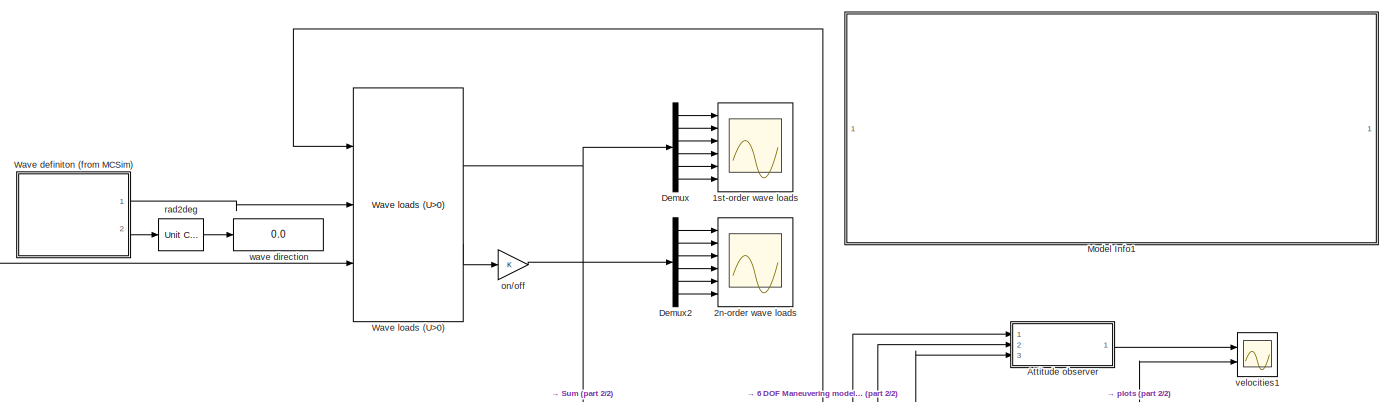
[diagram: root canvas - part 1/2, full width, top band]
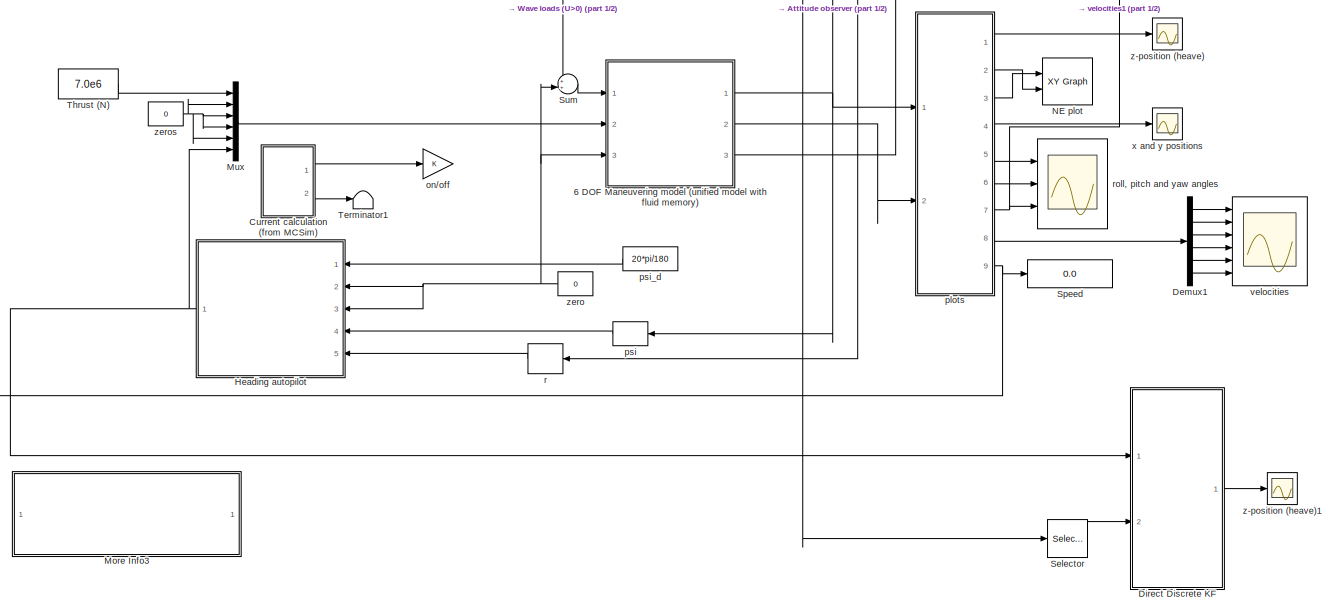
[diagram: root canvas - part 2/2, full width, bottom band]
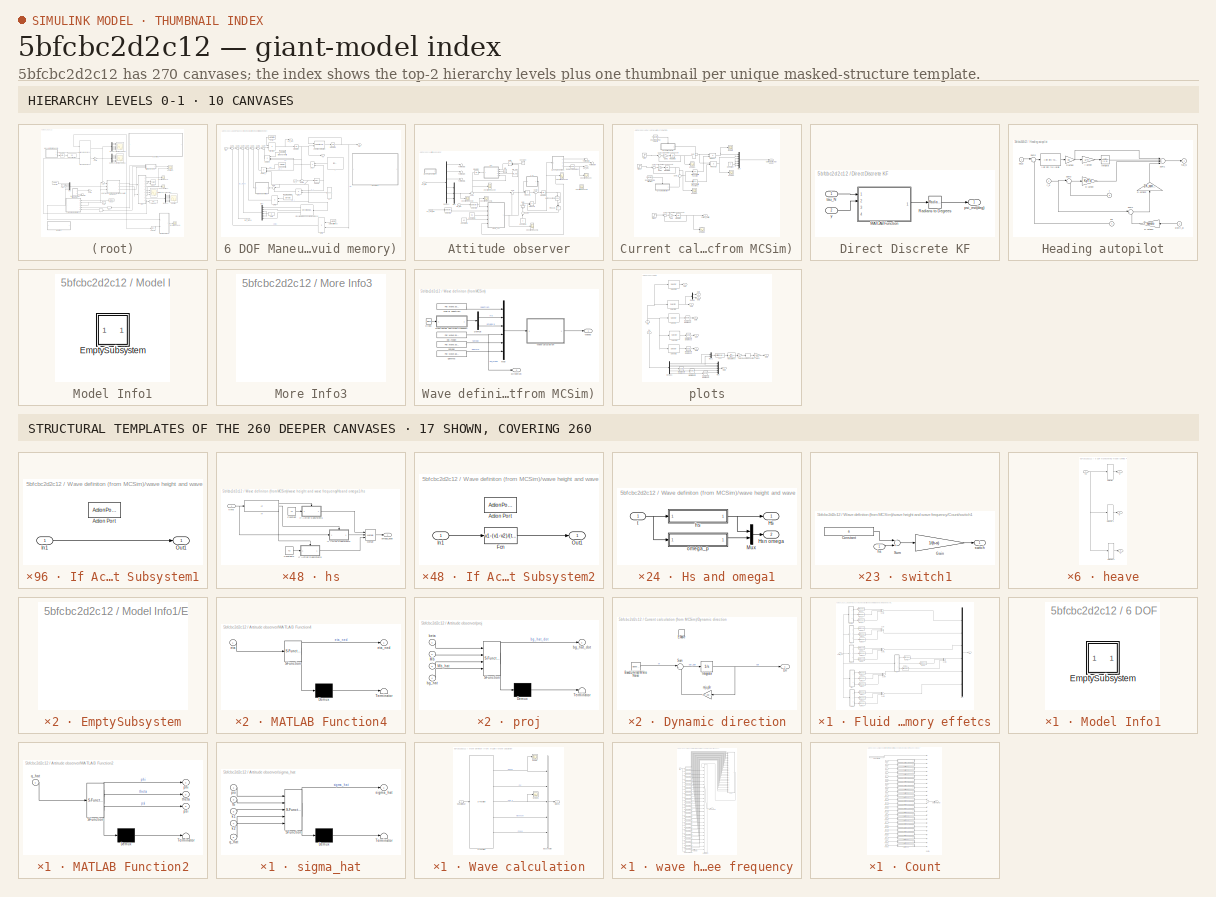
[diagram: thumbnail index - top-2 hierarchy levels (10 canvases) + 17 structural-template representatives of the remaining 260 canvases]
MODEL slx_5bfcbc2d2c12
KIND model
CONFIG AbsTol = auto
CONFIG FixedStep = Ts
CONFIG MaxStep = auto
CONFIG MinStep = auto
CONFIG RelTol = 1e-3
CONFIG SampleTimeConstraint = Unconstrained
CONFIG Solver = FixedStepAuto
CONFIG SolverMode = Auto
CONFIG SolverName = FixedStepAuto
CONFIG StartTime = 0.0
CONFIG StopTime = Tsim
BLOCK [Scope] 1st-order wave loads 
  Commented = on
  NumInputPorts = 6
  Ports = [6]
  ScopeSpecificationString = Simulink.scopes.TimeScopeBlockCfg('CurrentConfiguration', extmgr.ConfigurationSet(extmgr.Configuration('Core','General UI',true),extmgr.Configuration('Core','Source UI',true),extmgr.Configuration('Sources','WiredSimulink',true,'DataLoggingSaveFormat','StructureWithTime','DataLoggingLimitDataPoints',true,'DataLoggingDecimation','1','DataLoggingDecimateData',true),extmgr.Configuration('Visuals','Tim...<+5225ch>
BLOCK [Scope] 2n-order wave loads
  Commented = on
  NumInputPorts = 6
  Ports = [6]
  ScopeSpecificationString = C++SS(StrPVP('Location','[465, 86, 1209, 1087]'),StrPVP('Open','off'),MxPVP('AxesTitles',24,'struct(''axes1'',''%<SignalLabel>'',''axes2'',''%<SignalLabel>'',''axes3'',''%<SignalLabel>'',''axes4'',''%<SignalLabel>'',''axes5'',''%<SignalLabel>'',''axes6'',''%<SignalLabel>'')'),StrPVP('ShowLegends','off'),StrPVP('TimeRange','200'),StrPVP('YMin','67500~80000~-1~-1~-1~-1.4e+006'),StrPVP('YMax','92500~...<+225ch>
BLOCK [SubSystem] 6 DOF Maneuvering model (unified model with fluid memory)
  AncestorBlock = marine_hydro/Hydro Library/6 DOF Maneuvering model\n (unified model with fluid memory)
  Ports = [3, 3]
  RequestExecContextInheritance = off
  Variant = off
BLOCK [Reference] 6 DOF Maneuvering model (unified model with fluid memory)/6 DOF transformation  REF=marine_gnc/Models/ Kinematics/6 DOF transformation  (lib defined in mdl_10d96c221ba8, mdl_45f1105420c6)
  Ports = [2, 1]
  SourceBlock = marine_gnc/Models/ Kinematics/6 DOF transformation
  SourceType = SubSystem
BLOCK [Product] 6 DOF Maneuvering model (unified model with fluid memory)/CA*nu_r
  InputSameDT = off
  Inputs = 3
  Multiplication = Matrix(*)
  OutDataTypeStr = Inherit: Inherit via internal rule
  Ports = [3, 1]
  SaturateOnIntegerOverflow = off
BLOCK [Product] 6 DOF Maneuvering model (unified model with fluid memory)/CRB*nu
  InputSameDT = off
  Inputs = 3
  Multiplication = Matrix(*)
  OutDataTypeStr = Inherit: Inherit via internal rule
  Ports = [3, 1]
  SaturateOnIntegerOverflow = off
BLOCK [Reference] 6 DOF Maneuvering model (unified model with fluid memory)/Cross-flow drag and surge resistance  REF=marine_hydro/Hydro Library/Cross-flow drag and surge resistance
  Ports = [1, 3]
  SourceBlock = marine_hydro/Hydro Library/Cross-flow drag and surge resistance
  SourceType = Cross-flow drag and surge resistance
BLOCK [Product] 6 DOF Maneuvering model (unified model with fluid memory)/D*eta 
  InputSameDT = off
  Multiplication = Matrix(*)
  Ports = [2, 1]
  RndMeth = Floor
BLOCK [SubSystem] 6 DOF Maneuvering model (unified model with fluid memory)/Fluid memory effetcs
  Ports = [1, 1]
  RequestExecContextInheritance = off
  Variant = off
BLOCK [StateSpace] 6 DOF Maneuvering model (unified model with fluid memory)/Fluid memory effetcs/Dp(1,1)
  A = ABC.Ar{1,1}
  B = ABC.Br{1,1}
  C = ABC.Cr{1,1}
  D = ABC.Dr{1,1}
  Ports = [1, 1]
  X0 = 0
BLOCK [StateSpace] 6 DOF Maneuvering model (unified model with fluid memory)/Fluid memory effetcs/Dp(1,3)
  A = ABC.Ar{1,3}
  B = ABC.Br{1,3}
  C = ABC.Cr{1,3}
  D = ABC.Dr{1,3}
  Ports = [1, 1]
  X0 = 0
BLOCK [StateSpace] 6 DOF Maneuvering model (unified model with fluid memory)/Fluid memory effetcs/Dp(1,5)
  A = ABC.Ar{1,5}
  B = ABC.Br{1,5}
  C = ABC.Cr{1,5}
  D = ABC.Dr{1,5}
  Ports = [1, 1]
  X0 = 0
BLOCK [StateSpace] 6 DOF Maneuvering model (unified model with fluid memory)/Fluid memory effetcs/Dp(2,2)
  A = ABC.Ar{2,2}
  B = ABC.Br{2,2}
  C = ABC.Cr{2,2}
  D = ABC.Dr{2,2}
  Ports = [1, 1]
  X0 = 0
BLOCK [StateSpace] 6 DOF Maneuvering model (unified model with fluid memory)/Fluid memory effetcs/Dp(2,4)
  A = ABC.Ar{2,4}
  B = ABC.Br{2,4}
  C = ABC.Cr{2,4}
  D = ABC.Dr{2,4}
  Ports = [1, 1]
  X0 = 0
BLOCK [StateSpace] 6 DOF Maneuvering model (unified model with fluid memory)/Fluid memory effetcs/Dp(2,6)
  A = ABC.Ar{2,6}
  B = ABC.Br{2,6}
  C = ABC.Cr{2,6}
  D = ABC.Dr{2,6}
  Ports = [1, 1]
  X0 = 0
BLOCK [StateSpace] 6 DOF Maneuvering model (unified model with fluid memory)/Fluid memory effetcs/Dp(3,1)
  A = ABC.Ar{3,1}
  B = ABC.Br{3,1}
  C = ABC.Cr{3,1}
  D = ABC.Dr{3,1}
  Ports = [1, 1]
  X0 = 0
BLOCK [StateSpace] 6 DOF Maneuvering model (unified model with fluid memory)/Fluid memory effetcs/Dp(3,3)
  A = ABC.Ar{3,3}
  B = ABC.Br{3,3}
  C = ABC.Cr{3,3}
  D = ABC.Dr{3,3}
  Ports = [1, 1]
  X0 = 0
BLOCK [StateSpace] 6 DOF Maneuvering model (unified model with fluid memory)/Fluid memory effetcs/Dp(3,5)
  A = ABC.Ar{3,5}
  B = ABC.Br{3,5}
  C = ABC.Cr{3,5}
  D = ABC.Dr{3,5}
  Ports = [1, 1]
  X0 = 0
BLOCK [StateSpace] 6 DOF Maneuvering model (unified model with fluid memory)/Fluid memory effetcs/Dp(4,2)
  A = ABC.Ar{4,2}
  B = ABC.Br{4,2}
  C = ABC.Cr{4,2}
  D = ABC.Dr{4,2}
  Ports = [1, 1]
  X0 = 0
BLOCK [StateSpace] 6 DOF Maneuvering model (unified model with fluid memory)/Fluid memory effetcs/Dp(4,4)
  A = ABC.Ar{4,4}
  B = ABC.Br{4,4}
  C = ABC.Cr{4,4}
  D = ABC.Dr{4,4}
  Ports = [1, 1]
  X0 = 0
BLOCK [StateSpace] 6 DOF Maneuvering model (unified model with fluid memory)/Fluid memory effetcs/Dp(4,6)
  A = ABC.Ar{4,6}
  B = ABC.Br{4,6}
  C = ABC.Cr{4,6}
  D = ABC.Dr{4,6}
  Ports = [1, 1]
  X0 = 0
BLOCK [StateSpace] 6 DOF Maneuvering model (unified model with fluid memory)/Fluid memory effetcs/Dp(5,1)
  A = ABC.Ar{5,1}
  B = ABC.Br{5,1}
  C = ABC.Cr{5,1}
  D = ABC.Dr{5,1}
  Ports = [1, 1]
  X0 = 0
BLOCK [StateSpace] 6 DOF Maneuvering model (unified model with fluid memory)/Fluid memory effetcs/Dp(5,3)
  A = ABC.Ar{5,3}
  B = ABC.Br{5,3}
  C = ABC.Cr{5,3}
  D = ABC.Dr{5,3}
  Ports = [1, 1]
  X0 = 0
BLOCK [StateSpace] 6 DOF Maneuvering model (unified model with fluid memory)/Fluid memory effetcs/Dp(5,5)
  A = ABC.Ar{5,5}
  B = ABC.Br{5,5}
  C = ABC.Cr{5,5}
  D = ABC.Dr{5,5}
  Ports = [1, 1]
  X0 = 0
BLOCK [StateSpace] 6 DOF Maneuvering model (unified model with fluid memory)/Fluid memory effetcs/Dp(6,2)
  A = ABC.Ar{6,2}
  B = ABC.Br{6,2}
  C = ABC.Cr{6,2}
  D = ABC.Dr{6,2}
  Ports = [1, 1]
  X0 = 0
BLOCK [StateSpace] 6 DOF Maneuvering model (unified model with fluid memory)/Fluid memory effetcs/Dp(6,4)
  A = ABC.Ar{6,4}
  B = ABC.Br{6,4}
  C = ABC.Cr{6,4}
  D = ABC.Dr{6,4}
  Ports = [1, 1]
  X0 = 0
BLOCK [StateSpace] 6 DOF Maneuvering model (unified model with fluid memory)/Fluid memory effetcs/Dp(6,6)
  A = ABC.Ar{6,6}
  B = ABC.Br{6,6}
  C = ABC.Cr{6,6}
  D = ABC.Dr{6,6}
  Ports = [1, 1]
  X0 = 0
BLOCK [Mux] 6 DOF Maneuvering model (unified model with fluid memory)/Fluid memory effetcs/Mux
  DisplayOption = bar
  Inputs = 6
  Ports = [6, 1]
BLOCK [Sum] 6 DOF Maneuvering model (unified model with fluid memory)/Fluid memory effetcs/Sum
  InputSameDT = off
  Inputs = +++
  OutDataTypeStr = Inherit: Inherit via internal rule
  Ports = [3, 1]
BLOCK [Sum] 6 DOF Maneuvering model (unified model with fluid memory)/Fluid memory effetcs/Sum1
  InputSameDT = off
  Inputs = +++
  OutDataTypeStr = Inherit: Inherit via internal rule
  Ports = [3, 1]
BLOCK [Sum] 6 DOF Maneuvering model (unified model with fluid memory)/Fluid memory effetcs/Sum2
  InputSameDT = off
  Inputs = +++
  OutDataTypeStr = Inherit: Inherit via internal rule
  Ports = [3, 1]
BLOCK [Sum] 6 DOF Maneuvering model (unified model with fluid memory)/Fluid memory effetcs/Sum3
  InputSameDT = off
  Inputs = +++
  OutDataTypeStr = Inherit: Inherit via internal rule
  Ports = [3, 1]
BLOCK [Sum] 6 DOF Maneuvering model (unified model with fluid memory)/Fluid memory effetcs/Sum4
  InputSameDT = off
  Inputs = +++
  OutDataTypeStr = Inherit: Inherit via internal rule
  Ports = [3, 1]
BLOCK [Sum] 6 DOF Maneuvering model (unified model with fluid memory)/Fluid memory effetcs/Sum5
  InputSameDT = off
  Inputs = +++
  OutDataTypeStr = Inherit: Inherit via internal rule
  Ports = [3, 1]
BLOCK [Inport] 6 DOF Maneuvering model (unified model with fluid memory)/Fluid memory effetcs/delta_nu
  IconDisplay = Port number
BLOCK [SubSystem] 6 DOF Maneuvering model (unified model with fluid memory)/Fluid memory effetcs/heave
  Ports = [1, 3]
  RequestExecContextInheritance = off
  Variant = off
BLOCK [Selector] 6 DOF Maneuvering model (unified model with fluid memory)/Fluid memory effetcs/heave/Selector
  IndexOptions = Index vector (dialog)
  Indices = [1]
  InputPortWidth = 6
  OutputSizes = 1
  Ports = [1, 1]
BLOCK [Selector] 6 DOF Maneuvering model (unified model with fluid memory)/Fluid memory effetcs/heave/Selector1
  IndexOptions = Index vector (dialog)
  Indices = [3]
  InputPortWidth = 6
  OutputSizes = 1
  Ports = [1, 1]
BLOCK [Selector] 6 DOF Maneuvering model (unified model with fluid memory)/Fluid memory effetcs/heave/Selector2
  IndexOptions = Index vector (dialog)
  Indices = [5]
  InputPortWidth = 6
  OutputSizes = 1
  Ports = [1, 1]
BLOCK [Inport] 6 DOF Maneuvering model (unified model with fluid memory)/Fluid memory effetcs/heave/nu
  IconDisplay = Port number
BLOCK [Outport] 6 DOF Maneuvering model (unified model with fluid memory)/Fluid memory effetcs/heave/q
  IconDisplay = Port number
  Port = 3
BLOCK [Outport] 6 DOF Maneuvering model (unified model with fluid memory)/Fluid memory effetcs/heave/u
  IconDisplay = Port number
BLOCK [Outport] 6 DOF Maneuvering model (unified model with fluid memory)/Fluid memory effetcs/heave/w
  IconDisplay = Port number
  Port = 2
BLOCK [Outport] 6 DOF Maneuvering model (unified model with fluid memory)/Fluid memory effetcs/mu
  IconDisplay = Port number
BLOCK [SubSystem] 6 DOF Maneuvering model (unified model with fluid memory)/Fluid memory effetcs/pitch
  Ports = [1, 3]
  RequestExecContextInheritance = off
  Variant = off
BLOCK [Selector] 6 DOF Maneuvering model (unified model with fluid memory)/Fluid memory effetcs/pitch/Selector
  IndexOptions = Index vector (dialog)
  Indices = [1]
  InputPortWidth = 6
  OutputSizes = 1
  Ports = [1, 1]
BLOCK [Selector] 6 DOF Maneuvering model (unified model with fluid memory)/Fluid memory effetcs/pitch/Selector1
  IndexOptions = Index vector (dialog)
  Indices = [3]
  InputPortWidth = 6
  OutputSizes = 1
  Ports = [1, 1]
BLOCK [Selector] 6 DOF Maneuvering model (unified model with fluid memory)/Fluid memory effetcs/pitch/Selector2
  IndexOptions = Index vector (dialog)
  Indices = [5]
  InputPortWidth = 6
  OutputSizes = 1
  Ports = [1, 1]
BLOCK [Inport] 6 DOF Maneuvering model (unified model with fluid memory)/Fluid memory effetcs/pitch/nu
  IconDisplay = Port number
BLOCK [Outport] 6 DOF Maneuvering model (unified model with fluid memory)/Fluid memory effetcs/pitch/q
  IconDisplay = Port number
  Port = 3
BLOCK [Outport] 6 DOF Maneuvering model (unified model with fluid memory)/Fluid memory effetcs/pitch/u
  IconDisplay = Port number
BLOCK [Outport] 6 DOF Maneuvering model (unified model with fluid memory)/Fluid memory effetcs/pitch/w
  IconDisplay = Port number
  Port = 2
BLOCK [SubSystem] 6 DOF Maneuvering model (unified model with fluid memory)/Fluid memory effetcs/roll
  Ports = [1, 3]
  RequestExecContextInheritance = off
  Variant = off
BLOCK [Selector] 6 DOF Maneuvering model (unified model with fluid memory)/Fluid memory effetcs/roll/Selector
  IndexOptions = Index vector (dialog)
  Indices = [2]
  InputPortWidth = 6
  OutputSizes = 1
  Ports = [1, 1]
BLOCK [Selector] 6 DOF Maneuvering model (unified model with fluid memory)/Fluid memory effetcs/roll/Selector1
  IndexOptions = Index vector (dialog)
  Indices = [4]
  InputPortWidth = 6
  OutputSizes = 1
  Ports = [1, 1]
BLOCK [Selector] 6 DOF Maneuvering model (unified model with fluid memory)/Fluid memory effetcs/roll/Selector2
  IndexOptions = Index vector (dialog)
  Indices = [6]
  InputPortWidth = 6
  OutputSizes = 1
  Ports = [1, 1]
BLOCK [Inport] 6 DOF Maneuvering model (unified model with fluid memory)/Fluid memory effetcs/roll/nu
  IconDisplay = Port number
BLOCK [Outport] 6 DOF Maneuvering model (unified model with fluid memory)/Fluid memory effetcs/roll/p
  IconDisplay = Port number
  Port = 2
BLOCK [Outport] 6 DOF Maneuvering model (unified model with fluid memory)/Fluid memory effetcs/roll/r
  IconDisplay = Port number
  Port = 3
BLOCK [Outport] 6 DOF Maneuvering model (unified model with fluid memory)/Fluid memory effetcs/roll/v
  IconDisplay = Port number
BLOCK [SubSystem] 6 DOF Maneuvering model (unified model with fluid memory)/Fluid memory effetcs/surge
  Ports = [1, 3]
  RequestExecContextInheritance = off
  Variant = off
BLOCK [Selector] 6 DOF Maneuvering model (unified model with fluid memory)/Fluid memory effetcs/surge/Selector
  IndexOptions = Index vector (dialog)
  Indices = [1]
  InputPortWidth = 6
  OutputSizes = 1
  Ports = [1, 1]
BLOCK [Selector] 6 DOF Maneuvering model (unified model with fluid memory)/Fluid memory effetcs/surge/Selector1
  IndexOptions = Index vector (dialog)
  Indices = [3]
  InputPortWidth = 6
  OutputSizes = 1
  Ports = [1, 1]
BLOCK [Selector] 6 DOF Maneuvering model (unified model with fluid memory)/Fluid memory effetcs/surge/Selector2
  IndexOptions = Index vector (dialog)
  Indices = [5]
  InputPortWidth = 6
  OutputSizes = 1
  Ports = [1, 1]
BLOCK [Inport] 6 DOF Maneuvering model (unified model with fluid memory)/Fluid memory effetcs/surge/nu
  IconDisplay = Port number
BLOCK [Outport] 6 DOF Maneuvering model (unified model with fluid memory)/Fluid memory effetcs/surge/q
  IconDisplay = Port number
  Port = 3
BLOCK [Outport] 6 DOF Maneuvering model (unified model with fluid memory)/Fluid memory effetcs/surge/u
  IconDisplay = Port number
BLOCK [Outport] 6 DOF Maneuvering model (unified model with fluid memory)/Fluid memory effetcs/surge/w
  IconDisplay = Port number
  Port = 2
BLOCK [SubSystem] 6 DOF Maneuvering model (unified model with fluid memory)/Fluid memory effetcs/sway
  Ports = [1, 3]
  RequestExecContextInheritance = off
  Variant = off
BLOCK [Selector] 6 DOF Maneuvering model (unified model with fluid memory)/Fluid memory effetcs/sway/Selector
  IndexOptions = Index vector (dialog)
  Indices = [2]
  InputPortWidth = 6
  OutputSizes = 1
  Ports = [1, 1]
BLOCK [Selector] 6 DOF Maneuvering model (unified model with fluid memory)/Fluid memory effetcs/sway/Selector1
  IndexOptions = Index vector (dialog)
  Indices = [4]
  InputPortWidth = 6
  OutputSizes = 1
  Ports = [1, 1]
BLOCK [Selector] 6 DOF Maneuvering model (unified model with fluid memory)/Fluid memory effetcs/sway/Selector2
  IndexOptions = Index vector (dialog)
  Indices = [6]
  InputPortWidth = 6
  OutputSizes = 1
  Ports = [1, 1]
BLOCK [Inport] 6 DOF Maneuvering model (unified model with fluid memory)/Fluid memory effetcs/sway/nu
  IconDisplay = Port number
BLOCK [Outport] 6 DOF Maneuvering model (unified model with fluid memory)/Fluid memory effetcs/sway/p
  IconDisplay = Port number
  Port = 2
BLOCK [Outport] 6 DOF Maneuvering model (unified model with fluid memory)/Fluid memory effetcs/sway/r
  IconDisplay = Port number
  Port = 3
BLOCK [Outport] 6 DOF Maneuvering model (unified model with fluid memory)/Fluid memory effetcs/sway/v
  IconDisplay = Port number
BLOCK [SubSystem] 6 DOF Maneuvering model (unified model with fluid memory)/Fluid memory effetcs/yaw
  Ports = [1, 3]
  RequestExecContextInheritance = off
  Variant = off
BLOCK [Selector] 6 DOF Maneuvering model (unified model with fluid memory)/Fluid memory effetcs/yaw/Selector
  IndexOptions = Index vector (dialog)
  Indices = [2]
  InputPortWidth = 6
  OutputSizes = 1
  Ports = [1, 1]
BLOCK [Selector] 6 DOF Maneuvering model (unified model with fluid memory)/Fluid memory effetcs/yaw/Selector1
  IndexOptions = Index vector (dialog)
  Indices = [4]
  InputPortWidth = 6
  OutputSizes = 1
  Ports = [1, 1]
BLOCK [Selector] 6 DOF Maneuvering model (unified model with fluid memory)/Fluid memory effetcs/yaw/Selector2
  IndexOptions = Index vector (dialog)
  Indices = [6]
  InputPortWidth = 6
  OutputSizes = 1
  Ports = [1, 1]
BLOCK [Inport] 6 DOF Maneuvering model (unified model with fluid memory)/Fluid memory effetcs/yaw/nu
  IconDisplay = Port number
BLOCK [Outport] 6 DOF Maneuvering model (unified model with fluid memory)/Fluid memory effetcs/yaw/p
  IconDisplay = Port number
  Port = 2
BLOCK [Outport] 6 DOF Maneuvering model (unified model with fluid memory)/Fluid memory effetcs/yaw/r
  IconDisplay = Port number
  Port = 3
BLOCK [Outport] 6 DOF Maneuvering model (unified model with fluid memory)/Fluid memory effetcs/yaw/v
  IconDisplay = Port number
BLOCK [Product] 6 DOF Maneuvering model (unified model with fluid memory)/G*eta
  InputSameDT = off
  Multiplication = Matrix(*)
  Ports = [2, 1]
  RndMeth = Floor
BLOCK [Integrator] 6 DOF Maneuvering model (unified model with fluid memory)/Integrator
  Ports = [1, 1]
BLOCK [Integrator] 6 DOF Maneuvering model (unified model with fluid memory)/Integrator1
  Ports = [1, 1]
BLOCK [Constant] 6 DOF Maneuvering model (unified model with fluid memory)/L
  Value = [ 0     0     0     0     0     0;   0     0     0     0     0     1;\n     0     0     0     0    -1     0;	\n     0     0     0     0     0     0	;\n     0     0     0     0     0     0	\n;     0     0     0     0     0     0]
BLOCK [Product] 6 DOF Maneuvering model (unified model with fluid memory)/L*U_r
  InputSameDT = off
  OutDataTypeStr = Inherit: Inherit via internal rule
  Ports = [2, 1]
  SaturateOnIntegerOverflow = off
BLOCK [Product] 6 DOF Maneuvering model (unified model with fluid memory)/Minv*tau
  InputSameDT = off
  Inputs = **
  Multiplication = Matrix(*)
  Ports = [2, 1]
  RndMeth = Floor
BLOCK [SubSystem] 6 DOF Maneuvering model (unified model with fluid memory)/Model Info1
  CopyFcn = slcm CopyBlock;
  DeleteFcn = slcm Cancel;
  InitFcn = slcm('UpdateAllCMBlocksInThisModelInit')
  LoadFcn = slcm LoadBlock;
  NameChangeFcn = slcm Rename;
  OpenFcn = slcm
  Ports = []
  PostSaveFcn = slcm('UpdateAllCMBlocksInThisModel')
  RequestExecContextInheritance = off
  Variant = off
BLOCK [SubSystem] 6 DOF Maneuvering model (unified model with fluid memory)/Model Info1/EmptySubsystem
  Ports = []
  RequestExecContextInheritance = off
  Variant = off
BLOCK [Mux] 6 DOF Maneuvering model (unified model with fluid memory)/Mux
  DisplayOption = bar
  Inputs = 6
  Ports = [6, 1]
BLOCK [Constant] 6 DOF Maneuvering model (unified model with fluid memory)/Spring stiffness
  Value = ABC.G
BLOCK [Sum] 6 DOF Maneuvering model (unified model with fluid memory)/Sum
  IconShape = round
  InputSameDT = off
  Inputs = |+-
  OutDataTypeStr = Inherit: Inherit via internal rule
  Ports = [2, 1]
  SaturateOnIntegerOverflow = off
BLOCK [Sum] 6 DOF Maneuvering model (unified model with fluid memory)/Sum1
  IconShape = round
  InputSameDT = off
  Inputs = |+-
  OutDataTypeStr = Inherit: Inherit via internal rule
  Ports = [2, 1]
BLOCK [Sum] 6 DOF Maneuvering model (unified model with fluid memory)/Sum3
  IconShape = round
  InputSameDT = off
  Inputs = |++
  OutDataTypeStr = Inherit: Inherit via internal rule
  Ports = [2, 1]
BLOCK [Sum] 6 DOF Maneuvering model (unified model with fluid memory)/Sum4
  IconShape = round
  InputSameDT = off
  Inputs = |+-
  OutDataTypeStr = Inherit: Inherit via internal rule
  Ports = [2, 1]
BLOCK [Sum] 6 DOF Maneuvering model (unified model with fluid memory)/Sum5
  IconShape = round
  InputSameDT = off
  Inputs = +-|
  OutDataTypeStr = Inherit: Inherit via internal rule
  Ports = [2, 1]
BLOCK [Sum] 6 DOF Maneuvering model (unified model with fluid memory)/Sum6
  IconShape = round
  InputSameDT = off
  Inputs = |+-
  OutDataTypeStr = Inherit: Inherit via internal rule
  Ports = [2, 1]
BLOCK [Sum] 6 DOF Maneuvering model (unified model with fluid memory)/Sum7
  IconShape = round
  InputSameDT = off
  Inputs = |+-
  OutDataTypeStr = Inherit: Inherit via internal rule
  Ports = [2, 1]
BLOCK [Sum] 6 DOF Maneuvering model (unified model with fluid memory)/Sum8
  IconShape = round
  InputSameDT = off
  Inputs = |+-
  OutDataTypeStr = Inherit: Inherit via internal rule
  Ports = [2, 1]
BLOCK [Sum] 6 DOF Maneuvering model (unified model with fluid memory)/Sum9
  IconShape = round
  InputSameDT = off
  Inputs = |++
  OutDataTypeStr = Inherit: Inherit via internal rule
  Ports = [2, 1]
BLOCK [Product] 6 DOF Maneuvering model (unified model with fluid memory)/U*e1
  InputSameDT = off
  OutDataTypeStr = Inherit: Inherit via internal rule
  Ports = [2, 1]
  SaturateOnIntegerOverflow = off
BLOCK [Constant] 6 DOF Maneuvering model (unified model with fluid memory)/added inertia
  Value = ABC.MA
BLOCK [Constant] 6 DOF Maneuvering model (unified model with fluid memory)/e1
  Value = [1 0 0 0 0 0]'
  VectorParams1D = off
BLOCK [Outport] 6 DOF Maneuvering model (unified model with fluid memory)/eta
  IconDisplay = Port number
BLOCK [Constant] 6 DOF Maneuvering model (unified model with fluid memory)/inv(M)
  Value = ABC.Minv
BLOCK [Constant] 6 DOF Maneuvering model (unified model with fluid memory)/linear damping
  Value = Bv+ Dp
BLOCK [Outport] 6 DOF Maneuvering model (unified model with fluid memory)/nu
  IconDisplay = Port number
  Port = 2
BLOCK [Inport] 6 DOF Maneuvering model (unified model with fluid memory)/nu_c
  IconDisplay = Port number
  Port = 3
BLOCK [Outport] 6 DOF Maneuvering model (unified model with fluid memory)/nu_dot
  IconDisplay = Port number
  Port = 3
BLOCK [Constant] 6 DOF Maneuvering model (unified model with fluid memory)/rigid body inertia
  Value = ABC.MRB
BLOCK [Selector] 6 DOF Maneuvering model (unified model with fluid memory)/speed
  IndexOptions = Index vector (dialog)
  Indices = [1]
  InputPortWidth = 6
  OutputSizes = 1
  Ports = [1, 1]
BLOCK [Inport] 6 DOF Maneuvering model (unified model with fluid memory)/tau
  IconDisplay = Port number
  Port = 2
BLOCK [Inport] 6 DOF Maneuvering model (unified model with fluid memory)/tau_wave
  IconDisplay = Port number
BLOCK [Constant] 6 DOF Maneuvering model (unified model with fluid memory)/zero
  Value = 0
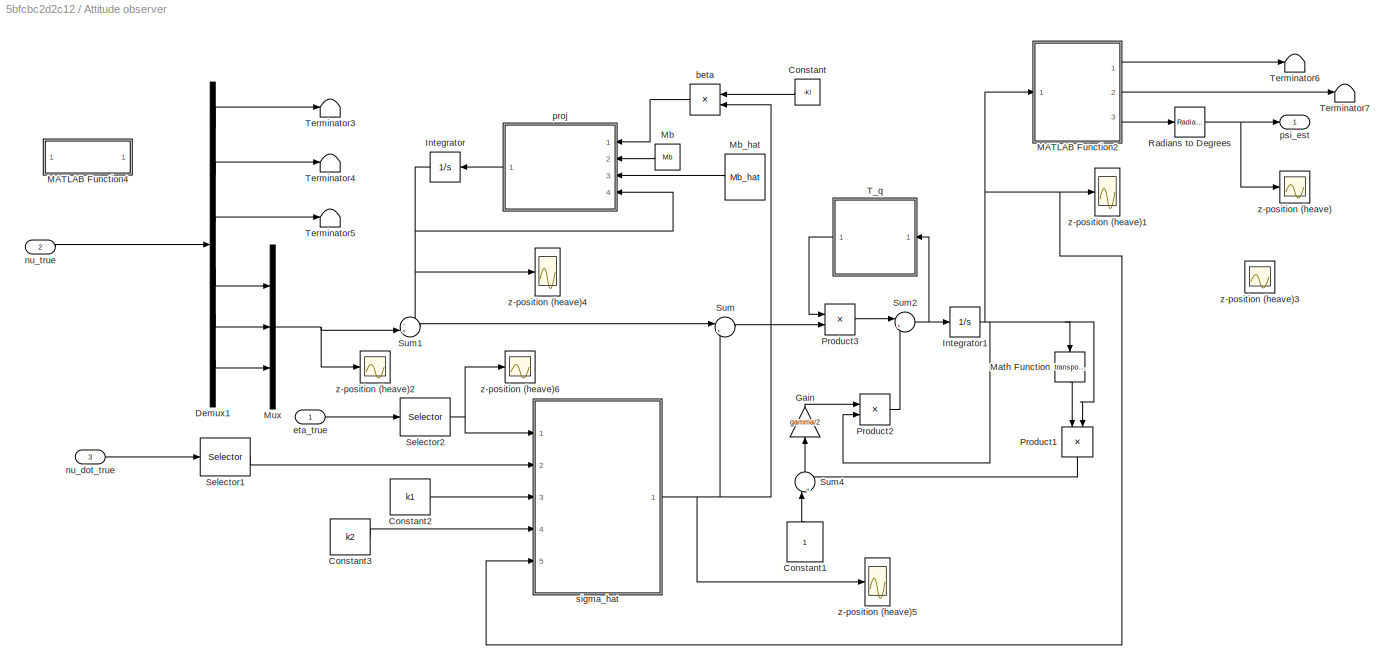
BLOCK [SubSystem] Attitude observer
  Ports = [3, 1]
  RequestExecContextInheritance = off
  Variant = off
BLOCK [Constant] Attitude observer/Constant
  Value = -ki
BLOCK [Constant] Attitude observer/Constant1
BLOCK [Constant] Attitude observer/Constant2
  Value = k1
BLOCK [Constant] Attitude observer/Constant3
  Value = k2
BLOCK [Demux] Attitude observer/Demux1
  DisplayOption = bar
  Outputs = 6
  Ports = [1, 6]
BLOCK [Gain] Attitude observer/Gain
  Gain = gamma/2
  OutDataTypeStr = Inherit: Inherit via internal rule
  ParamDataTypeStr = Inherit: Inherit via internal rule
  SaturateOnIntegerOverflow = off
BLOCK [Integrator] Attitude observer/Integrator
  InitialCondition = [0 0 0]'
  Ports = [1, 1]
BLOCK [Integrator] Attitude observer/Integrator1
  Ports = [1, 1]
BLOCK [SubSystem] Attitude observer/MATLAB Function2
  ErrorFcn = Stateflow.Translate.translate
  PermitHierarchicalResolution = ExplicitOnly
  Ports = [1, 3]
  RequestExecContextInheritance = off
  SFBlockType = MATLAB Function
  TreatAsAtomicUnit = on
  Variant = off
BLOCK [Demux] Attitude observer/MATLAB Function2/ Demux 
  Outputs = 1
  Ports = [1, 1]
BLOCK [S-Function] Attitude observer/MATLAB Function2/ SFunction 
  EnableBusSupport = on
  FunctionName = sf_sfun
  PortCounts = [1 4]
  Ports = [1, 4]
  SFunctionDeploymentMode = off
  Tag = Stateflow S-Function GunnerusMAN_ForceRAO 2
BLOCK [Terminator] Attitude observer/MATLAB Function2/ Terminator 
BLOCK [Outport] Attitude observer/MATLAB Function2/phi
  IconDisplay = Port number
BLOCK [Outport] Attitude observer/MATLAB Function2/psi
  IconDisplay = Port number
  Port = 3
BLOCK [Inport] Attitude observer/MATLAB Function2/q_hat
  IconDisplay = Port number
BLOCK [Outport] Attitude observer/MATLAB Function2/theta
  IconDisplay = Port number
  Port = 2
BLOCK [SubSystem] Attitude observer/MATLAB Function4
  Commented = on
  ErrorFcn = Stateflow.Translate.translate
  PermitHierarchicalResolution = ExplicitOnly
  Ports = [1, 1]
  RequestExecContextInheritance = off
  SFBlockType = MATLAB Function
  TreatAsAtomicUnit = on
  Variant = off
BLOCK [Demux] Attitude observer/MATLAB Function4/ Demux 
  Outputs = 1
  Ports = [1, 1]
BLOCK [S-Function] Attitude observer/MATLAB Function4/ SFunction 
  EnableBusSupport = on
  FunctionName = sf_sfun
  PortCounts = [1 2]
  Ports = [1, 2]
  SFunctionDeploymentMode = off
  Tag = Stateflow S-Function GunnerusMAN_ForceRAO 5
BLOCK [Terminator] Attitude observer/MATLAB Function4/ Terminator 
BLOCK [Inport] Attitude observer/MATLAB Function4/eta
  IconDisplay = Port number
BLOCK [Outport] Attitude observer/MATLAB Function4/eta_ned
  IconDisplay = Port number
BLOCK [Math] Attitude observer/Math Function
  Operator = transpose
  Ports = [1, 1]
BLOCK [Constant] Attitude observer/Mb
  Value = Mb
BLOCK [Constant] Attitude observer/Mb_hat
  Value = Mb_hat
BLOCK [Mux] Attitude observer/Mux
  DisplayOption = bar
  Inputs = 3
  Ports = [3, 1]
BLOCK [Product] Attitude observer/Product1
  InputSameDT = off
  Multiplication = Matrix(*)
  OutDataTypeStr = Inherit: Inherit via internal rule
  Ports = [2, 1]
  RndMeth = Floor
  SaturateOnIntegerOverflow = off
BLOCK [Product] Attitude observer/Product2
  InputSameDT = off
  OutDataTypeStr = Inherit: Inherit via internal rule
  Ports = [2, 1]
  RndMeth = Floor
  SaturateOnIntegerOverflow = off
BLOCK [Product] Attitude observer/Product3
  InputSameDT = off
  Multiplication = Matrix(*)
  OutDataTypeStr = Inherit: Inherit via internal rule
  Ports = [2, 1]
  RndMeth = Floor
  SaturateOnIntegerOverflow = off
BLOCK [Reference] Attitude observer/Radians to Degrees  REF=simulink_extras/Transformations/Radians
to Degrees
  Ports = [1, 1]
  SourceBlock = simulink_extras/Transformations/Radians\nto Degrees
  SourceType = RadiansToDegrees
BLOCK [Selector] Attitude observer/Selector1
  IndexOptions = Index vector (dialog)
  Indices = [1 2 3]
  InputPortWidth = 6
  OutputSizes = 1
  Ports = [1, 1]
BLOCK [Selector] Attitude observer/Selector2
  IndexOptions = Index vector (dialog)
  Indices = [6]
  InputPortWidth = 6
  OutputSizes = 1
  Ports = [1, 1]
BLOCK [Sum] Attitude observer/Sum
  IconShape = round
  InputSameDT = off
  Inputs = |++
  OutDataTypeStr = Inherit: Inherit via internal rule
  Ports = [2, 1]
  SaturateOnIntegerOverflow = off
BLOCK [Sum] Attitude observer/Sum1
  IconShape = round
  InputSameDT = off
  Inputs = -+|
  OutDataTypeStr = Inherit: Inherit via internal rule
  Ports = [2, 1]
  SaturateOnIntegerOverflow = off
BLOCK [Sum] Attitude observer/Sum2
  IconShape = round
  InputSameDT = off
  Inputs = |++
  OutDataTypeStr = Inherit: Inherit via internal rule
  Ports = [2, 1]
  SaturateOnIntegerOverflow = off
BLOCK [Sum] Attitude observer/Sum4
  IconShape = round
  InputSameDT = off
  Inputs = |+-
  OutDataTypeStr = Inherit: Inherit via internal rule
  Ports = [2, 1]
  SaturateOnIntegerOverflow = off
BLOCK [SubSystem] Attitude observer/T_q
  ErrorFcn = Stateflow.Translate.translate
  PermitHierarchicalResolution = ExplicitOnly
  Ports = [1, 1]
  RequestExecContextInheritance = off
  SFBlockType = MATLAB Function
  TreatAsAtomicUnit = on
  Variant = off
BLOCK [Demux] Attitude observer/T_q/ Demux 
  Outputs = 1
  Ports = [1, 1]
BLOCK [S-Function] Attitude observer/T_q/ SFunction 
  EnableBusSupport = on
  FunctionName = sf_sfun
  PortCounts = [1 2]
  Ports = [1, 2]
  SFunctionDeploymentMode = off
  Tag = Stateflow S-Function GunnerusMAN_ForceRAO 4
BLOCK [Terminator] Attitude observer/T_q/ Terminator 
BLOCK [Outport] Attitude observer/T_q/Tq_hat
  IconDisplay = Port number
BLOCK [Inport] Attitude observer/T_q/q_hat
  IconDisplay = Port number
BLOCK [Terminator] Attitude observer/Terminator3
BLOCK [Terminator] Attitude observer/Terminator4
BLOCK [Terminator] Attitude observer/Terminator5
BLOCK [Terminator] Attitude observer/Terminator6
BLOCK [Terminator] Attitude observer/Terminator7
BLOCK [Product] Attitude observer/beta
  InputSameDT = off
  OutDataTypeStr = Inherit: Inherit via internal rule
  Ports = [2, 1]
  RndMeth = Floor
  SaturateOnIntegerOverflow = off
BLOCK [Inport] Attitude observer/eta_true
  IconDisplay = Port number
BLOCK [Inport] Attitude observer/nu_dot_true
  IconDisplay = Port number
  Port = 3
BLOCK [Inport] Attitude observer/nu_true
  IconDisplay = Port number
  Port = 2
BLOCK [SubSystem] Attitude observer/proj
  ErrorFcn = Stateflow.Translate.translate
  PermitHierarchicalResolution = ExplicitOnly
  Ports = [4, 1]
  RequestExecContextInheritance = off
  SFBlockType = MATLAB Function
  TreatAsAtomicUnit = on
  Variant = off
BLOCK [Demux] Attitude observer/proj/ Demux 
  Outputs = 1
  Ports = [1, 1]
BLOCK [S-Function] Attitude observer/proj/ SFunction 
  EnableBusSupport = on
  FunctionName = sf_sfun
  PortCounts = [4 2]
  Ports = [4, 2]
  SFunctionDeploymentMode = off
  Tag = Stateflow S-Function GunnerusMAN_ForceRAO 8
BLOCK [Terminator] Attitude observer/proj/ Terminator 
BLOCK [Inport] Attitude observer/proj/Mb
  IconDisplay = Port number
  Port = 2
BLOCK [Inport] Attitude observer/proj/Mb_hat
  IconDisplay = Port number
  Port = 3
BLOCK [Inport] Attitude observer/proj/beta
  IconDisplay = Port number
BLOCK [Inport] Attitude observer/proj/bg_hat
  IconDisplay = Port number
  Port = 4
BLOCK [Outport] Attitude observer/proj/bg_hat_dot
  IconDisplay = Port number
BLOCK [Outport] Attitude observer/psi_est
  IconDisplay = Port number
BLOCK [SubSystem] Attitude observer/sigma_hat
  ErrorFcn = Stateflow.Translate.translate
  PermitHierarchicalResolution = ExplicitOnly
  Ports = [5, 1]
  RequestExecContextInheritance = off
  SFBlockType = MATLAB Function
  TreatAsAtomicUnit = on
  Variant = off
BLOCK [Demux] Attitude observer/sigma_hat/ Demux 
  Outputs = 1
  Ports = [1, 1]
BLOCK [S-Function] Attitude observer/sigma_hat/ SFunction 
  EnableBusSupport = on
  FunctionName = sf_sfun
  PortCounts = [5 2]
  Ports = [5, 2]
  SFunctionDeploymentMode = off
  Tag = Stateflow S-Function GunnerusMAN_ForceRAO 7
BLOCK [Terminator] Attitude observer/sigma_hat/ Terminator 
BLOCK [Inport] Attitude observer/sigma_hat/fb
  IconDisplay = Port number
  Port = 2
BLOCK [Inport] Attitude observer/sigma_hat/k1
  IconDisplay = Port number
  Port = 3
BLOCK [Inport] Attitude observer/sigma_hat/k2
  IconDisplay = Port number
  Port = 4
BLOCK [Inport] Attitude observer/sigma_hat/psi
  IconDisplay = Port number
BLOCK [Inport] Attitude observer/sigma_hat/q_hat
  IconDisplay = Port number
  Port = 5
BLOCK [Outport] Attitude observer/sigma_hat/sigma_hat
  IconDisplay = Port number
BLOCK [Scope] Attitude observer/z-position (heave)
  Ports = [1]
  ScopeSpecificationString = Simulink.scopes.TimeScopeBlockCfg('CurrentConfiguration', extmgr.ConfigurationSet(extmgr.Configuration('Core','General UI',true),extmgr.Configuration('Core','Source UI',true),extmgr.Configuration('Sources','WiredSimulink',true,'DataLoggingVariableName','ScopeData1'),extmgr.Configuration('Visuals','Time Domain',true,'SerializedDisplays',{struct('MinYLimReal','-1.00000','MaxYLimReal','1.00000','YLab...<+1405ch>
BLOCK [Scope] Attitude observer/z-position (heave)1
  Ports = [1]
  ScopeSpecificationString = Simulink.scopes.TimeScopeBlockCfg('CurrentConfiguration', extmgr.ConfigurationSet(extmgr.Configuration('Core','General UI',true),extmgr.Configuration('Core','Source UI',true),extmgr.Configuration('Sources','WiredSimulink',true,'DataLoggingVariableName','ScopeData2'),extmgr.Configuration('Visuals','Time Domain',true,'SerializedDisplays',{struct('MinYLimReal','-0.125','MaxYLimReal','1.125','YLabelRe...<+1435ch>
BLOCK [Scope] Attitude observer/z-position (heave)2
  Ports = [1]
  ScopeSpecificationString = Simulink.scopes.TimeScopeBlockCfg('CurrentConfiguration', extmgr.ConfigurationSet(extmgr.Configuration('Core','General UI',true),extmgr.Configuration('Core','Source UI',true),extmgr.Configuration('Sources','WiredSimulink',true,'DataLoggingVariableName','ScopeData1'),extmgr.Configuration('Visuals','Time Domain',true,'SerializedDisplays',{struct('MinYLimReal','-0.00874','MaxYLimReal','0.03555','YLab...<+1417ch>
BLOCK [Scope] Attitude observer/z-position (heave)3
  Ports = [1]
  ScopeSpecificationString = Simulink.scopes.TimeScopeBlockCfg('CurrentConfiguration', extmgr.ConfigurationSet(extmgr.Configuration('Core','General UI',true),extmgr.Configuration('Core','Source UI',true),extmgr.Configuration('Sources','WiredSimulink',true,'DataLoggingVariableName','ScopeData2'),extmgr.Configuration('Visuals','Time Domain',true,'SerializedDisplays',{struct('MinYLimReal','-1.00000','MaxYLimReal','1.00000','YLab...<+1396ch>
BLOCK [Scope] Attitude observer/z-position (heave)4
  Ports = [1]
  ScopeSpecificationString = Simulink.scopes.TimeScopeBlockCfg('CurrentConfiguration', extmgr.ConfigurationSet(extmgr.Configuration('Core','General UI',true),extmgr.Configuration('Core','Source UI',true),extmgr.Configuration('Sources','WiredSimulink',true,'DataLoggingVariableName','ScopeData3'),extmgr.Configuration('Visuals','Time Domain',true,'SerializedDisplays',{struct('MinYLimReal','-1.00000','MaxYLimReal','1.00000','YLab...<+1401ch>
BLOCK [Scope] Attitude observer/z-position (heave)5
  Ports = [1]
  ScopeSpecificationString = Simulink.scopes.TimeScopeBlockCfg('CurrentConfiguration', extmgr.ConfigurationSet(extmgr.Configuration('Core','General UI',true),extmgr.Configuration('Core','Source UI',true),extmgr.Configuration('Sources','WiredSimulink',true,'DataLoggingVariableName','ScopeData4'),extmgr.Configuration('Visuals','Time Domain',true,'SerializedDisplays',{struct('MinYLimReal','-1.00000','MaxYLimReal','1.00000','YLab...<+1398ch>
BLOCK [Scope] Attitude observer/z-position (heave)6
  Ports = [1]
  ScopeSpecificationString = Simulink.scopes.TimeScopeBlockCfg('CurrentConfiguration', extmgr.ConfigurationSet(extmgr.Configuration('Core','General UI',true),extmgr.Configuration('Core','Source UI',true),extmgr.Configuration('Sources','WiredSimulink',true,'DataLoggingVariableName','ScopeData5'),extmgr.Configuration('Visuals','Time Domain',true,'SerializedDisplays',{struct('MinYLimReal','-0.0489','MaxYLimReal','0.44009','YLabe...<+1394ch>
BLOCK [SubSystem] Current calculation (from MCSim)
  Commented = on
  Ports = [0, 2]
  RequestExecContextInheritance = off
  Variant = off
BLOCK [Constant] Current calculation (from MCSim)/Constant
  Value = 0
BLOCK [Outport] Current calculation (from MCSim)/Current surface [x y 0 0 0 0]
  IconDisplay = Port number
BLOCK [Outport] Current calculation (from MCSim)/Current_profile
  IconDisplay = Port number
  Port = 2
BLOCK [SubSystem] Current calculation (from MCSim)/Dynamic direction
  Ports = [0, 1, 1]
  RequestExecContextInheritance = off
  TreatAsAtomicUnit = on
  Variant = off
BLOCK [Reference] Current calculation (from MCSim)/Dynamic direction/Band-Limited White Noise  REF=simulink/Sources/Band-Limited
White Noise
  Ports = [0, 1]
  SourceBlock = simulink/Sources/Band-Limited\nWhite Noise
  SourceType = Band-Limited White Noise.
BLOCK [Outport] Current calculation (from MCSim)/Dynamic direction/Dir
  IconDisplay = Port number
  InitialOutput = 0
BLOCK [EnablePort] Current calculation (from MCSim)/Dynamic direction/Enable
  Ports = []
BLOCK [Integrator] Current calculation (from MCSim)/Dynamic direction/Integrator
  LimitOutput = on
  LowerSaturationLimit = -Par.Current.sat_dir
  Ports = [1, 1]
  UpperSaturationLimit = Par.Current.sat_dir
BLOCK [Sum] Current calculation (from MCSim)/Dynamic direction/Sum
  IconShape = round
  InputSameDT = off
  Inputs = |+-
  OutDataTypeStr = Inherit: Inherit via internal rule
  Ports = [2, 1]
BLOCK [Gain] Current calculation (from MCSim)/Dynamic direction/mju_dir
  Gain = Par.Current.mju_dir
  SampleTime = Ts
BLOCK [SubSystem] Current calculation (from MCSim)/Dynamic velocity
  Ports = [0, 1, 1]
  RequestExecContextInheritance = off
  TreatAsAtomicUnit = on
  Variant = off
BLOCK [Reference] Current calculation (from MCSim)/Dynamic velocity/Band-Limited White Noise  REF=simulink/Sources/Band-Limited
White Noise
  Ports = [0, 1]
  SourceBlock = simulink/Sources/Band-Limited\nWhite Noise
  SourceType = Band-Limited White Noise.
BLOCK [EnablePort] Current calculation (from MCSim)/Dynamic velocity/Enable
  Ports = []
BLOCK [Integrator] Current calculation (from MCSim)/Dynamic velocity/Integrator
  LimitOutput = on
  LowerSaturationLimit = -Par.Current.sat_vel
  Ports = [1, 1]
  UpperSaturationLimit = Par.Current.sat_vel
BLOCK [Sum] Current calculation (from MCSim)/Dynamic velocity/Sum
  IconShape = round
  InputSameDT = off
  Inputs = |+-
  OutDataTypeStr = Inherit: Inherit via internal rule
  Ports = [2, 1]
BLOCK [Outport] Current calculation (from MCSim)/Dynamic velocity/Vel
  IconDisplay = Port number
  InitialOutput = 0
BLOCK [Gain] Current calculation (from MCSim)/Dynamic velocity/mju_vel
  Gain = Par.Current.mju_vel
  SampleTime = Ts
BLOCK [Constant] Current calculation (from MCSim)/Enable varying direction
  Value = Par.Current.var_dir
  VectorParams1D = off
BLOCK [Constant] Current calculation (from MCSim)/Enable varying velocity
  Value = Par.Current.var_vel
  VectorParams1D = off
BLOCK [Gain] Current calculation (from MCSim)/Gain
  Gain = 1/TC_currentChange
  OutDataTypeStr = Inherit: Inherit via internal rule
  ParamDataTypeStr = Inherit: Inherit via internal rule
  SaturateOnIntegerOverflow = off
BLOCK [Gain] Current calculation (from MCSim)/Gain1
  Gain = 1/TC_currentChange
  OutDataTypeStr = Inherit: Inherit via internal rule
  ParamDataTypeStr = Inherit: Inherit via internal rule
  SaturateOnIntegerOverflow = off
BLOCK [Gain] Current calculation (from MCSim)/Gain2
  Gain = 1/TC_currentChange
  OutDataTypeStr = Inherit: Inherit via internal rule
  ParamDataTypeStr = Inherit: Inherit via internal rule
  SaturateOnIntegerOverflow = off
BLOCK [Integrator] Current calculation (from MCSim)/Integrator
  Ports = [1, 1]
BLOCK [Integrator] Current calculation (from MCSim)/Integrator1
  Ports = [1, 1]
BLOCK [Integrator] Current calculation (from MCSim)/Integrator2
  Ports = [1, 1]
BLOCK [Mux] Current calculation (from MCSim)/Mux
  DisplayOption = bar
  Inputs = 6
  Ports = [6, 1]
BLOCK [Product] Current calculation (from MCSim)/Product
  InputSameDT = off
  Ports = [2, 1]
  RndMeth = Floor
BLOCK [Product] Current calculation (from MCSim)/Product1
  InputSameDT = off
  Ports = [2, 1]
  RndMeth = Floor
BLOCK [Scope] Current calculation (from MCSim)/Scope
  Ports = [1]
  ScopeSpecificationString = C++SS(StrPVP('Location','[188, 365, 512, 604]'),StrPVP('Open','off'),StrPVP('ZoomMode','xonly'),MxPVP('AxesTitles',24,'struct(''axes1'',''%<SignalLabel>'')'),StrPVP('ShowLegends','off'),StrPVP('SaveName','ScopeData122'),StrPVP('DataFormat','StructureWithTime'),StrPVP('BlockParamSampleTime','0'),StrPVP('LimitDataPoints','on'),StrPVP('Decimation','1'),StrPVP('BlockParamSampleInput','off'))
BLOCK [Scope] Current calculation (from MCSim)/Scope1
  Ports = [1]
  ScopeSpecificationString = C++SS(StrPVP('Location','[103, 395, 427, 634]'),StrPVP('Open','off'),StrPVP('ZoomMode','xonly'),MxPVP('AxesTitles',24,'struct(''axes1'',''%<SignalLabel>'')'),StrPVP('ShowLegends','off'),StrPVP('SaveName','ScopeData123'),StrPVP('DataFormat','StructureWithTime'),StrPVP('BlockParamSampleTime','0'),StrPVP('LimitDataPoints','on'),StrPVP('Decimation','1'),StrPVP('BlockParamSampleInput','off'))
BLOCK [Scope] Current calculation (from MCSim)/Scope2
  Ports = [1]
  ScopeSpecificationString = C++SS(StrPVP('Location','[1, 48, 2561, 1399]'),StrPVP('Open','off'),MxPVP('AxesTitles',24,'struct(''axes1'',''%<SignalLabel>'')'),MxPVP('ScopeGraphics',28,'struct(''FigureColor'',''[0.5 0.5 0.5]'',''AxesColor'',''[0 0 0]'',''AxesTickColor'',''[1 1 1]'',''LineColors'',''[1 1 0;1 0 1;0 1 1;1 0 0;0 1 0;0 0 1]'',''LineStyles'',''-|-|-|-|-|-'',''LineWidths'',''[0.5 0.5 0.5 0.5 0.5 0.5]'',''MarkerStyles...<+248ch>
BLOCK [Scope] Current calculation (from MCSim)/Scope3
  Ports = [1]
  ScopeSpecificationString = C++SS(StrPVP('Location','[188, 365, 512, 604]'),StrPVP('Open','off'),MxPVP('AxesTitles',24,'struct(''axes1'',''%<SignalLabel>'')'),MxPVP('ScopeGraphics',28,'struct(''FigureColor'',''[0.5 0.5 0.5]'',''AxesColor'',''[0 0 0]'',''AxesTickColor'',''[1 1 1]'',''LineColors'',''[1 1 0;1 0 1;0 1 1;1 0 0;0 1 0;0 0 1]'',''LineStyles'',''-|-|-|-|-|-'',''LineWidths'',''[0.5 0.5 0.5 0.5 0.5 0.5]'',''MarkerStyle...<+226ch>
BLOCK [Scope] Current calculation (from MCSim)/Scope4
  Ports = [1]
  ScopeSpecificationString = C++SS(StrPVP('Location','[188, 365, 512, 604]'),StrPVP('Open','off'),MxPVP('AxesTitles',24,'struct(''axes1'',''%<SignalLabel>'')'),MxPVP('ScopeGraphics',28,'struct(''FigureColor'',''[0.5 0.5 0.5]'',''AxesColor'',''[0 0 0]'',''AxesTickColor'',''[1 1 1]'',''LineColors'',''[1 1 0;1 0 1;0 1 1;1 0 0;0 1 0;0 0 1]'',''LineStyles'',''-|-|-|-|-|-'',''LineWidths'',''[0.5 0.5 0.5 0.5 0.5 0.5]'',''MarkerStyle...<+227ch>
BLOCK [Step] Current calculation (from MCSim)/Step
  After = Par.Current.vel2
  Before = Par.Current.vel
  SampleTime = Ts
  Time = Current.Change.Time
BLOCK [Step] Current calculation (from MCSim)/Step1
  After = Par.Current.dir2
  Before = Par.Current.dir
  SampleTime = Ts
  Time = Current.Change.Time
BLOCK [Step] Current calculation (from MCSim)/Step2
  After = Par.Current.Profile2
  Before = Par.Current.Profile
  SampleTime = Ts
  Time = Current.Change.Time
BLOCK [Sum] Current calculation (from MCSim)/Sum
  IconShape = round
  InputSameDT = off
  OutDataTypeStr = Inherit: Inherit via internal rule
  Ports = [2, 1]
BLOCK [Sum] Current calculation (from MCSim)/Sum1
  IconShape = round
  InputSameDT = off
  OutDataTypeStr = Inherit: Inherit via internal rule
  Ports = [2, 1]
BLOCK [Sum] Current calculation (from MCSim)/Sum2
  IconShape = round
  InputSameDT = off
  Inputs = |+-
  OutDataTypeStr = Inherit: Inherit via internal rule
  Ports = [2, 1]
  SaturateOnIntegerOverflow = off
BLOCK [Sum] Current calculation (from MCSim)/Sum3
  IconShape = round
  InputSameDT = off
  Inputs = |+-
  OutDataTypeStr = Inherit: Inherit via internal rule
  Ports = [2, 1]
  SaturateOnIntegerOverflow = off
BLOCK [Sum] Current calculation (from MCSim)/Sum4
  IconShape = round
  InputSameDT = off
  Inputs = |+-
  OutDataTypeStr = Inherit: Inherit via internal rule
  Ports = [2, 1]
  SaturateOnIntegerOverflow = off
BLOCK [Trigonometry] Current calculation (from MCSim)/Trigonometric Function
  Operator = cos
  Ports = [1, 1]
BLOCK [Trigonometry] Current calculation (from MCSim)/Trigonometric Function1
  Ports = [1, 1]
BLOCK [Demux] Demux
  Commented = on
  Outputs = 6
  Ports = [1, 6]
BLOCK [Demux] Demux1
  Outputs = 6
  Ports = [1, 6]
BLOCK [Demux] Demux2
  Commented = on
  Outputs = 6
  Ports = [1, 6]
BLOCK [SubSystem] Direct Discrete KF
  Ports = [2, 1]
  RequestExecContextInheritance = off
  Variant = off
BLOCK [SubSystem] Direct Discrete KF/MATLAB Function
  ErrorFcn = Stateflow.Translate.translate
  PermitHierarchicalResolution = ExplicitOnly
  Ports = [4, 1]
  RequestExecContextInheritance = off
  SFBlockType = MATLAB Function
  TreatAsAtomicUnit = on
  Variant = off
BLOCK [Demux] Direct Discrete KF/MATLAB Function/ Demux 
  Outputs = 1
  Ports = [1, 1]
BLOCK [S-Function] Direct Discrete KF/MATLAB Function/ SFunction 
  EnableBusSupport = on
  FunctionName = sf_sfun
  Parameters = Adisc,Bdisc,Cdisc,Edisc,P0_,xh_
  PortCounts = [4 2]
  Ports = [4, 2]
  SFunctionDeploymentMode = off
  Tag = Stateflow S-Function GunnerusMAN_ForceRAO 1
BLOCK [Terminator] Direct Discrete KF/MATLAB Function/ Terminator 
BLOCK [Inport] Direct Discrete KF/MATLAB Function/Q
  IconDisplay = Port number
  Port = 4
BLOCK [Inport] Direct Discrete KF/MATLAB Function/R
  IconDisplay = Port number
  Port = 3
BLOCK [Inport] Direct Discrete KF/MATLAB Function/u
  IconDisplay = Port number
BLOCK [Outport] Direct Discrete KF/MATLAB Function/x_hat
  IconDisplay = Port number
BLOCK [Inport] Direct Discrete KF/MATLAB Function/y
  IconDisplay = Port number
  Port = 2
BLOCK [Reference] Direct Discrete KF/Radians to Degrees  REF=simulink_extras/Transformations/Radians
to Degrees
  Ports = [1, 1]
  SourceBlock = simulink_extras/Transformations/Radians\nto Degrees
  SourceType = RadiansToDegrees
BLOCK [Outport] Direct Discrete KF/psi_est(deg)
  IconDisplay = Port number
BLOCK [Inport] Direct Discrete KF/tau_N
  IconDisplay = Port number
BLOCK [Inport] Direct Discrete KF/y
  IconDisplay = Port number
  Port = 2
BLOCK [SubSystem] Heading autopilot
  AncestorBlock = marine_gnc/Control/Autopilots/Heading autopilot
  Ports = [5, 1]
  RequestExecContextInheritance = off
  Variant = off
BLOCK [Gain] Heading autopilot/D-action
  Gain = Kp*Td
BLOCK [Gain] Heading autopilot/D-action1
  Gain = T_nomoto
BLOCK [Gain] Heading autopilot/D-action2
  Gain = 1/K_nomoto
BLOCK [Gain] Heading autopilot/I-action 
  Gain = 1/Ti
BLOCK [TransferFcn] Heading autopilot/Integral
  Denominator = [1 0]
BLOCK [Gain] Heading autopilot/P-action
  Gain = Kp
BLOCK [Sum] Heading autopilot/Sum1
  Inputs = ++++
  Ports = [4, 1]
BLOCK [Sum] Heading autopilot/Sum2
  IconShape = round
  Inputs = |+-
  Ports = [2, 1]
BLOCK [Sum] Heading autopilot/Sum3
  IconShape = round
  Inputs = |+-
  Ports = [2, 1]
BLOCK [Sum] Heading autopilot/Sum4
  IconShape = round
  Inputs = |++
  Ports = [2, 1]
BLOCK [Reference] Heading autopilot/[-inf inf] to [-pi pi]  REF=marine_gnc/Utilities/Math Operations/[-inf inf] to [-pi pi]  (lib defined in mdl_10d96c221ba8, mdl_45f1105420c6)
  Ports = [1, 1]
  SourceBlock = marine_gnc/Utilities/Math Operations/[-inf inf] to [-pi pi]
  SourceType = [-inf inf] to [-pi pi]
BLOCK [Inport] Heading autopilot/d//dt(r_d)
  IconDisplay = Port number
  Port = 3
BLOCK [Inport] Heading autopilot/psi
  IconDisplay = Port number
  Port = 4
BLOCK [Inport] Heading autopilot/psi_d
  IconDisplay = Port number
BLOCK [Inport] Heading autopilot/r
  IconDisplay = Port number
  Port = 5
BLOCK [Inport] Heading autopilot/r_d
  IconDisplay = Port number
  Port = 2
BLOCK [Outport] Heading autopilot/tau_N
  IconDisplay = Port number
  InitialOutput = 0
BLOCK [SubSystem] Model Info1
  CopyFcn = slcm CopyBlock;
  DeleteFcn = slcm Cancel;
  InitFcn = slcm('UpdateAllCMBlocksInThisModelInit')
  LoadFcn = slcm LoadBlock;
  NameChangeFcn = slcm Rename;
  OpenFcn = slcm
  Ports = []
  PostSaveFcn = slcm('UpdateAllCMBlocksInThisModel')
  RequestExecContextInheritance = off
  Variant = off
BLOCK [SubSystem] Model Info1/EmptySubsystem
  Ports = []
  RequestExecContextInheritance = off
  Variant = off
BLOCK [SubSystem] More Info3
  OpenFcn = load('s175'),load('s175ABC');disp('MSS S175 data set (L = 175.0 m) loaded')
  Ports = []
  RequestExecContextInheritance = off
  Variant = off
BLOCK [Mux] Mux
  DisplayOption = bar
  Inputs = 6
  Ports = [6, 1]
BLOCK [Reference] NE plot  REF=simulink/Sinks/XY Graph
  Ports = [2]
  SourceBlock = simulink/Sinks/XY Graph
  SourceType = XY scope.
BLOCK [Selector] Selector
  IndexOptions = Index vector (dialog)
  Indices = [6]
  InputPortWidth = 6
  OutputSizes = 1
  Ports = [1, 1]
BLOCK [Display] Speed
  Decimation = 1
  Ports = [1]
BLOCK [Sum] Sum
  IconShape = round
  InputSameDT = off
  Inputs = ++|
  OutDataTypeStr = Inherit: Inherit via internal rule
  Ports = [2, 1]
  SaturateOnIntegerOverflow = off
BLOCK [Terminator] Terminator1
  Commented = on
BLOCK [Constant] Thrust (N)
  Value = 7.0e6
BLOCK [SubSystem] Wave definiton (from MCSim)
  Commented = on
  Ports = [0, 2]
  RequestExecContextInheritance = off
  Variant = off
BLOCK [Clock] Wave definiton (from MCSim)/Clock
BLOCK [Demux] Wave definiton (from MCSim)/Demux
  Outputs = 2
  Ports = [1, 2]
BLOCK [Outport] Wave definiton (from MCSim)/Direction
  IconDisplay = Port number
  Port = 2
BLOCK [Mux] Wave definiton (from MCSim)/Mux
  DisplayOption = bar
  Inputs = 6
  Ports = [6, 1]
BLOCK [Constant] Wave definiton (from MCSim)/Type of spectrum
  Value = Par.Wave.spectrum
BLOCK [SubSystem] Wave definiton (from MCSim)/Wave calculation
  Ports = [1, 1]
  RequestExecContextInheritance = off
  Variant = off
BLOCK [BusCreator] Wave definiton (from MCSim)/Wave calculation/Bus Creator
  DisplayOption = bar
  InheritFromInputs = on
  Inputs = 5
  Ports = [5, 1]
BLOCK [S-Function] Wave definiton (from MCSim)/Wave calculation/S-Function
  EnableBusSupport = off
  FunctionName = wave_calculation
  Parameters = [nwaves, nfreq, ndir, randfreq_flag, randdir_flag, rand_seed, freq_cutoff, dir_cutoff]
  Ports = [1, 5]
  SFunctionDeploymentMode = off
BLOCK [Scope] Wave definiton (from MCSim)/Wave calculation/Scope
  Ports = [1]
  ScopeSpecificationString = C++SS(StrPVP('Location','[5, 53, 1029, 718]'),StrPVP('Open','off'),MxPVP('AxesTitles',24,'struct(''axes1'',''%<SignalLabel>'')'),StrPVP('ShowLegends','off'),StrPVP('DataFormat','StructureWithTime'),StrPVP('LimitDataPoints','off'),StrPVP('BlockParamSampleTime','0'),StrPVP('Decimation','1'),StrPVP('BlockParamSampleInput','off'))
BLOCK [Scope] Wave definiton (from MCSim)/Wave calculation/Scope1
  Ports = [1]
  ScopeSpecificationString = C++SS(StrPVP('Location','[5, 53, 1029, 718]'),StrPVP('Open','off'),MxPVP('AxesTitles',24,'struct(''axes1'',''%<SignalLabel>'')'),StrPVP('ShowLegends','off'),StrPVP('SaveName','ScopeData1'),StrPVP('DataFormat','StructureWithTime'),StrPVP('BlockParamSampleTime','0'),StrPVP('LimitDataPoints','on'),StrPVP('Decimation','1'),StrPVP('BlockParamSampleInput','off'))
BLOCK [Inport] Wave definiton (from MCSim)/Wave calculation/Seastate par
  IconDisplay = Port number
BLOCK [Outport] Wave definiton (from MCSim)/Wave calculation/Waves
  IconDisplay = Port number
BLOCK [Outport] Wave definiton (from MCSim)/Waves
  IconDisplay = Port number
BLOCK [Constant] Wave definiton (from MCSim)/gamma
  Value = Par.Wave.gamma
BLOCK [Constant] Wave definiton (from MCSim)/psi_mean
  Value = Par.Wave.psi_mean
BLOCK [Constant] Wave definiton (from MCSim)/spread
  Value = Par.Wave.spread
BLOCK [SubSystem] Wave definiton (from MCSim)/wave height and wave frequency
  Ports = [1, 1]
  RequestExecContextInheritance = off
  Variant = off
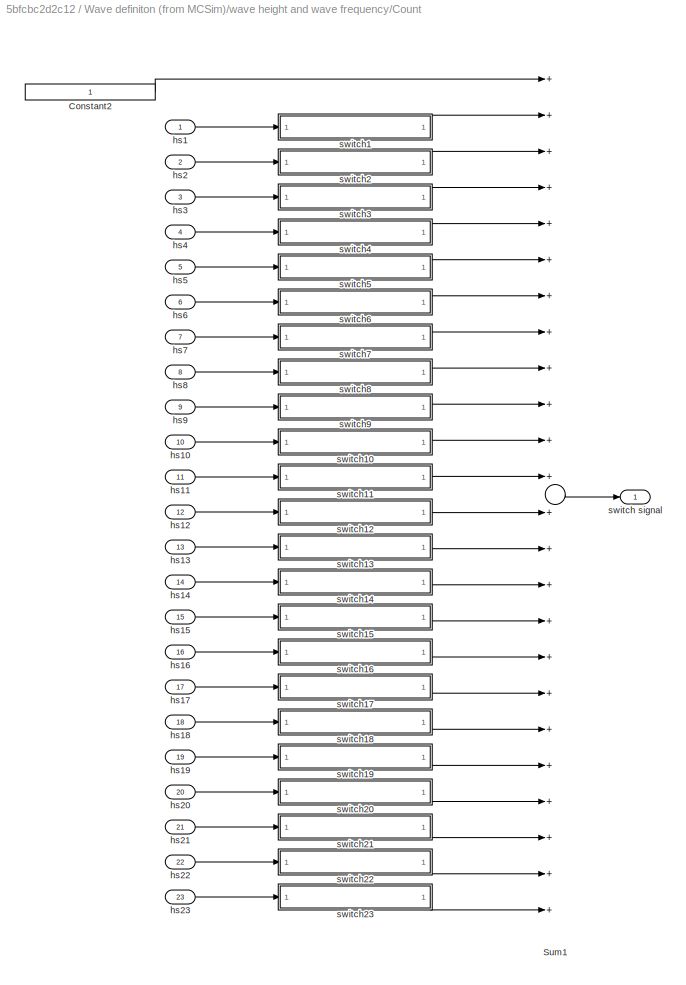
BLOCK [SubSystem] Wave definiton (from MCSim)/wave height and wave frequency/Count
  Ports = [23, 1]
  RequestExecContextInheritance = off
  Variant = off
BLOCK [Constant] Wave definiton (from MCSim)/wave height and wave frequency/Count/Constant2
BLOCK [Sum] Wave definiton (from MCSim)/wave height and wave frequency/Count/Sum1
  InputSameDT = off
  Inputs = ++++++++++++++++++++++++
  OutDataTypeStr = Inherit: Inherit via internal rule
  Ports = [24, 1]
BLOCK [Inport] Wave definiton (from MCSim)/wave height and wave frequency/Count/hs1
  IconDisplay = Port number
BLOCK [Inport] Wave definiton (from MCSim)/wave height and wave frequency/Count/hs10
  IconDisplay = Port number
  Port = 10
BLOCK [Inport] Wave definiton (from MCSim)/wave height and wave frequency/Count/hs11
  IconDisplay = Port number
  Port = 11
BLOCK [Inport] Wave definiton (from MCSim)/wave height and wave frequency/Count/hs12
  IconDisplay = Port number
  Port = 12
BLOCK [Inport] Wave definiton (from MCSim)/wave height and wave frequency/Count/hs13
  IconDisplay = Port number
  Port = 13
BLOCK [Inport] Wave definiton (from MCSim)/wave height and wave frequency/Count/hs14
  IconDisplay = Port number
  Port = 14
BLOCK [Inport] Wave definiton (from MCSim)/wave height and wave frequency/Count/hs15
  IconDisplay = Port number
  Port = 15
BLOCK [Inport] Wave definiton (from MCSim)/wave height and wave frequency/Count/hs16
  IconDisplay = Port number
  Port = 16
BLOCK [Inport] Wave definiton (from MCSim)/wave height and wave frequency/Count/hs17
  IconDisplay = Port number
  Port = 17
BLOCK [Inport] Wave definiton (from MCSim)/wave height and wave frequency/Count/hs18
  IconDisplay = Port number
  Port = 18
BLOCK [Inport] Wave definiton (from MCSim)/wave height and wave frequency/Count/hs19
  IconDisplay = Port number
  Port = 19
BLOCK [Inport] Wave definiton (from MCSim)/wave height and wave frequency/Count/hs2
  IconDisplay = Port number
  Port = 2
BLOCK [Inport] Wave definiton (from MCSim)/wave height and wave frequency/Count/hs20
  IconDisplay = Port number
  Port = 20
BLOCK [Inport] Wave definiton (from MCSim)/wave height and wave frequency/Count/hs21
  IconDisplay = Port number
  Port = 21
BLOCK [Inport] Wave definiton (from MCSim)/wave height and wave frequency/Count/hs22
  IconDisplay = Port number
  Port = 22
BLOCK [Inport] Wave definiton (from MCSim)/wave height and wave frequency/Count/hs23
  IconDisplay = Port number
  Port = 23
BLOCK [Inport] Wave definiton (from MCSim)/wave height and wave frequency/Count/hs3
  IconDisplay = Port number
  Port = 3
BLOCK [Inport] Wave definiton (from MCSim)/wave height and wave frequency/Count/hs4
  IconDisplay = Port number
  Port = 4
BLOCK [Inport] Wave definiton (from MCSim)/wave height and wave frequency/Count/hs5
  IconDisplay = Port number
  Port = 5
BLOCK [Inport] Wave definiton (from MCSim)/wave height and wave frequency/Count/hs6
  IconDisplay = Port number
  Port = 6
BLOCK [Inport] Wave definiton (from MCSim)/wave height and wave frequency/Count/hs7
  IconDisplay = Port number
  Port = 7
BLOCK [Inport] Wave definiton (from MCSim)/wave height and wave frequency/Count/hs8
  IconDisplay = Port number
  Port = 8
BLOCK [Inport] Wave definiton (from MCSim)/wave height and wave frequency/Count/hs9
  IconDisplay = Port number
  Port = 9
BLOCK [Outport] Wave definiton (from MCSim)/wave height and wave frequency/Count/switch signal
  IconDisplay = Port number
BLOCK [SubSystem] Wave definiton (from MCSim)/wave height and wave frequency/Count/switch1
  Ports = [1, 1]
  RequestExecContextInheritance = off
  Variant = off
BLOCK [Constant] Wave definiton (from MCSim)/wave height and wave frequency/Count/switch1/Constant
  Value = a
BLOCK [Gain] Wave definiton (from MCSim)/wave height and wave frequency/Count/switch1/Gain
  Gain = 1/(b-a)
BLOCK [Sum] Wave definiton (from MCSim)/wave height and wave frequency/Count/switch1/Sum
  InputSameDT = off
  Inputs = -+
  OutDataTypeStr = Inherit: Inherit via internal rule
  Ports = [2, 1]
BLOCK [Inport] Wave definiton (from MCSim)/wave height and wave frequency/Count/switch1/hs
  IconDisplay = Port number
BLOCK [Outport] Wave definiton (from MCSim)/wave height and wave frequency/Count/switch1/switch
  IconDisplay = Port number
BLOCK [SubSystem] Wave definiton (from MCSim)/wave height and wave frequency/Count/switch10
  Ports = [1, 1]
  RequestExecContextInheritance = off
  Variant = off
BLOCK [Constant] Wave definiton (from MCSim)/wave height and wave frequency/Count/switch10/Constant
  Value = a
BLOCK [Gain] Wave definiton (from MCSim)/wave height and wave frequency/Count/switch10/Gain
  Gain = 1/(b-a)
BLOCK [Sum] Wave definiton (from MCSim)/wave height and wave frequency/Count/switch10/Sum
  InputSameDT = off
  Inputs = -+
  OutDataTypeStr = Inherit: Inherit via internal rule
  Ports = [2, 1]
BLOCK [Inport] Wave definiton (from MCSim)/wave height and wave frequency/Count/switch10/hs
  IconDisplay = Port number
BLOCK [Outport] Wave definiton (from MCSim)/wave height and wave frequency/Count/switch10/switch
  IconDisplay = Port number
BLOCK [SubSystem] Wave definiton (from MCSim)/wave height and wave frequency/Count/switch11
  Ports = [1, 1]
  RequestExecContextInheritance = off
  Variant = off
BLOCK [Constant] Wave definiton (from MCSim)/wave height and wave frequency/Count/switch11/Constant
  Value = a
BLOCK [Gain] Wave definiton (from MCSim)/wave height and wave frequency/Count/switch11/Gain
  Gain = 1/(b-a)
BLOCK [Sum] Wave definiton (from MCSim)/wave height and wave frequency/Count/switch11/Sum
  InputSameDT = off
  Inputs = -+
  OutDataTypeStr = Inherit: Inherit via internal rule
  Ports = [2, 1]
BLOCK [Inport] Wave definiton (from MCSim)/wave height and wave frequency/Count/switch11/hs
  IconDisplay = Port number
BLOCK [Outport] Wave definiton (from MCSim)/wave height and wave frequency/Count/switch11/switch
  IconDisplay = Port number
BLOCK [SubSystem] Wave definiton (from MCSim)/wave height and wave frequency/Count/switch12
  Ports = [1, 1]
  RequestExecContextInheritance = off
  Variant = off
BLOCK [Constant] Wave definiton (from MCSim)/wave height and wave frequency/Count/switch12/Constant
  Value = a
BLOCK [Gain] Wave definiton (from MCSim)/wave height and wave frequency/Count/switch12/Gain
  Gain = 1/(b-a)
BLOCK [Sum] Wave definiton (from MCSim)/wave height and wave frequency/Count/switch12/Sum
  InputSameDT = off
  Inputs = -+
  OutDataTypeStr = Inherit: Inherit via internal rule
  Ports = [2, 1]
BLOCK [Inport] Wave definiton (from MCSim)/wave height and wave frequency/Count/switch12/hs
  IconDisplay = Port number
BLOCK [Outport] Wave definiton (from MCSim)/wave height and wave frequency/Count/switch12/switch
  IconDisplay = Port number
BLOCK [SubSystem] Wave definiton (from MCSim)/wave height and wave frequency/Count/switch13
  Ports = [1, 1]
  RequestExecContextInheritance = off
  Variant = off
BLOCK [Constant] Wave definiton (from MCSim)/wave height and wave frequency/Count/switch13/Constant
  Value = a
BLOCK [Gain] Wave definiton (from MCSim)/wave height and wave frequency/Count/switch13/Gain
  Gain = 1/(b-a)
BLOCK [Sum] Wave definiton (from MCSim)/wave height and wave frequency/Count/switch13/Sum
  InputSameDT = off
  Inputs = -+
  OutDataTypeStr = Inherit: Inherit via internal rule
  Ports = [2, 1]
BLOCK [Inport] Wave definiton (from MCSim)/wave height and wave frequency/Count/switch13/hs
  IconDisplay = Port number
BLOCK [Outport] Wave definiton (from MCSim)/wave height and wave frequency/Count/switch13/switch
  IconDisplay = Port number
BLOCK [SubSystem] Wave definiton (from MCSim)/wave height and wave frequency/Count/switch14
  Ports = [1, 1]
  RequestExecContextInheritance = off
  Variant = off
BLOCK [Constant] Wave definiton (from MCSim)/wave height and wave frequency/Count/switch14/Constant
  Value = a
BLOCK [Gain] Wave definiton (from MCSim)/wave height and wave frequency/Count/switch14/Gain
  Gain = 1/(b-a)
BLOCK [Sum] Wave definiton (from MCSim)/wave height and wave frequency/Count/switch14/Sum
  InputSameDT = off
  Inputs = -+
  OutDataTypeStr = Inherit: Inherit via internal rule
  Ports = [2, 1]
BLOCK [Inport] Wave definiton (from MCSim)/wave height and wave frequency/Count/switch14/hs
  IconDisplay = Port number
BLOCK [Outport] Wave definiton (from MCSim)/wave height and wave frequency/Count/switch14/switch
  IconDisplay = Port number
BLOCK [SubSystem] Wave definiton (from MCSim)/wave height and wave frequency/Count/switch15
  Ports = [1, 1]
  RequestExecContextInheritance = off
  Variant = off
BLOCK [Constant] Wave definiton (from MCSim)/wave height and wave frequency/Count/switch15/Constant
  Value = a
BLOCK [Gain] Wave definiton (from MCSim)/wave height and wave frequency/Count/switch15/Gain
  Gain = 1/(b-a)
BLOCK [Sum] Wave definiton (from MCSim)/wave height and wave frequency/Count/switch15/Sum
  InputSameDT = off
  Inputs = -+
  OutDataTypeStr = Inherit: Inherit via internal rule
  Ports = [2, 1]
BLOCK [Inport] Wave definiton (from MCSim)/wave height and wave frequency/Count/switch15/hs
  IconDisplay = Port number
BLOCK [Outport] Wave definiton (from MCSim)/wave height and wave frequency/Count/switch15/switch
  IconDisplay = Port number
BLOCK [SubSystem] Wave definiton (from MCSim)/wave height and wave frequency/Count/switch16
  Ports = [1, 1]
  RequestExecContextInheritance = off
  Variant = off
BLOCK [Constant] Wave definiton (from MCSim)/wave height and wave frequency/Count/switch16/Constant
  Value = a
BLOCK [Gain] Wave definiton (from MCSim)/wave height and wave frequency/Count/switch16/Gain
  Gain = 1/(b-a)
BLOCK [Sum] Wave definiton (from MCSim)/wave height and wave frequency/Count/switch16/Sum
  InputSameDT = off
  Inputs = -+
  OutDataTypeStr = Inherit: Inherit via internal rule
  Ports = [2, 1]
BLOCK [Inport] Wave definiton (from MCSim)/wave height and wave frequency/Count/switch16/hs
  IconDisplay = Port number
BLOCK [Outport] Wave definiton (from MCSim)/wave height and wave frequency/Count/switch16/switch
  IconDisplay = Port number
BLOCK [SubSystem] Wave definiton (from MCSim)/wave height and wave frequency/Count/switch17
  Ports = [1, 1]
  RequestExecContextInheritance = off
  Variant = off
BLOCK [Constant] Wave definiton (from MCSim)/wave height and wave frequency/Count/switch17/Constant
  Value = a
BLOCK [Gain] Wave definiton (from MCSim)/wave height and wave frequency/Count/switch17/Gain
  Gain = 1/(b-a)
BLOCK [Sum] Wave definiton (from MCSim)/wave height and wave frequency/Count/switch17/Sum
  InputSameDT = off
  Inputs = -+
  OutDataTypeStr = Inherit: Inherit via internal rule
  Ports = [2, 1]
BLOCK [Inport] Wave definiton (from MCSim)/wave height and wave frequency/Count/switch17/hs
  IconDisplay = Port number
BLOCK [Outport] Wave definiton (from MCSim)/wave height and wave frequency/Count/switch17/switch
  IconDisplay = Port number
BLOCK [SubSystem] Wave definiton (from MCSim)/wave height and wave frequency/Count/switch18
  Ports = [1, 1]
  RequestExecContextInheritance = off
  Variant = off
BLOCK [Constant] Wave definiton (from MCSim)/wave height and wave frequency/Count/switch18/Constant
  Value = a
BLOCK [Gain] Wave definiton (from MCSim)/wave height and wave frequency/Count/switch18/Gain
  Gain = 1/(b-a)
BLOCK [Sum] Wave definiton (from MCSim)/wave height and wave frequency/Count/switch18/Sum
  InputSameDT = off
  Inputs = -+
  OutDataTypeStr = Inherit: Inherit via internal rule
  Ports = [2, 1]
BLOCK [Inport] Wave definiton (from MCSim)/wave height and wave frequency/Count/switch18/hs
  IconDisplay = Port number
BLOCK [Outport] Wave definiton (from MCSim)/wave height and wave frequency/Count/switch18/switch
  IconDisplay = Port number
BLOCK [SubSystem] Wave definiton (from MCSim)/wave height and wave frequency/Count/switch19
  Ports = [1, 1]
  RequestExecContextInheritance = off
  Variant = off
BLOCK [Constant] Wave definiton (from MCSim)/wave height and wave frequency/Count/switch19/Constant
  Value = a
BLOCK [Gain] Wave definiton (from MCSim)/wave height and wave frequency/Count/switch19/Gain
  Gain = 1/(b-a)
BLOCK [Sum] Wave definiton (from MCSim)/wave height and wave frequency/Count/switch19/Sum
  InputSameDT = off
  Inputs = -+
  OutDataTypeStr = Inherit: Inherit via internal rule
  Ports = [2, 1]
BLOCK [Inport] Wave definiton (from MCSim)/wave height and wave frequency/Count/switch19/hs
  IconDisplay = Port number
BLOCK [Outport] Wave definiton (from MCSim)/wave height and wave frequency/Count/switch19/switch
  IconDisplay = Port number
BLOCK [SubSystem] Wave definiton (from MCSim)/wave height and wave frequency/Count/switch2
  Ports = [1, 1]
  RequestExecContextInheritance = off
  Variant = off
BLOCK [Constant] Wave definiton (from MCSim)/wave height and wave frequency/Count/switch2/Constant
  Value = a
BLOCK [Gain] Wave definiton (from MCSim)/wave height and wave frequency/Count/switch2/Gain
  Gain = 1/(b-a)
BLOCK [Sum] Wave definiton (from MCSim)/wave height and wave frequency/Count/switch2/Sum
  InputSameDT = off
  Inputs = -+
  OutDataTypeStr = Inherit: Inherit via internal rule
  Ports = [2, 1]
BLOCK [Inport] Wave definiton (from MCSim)/wave height and wave frequency/Count/switch2/hs
  IconDisplay = Port number
BLOCK [Outport] Wave definiton (from MCSim)/wave height and wave frequency/Count/switch2/switch
  IconDisplay = Port number
BLOCK [SubSystem] Wave definiton (from MCSim)/wave height and wave frequency/Count/switch20
  Ports = [1, 1]
  RequestExecContextInheritance = off
  Variant = off
BLOCK [Constant] Wave definiton (from MCSim)/wave height and wave frequency/Count/switch20/Constant
  Value = a
BLOCK [Gain] Wave definiton (from MCSim)/wave height and wave frequency/Count/switch20/Gain
  Gain = 1/(b-a)
BLOCK [Sum] Wave definiton (from MCSim)/wave height and wave frequency/Count/switch20/Sum
  InputSameDT = off
  Inputs = -+
  OutDataTypeStr = Inherit: Inherit via internal rule
  Ports = [2, 1]
BLOCK [Inport] Wave definiton (from MCSim)/wave height and wave frequency/Count/switch20/hs
  IconDisplay = Port number
BLOCK [Outport] Wave definiton (from MCSim)/wave height and wave frequency/Count/switch20/switch
  IconDisplay = Port number
BLOCK [SubSystem] Wave definiton (from MCSim)/wave height and wave frequency/Count/switch21
  Ports = [1, 1]
  RequestExecContextInheritance = off
  Variant = off
BLOCK [Constant] Wave definiton (from MCSim)/wave height and wave frequency/Count/switch21/Constant
  Value = a
BLOCK [Gain] Wave definiton (from MCSim)/wave height and wave frequency/Count/switch21/Gain
  Gain = 1/(b-a)
BLOCK [Sum] Wave definiton (from MCSim)/wave height and wave frequency/Count/switch21/Sum
  InputSameDT = off
  Inputs = -+
  OutDataTypeStr = Inherit: Inherit via internal rule
  Ports = [2, 1]
BLOCK [Inport] Wave definiton (from MCSim)/wave height and wave frequency/Count/switch21/hs
  IconDisplay = Port number
BLOCK [Outport] Wave definiton (from MCSim)/wave height and wave frequency/Count/switch21/switch
  IconDisplay = Port number
BLOCK [SubSystem] Wave definiton (from MCSim)/wave height and wave frequency/Count/switch22
  Ports = [1, 1]
  RequestExecContextInheritance = off
  Variant = off
BLOCK [Constant] Wave definiton (from MCSim)/wave height and wave frequency/Count/switch22/Constant
  Value = a
BLOCK [Gain] Wave definiton (from MCSim)/wave height and wave frequency/Count/switch22/Gain
  Gain = 1/(b-a)
BLOCK [Sum] Wave definiton (from MCSim)/wave height and wave frequency/Count/switch22/Sum
  InputSameDT = off
  Inputs = -+
  OutDataTypeStr = Inherit: Inherit via internal rule
  Ports = [2, 1]
BLOCK [Inport] Wave definiton (from MCSim)/wave height and wave frequency/Count/switch22/hs
  IconDisplay = Port number
BLOCK [Outport] Wave definiton (from MCSim)/wave height and wave frequency/Count/switch22/switch
  IconDisplay = Port number
BLOCK [SubSystem] Wave definiton (from MCSim)/wave height and wave frequency/Count/switch23
  Ports = [1, 1]
  RequestExecContextInheritance = off
  Variant = off
BLOCK [Constant] Wave definiton (from MCSim)/wave height and wave frequency/Count/switch23/Constant
  Value = a
BLOCK [Gain] Wave definiton (from MCSim)/wave height and wave frequency/Count/switch23/Gain
  Gain = 1/(b-a)
BLOCK [Sum] Wave definiton (from MCSim)/wave height and wave frequency/Count/switch23/Sum
  InputSameDT = off
  Inputs = -+
  OutDataTypeStr = Inherit: Inherit via internal rule
  Ports = [2, 1]
BLOCK [Inport] Wave definiton (from MCSim)/wave height and wave frequency/Count/switch23/hs
  IconDisplay = Port number
BLOCK [Outport] Wave definiton (from MCSim)/wave height and wave frequency/Count/switch23/switch
  IconDisplay = Port number
BLOCK [SubSystem] Wave definiton (from MCSim)/wave height and wave frequency/Count/switch3
  Ports = [1, 1]
  RequestExecContextInheritance = off
  Variant = off
BLOCK [Constant] Wave definiton (from MCSim)/wave height and wave frequency/Count/switch3/Constant
  Value = a
BLOCK [Gain] Wave definiton (from MCSim)/wave height and wave frequency/Count/switch3/Gain
  Gain = 1/(b-a)
BLOCK [Sum] Wave definiton (from MCSim)/wave height and wave frequency/Count/switch3/Sum
  InputSameDT = off
  Inputs = -+
  OutDataTypeStr = Inherit: Inherit via internal rule
  Ports = [2, 1]
BLOCK [Inport] Wave definiton (from MCSim)/wave height and wave frequency/Count/switch3/hs
  IconDisplay = Port number
BLOCK [Outport] Wave definiton (from MCSim)/wave height and wave frequency/Count/switch3/switch
  IconDisplay = Port number
BLOCK [SubSystem] Wave definiton (from MCSim)/wave height and wave frequency/Count/switch4
  Ports = [1, 1]
  RequestExecContextInheritance = off
  Variant = off
BLOCK [Constant] Wave definiton (from MCSim)/wave height and wave frequency/Count/switch4/Constant
  Value = a
BLOCK [Gain] Wave definiton (from MCSim)/wave height and wave frequency/Count/switch4/Gain
  Gain = 1/(b-a)
BLOCK [Sum] Wave definiton (from MCSim)/wave height and wave frequency/Count/switch4/Sum
  InputSameDT = off
  Inputs = -+
  OutDataTypeStr = Inherit: Inherit via internal rule
  Ports = [2, 1]
BLOCK [Inport] Wave definiton (from MCSim)/wave height and wave frequency/Count/switch4/hs
  IconDisplay = Port number
BLOCK [Outport] Wave definiton (from MCSim)/wave height and wave frequency/Count/switch4/switch
  IconDisplay = Port number
BLOCK [SubSystem] Wave definiton (from MCSim)/wave height and wave frequency/Count/switch5
  Ports = [1, 1]
  RequestExecContextInheritance = off
  Variant = off
BLOCK [Constant] Wave definiton (from MCSim)/wave height and wave frequency/Count/switch5/Constant
  Value = a
BLOCK [Gain] Wave definiton (from MCSim)/wave height and wave frequency/Count/switch5/Gain
  Gain = 1/(b-a)
BLOCK [Sum] Wave definiton (from MCSim)/wave height and wave frequency/Count/switch5/Sum
  InputSameDT = off
  Inputs = -+
  OutDataTypeStr = Inherit: Inherit via internal rule
  Ports = [2, 1]
BLOCK [Inport] Wave definiton (from MCSim)/wave height and wave frequency/Count/switch5/hs
  IconDisplay = Port number
BLOCK [Outport] Wave definiton (from MCSim)/wave height and wave frequency/Count/switch5/switch
  IconDisplay = Port number
BLOCK [SubSystem] Wave definiton (from MCSim)/wave height and wave frequency/Count/switch6
  Ports = [1, 1]
  RequestExecContextInheritance = off
  Variant = off
BLOCK [Constant] Wave definiton (from MCSim)/wave height and wave frequency/Count/switch6/Constant
  Value = a
BLOCK [Gain] Wave definiton (from MCSim)/wave height and wave frequency/Count/switch6/Gain
  Gain = 1/(b-a)
BLOCK [Sum] Wave definiton (from MCSim)/wave height and wave frequency/Count/switch6/Sum
  InputSameDT = off
  Inputs = -+
  OutDataTypeStr = Inherit: Inherit via internal rule
  Ports = [2, 1]
BLOCK [Inport] Wave definiton (from MCSim)/wave height and wave frequency/Count/switch6/hs
  IconDisplay = Port number
BLOCK [Outport] Wave definiton (from MCSim)/wave height and wave frequency/Count/switch6/switch
  IconDisplay = Port number
BLOCK [SubSystem] Wave definiton (from MCSim)/wave height and wave frequency/Count/switch7
  Ports = [1, 1]
  RequestExecContextInheritance = off
  Variant = off
BLOCK [Constant] Wave definiton (from MCSim)/wave height and wave frequency/Count/switch7/Constant
  Value = a
BLOCK [Gain] Wave definiton (from MCSim)/wave height and wave frequency/Count/switch7/Gain
  Gain = 1/(b-a)
BLOCK [Sum] Wave definiton (from MCSim)/wave height and wave frequency/Count/switch7/Sum
  InputSameDT = off
  Inputs = -+
  OutDataTypeStr = Inherit: Inherit via internal rule
  Ports = [2, 1]
BLOCK [Inport] Wave definiton (from MCSim)/wave height and wave frequency/Count/switch7/hs
  IconDisplay = Port number
BLOCK [Outport] Wave definiton (from MCSim)/wave height and wave frequency/Count/switch7/switch
  IconDisplay = Port number
BLOCK [SubSystem] Wave definiton (from MCSim)/wave height and wave frequency/Count/switch8
  Ports = [1, 1]
  RequestExecContextInheritance = off
  Variant = off
BLOCK [Constant] Wave definiton (from MCSim)/wave height and wave frequency/Count/switch8/Constant
  Value = a
BLOCK [Gain] Wave definiton (from MCSim)/wave height and wave frequency/Count/switch8/Gain
  Gain = 1/(b-a)
BLOCK [Sum] Wave definiton (from MCSim)/wave height and wave frequency/Count/switch8/Sum
  InputSameDT = off
  Inputs = -+
  OutDataTypeStr = Inherit: Inherit via internal rule
  Ports = [2, 1]
BLOCK [Inport] Wave definiton (from MCSim)/wave height and wave frequency/Count/switch8/hs
  IconDisplay = Port number
BLOCK [Outport] Wave definiton (from MCSim)/wave height and wave frequency/Count/switch8/switch
  IconDisplay = Port number
BLOCK [SubSystem] Wave definiton (from MCSim)/wave height and wave frequency/Count/switch9
  Ports = [1, 1]
  RequestExecContextInheritance = off
  Variant = off
BLOCK [Constant] Wave definiton (from MCSim)/wave height and wave frequency/Count/switch9/Constant
  Value = a
BLOCK [Gain] Wave definiton (from MCSim)/wave height and wave frequency/Count/switch9/Gain
  Gain = 1/(b-a)
BLOCK [Sum] Wave definiton (from MCSim)/wave height and wave frequency/Count/switch9/Sum
  InputSameDT = off
  Inputs = -+
  OutDataTypeStr = Inherit: Inherit via internal rule
  Ports = [2, 1]
BLOCK [Inport] Wave definiton (from MCSim)/wave height and wave frequency/Count/switch9/hs
  IconDisplay = Port number
BLOCK [Outport] Wave definiton (from MCSim)/wave height and wave frequency/Count/switch9/switch
  IconDisplay = Port number
BLOCK [Outport] Wave definiton (from MCSim)/wave height and wave frequency/Hs and omega
  IconDisplay = Port number
BLOCK [SubSystem] Wave definiton (from MCSim)/wave height and wave frequency/Hs and omega1
  Ports = [1, 2]
  RequestExecContextInheritance = off
  Variant = off
BLOCK [Outport] Wave definiton (from MCSim)/wave height and wave frequency/Hs and omega1/Hs
  IconDisplay = Port number
BLOCK [Outport] Wave definiton (from MCSim)/wave height and wave frequency/Hs and omega1/Hs n omega
  IconDisplay = Port number
  Port = 2
BLOCK [Mux] Wave definiton (from MCSim)/wave height and wave frequency/Hs and omega1/Mux
  DisplayOption = bar
  Inputs = 2
  Ports = [2, 1]
BLOCK [SubSystem] Wave definiton (from MCSim)/wave height and wave frequency/Hs and omega1/hs
  Ports = [1, 1]
  RequestExecContextInheritance = off
  Variant = off
BLOCK [Constant] Wave definiton (from MCSim)/wave height and wave frequency/Hs and omega1/hs/Constant
  Value = v1
BLOCK [Constant] Wave definiton (from MCSim)/wave height and wave frequency/Hs and omega1/hs/Constant2
  Value = v2
BLOCK [If] Wave definiton (from MCSim)/wave height and wave frequency/Hs and omega1/hs/If
  ElseIfExpressions = u1>=t1 & u1<t2
  IfExpression = u1 < t1
  Ports = [1, 3]
BLOCK [SubSystem] Wave definiton (from MCSim)/wave height and wave frequency/Hs and omega1/hs/If Action Subsystem1
  Ports = [1, 1, 0, 0, 0, 0, 0, 1]
  RequestExecContextInheritance = off
  TreatAsAtomicUnit = on
  Variant = off
BLOCK [ActionPort] Wave definiton (from MCSim)/wave height and wave frequency/Hs and omega1/hs/If Action Subsystem1/Action Port
  ActionType = then
BLOCK [Inport] Wave definiton (from MCSim)/wave height and wave frequency/Hs and omega1/hs/If Action Subsystem1/In1
  IconDisplay = Port number
BLOCK [Outport] Wave definiton (from MCSim)/wave height and wave frequency/Hs and omega1/hs/If Action Subsystem1/Out1
  IconDisplay = Port number
BLOCK [SubSystem] Wave definiton (from MCSim)/wave height and wave frequency/Hs and omega1/hs/If Action Subsystem2
  Ports = [1, 1, 0, 0, 0, 0, 0, 1]
  RequestExecContextInheritance = off
  TreatAsAtomicUnit = on
  Variant = off
BLOCK [ActionPort] Wave definiton (from MCSim)/wave height and wave frequency/Hs and omega1/hs/If Action Subsystem2/Action Port
  ActionType = elseif
BLOCK [Fcn] Wave definiton (from MCSim)/wave height and wave frequency/Hs and omega1/hs/If Action Subsystem2/Fcn
  Expr = v1-(v1-v2)/(t2-t1)*(u[1]-t1)
BLOCK [Inport] Wave definiton (from MCSim)/wave height and wave frequency/Hs and omega1/hs/If Action Subsystem2/In1
  IconDisplay = Port number
BLOCK [Outport] Wave definiton (from MCSim)/wave height and wave frequency/Hs and omega1/hs/If Action Subsystem2/Out1
  IconDisplay = Port number
BLOCK [SubSystem] Wave definiton (from MCSim)/wave height and wave frequency/Hs and omega1/hs/If Action Subsystem3
  Ports = [1, 1, 0, 0, 0, 0, 0, 1]
  RequestExecContextInheritance = off
  TreatAsAtomicUnit = on
  Variant = off
BLOCK [ActionPort] Wave definiton (from MCSim)/wave height and wave frequency/Hs and omega1/hs/If Action Subsystem3/Action Port
  ActionType = else
BLOCK [Inport] Wave definiton (from MCSim)/wave height and wave frequency/Hs and omega1/hs/If Action Subsystem3/In1
  IconDisplay = Port number
BLOCK [Outport] Wave definiton (from MCSim)/wave height and wave frequency/Hs and omega1/hs/If Action Subsystem3/Out1
  IconDisplay = Port number
BLOCK [Merge] Wave definiton (from MCSim)/wave height and wave frequency/Hs and omega1/hs/Merge
  Inputs = 3
  Ports = [3, 1]
BLOCK [Outport] Wave definiton (from MCSim)/wave height and wave frequency/Hs and omega1/hs/omega_peak
  IconDisplay = Port number
BLOCK [Inport] Wave definiton (from MCSim)/wave height and wave frequency/Hs and omega1/hs/time
  IconDisplay = Port number
BLOCK [SubSystem] Wave definiton (from MCSim)/wave height and wave frequency/Hs and omega1/omega_p
  Ports = [1, 1]
  RequestExecContextInheritance = off
  Variant = off
BLOCK [Constant] Wave definiton (from MCSim)/wave height and wave frequency/Hs and omega1/omega_p/Constant
  Value = v1
BLOCK [Constant] Wave definiton (from MCSim)/wave height and wave frequency/Hs and omega1/omega_p/Constant2
  Value = v2
BLOCK [If] Wave definiton (from MCSim)/wave height and wave frequency/Hs and omega1/omega_p/If
  ElseIfExpressions = u1>=t1 & u1<t2
  IfExpression = u1 < t1
  Ports = [1, 3]
BLOCK [SubSystem] Wave definiton (from MCSim)/wave height and wave frequency/Hs and omega1/omega_p/If Action Subsystem1
  Ports = [1, 1, 0, 0, 0, 0, 0, 1]
  RequestExecContextInheritance = off
  TreatAsAtomicUnit = on
  Variant = off
BLOCK [ActionPort] Wave definiton (from MCSim)/wave height and wave frequency/Hs and omega1/omega_p/If Action Subsystem1/Action Port
  ActionType = then
BLOCK [Inport] Wave definiton (from MCSim)/wave height and wave frequency/Hs and omega1/omega_p/If Action Subsystem1/In1
  IconDisplay = Port number
BLOCK [Outport] Wave definiton (from MCSim)/wave height and wave frequency/Hs and omega1/omega_p/If Action Subsystem1/Out1
  IconDisplay = Port number
BLOCK [SubSystem] Wave definiton (from MCSim)/wave height and wave frequency/Hs and omega1/omega_p/If Action Subsystem2
  Ports = [1, 1, 0, 0, 0, 0, 0, 1]
  RequestExecContextInheritance = off
  TreatAsAtomicUnit = on
  Variant = off
BLOCK [ActionPort] Wave definiton (from MCSim)/wave height and wave frequency/Hs and omega1/omega_p/If Action Subsystem2/Action Port
  ActionType = elseif
BLOCK [Fcn] Wave definiton (from MCSim)/wave height and wave frequency/Hs and omega1/omega_p/If Action Subsystem2/Fcn
  Expr = v1-(v1-v2)/(t2-t1)*(u[1]-t1)
BLOCK [Inport] Wave definiton (from MCSim)/wave height and wave frequency/Hs and omega1/omega_p/If Action Subsystem2/In1
  IconDisplay = Port number
BLOCK [Outport] Wave definiton (from MCSim)/wave height and wave frequency/Hs and omega1/omega_p/If Action Subsystem2/Out1
  IconDisplay = Port number
BLOCK [SubSystem] Wave definiton (from MCSim)/wave height and wave frequency/Hs and omega1/omega_p/If Action Subsystem3
  Ports = [1, 1, 0, 0, 0, 0, 0, 1]
  RequestExecContextInheritance = off
  TreatAsAtomicUnit = on
  Variant = off
BLOCK [ActionPort] Wave definiton (from MCSim)/wave height and wave frequency/Hs and omega1/omega_p/If Action Subsystem3/Action Port
  ActionType = else
BLOCK [Inport] Wave definiton (from MCSim)/wave height and wave frequency/Hs and omega1/omega_p/If Action Subsystem3/In1
  IconDisplay = Port number
BLOCK [Outport] Wave definiton (from MCSim)/wave height and wave frequency/Hs and omega1/omega_p/If Action Subsystem3/Out1
  IconDisplay = Port number
BLOCK [Merge] Wave definiton (from MCSim)/wave height and wave frequency/Hs and omega1/omega_p/Merge
  Inputs = 3
  Ports = [3, 1]
BLOCK [Outport] Wave definiton (from MCSim)/wave height and wave frequency/Hs and omega1/omega_p/omega_peak
  IconDisplay = Port number
BLOCK [Inport] Wave definiton (from MCSim)/wave height and wave frequency/Hs and omega1/omega_p/time
  IconDisplay = Port number
BLOCK [Inport] Wave definiton (from MCSim)/wave height and wave frequency/Hs and omega1/t
  IconDisplay = Port number
BLOCK [SubSystem] Wave definiton (from MCSim)/wave height and wave frequency/Hs and omega10
  Ports = [1, 2]
  RequestExecContextInheritance = off
  Variant = off
BLOCK [Outport] Wave definiton (from MCSim)/wave height and wave frequency/Hs and omega10/Hs
  IconDisplay = Port number
BLOCK [Outport] Wave definiton (from MCSim)/wave height and wave frequency/Hs and omega10/Hs n omega
  IconDisplay = Port number
  Port = 2
BLOCK [Mux] Wave definiton (from MCSim)/wave height and wave frequency/Hs and omega10/Mux
  DisplayOption = bar
  Inputs = 2
  Ports = [2, 1]
BLOCK [SubSystem] Wave definiton (from MCSim)/wave height and wave frequency/Hs and omega10/hs
  Ports = [1, 1]
  RequestExecContextInheritance = off
  Variant = off
BLOCK [Constant] Wave definiton (from MCSim)/wave height and wave frequency/Hs and omega10/hs/Constant
  Value = v1
BLOCK [Constant] Wave definiton (from MCSim)/wave height and wave frequency/Hs and omega10/hs/Constant2
  Value = v2
BLOCK [If] Wave definiton (from MCSim)/wave height and wave frequency/Hs and omega10/hs/If
  ElseIfExpressions = u1>=t1 & u1<t2
  IfExpression = u1 < t1
  Ports = [1, 3]
BLOCK [SubSystem] Wave definiton (from MCSim)/wave height and wave frequency/Hs and omega10/hs/If Action Subsystem1
  Ports = [1, 1, 0, 0, 0, 0, 0, 1]
  RequestExecContextInheritance = off
  TreatAsAtomicUnit = on
  Variant = off
BLOCK [ActionPort] Wave definiton (from MCSim)/wave height and wave frequency/Hs and omega10/hs/If Action Subsystem1/Action Port
  ActionType = then
BLOCK [Inport] Wave definiton (from MCSim)/wave height and wave frequency/Hs and omega10/hs/If Action Subsystem1/In1
  IconDisplay = Port number
BLOCK [Outport] Wave definiton (from MCSim)/wave height and wave frequency/Hs and omega10/hs/If Action Subsystem1/Out1
  IconDisplay = Port number
BLOCK [SubSystem] Wave definiton (from MCSim)/wave height and wave frequency/Hs and omega10/hs/If Action Subsystem2
  Ports = [1, 1, 0, 0, 0, 0, 0, 1]
  RequestExecContextInheritance = off
  TreatAsAtomicUnit = on
  Variant = off
BLOCK [ActionPort] Wave definiton (from MCSim)/wave height and wave frequency/Hs and omega10/hs/If Action Subsystem2/Action Port
  ActionType = elseif
BLOCK [Fcn] Wave definiton (from MCSim)/wave height and wave frequency/Hs and omega10/hs/If Action Subsystem2/Fcn
  Expr = v1-(v1-v2)/(t2-t1)*(u[1]-t1)
BLOCK [Inport] Wave definiton (from MCSim)/wave height and wave frequency/Hs and omega10/hs/If Action Subsystem2/In1
  IconDisplay = Port number
BLOCK [Outport] Wave definiton (from MCSim)/wave height and wave frequency/Hs and omega10/hs/If Action Subsystem2/Out1
  IconDisplay = Port number
BLOCK [SubSystem] Wave definiton (from MCSim)/wave height and wave frequency/Hs and omega10/hs/If Action Subsystem3
  Ports = [1, 1, 0, 0, 0, 0, 0, 1]
  RequestExecContextInheritance = off
  TreatAsAtomicUnit = on
  Variant = off
BLOCK [ActionPort] Wave definiton (from MCSim)/wave height and wave frequency/Hs and omega10/hs/If Action Subsystem3/Action Port
  ActionType = else
BLOCK [Inport] Wave definiton (from MCSim)/wave height and wave frequency/Hs and omega10/hs/If Action Subsystem3/In1
  IconDisplay = Port number
BLOCK [Outport] Wave definiton (from MCSim)/wave height and wave frequency/Hs and omega10/hs/If Action Subsystem3/Out1
  IconDisplay = Port number
BLOCK [Merge] Wave definiton (from MCSim)/wave height and wave frequency/Hs and omega10/hs/Merge
  Inputs = 3
  Ports = [3, 1]
BLOCK [Outport] Wave definiton (from MCSim)/wave height and wave frequency/Hs and omega10/hs/omega_peak
  IconDisplay = Port number
BLOCK [Inport] Wave definiton (from MCSim)/wave height and wave frequency/Hs and omega10/hs/time
  IconDisplay = Port number
BLOCK [SubSystem] Wave definiton (from MCSim)/wave height and wave frequency/Hs and omega10/omega_p
  Ports = [1, 1]
  RequestExecContextInheritance = off
  Variant = off
BLOCK [Constant] Wave definiton (from MCSim)/wave height and wave frequency/Hs and omega10/omega_p/Constant
  Value = v1
BLOCK [Constant] Wave definiton (from MCSim)/wave height and wave frequency/Hs and omega10/omega_p/Constant2
  Value = v2
BLOCK [If] Wave definiton (from MCSim)/wave height and wave frequency/Hs and omega10/omega_p/If
  ElseIfExpressions = u1>=t1 & u1<t2
  IfExpression = u1 < t1
  Ports = [1, 3]
BLOCK [SubSystem] Wave definiton (from MCSim)/wave height and wave frequency/Hs and omega10/omega_p/If Action Subsystem1
  Ports = [1, 1, 0, 0, 0, 0, 0, 1]
  RequestExecContextInheritance = off
  TreatAsAtomicUnit = on
  Variant = off
BLOCK [ActionPort] Wave definiton (from MCSim)/wave height and wave frequency/Hs and omega10/omega_p/If Action Subsystem1/Action Port
  ActionType = then
BLOCK [Inport] Wave definiton (from MCSim)/wave height and wave frequency/Hs and omega10/omega_p/If Action Subsystem1/In1
  IconDisplay = Port number
BLOCK [Outport] Wave definiton (from MCSim)/wave height and wave frequency/Hs and omega10/omega_p/If Action Subsystem1/Out1
  IconDisplay = Port number
BLOCK [SubSystem] Wave definiton (from MCSim)/wave height and wave frequency/Hs and omega10/omega_p/If Action Subsystem2
  Ports = [1, 1, 0, 0, 0, 0, 0, 1]
  RequestExecContextInheritance = off
  TreatAsAtomicUnit = on
  Variant = off
BLOCK [ActionPort] Wave definiton (from MCSim)/wave height and wave frequency/Hs and omega10/omega_p/If Action Subsystem2/Action Port
  ActionType = elseif
BLOCK [Fcn] Wave definiton (from MCSim)/wave height and wave frequency/Hs and omega10/omega_p/If Action Subsystem2/Fcn
  Expr = v1-(v1-v2)/(t2-t1)*(u[1]-t1)
BLOCK [Inport] Wave definiton (from MCSim)/wave height and wave frequency/Hs and omega10/omega_p/If Action Subsystem2/In1
  IconDisplay = Port number
BLOCK [Outport] Wave definiton (from MCSim)/wave height and wave frequency/Hs and omega10/omega_p/If Action Subsystem2/Out1
  IconDisplay = Port number
BLOCK [SubSystem] Wave definiton (from MCSim)/wave height and wave frequency/Hs and omega10/omega_p/If Action Subsystem3
  Ports = [1, 1, 0, 0, 0, 0, 0, 1]
  RequestExecContextInheritance = off
  TreatAsAtomicUnit = on
  Variant = off
BLOCK [ActionPort] Wave definiton (from MCSim)/wave height and wave frequency/Hs and omega10/omega_p/If Action Subsystem3/Action Port
  ActionType = else
BLOCK [Inport] Wave definiton (from MCSim)/wave height and wave frequency/Hs and omega10/omega_p/If Action Subsystem3/In1
  IconDisplay = Port number
BLOCK [Outport] Wave definiton (from MCSim)/wave height and wave frequency/Hs and omega10/omega_p/If Action Subsystem3/Out1
  IconDisplay = Port number
BLOCK [Merge] Wave definiton (from MCSim)/wave height and wave frequency/Hs and omega10/omega_p/Merge
  Inputs = 3
  Ports = [3, 1]
BLOCK [Outport] Wave definiton (from MCSim)/wave height and wave frequency/Hs and omega10/omega_p/omega_peak
  IconDisplay = Port number
BLOCK [Inport] Wave definiton (from MCSim)/wave height and wave frequency/Hs and omega10/omega_p/time
  IconDisplay = Port number
BLOCK [Inport] Wave definiton (from MCSim)/wave height and wave frequency/Hs and omega10/t
  IconDisplay = Port number
BLOCK [SubSystem] Wave definiton (from MCSim)/wave height and wave frequency/Hs and omega11
  Ports = [1, 2]
  RequestExecContextInheritance = off
  Variant = off
BLOCK [Outport] Wave definiton (from MCSim)/wave height and wave frequency/Hs and omega11/Hs
  IconDisplay = Port number
BLOCK [Outport] Wave definiton (from MCSim)/wave height and wave frequency/Hs and omega11/Hs n omega
  IconDisplay = Port number
  Port = 2
BLOCK [Mux] Wave definiton (from MCSim)/wave height and wave frequency/Hs and omega11/Mux
  DisplayOption = bar
  Inputs = 2
  Ports = [2, 1]
BLOCK [SubSystem] Wave definiton (from MCSim)/wave height and wave frequency/Hs and omega11/hs
  Ports = [1, 1]
  RequestExecContextInheritance = off
  Variant = off
BLOCK [Constant] Wave definiton (from MCSim)/wave height and wave frequency/Hs and omega11/hs/Constant
  Value = v1
BLOCK [Constant] Wave definiton (from MCSim)/wave height and wave frequency/Hs and omega11/hs/Constant2
  Value = v2
BLOCK [If] Wave definiton (from MCSim)/wave height and wave frequency/Hs and omega11/hs/If
  ElseIfExpressions = u1>=t1 & u1<t2
  IfExpression = u1 < t1
  Ports = [1, 3]
BLOCK [SubSystem] Wave definiton (from MCSim)/wave height and wave frequency/Hs and omega11/hs/If Action Subsystem1
  Ports = [1, 1, 0, 0, 0, 0, 0, 1]
  RequestExecContextInheritance = off
  TreatAsAtomicUnit = on
  Variant = off
BLOCK [ActionPort] Wave definiton (from MCSim)/wave height and wave frequency/Hs and omega11/hs/If Action Subsystem1/Action Port
  ActionType = then
BLOCK [Inport] Wave definiton (from MCSim)/wave height and wave frequency/Hs and omega11/hs/If Action Subsystem1/In1
  IconDisplay = Port number
BLOCK [Outport] Wave definiton (from MCSim)/wave height and wave frequency/Hs and omega11/hs/If Action Subsystem1/Out1
  IconDisplay = Port number
BLOCK [SubSystem] Wave definiton (from MCSim)/wave height and wave frequency/Hs and omega11/hs/If Action Subsystem2
  Ports = [1, 1, 0, 0, 0, 0, 0, 1]
  RequestExecContextInheritance = off
  TreatAsAtomicUnit = on
  Variant = off
BLOCK [ActionPort] Wave definiton (from MCSim)/wave height and wave frequency/Hs and omega11/hs/If Action Subsystem2/Action Port
  ActionType = elseif
BLOCK [Fcn] Wave definiton (from MCSim)/wave height and wave frequency/Hs and omega11/hs/If Action Subsystem2/Fcn
  Expr = v1-(v1-v2)/(t2-t1)*(u[1]-t1)
BLOCK [Inport] Wave definiton (from MCSim)/wave height and wave frequency/Hs and omega11/hs/If Action Subsystem2/In1
  IconDisplay = Port number
BLOCK [Outport] Wave definiton (from MCSim)/wave height and wave frequency/Hs and omega11/hs/If Action Subsystem2/Out1
  IconDisplay = Port number
BLOCK [SubSystem] Wave definiton (from MCSim)/wave height and wave frequency/Hs and omega11/hs/If Action Subsystem3
  Ports = [1, 1, 0, 0, 0, 0, 0, 1]
  RequestExecContextInheritance = off
  TreatAsAtomicUnit = on
  Variant = off
BLOCK [ActionPort] Wave definiton (from MCSim)/wave height and wave frequency/Hs and omega11/hs/If Action Subsystem3/Action Port
  ActionType = else
BLOCK [Inport] Wave definiton (from MCSim)/wave height and wave frequency/Hs and omega11/hs/If Action Subsystem3/In1
  IconDisplay = Port number
BLOCK [Outport] Wave definiton (from MCSim)/wave height and wave frequency/Hs and omega11/hs/If Action Subsystem3/Out1
  IconDisplay = Port number
BLOCK [Merge] Wave definiton (from MCSim)/wave height and wave frequency/Hs and omega11/hs/Merge
  Inputs = 3
  Ports = [3, 1]
BLOCK [Outport] Wave definiton (from MCSim)/wave height and wave frequency/Hs and omega11/hs/omega_peak
  IconDisplay = Port number
BLOCK [Inport] Wave definiton (from MCSim)/wave height and wave frequency/Hs and omega11/hs/time
  IconDisplay = Port number
BLOCK [SubSystem] Wave definiton (from MCSim)/wave height and wave frequency/Hs and omega11/omega_p
  Ports = [1, 1]
  RequestExecContextInheritance = off
  Variant = off
BLOCK [Constant] Wave definiton (from MCSim)/wave height and wave frequency/Hs and omega11/omega_p/Constant
  Value = v1
BLOCK [Constant] Wave definiton (from MCSim)/wave height and wave frequency/Hs and omega11/omega_p/Constant2
  Value = v2
BLOCK [If] Wave definiton (from MCSim)/wave height and wave frequency/Hs and omega11/omega_p/If
  ElseIfExpressions = u1>=t1 & u1<t2
  IfExpression = u1 < t1
  Ports = [1, 3]
BLOCK [SubSystem] Wave definiton (from MCSim)/wave height and wave frequency/Hs and omega11/omega_p/If Action Subsystem1
  Ports = [1, 1, 0, 0, 0, 0, 0, 1]
  RequestExecContextInheritance = off
  TreatAsAtomicUnit = on
  Variant = off
BLOCK [ActionPort] Wave definiton (from MCSim)/wave height and wave frequency/Hs and omega11/omega_p/If Action Subsystem1/Action Port
  ActionType = then
BLOCK [Inport] Wave definiton (from MCSim)/wave height and wave frequency/Hs and omega11/omega_p/If Action Subsystem1/In1
  IconDisplay = Port number
BLOCK [Outport] Wave definiton (from MCSim)/wave height and wave frequency/Hs and omega11/omega_p/If Action Subsystem1/Out1
  IconDisplay = Port number
BLOCK [SubSystem] Wave definiton (from MCSim)/wave height and wave frequency/Hs and omega11/omega_p/If Action Subsystem2
  Ports = [1, 1, 0, 0, 0, 0, 0, 1]
  RequestExecContextInheritance = off
  TreatAsAtomicUnit = on
  Variant = off
BLOCK [ActionPort] Wave definiton (from MCSim)/wave height and wave frequency/Hs and omega11/omega_p/If Action Subsystem2/Action Port
  ActionType = elseif
BLOCK [Fcn] Wave definiton (from MCSim)/wave height and wave frequency/Hs and omega11/omega_p/If Action Subsystem2/Fcn
  Expr = v1-(v1-v2)/(t2-t1)*(u[1]-t1)
BLOCK [Inport] Wave definiton (from MCSim)/wave height and wave frequency/Hs and omega11/omega_p/If Action Subsystem2/In1
  IconDisplay = Port number
BLOCK [Outport] Wave definiton (from MCSim)/wave height and wave frequency/Hs and omega11/omega_p/If Action Subsystem2/Out1
  IconDisplay = Port number
BLOCK [SubSystem] Wave definiton (from MCSim)/wave height and wave frequency/Hs and omega11/omega_p/If Action Subsystem3
  Ports = [1, 1, 0, 0, 0, 0, 0, 1]
  RequestExecContextInheritance = off
  TreatAsAtomicUnit = on
  Variant = off
BLOCK [ActionPort] Wave definiton (from MCSim)/wave height and wave frequency/Hs and omega11/omega_p/If Action Subsystem3/Action Port
  ActionType = else
BLOCK [Inport] Wave definiton (from MCSim)/wave height and wave frequency/Hs and omega11/omega_p/If Action Subsystem3/In1
  IconDisplay = Port number
BLOCK [Outport] Wave definiton (from MCSim)/wave height and wave frequency/Hs and omega11/omega_p/If Action Subsystem3/Out1
  IconDisplay = Port number
BLOCK [Merge] Wave definiton (from MCSim)/wave height and wave frequency/Hs and omega11/omega_p/Merge
  Inputs = 3
  Ports = [3, 1]
BLOCK [Outport] Wave definiton (from MCSim)/wave height and wave frequency/Hs and omega11/omega_p/omega_peak
  IconDisplay = Port number
BLOCK [Inport] Wave definiton (from MCSim)/wave height and wave frequency/Hs and omega11/omega_p/time
  IconDisplay = Port number
BLOCK [Inport] Wave definiton (from MCSim)/wave height and wave frequency/Hs and omega11/t
  IconDisplay = Port number
BLOCK [SubSystem] Wave definiton (from MCSim)/wave height and wave frequency/Hs and omega12
  Ports = [1, 2]
  RequestExecContextInheritance = off
  Variant = off
BLOCK [Outport] Wave definiton (from MCSim)/wave height and wave frequency/Hs and omega12/Hs
  IconDisplay = Port number
BLOCK [Outport] Wave definiton (from MCSim)/wave height and wave frequency/Hs and omega12/Hs n omega
  IconDisplay = Port number
  Port = 2
BLOCK [Mux] Wave definiton (from MCSim)/wave height and wave frequency/Hs and omega12/Mux
  DisplayOption = bar
  Inputs = 2
  Ports = [2, 1]
BLOCK [SubSystem] Wave definiton (from MCSim)/wave height and wave frequency/Hs and omega12/hs
  Ports = [1, 1]
  RequestExecContextInheritance = off
  Variant = off
BLOCK [Constant] Wave definiton (from MCSim)/wave height and wave frequency/Hs and omega12/hs/Constant
  Value = v1
BLOCK [Constant] Wave definiton (from MCSim)/wave height and wave frequency/Hs and omega12/hs/Constant2
  Value = v2
BLOCK [If] Wave definiton (from MCSim)/wave height and wave frequency/Hs and omega12/hs/If
  ElseIfExpressions = u1>=t1 & u1<t2
  IfExpression = u1 < t1
  Ports = [1, 3]
BLOCK [SubSystem] Wave definiton (from MCSim)/wave height and wave frequency/Hs and omega12/hs/If Action Subsystem1
  Ports = [1, 1, 0, 0, 0, 0, 0, 1]
  RequestExecContextInheritance = off
  TreatAsAtomicUnit = on
  Variant = off
BLOCK [ActionPort] Wave definiton (from MCSim)/wave height and wave frequency/Hs and omega12/hs/If Action Subsystem1/Action Port
  ActionType = then
BLOCK [Inport] Wave definiton (from MCSim)/wave height and wave frequency/Hs and omega12/hs/If Action Subsystem1/In1
  IconDisplay = Port number
BLOCK [Outport] Wave definiton (from MCSim)/wave height and wave frequency/Hs and omega12/hs/If Action Subsystem1/Out1
  IconDisplay = Port number
BLOCK [SubSystem] Wave definiton (from MCSim)/wave height and wave frequency/Hs and omega12/hs/If Action Subsystem2
  Ports = [1, 1, 0, 0, 0, 0, 0, 1]
  RequestExecContextInheritance = off
  TreatAsAtomicUnit = on
  Variant = off
BLOCK [ActionPort] Wave definiton (from MCSim)/wave height and wave frequency/Hs and omega12/hs/If Action Subsystem2/Action Port
  ActionType = elseif
BLOCK [Fcn] Wave definiton (from MCSim)/wave height and wave frequency/Hs and omega12/hs/If Action Subsystem2/Fcn
  Expr = v1-(v1-v2)/(t2-t1)*(u[1]-t1)
BLOCK [Inport] Wave definiton (from MCSim)/wave height and wave frequency/Hs and omega12/hs/If Action Subsystem2/In1
  IconDisplay = Port number
BLOCK [Outport] Wave definiton (from MCSim)/wave height and wave frequency/Hs and omega12/hs/If Action Subsystem2/Out1
  IconDisplay = Port number
BLOCK [SubSystem] Wave definiton (from MCSim)/wave height and wave frequency/Hs and omega12/hs/If Action Subsystem3
  Ports = [1, 1, 0, 0, 0, 0, 0, 1]
  RequestExecContextInheritance = off
  TreatAsAtomicUnit = on
  Variant = off
BLOCK [ActionPort] Wave definiton (from MCSim)/wave height and wave frequency/Hs and omega12/hs/If Action Subsystem3/Action Port
  ActionType = else
BLOCK [Inport] Wave definiton (from MCSim)/wave height and wave frequency/Hs and omega12/hs/If Action Subsystem3/In1
  IconDisplay = Port number
BLOCK [Outport] Wave definiton (from MCSim)/wave height and wave frequency/Hs and omega12/hs/If Action Subsystem3/Out1
  IconDisplay = Port number
BLOCK [Merge] Wave definiton (from MCSim)/wave height and wave frequency/Hs and omega12/hs/Merge
  Inputs = 3
  Ports = [3, 1]
BLOCK [Outport] Wave definiton (from MCSim)/wave height and wave frequency/Hs and omega12/hs/omega_peak
  IconDisplay = Port number
BLOCK [Inport] Wave definiton (from MCSim)/wave height and wave frequency/Hs and omega12/hs/time
  IconDisplay = Port number
BLOCK [SubSystem] Wave definiton (from MCSim)/wave height and wave frequency/Hs and omega12/omega_p
  Ports = [1, 1]
  RequestExecContextInheritance = off
  Variant = off
BLOCK [Constant] Wave definiton (from MCSim)/wave height and wave frequency/Hs and omega12/omega_p/Constant
  Value = v1
BLOCK [Constant] Wave definiton (from MCSim)/wave height and wave frequency/Hs and omega12/omega_p/Constant2
  Value = v2
BLOCK [If] Wave definiton (from MCSim)/wave height and wave frequency/Hs and omega12/omega_p/If
  ElseIfExpressions = u1>=t1 & u1<t2
  IfExpression = u1 < t1
  Ports = [1, 3]
BLOCK [SubSystem] Wave definiton (from MCSim)/wave height and wave frequency/Hs and omega12/omega_p/If Action Subsystem1
  Ports = [1, 1, 0, 0, 0, 0, 0, 1]
  RequestExecContextInheritance = off
  TreatAsAtomicUnit = on
  Variant = off
BLOCK [ActionPort] Wave definiton (from MCSim)/wave height and wave frequency/Hs and omega12/omega_p/If Action Subsystem1/Action Port
  ActionType = then
BLOCK [Inport] Wave definiton (from MCSim)/wave height and wave frequency/Hs and omega12/omega_p/If Action Subsystem1/In1
  IconDisplay = Port number
BLOCK [Outport] Wave definiton (from MCSim)/wave height and wave frequency/Hs and omega12/omega_p/If Action Subsystem1/Out1
  IconDisplay = Port number
BLOCK [SubSystem] Wave definiton (from MCSim)/wave height and wave frequency/Hs and omega12/omega_p/If Action Subsystem2
  Ports = [1, 1, 0, 0, 0, 0, 0, 1]
  RequestExecContextInheritance = off
  TreatAsAtomicUnit = on
  Variant = off
BLOCK [ActionPort] Wave definiton (from MCSim)/wave height and wave frequency/Hs and omega12/omega_p/If Action Subsystem2/Action Port
  ActionType = elseif
BLOCK [Fcn] Wave definiton (from MCSim)/wave height and wave frequency/Hs and omega12/omega_p/If Action Subsystem2/Fcn
  Expr = v1-(v1-v2)/(t2-t1)*(u[1]-t1)
BLOCK [Inport] Wave definiton (from MCSim)/wave height and wave frequency/Hs and omega12/omega_p/If Action Subsystem2/In1
  IconDisplay = Port number
BLOCK [Outport] Wave definiton (from MCSim)/wave height and wave frequency/Hs and omega12/omega_p/If Action Subsystem2/Out1
  IconDisplay = Port number
BLOCK [SubSystem] Wave definiton (from MCSim)/wave height and wave frequency/Hs and omega12/omega_p/If Action Subsystem3
  Ports = [1, 1, 0, 0, 0, 0, 0, 1]
  RequestExecContextInheritance = off
  TreatAsAtomicUnit = on
  Variant = off
BLOCK [ActionPort] Wave definiton (from MCSim)/wave height and wave frequency/Hs and omega12/omega_p/If Action Subsystem3/Action Port
  ActionType = else
BLOCK [Inport] Wave definiton (from MCSim)/wave height and wave frequency/Hs and omega12/omega_p/If Action Subsystem3/In1
  IconDisplay = Port number
BLOCK [Outport] Wave definiton (from MCSim)/wave height and wave frequency/Hs and omega12/omega_p/If Action Subsystem3/Out1
  IconDisplay = Port number
BLOCK [Merge] Wave definiton (from MCSim)/wave height and wave frequency/Hs and omega12/omega_p/Merge
  Inputs = 3
  Ports = [3, 1]
BLOCK [Outport] Wave definiton (from MCSim)/wave height and wave frequency/Hs and omega12/omega_p/omega_peak
  IconDisplay = Port number
BLOCK [Inport] Wave definiton (from MCSim)/wave height and wave frequency/Hs and omega12/omega_p/time
  IconDisplay = Port number
BLOCK [Inport] Wave definiton (from MCSim)/wave height and wave frequency/Hs and omega12/t
  IconDisplay = Port number
BLOCK [SubSystem] Wave definiton (from MCSim)/wave height and wave frequency/Hs and omega13
  Ports = [1, 2]
  RequestExecContextInheritance = off
  Variant = off
BLOCK [Outport] Wave definiton (from MCSim)/wave height and wave frequency/Hs and omega13/Hs
  IconDisplay = Port number
BLOCK [Outport] Wave definiton (from MCSim)/wave height and wave frequency/Hs and omega13/Hs n omega
  IconDisplay = Port number
  Port = 2
BLOCK [Mux] Wave definiton (from MCSim)/wave height and wave frequency/Hs and omega13/Mux
  DisplayOption = bar
  Inputs = 2
  Ports = [2, 1]
BLOCK [SubSystem] Wave definiton (from MCSim)/wave height and wave frequency/Hs and omega13/hs
  Ports = [1, 1]
  RequestExecContextInheritance = off
  Variant = off
BLOCK [Constant] Wave definiton (from MCSim)/wave height and wave frequency/Hs and omega13/hs/Constant
  Value = v1
BLOCK [Constant] Wave definiton (from MCSim)/wave height and wave frequency/Hs and omega13/hs/Constant2
  Value = v2
BLOCK [If] Wave definiton (from MCSim)/wave height and wave frequency/Hs and omega13/hs/If
  ElseIfExpressions = u1>=t1 & u1<t2
  IfExpression = u1 < t1
  Ports = [1, 3]
BLOCK [SubSystem] Wave definiton (from MCSim)/wave height and wave frequency/Hs and omega13/hs/If Action Subsystem1
  Ports = [1, 1, 0, 0, 0, 0, 0, 1]
  RequestExecContextInheritance = off
  TreatAsAtomicUnit = on
  Variant = off
BLOCK [ActionPort] Wave definiton (from MCSim)/wave height and wave frequency/Hs and omega13/hs/If Action Subsystem1/Action Port
  ActionType = then
BLOCK [Inport] Wave definiton (from MCSim)/wave height and wave frequency/Hs and omega13/hs/If Action Subsystem1/In1
  IconDisplay = Port number
BLOCK [Outport] Wave definiton (from MCSim)/wave height and wave frequency/Hs and omega13/hs/If Action Subsystem1/Out1
  IconDisplay = Port number
BLOCK [SubSystem] Wave definiton (from MCSim)/wave height and wave frequency/Hs and omega13/hs/If Action Subsystem2
  Ports = [1, 1, 0, 0, 0, 0, 0, 1]
  RequestExecContextInheritance = off
  TreatAsAtomicUnit = on
  Variant = off
BLOCK [ActionPort] Wave definiton (from MCSim)/wave height and wave frequency/Hs and omega13/hs/If Action Subsystem2/Action Port
  ActionType = elseif
BLOCK [Fcn] Wave definiton (from MCSim)/wave height and wave frequency/Hs and omega13/hs/If Action Subsystem2/Fcn
  Expr = v1-(v1-v2)/(t2-t1)*(u[1]-t1)
BLOCK [Inport] Wave definiton (from MCSim)/wave height and wave frequency/Hs and omega13/hs/If Action Subsystem2/In1
  IconDisplay = Port number
BLOCK [Outport] Wave definiton (from MCSim)/wave height and wave frequency/Hs and omega13/hs/If Action Subsystem2/Out1
  IconDisplay = Port number
BLOCK [SubSystem] Wave definiton (from MCSim)/wave height and wave frequency/Hs and omega13/hs/If Action Subsystem3
  Ports = [1, 1, 0, 0, 0, 0, 0, 1]
  RequestExecContextInheritance = off
  TreatAsAtomicUnit = on
  Variant = off
BLOCK [ActionPort] Wave definiton (from MCSim)/wave height and wave frequency/Hs and omega13/hs/If Action Subsystem3/Action Port
  ActionType = else
BLOCK [Inport] Wave definiton (from MCSim)/wave height and wave frequency/Hs and omega13/hs/If Action Subsystem3/In1
  IconDisplay = Port number
BLOCK [Outport] Wave definiton (from MCSim)/wave height and wave frequency/Hs and omega13/hs/If Action Subsystem3/Out1
  IconDisplay = Port number
BLOCK [Merge] Wave definiton (from MCSim)/wave height and wave frequency/Hs and omega13/hs/Merge
  Inputs = 3
  Ports = [3, 1]
BLOCK [Outport] Wave definiton (from MCSim)/wave height and wave frequency/Hs and omega13/hs/omega_peak
  IconDisplay = Port number
BLOCK [Inport] Wave definiton (from MCSim)/wave height and wave frequency/Hs and omega13/hs/time
  IconDisplay = Port number
BLOCK [SubSystem] Wave definiton (from MCSim)/wave height and wave frequency/Hs and omega13/omega_p
  Ports = [1, 1]
  RequestExecContextInheritance = off
  Variant = off
BLOCK [Constant] Wave definiton (from MCSim)/wave height and wave frequency/Hs and omega13/omega_p/Constant
  Value = v1
BLOCK [Constant] Wave definiton (from MCSim)/wave height and wave frequency/Hs and omega13/omega_p/Constant2
  Value = v2
BLOCK [If] Wave definiton (from MCSim)/wave height and wave frequency/Hs and omega13/omega_p/If
  ElseIfExpressions = u1>=t1 & u1<t2
  IfExpression = u1 < t1
  Ports = [1, 3]
BLOCK [SubSystem] Wave definiton (from MCSim)/wave height and wave frequency/Hs and omega13/omega_p/If Action Subsystem1
  Ports = [1, 1, 0, 0, 0, 0, 0, 1]
  RequestExecContextInheritance = off
  TreatAsAtomicUnit = on
  Variant = off
BLOCK [ActionPort] Wave definiton (from MCSim)/wave height and wave frequency/Hs and omega13/omega_p/If Action Subsystem1/Action Port
  ActionType = then
BLOCK [Inport] Wave definiton (from MCSim)/wave height and wave frequency/Hs and omega13/omega_p/If Action Subsystem1/In1
  IconDisplay = Port number
BLOCK [Outport] Wave definiton (from MCSim)/wave height and wave frequency/Hs and omega13/omega_p/If Action Subsystem1/Out1
  IconDisplay = Port number
BLOCK [SubSystem] Wave definiton (from MCSim)/wave height and wave frequency/Hs and omega13/omega_p/If Action Subsystem2
  Ports = [1, 1, 0, 0, 0, 0, 0, 1]
  RequestExecContextInheritance = off
  TreatAsAtomicUnit = on
  Variant = off
BLOCK [ActionPort] Wave definiton (from MCSim)/wave height and wave frequency/Hs and omega13/omega_p/If Action Subsystem2/Action Port
  ActionType = elseif
BLOCK [Fcn] Wave definiton (from MCSim)/wave height and wave frequency/Hs and omega13/omega_p/If Action Subsystem2/Fcn
  Expr = v1-(v1-v2)/(t2-t1)*(u[1]-t1)
BLOCK [Inport] Wave definiton (from MCSim)/wave height and wave frequency/Hs and omega13/omega_p/If Action Subsystem2/In1
  IconDisplay = Port number
BLOCK [Outport] Wave definiton (from MCSim)/wave height and wave frequency/Hs and omega13/omega_p/If Action Subsystem2/Out1
  IconDisplay = Port number
BLOCK [SubSystem] Wave definiton (from MCSim)/wave height and wave frequency/Hs and omega13/omega_p/If Action Subsystem3
  Ports = [1, 1, 0, 0, 0, 0, 0, 1]
  RequestExecContextInheritance = off
  TreatAsAtomicUnit = on
  Variant = off
BLOCK [ActionPort] Wave definiton (from MCSim)/wave height and wave frequency/Hs and omega13/omega_p/If Action Subsystem3/Action Port
  ActionType = else
BLOCK [Inport] Wave definiton (from MCSim)/wave height and wave frequency/Hs and omega13/omega_p/If Action Subsystem3/In1
  IconDisplay = Port number
BLOCK [Outport] Wave definiton (from MCSim)/wave height and wave frequency/Hs and omega13/omega_p/If Action Subsystem3/Out1
  IconDisplay = Port number
BLOCK [Merge] Wave definiton (from MCSim)/wave height and wave frequency/Hs and omega13/omega_p/Merge
  Inputs = 3
  Ports = [3, 1]
BLOCK [Outport] Wave definiton (from MCSim)/wave height and wave frequency/Hs and omega13/omega_p/omega_peak
  IconDisplay = Port number
BLOCK [Inport] Wave definiton (from MCSim)/wave height and wave frequency/Hs and omega13/omega_p/time
  IconDisplay = Port number
BLOCK [Inport] Wave definiton (from MCSim)/wave height and wave frequency/Hs and omega13/t
  IconDisplay = Port number
BLOCK [SubSystem] Wave definiton (from MCSim)/wave height and wave frequency/Hs and omega14
  Ports = [1, 2]
  RequestExecContextInheritance = off
  Variant = off
BLOCK [Outport] Wave definiton (from MCSim)/wave height and wave frequency/Hs and omega14/Hs
  IconDisplay = Port number
BLOCK [Outport] Wave definiton (from MCSim)/wave height and wave frequency/Hs and omega14/Hs n omega
  IconDisplay = Port number
  Port = 2
BLOCK [Mux] Wave definiton (from MCSim)/wave height and wave frequency/Hs and omega14/Mux
  DisplayOption = bar
  Inputs = 2
  Ports = [2, 1]
BLOCK [SubSystem] Wave definiton (from MCSim)/wave height and wave frequency/Hs and omega14/hs
  Ports = [1, 1]
  RequestExecContextInheritance = off
  Variant = off
BLOCK [Constant] Wave definiton (from MCSim)/wave height and wave frequency/Hs and omega14/hs/Constant
  Value = v1
BLOCK [Constant] Wave definiton (from MCSim)/wave height and wave frequency/Hs and omega14/hs/Constant2
  Value = v2
BLOCK [If] Wave definiton (from MCSim)/wave height and wave frequency/Hs and omega14/hs/If
  ElseIfExpressions = u1>=t1 & u1<t2
  IfExpression = u1 < t1
  Ports = [1, 3]
BLOCK [SubSystem] Wave definiton (from MCSim)/wave height and wave frequency/Hs and omega14/hs/If Action Subsystem1
  Ports = [1, 1, 0, 0, 0, 0, 0, 1]
  RequestExecContextInheritance = off
  TreatAsAtomicUnit = on
  Variant = off
BLOCK [ActionPort] Wave definiton (from MCSim)/wave height and wave frequency/Hs and omega14/hs/If Action Subsystem1/Action Port
  ActionType = then
BLOCK [Inport] Wave definiton (from MCSim)/wave height and wave frequency/Hs and omega14/hs/If Action Subsystem1/In1
  IconDisplay = Port number
BLOCK [Outport] Wave definiton (from MCSim)/wave height and wave frequency/Hs and omega14/hs/If Action Subsystem1/Out1
  IconDisplay = Port number
BLOCK [SubSystem] Wave definiton (from MCSim)/wave height and wave frequency/Hs and omega14/hs/If Action Subsystem2
  Ports = [1, 1, 0, 0, 0, 0, 0, 1]
  RequestExecContextInheritance = off
  TreatAsAtomicUnit = on
  Variant = off
BLOCK [ActionPort] Wave definiton (from MCSim)/wave height and wave frequency/Hs and omega14/hs/If Action Subsystem2/Action Port
  ActionType = elseif
BLOCK [Fcn] Wave definiton (from MCSim)/wave height and wave frequency/Hs and omega14/hs/If Action Subsystem2/Fcn
  Expr = v1-(v1-v2)/(t2-t1)*(u[1]-t1)
BLOCK [Inport] Wave definiton (from MCSim)/wave height and wave frequency/Hs and omega14/hs/If Action Subsystem2/In1
  IconDisplay = Port number
BLOCK [Outport] Wave definiton (from MCSim)/wave height and wave frequency/Hs and omega14/hs/If Action Subsystem2/Out1
  IconDisplay = Port number
BLOCK [SubSystem] Wave definiton (from MCSim)/wave height and wave frequency/Hs and omega14/hs/If Action Subsystem3
  Ports = [1, 1, 0, 0, 0, 0, 0, 1]
  RequestExecContextInheritance = off
  TreatAsAtomicUnit = on
  Variant = off
BLOCK [ActionPort] Wave definiton (from MCSim)/wave height and wave frequency/Hs and omega14/hs/If Action Subsystem3/Action Port
  ActionType = else
BLOCK [Inport] Wave definiton (from MCSim)/wave height and wave frequency/Hs and omega14/hs/If Action Subsystem3/In1
  IconDisplay = Port number
BLOCK [Outport] Wave definiton (from MCSim)/wave height and wave frequency/Hs and omega14/hs/If Action Subsystem3/Out1
  IconDisplay = Port number
BLOCK [Merge] Wave definiton (from MCSim)/wave height and wave frequency/Hs and omega14/hs/Merge
  Inputs = 3
  Ports = [3, 1]
BLOCK [Outport] Wave definiton (from MCSim)/wave height and wave frequency/Hs and omega14/hs/omega_peak
  IconDisplay = Port number
BLOCK [Inport] Wave definiton (from MCSim)/wave height and wave frequency/Hs and omega14/hs/time
  IconDisplay = Port number
BLOCK [SubSystem] Wave definiton (from MCSim)/wave height and wave frequency/Hs and omega14/omega_p
  Ports = [1, 1]
  RequestExecContextInheritance = off
  Variant = off
BLOCK [Constant] Wave definiton (from MCSim)/wave height and wave frequency/Hs and omega14/omega_p/Constant
  Value = v1
BLOCK [Constant] Wave definiton (from MCSim)/wave height and wave frequency/Hs and omega14/omega_p/Constant2
  Value = v2
BLOCK [If] Wave definiton (from MCSim)/wave height and wave frequency/Hs and omega14/omega_p/If
  ElseIfExpressions = u1>=t1 & u1<t2
  IfExpression = u1 < t1
  Ports = [1, 3]
BLOCK [SubSystem] Wave definiton (from MCSim)/wave height and wave frequency/Hs and omega14/omega_p/If Action Subsystem1
  Ports = [1, 1, 0, 0, 0, 0, 0, 1]
  RequestExecContextInheritance = off
  TreatAsAtomicUnit = on
  Variant = off
BLOCK [ActionPort] Wave definiton (from MCSim)/wave height and wave frequency/Hs and omega14/omega_p/If Action Subsystem1/Action Port
  ActionType = then
BLOCK [Inport] Wave definiton (from MCSim)/wave height and wave frequency/Hs and omega14/omega_p/If Action Subsystem1/In1
  IconDisplay = Port number
BLOCK [Outport] Wave definiton (from MCSim)/wave height and wave frequency/Hs and omega14/omega_p/If Action Subsystem1/Out1
  IconDisplay = Port number
BLOCK [SubSystem] Wave definiton (from MCSim)/wave height and wave frequency/Hs and omega14/omega_p/If Action Subsystem2
  Ports = [1, 1, 0, 0, 0, 0, 0, 1]
  RequestExecContextInheritance = off
  TreatAsAtomicUnit = on
  Variant = off
BLOCK [ActionPort] Wave definiton (from MCSim)/wave height and wave frequency/Hs and omega14/omega_p/If Action Subsystem2/Action Port
  ActionType = elseif
BLOCK [Fcn] Wave definiton (from MCSim)/wave height and wave frequency/Hs and omega14/omega_p/If Action Subsystem2/Fcn
  Expr = v1-(v1-v2)/(t2-t1)*(u[1]-t1)
BLOCK [Inport] Wave definiton (from MCSim)/wave height and wave frequency/Hs and omega14/omega_p/If Action Subsystem2/In1
  IconDisplay = Port number
BLOCK [Outport] Wave definiton (from MCSim)/wave height and wave frequency/Hs and omega14/omega_p/If Action Subsystem2/Out1
  IconDisplay = Port number
BLOCK [SubSystem] Wave definiton (from MCSim)/wave height and wave frequency/Hs and omega14/omega_p/If Action Subsystem3
  Ports = [1, 1, 0, 0, 0, 0, 0, 1]
  RequestExecContextInheritance = off
  TreatAsAtomicUnit = on
  Variant = off
BLOCK [ActionPort] Wave definiton (from MCSim)/wave height and wave frequency/Hs and omega14/omega_p/If Action Subsystem3/Action Port
  ActionType = else
BLOCK [Inport] Wave definiton (from MCSim)/wave height and wave frequency/Hs and omega14/omega_p/If Action Subsystem3/In1
  IconDisplay = Port number
BLOCK [Outport] Wave definiton (from MCSim)/wave height and wave frequency/Hs and omega14/omega_p/If Action Subsystem3/Out1
  IconDisplay = Port number
BLOCK [Merge] Wave definiton (from MCSim)/wave height and wave frequency/Hs and omega14/omega_p/Merge
  Inputs = 3
  Ports = [3, 1]
BLOCK [Outport] Wave definiton (from MCSim)/wave height and wave frequency/Hs and omega14/omega_p/omega_peak
  IconDisplay = Port number
BLOCK [Inport] Wave definiton (from MCSim)/wave height and wave frequency/Hs and omega14/omega_p/time
  IconDisplay = Port number
BLOCK [Inport] Wave definiton (from MCSim)/wave height and wave frequency/Hs and omega14/t
  IconDisplay = Port number
BLOCK [SubSystem] Wave definiton (from MCSim)/wave height and wave frequency/Hs and omega15
  Ports = [1, 2]
  RequestExecContextInheritance = off
  Variant = off
BLOCK [Outport] Wave definiton (from MCSim)/wave height and wave frequency/Hs and omega15/Hs
  IconDisplay = Port number
BLOCK [Outport] Wave definiton (from MCSim)/wave height and wave frequency/Hs and omega15/Hs n omega
  IconDisplay = Port number
  Port = 2
BLOCK [Mux] Wave definiton (from MCSim)/wave height and wave frequency/Hs and omega15/Mux
  DisplayOption = bar
  Inputs = 2
  Ports = [2, 1]
BLOCK [SubSystem] Wave definiton (from MCSim)/wave height and wave frequency/Hs and omega15/hs
  Ports = [1, 1]
  RequestExecContextInheritance = off
  Variant = off
BLOCK [Constant] Wave definiton (from MCSim)/wave height and wave frequency/Hs and omega15/hs/Constant
  Value = v1
BLOCK [Constant] Wave definiton (from MCSim)/wave height and wave frequency/Hs and omega15/hs/Constant2
  Value = v2
BLOCK [If] Wave definiton (from MCSim)/wave height and wave frequency/Hs and omega15/hs/If
  ElseIfExpressions = u1>=t1 & u1<t2
  IfExpression = u1 < t1
  Ports = [1, 3]
BLOCK [SubSystem] Wave definiton (from MCSim)/wave height and wave frequency/Hs and omega15/hs/If Action Subsystem1
  Ports = [1, 1, 0, 0, 0, 0, 0, 1]
  RequestExecContextInheritance = off
  TreatAsAtomicUnit = on
  Variant = off
BLOCK [ActionPort] Wave definiton (from MCSim)/wave height and wave frequency/Hs and omega15/hs/If Action Subsystem1/Action Port
  ActionType = then
BLOCK [Inport] Wave definiton (from MCSim)/wave height and wave frequency/Hs and omega15/hs/If Action Subsystem1/In1
  IconDisplay = Port number
BLOCK [Outport] Wave definiton (from MCSim)/wave height and wave frequency/Hs and omega15/hs/If Action Subsystem1/Out1
  IconDisplay = Port number
BLOCK [SubSystem] Wave definiton (from MCSim)/wave height and wave frequency/Hs and omega15/hs/If Action Subsystem2
  Ports = [1, 1, 0, 0, 0, 0, 0, 1]
  RequestExecContextInheritance = off
  TreatAsAtomicUnit = on
  Variant = off
BLOCK [ActionPort] Wave definiton (from MCSim)/wave height and wave frequency/Hs and omega15/hs/If Action Subsystem2/Action Port
  ActionType = elseif
BLOCK [Fcn] Wave definiton (from MCSim)/wave height and wave frequency/Hs and omega15/hs/If Action Subsystem2/Fcn
  Expr = v1-(v1-v2)/(t2-t1)*(u[1]-t1)
BLOCK [Inport] Wave definiton (from MCSim)/wave height and wave frequency/Hs and omega15/hs/If Action Subsystem2/In1
  IconDisplay = Port number
BLOCK [Outport] Wave definiton (from MCSim)/wave height and wave frequency/Hs and omega15/hs/If Action Subsystem2/Out1
  IconDisplay = Port number
BLOCK [SubSystem] Wave definiton (from MCSim)/wave height and wave frequency/Hs and omega15/hs/If Action Subsystem3
  Ports = [1, 1, 0, 0, 0, 0, 0, 1]
  RequestExecContextInheritance = off
  TreatAsAtomicUnit = on
  Variant = off
BLOCK [ActionPort] Wave definiton (from MCSim)/wave height and wave frequency/Hs and omega15/hs/If Action Subsystem3/Action Port
  ActionType = else
BLOCK [Inport] Wave definiton (from MCSim)/wave height and wave frequency/Hs and omega15/hs/If Action Subsystem3/In1
  IconDisplay = Port number
BLOCK [Outport] Wave definiton (from MCSim)/wave height and wave frequency/Hs and omega15/hs/If Action Subsystem3/Out1
  IconDisplay = Port number
BLOCK [Merge] Wave definiton (from MCSim)/wave height and wave frequency/Hs and omega15/hs/Merge
  Inputs = 3
  Ports = [3, 1]
BLOCK [Outport] Wave definiton (from MCSim)/wave height and wave frequency/Hs and omega15/hs/omega_peak
  IconDisplay = Port number
BLOCK [Inport] Wave definiton (from MCSim)/wave height and wave frequency/Hs and omega15/hs/time
  IconDisplay = Port number
BLOCK [SubSystem] Wave definiton (from MCSim)/wave height and wave frequency/Hs and omega15/omega_p
  Ports = [1, 1]
  RequestExecContextInheritance = off
  Variant = off
BLOCK [Constant] Wave definiton (from MCSim)/wave height and wave frequency/Hs and omega15/omega_p/Constant
  Value = v1
BLOCK [Constant] Wave definiton (from MCSim)/wave height and wave frequency/Hs and omega15/omega_p/Constant2
  Value = v2
BLOCK [If] Wave definiton (from MCSim)/wave height and wave frequency/Hs and omega15/omega_p/If
  ElseIfExpressions = u1>=t1 & u1<t2
  IfExpression = u1 < t1
  Ports = [1, 3]
BLOCK [SubSystem] Wave definiton (from MCSim)/wave height and wave frequency/Hs and omega15/omega_p/If Action Subsystem1
  Ports = [1, 1, 0, 0, 0, 0, 0, 1]
  RequestExecContextInheritance = off
  TreatAsAtomicUnit = on
  Variant = off
BLOCK [ActionPort] Wave definiton (from MCSim)/wave height and wave frequency/Hs and omega15/omega_p/If Action Subsystem1/Action Port
  ActionType = then
BLOCK [Inport] Wave definiton (from MCSim)/wave height and wave frequency/Hs and omega15/omega_p/If Action Subsystem1/In1
  IconDisplay = Port number
BLOCK [Outport] Wave definiton (from MCSim)/wave height and wave frequency/Hs and omega15/omega_p/If Action Subsystem1/Out1
  IconDisplay = Port number
BLOCK [SubSystem] Wave definiton (from MCSim)/wave height and wave frequency/Hs and omega15/omega_p/If Action Subsystem2
  Ports = [1, 1, 0, 0, 0, 0, 0, 1]
  RequestExecContextInheritance = off
  TreatAsAtomicUnit = on
  Variant = off
BLOCK [ActionPort] Wave definiton (from MCSim)/wave height and wave frequency/Hs and omega15/omega_p/If Action Subsystem2/Action Port
  ActionType = elseif
BLOCK [Fcn] Wave definiton (from MCSim)/wave height and wave frequency/Hs and omega15/omega_p/If Action Subsystem2/Fcn
  Expr = v1-(v1-v2)/(t2-t1)*(u[1]-t1)
BLOCK [Inport] Wave definiton (from MCSim)/wave height and wave frequency/Hs and omega15/omega_p/If Action Subsystem2/In1
  IconDisplay = Port number
BLOCK [Outport] Wave definiton (from MCSim)/wave height and wave frequency/Hs and omega15/omega_p/If Action Subsystem2/Out1
  IconDisplay = Port number
BLOCK [SubSystem] Wave definiton (from MCSim)/wave height and wave frequency/Hs and omega15/omega_p/If Action Subsystem3
  Ports = [1, 1, 0, 0, 0, 0, 0, 1]
  RequestExecContextInheritance = off
  TreatAsAtomicUnit = on
  Variant = off
BLOCK [ActionPort] Wave definiton (from MCSim)/wave height and wave frequency/Hs and omega15/omega_p/If Action Subsystem3/Action Port
  ActionType = else
BLOCK [Inport] Wave definiton (from MCSim)/wave height and wave frequency/Hs and omega15/omega_p/If Action Subsystem3/In1
  IconDisplay = Port number
BLOCK [Outport] Wave definiton (from MCSim)/wave height and wave frequency/Hs and omega15/omega_p/If Action Subsystem3/Out1
  IconDisplay = Port number
BLOCK [Merge] Wave definiton (from MCSim)/wave height and wave frequency/Hs and omega15/omega_p/Merge
  Inputs = 3
  Ports = [3, 1]
BLOCK [Outport] Wave definiton (from MCSim)/wave height and wave frequency/Hs and omega15/omega_p/omega_peak
  IconDisplay = Port number
BLOCK [Inport] Wave definiton (from MCSim)/wave height and wave frequency/Hs and omega15/omega_p/time
  IconDisplay = Port number
BLOCK [Inport] Wave definiton (from MCSim)/wave height and wave frequency/Hs and omega15/t
  IconDisplay = Port number
BLOCK [SubSystem] Wave definiton (from MCSim)/wave height and wave frequency/Hs and omega16
  Ports = [1, 2]
  RequestExecContextInheritance = off
  Variant = off
BLOCK [Outport] Wave definiton (from MCSim)/wave height and wave frequency/Hs and omega16/Hs
  IconDisplay = Port number
BLOCK [Outport] Wave definiton (from MCSim)/wave height and wave frequency/Hs and omega16/Hs n omega
  IconDisplay = Port number
  Port = 2
BLOCK [Mux] Wave definiton (from MCSim)/wave height and wave frequency/Hs and omega16/Mux
  DisplayOption = bar
  Inputs = 2
  Ports = [2, 1]
BLOCK [SubSystem] Wave definiton (from MCSim)/wave height and wave frequency/Hs and omega16/hs
  Ports = [1, 1]
  RequestExecContextInheritance = off
  Variant = off
BLOCK [Constant] Wave definiton (from MCSim)/wave height and wave frequency/Hs and omega16/hs/Constant
  Value = v1
BLOCK [Constant] Wave definiton (from MCSim)/wave height and wave frequency/Hs and omega16/hs/Constant2
  Value = v2
BLOCK [If] Wave definiton (from MCSim)/wave height and wave frequency/Hs and omega16/hs/If
  ElseIfExpressions = u1>=t1 & u1<t2
  IfExpression = u1 < t1
  Ports = [1, 3]
BLOCK [SubSystem] Wave definiton (from MCSim)/wave height and wave frequency/Hs and omega16/hs/If Action Subsystem1
  Ports = [1, 1, 0, 0, 0, 0, 0, 1]
  RequestExecContextInheritance = off
  TreatAsAtomicUnit = on
  Variant = off
BLOCK [ActionPort] Wave definiton (from MCSim)/wave height and wave frequency/Hs and omega16/hs/If Action Subsystem1/Action Port
  ActionType = then
BLOCK [Inport] Wave definiton (from MCSim)/wave height and wave frequency/Hs and omega16/hs/If Action Subsystem1/In1
  IconDisplay = Port number
BLOCK [Outport] Wave definiton (from MCSim)/wave height and wave frequency/Hs and omega16/hs/If Action Subsystem1/Out1
  IconDisplay = Port number
BLOCK [SubSystem] Wave definiton (from MCSim)/wave height and wave frequency/Hs and omega16/hs/If Action Subsystem2
  Ports = [1, 1, 0, 0, 0, 0, 0, 1]
  RequestExecContextInheritance = off
  TreatAsAtomicUnit = on
  Variant = off
BLOCK [ActionPort] Wave definiton (from MCSim)/wave height and wave frequency/Hs and omega16/hs/If Action Subsystem2/Action Port
  ActionType = elseif
BLOCK [Fcn] Wave definiton (from MCSim)/wave height and wave frequency/Hs and omega16/hs/If Action Subsystem2/Fcn
  Expr = v1-(v1-v2)/(t2-t1)*(u[1]-t1)
BLOCK [Inport] Wave definiton (from MCSim)/wave height and wave frequency/Hs and omega16/hs/If Action Subsystem2/In1
  IconDisplay = Port number
BLOCK [Outport] Wave definiton (from MCSim)/wave height and wave frequency/Hs and omega16/hs/If Action Subsystem2/Out1
  IconDisplay = Port number
BLOCK [SubSystem] Wave definiton (from MCSim)/wave height and wave frequency/Hs and omega16/hs/If Action Subsystem3
  Ports = [1, 1, 0, 0, 0, 0, 0, 1]
  RequestExecContextInheritance = off
  TreatAsAtomicUnit = on
  Variant = off
BLOCK [ActionPort] Wave definiton (from MCSim)/wave height and wave frequency/Hs and omega16/hs/If Action Subsystem3/Action Port
  ActionType = else
BLOCK [Inport] Wave definiton (from MCSim)/wave height and wave frequency/Hs and omega16/hs/If Action Subsystem3/In1
  IconDisplay = Port number
BLOCK [Outport] Wave definiton (from MCSim)/wave height and wave frequency/Hs and omega16/hs/If Action Subsystem3/Out1
  IconDisplay = Port number
BLOCK [Merge] Wave definiton (from MCSim)/wave height and wave frequency/Hs and omega16/hs/Merge
  Inputs = 3
  Ports = [3, 1]
BLOCK [Outport] Wave definiton (from MCSim)/wave height and wave frequency/Hs and omega16/hs/omega_peak
  IconDisplay = Port number
BLOCK [Inport] Wave definiton (from MCSim)/wave height and wave frequency/Hs and omega16/hs/time
  IconDisplay = Port number
BLOCK [SubSystem] Wave definiton (from MCSim)/wave height and wave frequency/Hs and omega16/omega_p
  Ports = [1, 1]
  RequestExecContextInheritance = off
  Variant = off
BLOCK [Constant] Wave definiton (from MCSim)/wave height and wave frequency/Hs and omega16/omega_p/Constant
  Value = v1
BLOCK [Constant] Wave definiton (from MCSim)/wave height and wave frequency/Hs and omega16/omega_p/Constant2
  Value = v2
BLOCK [If] Wave definiton (from MCSim)/wave height and wave frequency/Hs and omega16/omega_p/If
  ElseIfExpressions = u1>=t1 & u1<t2
  IfExpression = u1 < t1
  Ports = [1, 3]
BLOCK [SubSystem] Wave definiton (from MCSim)/wave height and wave frequency/Hs and omega16/omega_p/If Action Subsystem1
  Ports = [1, 1, 0, 0, 0, 0, 0, 1]
  RequestExecContextInheritance = off
  TreatAsAtomicUnit = on
  Variant = off
BLOCK [ActionPort] Wave definiton (from MCSim)/wave height and wave frequency/Hs and omega16/omega_p/If Action Subsystem1/Action Port
  ActionType = then
BLOCK [Inport] Wave definiton (from MCSim)/wave height and wave frequency/Hs and omega16/omega_p/If Action Subsystem1/In1
  IconDisplay = Port number
BLOCK [Outport] Wave definiton (from MCSim)/wave height and wave frequency/Hs and omega16/omega_p/If Action Subsystem1/Out1
  IconDisplay = Port number
BLOCK [SubSystem] Wave definiton (from MCSim)/wave height and wave frequency/Hs and omega16/omega_p/If Action Subsystem2
  Ports = [1, 1, 0, 0, 0, 0, 0, 1]
  RequestExecContextInheritance = off
  TreatAsAtomicUnit = on
  Variant = off
BLOCK [ActionPort] Wave definiton (from MCSim)/wave height and wave frequency/Hs and omega16/omega_p/If Action Subsystem2/Action Port
  ActionType = elseif
BLOCK [Fcn] Wave definiton (from MCSim)/wave height and wave frequency/Hs and omega16/omega_p/If Action Subsystem2/Fcn
  Expr = v1-(v1-v2)/(t2-t1)*(u[1]-t1)
BLOCK [Inport] Wave definiton (from MCSim)/wave height and wave frequency/Hs and omega16/omega_p/If Action Subsystem2/In1
  IconDisplay = Port number
BLOCK [Outport] Wave definiton (from MCSim)/wave height and wave frequency/Hs and omega16/omega_p/If Action Subsystem2/Out1
  IconDisplay = Port number
BLOCK [SubSystem] Wave definiton (from MCSim)/wave height and wave frequency/Hs and omega16/omega_p/If Action Subsystem3
  Ports = [1, 1, 0, 0, 0, 0, 0, 1]
  RequestExecContextInheritance = off
  TreatAsAtomicUnit = on
  Variant = off
BLOCK [ActionPort] Wave definiton (from MCSim)/wave height and wave frequency/Hs and omega16/omega_p/If Action Subsystem3/Action Port
  ActionType = else
BLOCK [Inport] Wave definiton (from MCSim)/wave height and wave frequency/Hs and omega16/omega_p/If Action Subsystem3/In1
  IconDisplay = Port number
BLOCK [Outport] Wave definiton (from MCSim)/wave height and wave frequency/Hs and omega16/omega_p/If Action Subsystem3/Out1
  IconDisplay = Port number
BLOCK [Merge] Wave definiton (from MCSim)/wave height and wave frequency/Hs and omega16/omega_p/Merge
  Inputs = 3
  Ports = [3, 1]
BLOCK [Outport] Wave definiton (from MCSim)/wave height and wave frequency/Hs and omega16/omega_p/omega_peak
  IconDisplay = Port number
BLOCK [Inport] Wave definiton (from MCSim)/wave height and wave frequency/Hs and omega16/omega_p/time
  IconDisplay = Port number
BLOCK [Inport] Wave definiton (from MCSim)/wave height and wave frequency/Hs and omega16/t
  IconDisplay = Port number
BLOCK [SubSystem] Wave definiton (from MCSim)/wave height and wave frequency/Hs and omega17
  Ports = [1, 2]
  RequestExecContextInheritance = off
  Variant = off
BLOCK [Outport] Wave definiton (from MCSim)/wave height and wave frequency/Hs and omega17/Hs
  IconDisplay = Port number
BLOCK [Outport] Wave definiton (from MCSim)/wave height and wave frequency/Hs and omega17/Hs n omega
  IconDisplay = Port number
  Port = 2
BLOCK [Mux] Wave definiton (from MCSim)/wave height and wave frequency/Hs and omega17/Mux
  DisplayOption = bar
  Inputs = 2
  Ports = [2, 1]
BLOCK [SubSystem] Wave definiton (from MCSim)/wave height and wave frequency/Hs and omega17/hs
  Ports = [1, 1]
  RequestExecContextInheritance = off
  Variant = off
BLOCK [Constant] Wave definiton (from MCSim)/wave height and wave frequency/Hs and omega17/hs/Constant
  Value = v1
BLOCK [Constant] Wave definiton (from MCSim)/wave height and wave frequency/Hs and omega17/hs/Constant2
  Value = v2
BLOCK [If] Wave definiton (from MCSim)/wave height and wave frequency/Hs and omega17/hs/If
  ElseIfExpressions = u1>=t1 & u1<t2
  IfExpression = u1 < t1
  Ports = [1, 3]
BLOCK [SubSystem] Wave definiton (from MCSim)/wave height and wave frequency/Hs and omega17/hs/If Action Subsystem1
  Ports = [1, 1, 0, 0, 0, 0, 0, 1]
  RequestExecContextInheritance = off
  TreatAsAtomicUnit = on
  Variant = off
BLOCK [ActionPort] Wave definiton (from MCSim)/wave height and wave frequency/Hs and omega17/hs/If Action Subsystem1/Action Port
  ActionType = then
BLOCK [Inport] Wave definiton (from MCSim)/wave height and wave frequency/Hs and omega17/hs/If Action Subsystem1/In1
  IconDisplay = Port number
BLOCK [Outport] Wave definiton (from MCSim)/wave height and wave frequency/Hs and omega17/hs/If Action Subsystem1/Out1
  IconDisplay = Port number
BLOCK [SubSystem] Wave definiton (from MCSim)/wave height and wave frequency/Hs and omega17/hs/If Action Subsystem2
  Ports = [1, 1, 0, 0, 0, 0, 0, 1]
  RequestExecContextInheritance = off
  TreatAsAtomicUnit = on
  Variant = off
BLOCK [ActionPort] Wave definiton (from MCSim)/wave height and wave frequency/Hs and omega17/hs/If Action Subsystem2/Action Port
  ActionType = elseif
BLOCK [Fcn] Wave definiton (from MCSim)/wave height and wave frequency/Hs and omega17/hs/If Action Subsystem2/Fcn
  Expr = v1-(v1-v2)/(t2-t1)*(u[1]-t1)
BLOCK [Inport] Wave definiton (from MCSim)/wave height and wave frequency/Hs and omega17/hs/If Action Subsystem2/In1
  IconDisplay = Port number
BLOCK [Outport] Wave definiton (from MCSim)/wave height and wave frequency/Hs and omega17/hs/If Action Subsystem2/Out1
  IconDisplay = Port number
BLOCK [SubSystem] Wave definiton (from MCSim)/wave height and wave frequency/Hs and omega17/hs/If Action Subsystem3
  Ports = [1, 1, 0, 0, 0, 0, 0, 1]
  RequestExecContextInheritance = off
  TreatAsAtomicUnit = on
  Variant = off
BLOCK [ActionPort] Wave definiton (from MCSim)/wave height and wave frequency/Hs and omega17/hs/If Action Subsystem3/Action Port
  ActionType = else
BLOCK [Inport] Wave definiton (from MCSim)/wave height and wave frequency/Hs and omega17/hs/If Action Subsystem3/In1
  IconDisplay = Port number
BLOCK [Outport] Wave definiton (from MCSim)/wave height and wave frequency/Hs and omega17/hs/If Action Subsystem3/Out1
  IconDisplay = Port number
BLOCK [Merge] Wave definiton (from MCSim)/wave height and wave frequency/Hs and omega17/hs/Merge
  Inputs = 3
  Ports = [3, 1]
BLOCK [Outport] Wave definiton (from MCSim)/wave height and wave frequency/Hs and omega17/hs/omega_peak
  IconDisplay = Port number
BLOCK [Inport] Wave definiton (from MCSim)/wave height and wave frequency/Hs and omega17/hs/time
  IconDisplay = Port number
BLOCK [SubSystem] Wave definiton (from MCSim)/wave height and wave frequency/Hs and omega17/omega_p
  Ports = [1, 1]
  RequestExecContextInheritance = off
  Variant = off
BLOCK [Constant] Wave definiton (from MCSim)/wave height and wave frequency/Hs and omega17/omega_p/Constant
  Value = v1
BLOCK [Constant] Wave definiton (from MCSim)/wave height and wave frequency/Hs and omega17/omega_p/Constant2
  Value = v2
BLOCK [If] Wave definiton (from MCSim)/wave height and wave frequency/Hs and omega17/omega_p/If
  ElseIfExpressions = u1>=t1 & u1<t2
  IfExpression = u1 < t1
  Ports = [1, 3]
BLOCK [SubSystem] Wave definiton (from MCSim)/wave height and wave frequency/Hs and omega17/omega_p/If Action Subsystem1
  Ports = [1, 1, 0, 0, 0, 0, 0, 1]
  RequestExecContextInheritance = off
  TreatAsAtomicUnit = on
  Variant = off
BLOCK [ActionPort] Wave definiton (from MCSim)/wave height and wave frequency/Hs and omega17/omega_p/If Action Subsystem1/Action Port
  ActionType = then
BLOCK [Inport] Wave definiton (from MCSim)/wave height and wave frequency/Hs and omega17/omega_p/If Action Subsystem1/In1
  IconDisplay = Port number
BLOCK [Outport] Wave definiton (from MCSim)/wave height and wave frequency/Hs and omega17/omega_p/If Action Subsystem1/Out1
  IconDisplay = Port number
BLOCK [SubSystem] Wave definiton (from MCSim)/wave height and wave frequency/Hs and omega17/omega_p/If Action Subsystem2
  Ports = [1, 1, 0, 0, 0, 0, 0, 1]
  RequestExecContextInheritance = off
  TreatAsAtomicUnit = on
  Variant = off
BLOCK [ActionPort] Wave definiton (from MCSim)/wave height and wave frequency/Hs and omega17/omega_p/If Action Subsystem2/Action Port
  ActionType = elseif
BLOCK [Fcn] Wave definiton (from MCSim)/wave height and wave frequency/Hs and omega17/omega_p/If Action Subsystem2/Fcn
  Expr = v1-(v1-v2)/(t2-t1)*(u[1]-t1)
BLOCK [Inport] Wave definiton (from MCSim)/wave height and wave frequency/Hs and omega17/omega_p/If Action Subsystem2/In1
  IconDisplay = Port number
BLOCK [Outport] Wave definiton (from MCSim)/wave height and wave frequency/Hs and omega17/omega_p/If Action Subsystem2/Out1
  IconDisplay = Port number
BLOCK [SubSystem] Wave definiton (from MCSim)/wave height and wave frequency/Hs and omega17/omega_p/If Action Subsystem3
  Ports = [1, 1, 0, 0, 0, 0, 0, 1]
  RequestExecContextInheritance = off
  TreatAsAtomicUnit = on
  Variant = off
BLOCK [ActionPort] Wave definiton (from MCSim)/wave height and wave frequency/Hs and omega17/omega_p/If Action Subsystem3/Action Port
  ActionType = else
BLOCK [Inport] Wave definiton (from MCSim)/wave height and wave frequency/Hs and omega17/omega_p/If Action Subsystem3/In1
  IconDisplay = Port number
BLOCK [Outport] Wave definiton (from MCSim)/wave height and wave frequency/Hs and omega17/omega_p/If Action Subsystem3/Out1
  IconDisplay = Port number
BLOCK [Merge] Wave definiton (from MCSim)/wave height and wave frequency/Hs and omega17/omega_p/Merge
  Inputs = 3
  Ports = [3, 1]
BLOCK [Outport] Wave definiton (from MCSim)/wave height and wave frequency/Hs and omega17/omega_p/omega_peak
  IconDisplay = Port number
BLOCK [Inport] Wave definiton (from MCSim)/wave height and wave frequency/Hs and omega17/omega_p/time
  IconDisplay = Port number
BLOCK [Inport] Wave definiton (from MCSim)/wave height and wave frequency/Hs and omega17/t
  IconDisplay = Port number
BLOCK [SubSystem] Wave definiton (from MCSim)/wave height and wave frequency/Hs and omega18
  Ports = [1, 2]
  RequestExecContextInheritance = off
  Variant = off
BLOCK [Outport] Wave definiton (from MCSim)/wave height and wave frequency/Hs and omega18/Hs
  IconDisplay = Port number
BLOCK [Outport] Wave definiton (from MCSim)/wave height and wave frequency/Hs and omega18/Hs n omega
  IconDisplay = Port number
  Port = 2
BLOCK [Mux] Wave definiton (from MCSim)/wave height and wave frequency/Hs and omega18/Mux
  DisplayOption = bar
  Inputs = 2
  Ports = [2, 1]
BLOCK [SubSystem] Wave definiton (from MCSim)/wave height and wave frequency/Hs and omega18/hs
  Ports = [1, 1]
  RequestExecContextInheritance = off
  Variant = off
BLOCK [Constant] Wave definiton (from MCSim)/wave height and wave frequency/Hs and omega18/hs/Constant
  Value = v1
BLOCK [Constant] Wave definiton (from MCSim)/wave height and wave frequency/Hs and omega18/hs/Constant2
  Value = v2
BLOCK [If] Wave definiton (from MCSim)/wave height and wave frequency/Hs and omega18/hs/If
  ElseIfExpressions = u1>=t1 & u1<t2
  IfExpression = u1 < t1
  Ports = [1, 3]
BLOCK [SubSystem] Wave definiton (from MCSim)/wave height and wave frequency/Hs and omega18/hs/If Action Subsystem1
  Ports = [1, 1, 0, 0, 0, 0, 0, 1]
  RequestExecContextInheritance = off
  TreatAsAtomicUnit = on
  Variant = off
BLOCK [ActionPort] Wave definiton (from MCSim)/wave height and wave frequency/Hs and omega18/hs/If Action Subsystem1/Action Port
  ActionType = then
BLOCK [Inport] Wave definiton (from MCSim)/wave height and wave frequency/Hs and omega18/hs/If Action Subsystem1/In1
  IconDisplay = Port number
BLOCK [Outport] Wave definiton (from MCSim)/wave height and wave frequency/Hs and omega18/hs/If Action Subsystem1/Out1
  IconDisplay = Port number
BLOCK [SubSystem] Wave definiton (from MCSim)/wave height and wave frequency/Hs and omega18/hs/If Action Subsystem2
  Ports = [1, 1, 0, 0, 0, 0, 0, 1]
  RequestExecContextInheritance = off
  TreatAsAtomicUnit = on
  Variant = off
BLOCK [ActionPort] Wave definiton (from MCSim)/wave height and wave frequency/Hs and omega18/hs/If Action Subsystem2/Action Port
  ActionType = elseif
BLOCK [Fcn] Wave definiton (from MCSim)/wave height and wave frequency/Hs and omega18/hs/If Action Subsystem2/Fcn
  Expr = v1-(v1-v2)/(t2-t1)*(u[1]-t1)
BLOCK [Inport] Wave definiton (from MCSim)/wave height and wave frequency/Hs and omega18/hs/If Action Subsystem2/In1
  IconDisplay = Port number
BLOCK [Outport] Wave definiton (from MCSim)/wave height and wave frequency/Hs and omega18/hs/If Action Subsystem2/Out1
  IconDisplay = Port number
BLOCK [SubSystem] Wave definiton (from MCSim)/wave height and wave frequency/Hs and omega18/hs/If Action Subsystem3
  Ports = [1, 1, 0, 0, 0, 0, 0, 1]
  RequestExecContextInheritance = off
  TreatAsAtomicUnit = on
  Variant = off
BLOCK [ActionPort] Wave definiton (from MCSim)/wave height and wave frequency/Hs and omega18/hs/If Action Subsystem3/Action Port
  ActionType = else
BLOCK [Inport] Wave definiton (from MCSim)/wave height and wave frequency/Hs and omega18/hs/If Action Subsystem3/In1
  IconDisplay = Port number
BLOCK [Outport] Wave definiton (from MCSim)/wave height and wave frequency/Hs and omega18/hs/If Action Subsystem3/Out1
  IconDisplay = Port number
BLOCK [Merge] Wave definiton (from MCSim)/wave height and wave frequency/Hs and omega18/hs/Merge
  Inputs = 3
  Ports = [3, 1]
BLOCK [Outport] Wave definiton (from MCSim)/wave height and wave frequency/Hs and omega18/hs/omega_peak
  IconDisplay = Port number
BLOCK [Inport] Wave definiton (from MCSim)/wave height and wave frequency/Hs and omega18/hs/time
  IconDisplay = Port number
BLOCK [SubSystem] Wave definiton (from MCSim)/wave height and wave frequency/Hs and omega18/omega_p
  Ports = [1, 1]
  RequestExecContextInheritance = off
  Variant = off
BLOCK [Constant] Wave definiton (from MCSim)/wave height and wave frequency/Hs and omega18/omega_p/Constant
  Value = v1
BLOCK [Constant] Wave definiton (from MCSim)/wave height and wave frequency/Hs and omega18/omega_p/Constant2
  Value = v2
BLOCK [If] Wave definiton (from MCSim)/wave height and wave frequency/Hs and omega18/omega_p/If
  ElseIfExpressions = u1>=t1 & u1<t2
  IfExpression = u1 < t1
  Ports = [1, 3]
BLOCK [SubSystem] Wave definiton (from MCSim)/wave height and wave frequency/Hs and omega18/omega_p/If Action Subsystem1
  Ports = [1, 1, 0, 0, 0, 0, 0, 1]
  RequestExecContextInheritance = off
  TreatAsAtomicUnit = on
  Variant = off
BLOCK [ActionPort] Wave definiton (from MCSim)/wave height and wave frequency/Hs and omega18/omega_p/If Action Subsystem1/Action Port
  ActionType = then
BLOCK [Inport] Wave definiton (from MCSim)/wave height and wave frequency/Hs and omega18/omega_p/If Action Subsystem1/In1
  IconDisplay = Port number
BLOCK [Outport] Wave definiton (from MCSim)/wave height and wave frequency/Hs and omega18/omega_p/If Action Subsystem1/Out1
  IconDisplay = Port number
BLOCK [SubSystem] Wave definiton (from MCSim)/wave height and wave frequency/Hs and omega18/omega_p/If Action Subsystem2
  Ports = [1, 1, 0, 0, 0, 0, 0, 1]
  RequestExecContextInheritance = off
  TreatAsAtomicUnit = on
  Variant = off
BLOCK [ActionPort] Wave definiton (from MCSim)/wave height and wave frequency/Hs and omega18/omega_p/If Action Subsystem2/Action Port
  ActionType = elseif
BLOCK [Fcn] Wave definiton (from MCSim)/wave height and wave frequency/Hs and omega18/omega_p/If Action Subsystem2/Fcn
  Expr = v1-(v1-v2)/(t2-t1)*(u[1]-t1)
BLOCK [Inport] Wave definiton (from MCSim)/wave height and wave frequency/Hs and omega18/omega_p/If Action Subsystem2/In1
  IconDisplay = Port number
BLOCK [Outport] Wave definiton (from MCSim)/wave height and wave frequency/Hs and omega18/omega_p/If Action Subsystem2/Out1
  IconDisplay = Port number
BLOCK [SubSystem] Wave definiton (from MCSim)/wave height and wave frequency/Hs and omega18/omega_p/If Action Subsystem3
  Ports = [1, 1, 0, 0, 0, 0, 0, 1]
  RequestExecContextInheritance = off
  TreatAsAtomicUnit = on
  Variant = off
BLOCK [ActionPort] Wave definiton (from MCSim)/wave height and wave frequency/Hs and omega18/omega_p/If Action Subsystem3/Action Port
  ActionType = else
BLOCK [Inport] Wave definiton (from MCSim)/wave height and wave frequency/Hs and omega18/omega_p/If Action Subsystem3/In1
  IconDisplay = Port number
BLOCK [Outport] Wave definiton (from MCSim)/wave height and wave frequency/Hs and omega18/omega_p/If Action Subsystem3/Out1
  IconDisplay = Port number
BLOCK [Merge] Wave definiton (from MCSim)/wave height and wave frequency/Hs and omega18/omega_p/Merge
  Inputs = 3
  Ports = [3, 1]
BLOCK [Outport] Wave definiton (from MCSim)/wave height and wave frequency/Hs and omega18/omega_p/omega_peak
  IconDisplay = Port number
BLOCK [Inport] Wave definiton (from MCSim)/wave height and wave frequency/Hs and omega18/omega_p/time
  IconDisplay = Port number
BLOCK [Inport] Wave definiton (from MCSim)/wave height and wave frequency/Hs and omega18/t
  IconDisplay = Port number
BLOCK [SubSystem] Wave definiton (from MCSim)/wave height and wave frequency/Hs and omega19
  Ports = [1, 2]
  RequestExecContextInheritance = off
  Variant = off
BLOCK [Outport] Wave definiton (from MCSim)/wave height and wave frequency/Hs and omega19/Hs
  IconDisplay = Port number
BLOCK [Outport] Wave definiton (from MCSim)/wave height and wave frequency/Hs and omega19/Hs n omega
  IconDisplay = Port number
  Port = 2
BLOCK [Mux] Wave definiton (from MCSim)/wave height and wave frequency/Hs and omega19/Mux
  DisplayOption = bar
  Inputs = 2
  Ports = [2, 1]
BLOCK [SubSystem] Wave definiton (from MCSim)/wave height and wave frequency/Hs and omega19/hs
  Ports = [1, 1]
  RequestExecContextInheritance = off
  Variant = off
BLOCK [Constant] Wave definiton (from MCSim)/wave height and wave frequency/Hs and omega19/hs/Constant
  Value = v1
BLOCK [Constant] Wave definiton (from MCSim)/wave height and wave frequency/Hs and omega19/hs/Constant2
  Value = v2
BLOCK [If] Wave definiton (from MCSim)/wave height and wave frequency/Hs and omega19/hs/If
  ElseIfExpressions = u1>=t1 & u1<t2
  IfExpression = u1 < t1
  Ports = [1, 3]
BLOCK [SubSystem] Wave definiton (from MCSim)/wave height and wave frequency/Hs and omega19/hs/If Action Subsystem1
  Ports = [1, 1, 0, 0, 0, 0, 0, 1]
  RequestExecContextInheritance = off
  TreatAsAtomicUnit = on
  Variant = off
BLOCK [ActionPort] Wave definiton (from MCSim)/wave height and wave frequency/Hs and omega19/hs/If Action Subsystem1/Action Port
  ActionType = then
BLOCK [Inport] Wave definiton (from MCSim)/wave height and wave frequency/Hs and omega19/hs/If Action Subsystem1/In1
  IconDisplay = Port number
BLOCK [Outport] Wave definiton (from MCSim)/wave height and wave frequency/Hs and omega19/hs/If Action Subsystem1/Out1
  IconDisplay = Port number
BLOCK [SubSystem] Wave definiton (from MCSim)/wave height and wave frequency/Hs and omega19/hs/If Action Subsystem2
  Ports = [1, 1, 0, 0, 0, 0, 0, 1]
  RequestExecContextInheritance = off
  TreatAsAtomicUnit = on
  Variant = off
BLOCK [ActionPort] Wave definiton (from MCSim)/wave height and wave frequency/Hs and omega19/hs/If Action Subsystem2/Action Port
  ActionType = elseif
BLOCK [Fcn] Wave definiton (from MCSim)/wave height and wave frequency/Hs and omega19/hs/If Action Subsystem2/Fcn
  Expr = v1-(v1-v2)/(t2-t1)*(u[1]-t1)
BLOCK [Inport] Wave definiton (from MCSim)/wave height and wave frequency/Hs and omega19/hs/If Action Subsystem2/In1
  IconDisplay = Port number
BLOCK [Outport] Wave definiton (from MCSim)/wave height and wave frequency/Hs and omega19/hs/If Action Subsystem2/Out1
  IconDisplay = Port number
BLOCK [SubSystem] Wave definiton (from MCSim)/wave height and wave frequency/Hs and omega19/hs/If Action Subsystem3
  Ports = [1, 1, 0, 0, 0, 0, 0, 1]
  RequestExecContextInheritance = off
  TreatAsAtomicUnit = on
  Variant = off
BLOCK [ActionPort] Wave definiton (from MCSim)/wave height and wave frequency/Hs and omega19/hs/If Action Subsystem3/Action Port
  ActionType = else
BLOCK [Inport] Wave definiton (from MCSim)/wave height and wave frequency/Hs and omega19/hs/If Action Subsystem3/In1
  IconDisplay = Port number
BLOCK [Outport] Wave definiton (from MCSim)/wave height and wave frequency/Hs and omega19/hs/If Action Subsystem3/Out1
  IconDisplay = Port number
BLOCK [Merge] Wave definiton (from MCSim)/wave height and wave frequency/Hs and omega19/hs/Merge
  Inputs = 3
  Ports = [3, 1]
BLOCK [Outport] Wave definiton (from MCSim)/wave height and wave frequency/Hs and omega19/hs/omega_peak
  IconDisplay = Port number
BLOCK [Inport] Wave definiton (from MCSim)/wave height and wave frequency/Hs and omega19/hs/time
  IconDisplay = Port number
BLOCK [SubSystem] Wave definiton (from MCSim)/wave height and wave frequency/Hs and omega19/omega_p
  Ports = [1, 1]
  RequestExecContextInheritance = off
  Variant = off
BLOCK [Constant] Wave definiton (from MCSim)/wave height and wave frequency/Hs and omega19/omega_p/Constant
  Value = v1
BLOCK [Constant] Wave definiton (from MCSim)/wave height and wave frequency/Hs and omega19/omega_p/Constant2
  Value = v2
BLOCK [If] Wave definiton (from MCSim)/wave height and wave frequency/Hs and omega19/omega_p/If
  ElseIfExpressions = u1>=t1 & u1<t2
  IfExpression = u1 < t1
  Ports = [1, 3]
BLOCK [SubSystem] Wave definiton (from MCSim)/wave height and wave frequency/Hs and omega19/omega_p/If Action Subsystem1
  Ports = [1, 1, 0, 0, 0, 0, 0, 1]
  RequestExecContextInheritance = off
  TreatAsAtomicUnit = on
  Variant = off
BLOCK [ActionPort] Wave definiton (from MCSim)/wave height and wave frequency/Hs and omega19/omega_p/If Action Subsystem1/Action Port
  ActionType = then
BLOCK [Inport] Wave definiton (from MCSim)/wave height and wave frequency/Hs and omega19/omega_p/If Action Subsystem1/In1
  IconDisplay = Port number
BLOCK [Outport] Wave definiton (from MCSim)/wave height and wave frequency/Hs and omega19/omega_p/If Action Subsystem1/Out1
  IconDisplay = Port number
BLOCK [SubSystem] Wave definiton (from MCSim)/wave height and wave frequency/Hs and omega19/omega_p/If Action Subsystem2
  Ports = [1, 1, 0, 0, 0, 0, 0, 1]
  RequestExecContextInheritance = off
  TreatAsAtomicUnit = on
  Variant = off
BLOCK [ActionPort] Wave definiton (from MCSim)/wave height and wave frequency/Hs and omega19/omega_p/If Action Subsystem2/Action Port
  ActionType = elseif
BLOCK [Fcn] Wave definiton (from MCSim)/wave height and wave frequency/Hs and omega19/omega_p/If Action Subsystem2/Fcn
  Expr = v1-(v1-v2)/(t2-t1)*(u[1]-t1)
BLOCK [Inport] Wave definiton (from MCSim)/wave height and wave frequency/Hs and omega19/omega_p/If Action Subsystem2/In1
  IconDisplay = Port number
BLOCK [Outport] Wave definiton (from MCSim)/wave height and wave frequency/Hs and omega19/omega_p/If Action Subsystem2/Out1
  IconDisplay = Port number
BLOCK [SubSystem] Wave definiton (from MCSim)/wave height and wave frequency/Hs and omega19/omega_p/If Action Subsystem3
  Ports = [1, 1, 0, 0, 0, 0, 0, 1]
  RequestExecContextInheritance = off
  TreatAsAtomicUnit = on
  Variant = off
BLOCK [ActionPort] Wave definiton (from MCSim)/wave height and wave frequency/Hs and omega19/omega_p/If Action Subsystem3/Action Port
  ActionType = else
BLOCK [Inport] Wave definiton (from MCSim)/wave height and wave frequency/Hs and omega19/omega_p/If Action Subsystem3/In1
  IconDisplay = Port number
BLOCK [Outport] Wave definiton (from MCSim)/wave height and wave frequency/Hs and omega19/omega_p/If Action Subsystem3/Out1
  IconDisplay = Port number
BLOCK [Merge] Wave definiton (from MCSim)/wave height and wave frequency/Hs and omega19/omega_p/Merge
  Inputs = 3
  Ports = [3, 1]
BLOCK [Outport] Wave definiton (from MCSim)/wave height and wave frequency/Hs and omega19/omega_p/omega_peak
  IconDisplay = Port number
BLOCK [Inport] Wave definiton (from MCSim)/wave height and wave frequency/Hs and omega19/omega_p/time
  IconDisplay = Port number
BLOCK [Inport] Wave definiton (from MCSim)/wave height and wave frequency/Hs and omega19/t
  IconDisplay = Port number
BLOCK [SubSystem] Wave definiton (from MCSim)/wave height and wave frequency/Hs and omega2
  Ports = [1, 2]
  RequestExecContextInheritance = off
  Variant = off
BLOCK [Outport] Wave definiton (from MCSim)/wave height and wave frequency/Hs and omega2/Hs
  IconDisplay = Port number
BLOCK [Outport] Wave definiton (from MCSim)/wave height and wave frequency/Hs and omega2/Hs n omega
  IconDisplay = Port number
  Port = 2
BLOCK [Mux] Wave definiton (from MCSim)/wave height and wave frequency/Hs and omega2/Mux
  DisplayOption = bar
  Inputs = 2
  Ports = [2, 1]
BLOCK [SubSystem] Wave definiton (from MCSim)/wave height and wave frequency/Hs and omega2/hs
  Ports = [1, 1]
  RequestExecContextInheritance = off
  Variant = off
BLOCK [Constant] Wave definiton (from MCSim)/wave height and wave frequency/Hs and omega2/hs/Constant
  Value = v1
BLOCK [Constant] Wave definiton (from MCSim)/wave height and wave frequency/Hs and omega2/hs/Constant2
  Value = v2
BLOCK [If] Wave definiton (from MCSim)/wave height and wave frequency/Hs and omega2/hs/If
  ElseIfExpressions = u1>=t1 & u1<t2
  IfExpression = u1 < t1
  Ports = [1, 3]
BLOCK [SubSystem] Wave definiton (from MCSim)/wave height and wave frequency/Hs and omega2/hs/If Action Subsystem1
  Ports = [1, 1, 0, 0, 0, 0, 0, 1]
  RequestExecContextInheritance = off
  TreatAsAtomicUnit = on
  Variant = off
BLOCK [ActionPort] Wave definiton (from MCSim)/wave height and wave frequency/Hs and omega2/hs/If Action Subsystem1/Action Port
  ActionType = then
BLOCK [Inport] Wave definiton (from MCSim)/wave height and wave frequency/Hs and omega2/hs/If Action Subsystem1/In1
  IconDisplay = Port number
BLOCK [Outport] Wave definiton (from MCSim)/wave height and wave frequency/Hs and omega2/hs/If Action Subsystem1/Out1
  IconDisplay = Port number
BLOCK [SubSystem] Wave definiton (from MCSim)/wave height and wave frequency/Hs and omega2/hs/If Action Subsystem2
  Ports = [1, 1, 0, 0, 0, 0, 0, 1]
  RequestExecContextInheritance = off
  TreatAsAtomicUnit = on
  Variant = off
BLOCK [ActionPort] Wave definiton (from MCSim)/wave height and wave frequency/Hs and omega2/hs/If Action Subsystem2/Action Port
  ActionType = elseif
BLOCK [Fcn] Wave definiton (from MCSim)/wave height and wave frequency/Hs and omega2/hs/If Action Subsystem2/Fcn
  Expr = v1-(v1-v2)/(t2-t1)*(u[1]-t1)
BLOCK [Inport] Wave definiton (from MCSim)/wave height and wave frequency/Hs and omega2/hs/If Action Subsystem2/In1
  IconDisplay = Port number
BLOCK [Outport] Wave definiton (from MCSim)/wave height and wave frequency/Hs and omega2/hs/If Action Subsystem2/Out1
  IconDisplay = Port number
BLOCK [SubSystem] Wave definiton (from MCSim)/wave height and wave frequency/Hs and omega2/hs/If Action Subsystem3
  Ports = [1, 1, 0, 0, 0, 0, 0, 1]
  RequestExecContextInheritance = off
  TreatAsAtomicUnit = on
  Variant = off
BLOCK [ActionPort] Wave definiton (from MCSim)/wave height and wave frequency/Hs and omega2/hs/If Action Subsystem3/Action Port
  ActionType = else
BLOCK [Inport] Wave definiton (from MCSim)/wave height and wave frequency/Hs and omega2/hs/If Action Subsystem3/In1
  IconDisplay = Port number
BLOCK [Outport] Wave definiton (from MCSim)/wave height and wave frequency/Hs and omega2/hs/If Action Subsystem3/Out1
  IconDisplay = Port number
BLOCK [Merge] Wave definiton (from MCSim)/wave height and wave frequency/Hs and omega2/hs/Merge
  Inputs = 3
  Ports = [3, 1]
BLOCK [Outport] Wave definiton (from MCSim)/wave height and wave frequency/Hs and omega2/hs/omega_peak
  IconDisplay = Port number
BLOCK [Inport] Wave definiton (from MCSim)/wave height and wave frequency/Hs and omega2/hs/time
  IconDisplay = Port number
BLOCK [SubSystem] Wave definiton (from MCSim)/wave height and wave frequency/Hs and omega2/omega_p
  Ports = [1, 1]
  RequestExecContextInheritance = off
  Variant = off
BLOCK [Constant] Wave definiton (from MCSim)/wave height and wave frequency/Hs and omega2/omega_p/Constant
  Value = v1
BLOCK [Constant] Wave definiton (from MCSim)/wave height and wave frequency/Hs and omega2/omega_p/Constant2
  Value = v2
BLOCK [If] Wave definiton (from MCSim)/wave height and wave frequency/Hs and omega2/omega_p/If
  ElseIfExpressions = u1>=t1 & u1<t2
  IfExpression = u1 < t1
  Ports = [1, 3]
BLOCK [SubSystem] Wave definiton (from MCSim)/wave height and wave frequency/Hs and omega2/omega_p/If Action Subsystem1
  Ports = [1, 1, 0, 0, 0, 0, 0, 1]
  RequestExecContextInheritance = off
  TreatAsAtomicUnit = on
  Variant = off
BLOCK [ActionPort] Wave definiton (from MCSim)/wave height and wave frequency/Hs and omega2/omega_p/If Action Subsystem1/Action Port
  ActionType = then
BLOCK [Inport] Wave definiton (from MCSim)/wave height and wave frequency/Hs and omega2/omega_p/If Action Subsystem1/In1
  IconDisplay = Port number
BLOCK [Outport] Wave definiton (from MCSim)/wave height and wave frequency/Hs and omega2/omega_p/If Action Subsystem1/Out1
  IconDisplay = Port number
BLOCK [SubSystem] Wave definiton (from MCSim)/wave height and wave frequency/Hs and omega2/omega_p/If Action Subsystem2
  Ports = [1, 1, 0, 0, 0, 0, 0, 1]
  RequestExecContextInheritance = off
  TreatAsAtomicUnit = on
  Variant = off
BLOCK [ActionPort] Wave definiton (from MCSim)/wave height and wave frequency/Hs and omega2/omega_p/If Action Subsystem2/Action Port
  ActionType = elseif
BLOCK [Fcn] Wave definiton (from MCSim)/wave height and wave frequency/Hs and omega2/omega_p/If Action Subsystem2/Fcn
  Expr = v1-(v1-v2)/(t2-t1)*(u[1]-t1)
BLOCK [Inport] Wave definiton (from MCSim)/wave height and wave frequency/Hs and omega2/omega_p/If Action Subsystem2/In1
  IconDisplay = Port number
BLOCK [Outport] Wave definiton (from MCSim)/wave height and wave frequency/Hs and omega2/omega_p/If Action Subsystem2/Out1
  IconDisplay = Port number
BLOCK [SubSystem] Wave definiton (from MCSim)/wave height and wave frequency/Hs and omega2/omega_p/If Action Subsystem3
  Ports = [1, 1, 0, 0, 0, 0, 0, 1]
  RequestExecContextInheritance = off
  TreatAsAtomicUnit = on
  Variant = off
BLOCK [ActionPort] Wave definiton (from MCSim)/wave height and wave frequency/Hs and omega2/omega_p/If Action Subsystem3/Action Port
  ActionType = else
BLOCK [Inport] Wave definiton (from MCSim)/wave height and wave frequency/Hs and omega2/omega_p/If Action Subsystem3/In1
  IconDisplay = Port number
BLOCK [Outport] Wave definiton (from MCSim)/wave height and wave frequency/Hs and omega2/omega_p/If Action Subsystem3/Out1
  IconDisplay = Port number
BLOCK [Merge] Wave definiton (from MCSim)/wave height and wave frequency/Hs and omega2/omega_p/Merge
  Inputs = 3
  Ports = [3, 1]
BLOCK [Outport] Wave definiton (from MCSim)/wave height and wave frequency/Hs and omega2/omega_p/omega_peak
  IconDisplay = Port number
BLOCK [Inport] Wave definiton (from MCSim)/wave height and wave frequency/Hs and omega2/omega_p/time
  IconDisplay = Port number
BLOCK [Inport] Wave definiton (from MCSim)/wave height and wave frequency/Hs and omega2/t
  IconDisplay = Port number
BLOCK [SubSystem] Wave definiton (from MCSim)/wave height and wave frequency/Hs and omega20
  Ports = [1, 2]
  RequestExecContextInheritance = off
  Variant = off
BLOCK [Outport] Wave definiton (from MCSim)/wave height and wave frequency/Hs and omega20/Hs
  IconDisplay = Port number
BLOCK [Outport] Wave definiton (from MCSim)/wave height and wave frequency/Hs and omega20/Hs n omega
  IconDisplay = Port number
  Port = 2
BLOCK [Mux] Wave definiton (from MCSim)/wave height and wave frequency/Hs and omega20/Mux
  DisplayOption = bar
  Inputs = 2
  Ports = [2, 1]
BLOCK [SubSystem] Wave definiton (from MCSim)/wave height and wave frequency/Hs and omega20/hs
  Ports = [1, 1]
  RequestExecContextInheritance = off
  Variant = off
BLOCK [Constant] Wave definiton (from MCSim)/wave height and wave frequency/Hs and omega20/hs/Constant
  Value = v1
BLOCK [Constant] Wave definiton (from MCSim)/wave height and wave frequency/Hs and omega20/hs/Constant2
  Value = v2
BLOCK [If] Wave definiton (from MCSim)/wave height and wave frequency/Hs and omega20/hs/If
  ElseIfExpressions = u1>=t1 & u1<t2
  IfExpression = u1 < t1
  Ports = [1, 3]
BLOCK [SubSystem] Wave definiton (from MCSim)/wave height and wave frequency/Hs and omega20/hs/If Action Subsystem1
  Ports = [1, 1, 0, 0, 0, 0, 0, 1]
  RequestExecContextInheritance = off
  TreatAsAtomicUnit = on
  Variant = off
BLOCK [ActionPort] Wave definiton (from MCSim)/wave height and wave frequency/Hs and omega20/hs/If Action Subsystem1/Action Port
  ActionType = then
BLOCK [Inport] Wave definiton (from MCSim)/wave height and wave frequency/Hs and omega20/hs/If Action Subsystem1/In1
  IconDisplay = Port number
BLOCK [Outport] Wave definiton (from MCSim)/wave height and wave frequency/Hs and omega20/hs/If Action Subsystem1/Out1
  IconDisplay = Port number
BLOCK [SubSystem] Wave definiton (from MCSim)/wave height and wave frequency/Hs and omega20/hs/If Action Subsystem2
  Ports = [1, 1, 0, 0, 0, 0, 0, 1]
  RequestExecContextInheritance = off
  TreatAsAtomicUnit = on
  Variant = off
BLOCK [ActionPort] Wave definiton (from MCSim)/wave height and wave frequency/Hs and omega20/hs/If Action Subsystem2/Action Port
  ActionType = elseif
BLOCK [Fcn] Wave definiton (from MCSim)/wave height and wave frequency/Hs and omega20/hs/If Action Subsystem2/Fcn
  Expr = v1-(v1-v2)/(t2-t1)*(u[1]-t1)
BLOCK [Inport] Wave definiton (from MCSim)/wave height and wave frequency/Hs and omega20/hs/If Action Subsystem2/In1
  IconDisplay = Port number
BLOCK [Outport] Wave definiton (from MCSim)/wave height and wave frequency/Hs and omega20/hs/If Action Subsystem2/Out1
  IconDisplay = Port number
BLOCK [SubSystem] Wave definiton (from MCSim)/wave height and wave frequency/Hs and omega20/hs/If Action Subsystem3
  Ports = [1, 1, 0, 0, 0, 0, 0, 1]
  RequestExecContextInheritance = off
  TreatAsAtomicUnit = on
  Variant = off
BLOCK [ActionPort] Wave definiton (from MCSim)/wave height and wave frequency/Hs and omega20/hs/If Action Subsystem3/Action Port
  ActionType = else
BLOCK [Inport] Wave definiton (from MCSim)/wave height and wave frequency/Hs and omega20/hs/If Action Subsystem3/In1
  IconDisplay = Port number
BLOCK [Outport] Wave definiton (from MCSim)/wave height and wave frequency/Hs and omega20/hs/If Action Subsystem3/Out1
  IconDisplay = Port number
BLOCK [Merge] Wave definiton (from MCSim)/wave height and wave frequency/Hs and omega20/hs/Merge
  Inputs = 3
  Ports = [3, 1]
BLOCK [Outport] Wave definiton (from MCSim)/wave height and wave frequency/Hs and omega20/hs/omega_peak
  IconDisplay = Port number
BLOCK [Inport] Wave definiton (from MCSim)/wave height and wave frequency/Hs and omega20/hs/time
  IconDisplay = Port number
BLOCK [SubSystem] Wave definiton (from MCSim)/wave height and wave frequency/Hs and omega20/omega_p
  Ports = [1, 1]
  RequestExecContextInheritance = off
  Variant = off
BLOCK [Constant] Wave definiton (from MCSim)/wave height and wave frequency/Hs and omega20/omega_p/Constant
  Value = v1
BLOCK [Constant] Wave definiton (from MCSim)/wave height and wave frequency/Hs and omega20/omega_p/Constant2
  Value = v2
BLOCK [If] Wave definiton (from MCSim)/wave height and wave frequency/Hs and omega20/omega_p/If
  ElseIfExpressions = u1>=t1 & u1<t2
  IfExpression = u1 < t1
  Ports = [1, 3]
BLOCK [SubSystem] Wave definiton (from MCSim)/wave height and wave frequency/Hs and omega20/omega_p/If Action Subsystem1
  Ports = [1, 1, 0, 0, 0, 0, 0, 1]
  RequestExecContextInheritance = off
  TreatAsAtomicUnit = on
  Variant = off
BLOCK [ActionPort] Wave definiton (from MCSim)/wave height and wave frequency/Hs and omega20/omega_p/If Action Subsystem1/Action Port
  ActionType = then
BLOCK [Inport] Wave definiton (from MCSim)/wave height and wave frequency/Hs and omega20/omega_p/If Action Subsystem1/In1
  IconDisplay = Port number
BLOCK [Outport] Wave definiton (from MCSim)/wave height and wave frequency/Hs and omega20/omega_p/If Action Subsystem1/Out1
  IconDisplay = Port number
BLOCK [SubSystem] Wave definiton (from MCSim)/wave height and wave frequency/Hs and omega20/omega_p/If Action Subsystem2
  Ports = [1, 1, 0, 0, 0, 0, 0, 1]
  RequestExecContextInheritance = off
  TreatAsAtomicUnit = on
  Variant = off
BLOCK [ActionPort] Wave definiton (from MCSim)/wave height and wave frequency/Hs and omega20/omega_p/If Action Subsystem2/Action Port
  ActionType = elseif
BLOCK [Fcn] Wave definiton (from MCSim)/wave height and wave frequency/Hs and omega20/omega_p/If Action Subsystem2/Fcn
  Expr = v1-(v1-v2)/(t2-t1)*(u[1]-t1)
BLOCK [Inport] Wave definiton (from MCSim)/wave height and wave frequency/Hs and omega20/omega_p/If Action Subsystem2/In1
  IconDisplay = Port number
BLOCK [Outport] Wave definiton (from MCSim)/wave height and wave frequency/Hs and omega20/omega_p/If Action Subsystem2/Out1
  IconDisplay = Port number
BLOCK [SubSystem] Wave definiton (from MCSim)/wave height and wave frequency/Hs and omega20/omega_p/If Action Subsystem3
  Ports = [1, 1, 0, 0, 0, 0, 0, 1]
  RequestExecContextInheritance = off
  TreatAsAtomicUnit = on
  Variant = off
BLOCK [ActionPort] Wave definiton (from MCSim)/wave height and wave frequency/Hs and omega20/omega_p/If Action Subsystem3/Action Port
  ActionType = else
BLOCK [Inport] Wave definiton (from MCSim)/wave height and wave frequency/Hs and omega20/omega_p/If Action Subsystem3/In1
  IconDisplay = Port number
BLOCK [Outport] Wave definiton (from MCSim)/wave height and wave frequency/Hs and omega20/omega_p/If Action Subsystem3/Out1
  IconDisplay = Port number
BLOCK [Merge] Wave definiton (from MCSim)/wave height and wave frequency/Hs and omega20/omega_p/Merge
  Inputs = 3
  Ports = [3, 1]
BLOCK [Outport] Wave definiton (from MCSim)/wave height and wave frequency/Hs and omega20/omega_p/omega_peak
  IconDisplay = Port number
BLOCK [Inport] Wave definiton (from MCSim)/wave height and wave frequency/Hs and omega20/omega_p/time
  IconDisplay = Port number
BLOCK [Inport] Wave definiton (from MCSim)/wave height and wave frequency/Hs and omega20/t
  IconDisplay = Port number
BLOCK [SubSystem] Wave definiton (from MCSim)/wave height and wave frequency/Hs and omega21
  Ports = [1, 2]
  RequestExecContextInheritance = off
  Variant = off
BLOCK [Outport] Wave definiton (from MCSim)/wave height and wave frequency/Hs and omega21/Hs
  IconDisplay = Port number
BLOCK [Outport] Wave definiton (from MCSim)/wave height and wave frequency/Hs and omega21/Hs n omega
  IconDisplay = Port number
  Port = 2
BLOCK [Mux] Wave definiton (from MCSim)/wave height and wave frequency/Hs and omega21/Mux
  DisplayOption = bar
  Inputs = 2
  Ports = [2, 1]
BLOCK [SubSystem] Wave definiton (from MCSim)/wave height and wave frequency/Hs and omega21/hs
  Ports = [1, 1]
  RequestExecContextInheritance = off
  Variant = off
BLOCK [Constant] Wave definiton (from MCSim)/wave height and wave frequency/Hs and omega21/hs/Constant
  Value = v1
BLOCK [Constant] Wave definiton (from MCSim)/wave height and wave frequency/Hs and omega21/hs/Constant2
  Value = v2
BLOCK [If] Wave definiton (from MCSim)/wave height and wave frequency/Hs and omega21/hs/If
  ElseIfExpressions = u1>=t1 & u1<t2
  IfExpression = u1 < t1
  Ports = [1, 3]
BLOCK [SubSystem] Wave definiton (from MCSim)/wave height and wave frequency/Hs and omega21/hs/If Action Subsystem1
  Ports = [1, 1, 0, 0, 0, 0, 0, 1]
  RequestExecContextInheritance = off
  TreatAsAtomicUnit = on
  Variant = off
BLOCK [ActionPort] Wave definiton (from MCSim)/wave height and wave frequency/Hs and omega21/hs/If Action Subsystem1/Action Port
  ActionType = then
BLOCK [Inport] Wave definiton (from MCSim)/wave height and wave frequency/Hs and omega21/hs/If Action Subsystem1/In1
  IconDisplay = Port number
BLOCK [Outport] Wave definiton (from MCSim)/wave height and wave frequency/Hs and omega21/hs/If Action Subsystem1/Out1
  IconDisplay = Port number
BLOCK [SubSystem] Wave definiton (from MCSim)/wave height and wave frequency/Hs and omega21/hs/If Action Subsystem2
  Ports = [1, 1, 0, 0, 0, 0, 0, 1]
  RequestExecContextInheritance = off
  TreatAsAtomicUnit = on
  Variant = off
BLOCK [ActionPort] Wave definiton (from MCSim)/wave height and wave frequency/Hs and omega21/hs/If Action Subsystem2/Action Port
  ActionType = elseif
BLOCK [Fcn] Wave definiton (from MCSim)/wave height and wave frequency/Hs and omega21/hs/If Action Subsystem2/Fcn
  Expr = v1-(v1-v2)/(t2-t1)*(u[1]-t1)
BLOCK [Inport] Wave definiton (from MCSim)/wave height and wave frequency/Hs and omega21/hs/If Action Subsystem2/In1
  IconDisplay = Port number
BLOCK [Outport] Wave definiton (from MCSim)/wave height and wave frequency/Hs and omega21/hs/If Action Subsystem2/Out1
  IconDisplay = Port number
BLOCK [SubSystem] Wave definiton (from MCSim)/wave height and wave frequency/Hs and omega21/hs/If Action Subsystem3
  Ports = [1, 1, 0, 0, 0, 0, 0, 1]
  RequestExecContextInheritance = off
  TreatAsAtomicUnit = on
  Variant = off
BLOCK [ActionPort] Wave definiton (from MCSim)/wave height and wave frequency/Hs and omega21/hs/If Action Subsystem3/Action Port
  ActionType = else
BLOCK [Inport] Wave definiton (from MCSim)/wave height and wave frequency/Hs and omega21/hs/If Action Subsystem3/In1
  IconDisplay = Port number
BLOCK [Outport] Wave definiton (from MCSim)/wave height and wave frequency/Hs and omega21/hs/If Action Subsystem3/Out1
  IconDisplay = Port number
BLOCK [Merge] Wave definiton (from MCSim)/wave height and wave frequency/Hs and omega21/hs/Merge
  Inputs = 3
  Ports = [3, 1]
BLOCK [Outport] Wave definiton (from MCSim)/wave height and wave frequency/Hs and omega21/hs/omega_peak
  IconDisplay = Port number
BLOCK [Inport] Wave definiton (from MCSim)/wave height and wave frequency/Hs and omega21/hs/time
  IconDisplay = Port number
BLOCK [SubSystem] Wave definiton (from MCSim)/wave height and wave frequency/Hs and omega21/omega_p
  Ports = [1, 1]
  RequestExecContextInheritance = off
  Variant = off
BLOCK [Constant] Wave definiton (from MCSim)/wave height and wave frequency/Hs and omega21/omega_p/Constant
  Value = v1
BLOCK [Constant] Wave definiton (from MCSim)/wave height and wave frequency/Hs and omega21/omega_p/Constant2
  Value = v2
BLOCK [If] Wave definiton (from MCSim)/wave height and wave frequency/Hs and omega21/omega_p/If
  ElseIfExpressions = u1>=t1 & u1<t2
  IfExpression = u1 < t1
  Ports = [1, 3]
BLOCK [SubSystem] Wave definiton (from MCSim)/wave height and wave frequency/Hs and omega21/omega_p/If Action Subsystem1
  Ports = [1, 1, 0, 0, 0, 0, 0, 1]
  RequestExecContextInheritance = off
  TreatAsAtomicUnit = on
  Variant = off
BLOCK [ActionPort] Wave definiton (from MCSim)/wave height and wave frequency/Hs and omega21/omega_p/If Action Subsystem1/Action Port
  ActionType = then
BLOCK [Inport] Wave definiton (from MCSim)/wave height and wave frequency/Hs and omega21/omega_p/If Action Subsystem1/In1
  IconDisplay = Port number
BLOCK [Outport] Wave definiton (from MCSim)/wave height and wave frequency/Hs and omega21/omega_p/If Action Subsystem1/Out1
  IconDisplay = Port number
BLOCK [SubSystem] Wave definiton (from MCSim)/wave height and wave frequency/Hs and omega21/omega_p/If Action Subsystem2
  Ports = [1, 1, 0, 0, 0, 0, 0, 1]
  RequestExecContextInheritance = off
  TreatAsAtomicUnit = on
  Variant = off
BLOCK [ActionPort] Wave definiton (from MCSim)/wave height and wave frequency/Hs and omega21/omega_p/If Action Subsystem2/Action Port
  ActionType = elseif
BLOCK [Fcn] Wave definiton (from MCSim)/wave height and wave frequency/Hs and omega21/omega_p/If Action Subsystem2/Fcn
  Expr = v1-(v1-v2)/(t2-t1)*(u[1]-t1)
BLOCK [Inport] Wave definiton (from MCSim)/wave height and wave frequency/Hs and omega21/omega_p/If Action Subsystem2/In1
  IconDisplay = Port number
BLOCK [Outport] Wave definiton (from MCSim)/wave height and wave frequency/Hs and omega21/omega_p/If Action Subsystem2/Out1
  IconDisplay = Port number
BLOCK [SubSystem] Wave definiton (from MCSim)/wave height and wave frequency/Hs and omega21/omega_p/If Action Subsystem3
  Ports = [1, 1, 0, 0, 0, 0, 0, 1]
  RequestExecContextInheritance = off
  TreatAsAtomicUnit = on
  Variant = off
BLOCK [ActionPort] Wave definiton (from MCSim)/wave height and wave frequency/Hs and omega21/omega_p/If Action Subsystem3/Action Port
  ActionType = else
BLOCK [Inport] Wave definiton (from MCSim)/wave height and wave frequency/Hs and omega21/omega_p/If Action Subsystem3/In1
  IconDisplay = Port number
BLOCK [Outport] Wave definiton (from MCSim)/wave height and wave frequency/Hs and omega21/omega_p/If Action Subsystem3/Out1
  IconDisplay = Port number
BLOCK [Merge] Wave definiton (from MCSim)/wave height and wave frequency/Hs and omega21/omega_p/Merge
  Inputs = 3
  Ports = [3, 1]
BLOCK [Outport] Wave definiton (from MCSim)/wave height and wave frequency/Hs and omega21/omega_p/omega_peak
  IconDisplay = Port number
BLOCK [Inport] Wave definiton (from MCSim)/wave height and wave frequency/Hs and omega21/omega_p/time
  IconDisplay = Port number
BLOCK [Inport] Wave definiton (from MCSim)/wave height and wave frequency/Hs and omega21/t
  IconDisplay = Port number
BLOCK [SubSystem] Wave definiton (from MCSim)/wave height and wave frequency/Hs and omega22
  Ports = [1, 2]
  RequestExecContextInheritance = off
  Variant = off
BLOCK [Outport] Wave definiton (from MCSim)/wave height and wave frequency/Hs and omega22/Hs
  IconDisplay = Port number
BLOCK [Outport] Wave definiton (from MCSim)/wave height and wave frequency/Hs and omega22/Hs n omega
  IconDisplay = Port number
  Port = 2
BLOCK [Mux] Wave definiton (from MCSim)/wave height and wave frequency/Hs and omega22/Mux
  DisplayOption = bar
  Inputs = 2
  Ports = [2, 1]
BLOCK [SubSystem] Wave definiton (from MCSim)/wave height and wave frequency/Hs and omega22/hs
  Ports = [1, 1]
  RequestExecContextInheritance = off
  Variant = off
BLOCK [Constant] Wave definiton (from MCSim)/wave height and wave frequency/Hs and omega22/hs/Constant
  Value = v1
BLOCK [Constant] Wave definiton (from MCSim)/wave height and wave frequency/Hs and omega22/hs/Constant2
  Value = v2
BLOCK [If] Wave definiton (from MCSim)/wave height and wave frequency/Hs and omega22/hs/If
  ElseIfExpressions = u1>=t1 & u1<t2
  IfExpression = u1 < t1
  Ports = [1, 3]
BLOCK [SubSystem] Wave definiton (from MCSim)/wave height and wave frequency/Hs and omega22/hs/If Action Subsystem1
  Ports = [1, 1, 0, 0, 0, 0, 0, 1]
  RequestExecContextInheritance = off
  TreatAsAtomicUnit = on
  Variant = off
BLOCK [ActionPort] Wave definiton (from MCSim)/wave height and wave frequency/Hs and omega22/hs/If Action Subsystem1/Action Port
  ActionType = then
BLOCK [Inport] Wave definiton (from MCSim)/wave height and wave frequency/Hs and omega22/hs/If Action Subsystem1/In1
  IconDisplay = Port number
BLOCK [Outport] Wave definiton (from MCSim)/wave height and wave frequency/Hs and omega22/hs/If Action Subsystem1/Out1
  IconDisplay = Port number
BLOCK [SubSystem] Wave definiton (from MCSim)/wave height and wave frequency/Hs and omega22/hs/If Action Subsystem2
  Ports = [1, 1, 0, 0, 0, 0, 0, 1]
  RequestExecContextInheritance = off
  TreatAsAtomicUnit = on
  Variant = off
BLOCK [ActionPort] Wave definiton (from MCSim)/wave height and wave frequency/Hs and omega22/hs/If Action Subsystem2/Action Port
  ActionType = elseif
BLOCK [Fcn] Wave definiton (from MCSim)/wave height and wave frequency/Hs and omega22/hs/If Action Subsystem2/Fcn
  Expr = v1-(v1-v2)/(t2-t1)*(u[1]-t1)
BLOCK [Inport] Wave definiton (from MCSim)/wave height and wave frequency/Hs and omega22/hs/If Action Subsystem2/In1
  IconDisplay = Port number
BLOCK [Outport] Wave definiton (from MCSim)/wave height and wave frequency/Hs and omega22/hs/If Action Subsystem2/Out1
  IconDisplay = Port number
BLOCK [SubSystem] Wave definiton (from MCSim)/wave height and wave frequency/Hs and omega22/hs/If Action Subsystem3
  Ports = [1, 1, 0, 0, 0, 0, 0, 1]
  RequestExecContextInheritance = off
  TreatAsAtomicUnit = on
  Variant = off
BLOCK [ActionPort] Wave definiton (from MCSim)/wave height and wave frequency/Hs and omega22/hs/If Action Subsystem3/Action Port
  ActionType = else
BLOCK [Inport] Wave definiton (from MCSim)/wave height and wave frequency/Hs and omega22/hs/If Action Subsystem3/In1
  IconDisplay = Port number
BLOCK [Outport] Wave definiton (from MCSim)/wave height and wave frequency/Hs and omega22/hs/If Action Subsystem3/Out1
  IconDisplay = Port number
BLOCK [Merge] Wave definiton (from MCSim)/wave height and wave frequency/Hs and omega22/hs/Merge
  Inputs = 3
  Ports = [3, 1]
BLOCK [Outport] Wave definiton (from MCSim)/wave height and wave frequency/Hs and omega22/hs/omega_peak
  IconDisplay = Port number
BLOCK [Inport] Wave definiton (from MCSim)/wave height and wave frequency/Hs and omega22/hs/time
  IconDisplay = Port number
BLOCK [SubSystem] Wave definiton (from MCSim)/wave height and wave frequency/Hs and omega22/omega_p
  Ports = [1, 1]
  RequestExecContextInheritance = off
  Variant = off
BLOCK [Constant] Wave definiton (from MCSim)/wave height and wave frequency/Hs and omega22/omega_p/Constant
  Value = v1
BLOCK [Constant] Wave definiton (from MCSim)/wave height and wave frequency/Hs and omega22/omega_p/Constant2
  Value = v2
BLOCK [If] Wave definiton (from MCSim)/wave height and wave frequency/Hs and omega22/omega_p/If
  ElseIfExpressions = u1>=t1 & u1<t2
  IfExpression = u1 < t1
  Ports = [1, 3]
BLOCK [SubSystem] Wave definiton (from MCSim)/wave height and wave frequency/Hs and omega22/omega_p/If Action Subsystem1
  Ports = [1, 1, 0, 0, 0, 0, 0, 1]
  RequestExecContextInheritance = off
  TreatAsAtomicUnit = on
  Variant = off
BLOCK [ActionPort] Wave definiton (from MCSim)/wave height and wave frequency/Hs and omega22/omega_p/If Action Subsystem1/Action Port
  ActionType = then
BLOCK [Inport] Wave definiton (from MCSim)/wave height and wave frequency/Hs and omega22/omega_p/If Action Subsystem1/In1
  IconDisplay = Port number
BLOCK [Outport] Wave definiton (from MCSim)/wave height and wave frequency/Hs and omega22/omega_p/If Action Subsystem1/Out1
  IconDisplay = Port number
BLOCK [SubSystem] Wave definiton (from MCSim)/wave height and wave frequency/Hs and omega22/omega_p/If Action Subsystem2
  Ports = [1, 1, 0, 0, 0, 0, 0, 1]
  RequestExecContextInheritance = off
  TreatAsAtomicUnit = on
  Variant = off
BLOCK [ActionPort] Wave definiton (from MCSim)/wave height and wave frequency/Hs and omega22/omega_p/If Action Subsystem2/Action Port
  ActionType = elseif
BLOCK [Fcn] Wave definiton (from MCSim)/wave height and wave frequency/Hs and omega22/omega_p/If Action Subsystem2/Fcn
  Expr = v1-(v1-v2)/(t2-t1)*(u[1]-t1)
BLOCK [Inport] Wave definiton (from MCSim)/wave height and wave frequency/Hs and omega22/omega_p/If Action Subsystem2/In1
  IconDisplay = Port number
BLOCK [Outport] Wave definiton (from MCSim)/wave height and wave frequency/Hs and omega22/omega_p/If Action Subsystem2/Out1
  IconDisplay = Port number
BLOCK [SubSystem] Wave definiton (from MCSim)/wave height and wave frequency/Hs and omega22/omega_p/If Action Subsystem3
  Ports = [1, 1, 0, 0, 0, 0, 0, 1]
  RequestExecContextInheritance = off
  TreatAsAtomicUnit = on
  Variant = off
BLOCK [ActionPort] Wave definiton (from MCSim)/wave height and wave frequency/Hs and omega22/omega_p/If Action Subsystem3/Action Port
  ActionType = else
BLOCK [Inport] Wave definiton (from MCSim)/wave height and wave frequency/Hs and omega22/omega_p/If Action Subsystem3/In1
  IconDisplay = Port number
BLOCK [Outport] Wave definiton (from MCSim)/wave height and wave frequency/Hs and omega22/omega_p/If Action Subsystem3/Out1
  IconDisplay = Port number
BLOCK [Merge] Wave definiton (from MCSim)/wave height and wave frequency/Hs and omega22/omega_p/Merge
  Inputs = 3
  Ports = [3, 1]
BLOCK [Outport] Wave definiton (from MCSim)/wave height and wave frequency/Hs and omega22/omega_p/omega_peak
  IconDisplay = Port number
BLOCK [Inport] Wave definiton (from MCSim)/wave height and wave frequency/Hs and omega22/omega_p/time
  IconDisplay = Port number
BLOCK [Inport] Wave definiton (from MCSim)/wave height and wave frequency/Hs and omega22/t
  IconDisplay = Port number
BLOCK [SubSystem] Wave definiton (from MCSim)/wave height and wave frequency/Hs and omega23
  Ports = [1, 2]
  RequestExecContextInheritance = off
  Variant = off
BLOCK [Outport] Wave definiton (from MCSim)/wave height and wave frequency/Hs and omega23/Hs
  IconDisplay = Port number
BLOCK [Outport] Wave definiton (from MCSim)/wave height and wave frequency/Hs and omega23/Hs n omega
  IconDisplay = Port number
  Port = 2
BLOCK [Mux] Wave definiton (from MCSim)/wave height and wave frequency/Hs and omega23/Mux
  DisplayOption = bar
  Inputs = 2
  Ports = [2, 1]
BLOCK [SubSystem] Wave definiton (from MCSim)/wave height and wave frequency/Hs and omega23/hs
  Ports = [1, 1]
  RequestExecContextInheritance = off
  Variant = off
BLOCK [Constant] Wave definiton (from MCSim)/wave height and wave frequency/Hs and omega23/hs/Constant
  Value = v1
BLOCK [Constant] Wave definiton (from MCSim)/wave height and wave frequency/Hs and omega23/hs/Constant2
  Value = v2
BLOCK [If] Wave definiton (from MCSim)/wave height and wave frequency/Hs and omega23/hs/If
  ElseIfExpressions = u1>=t1 & u1<t2
  IfExpression = u1 < t1
  Ports = [1, 3]
BLOCK [SubSystem] Wave definiton (from MCSim)/wave height and wave frequency/Hs and omega23/hs/If Action Subsystem1
  Ports = [1, 1, 0, 0, 0, 0, 0, 1]
  RequestExecContextInheritance = off
  TreatAsAtomicUnit = on
  Variant = off
BLOCK [ActionPort] Wave definiton (from MCSim)/wave height and wave frequency/Hs and omega23/hs/If Action Subsystem1/Action Port
  ActionType = then
BLOCK [Inport] Wave definiton (from MCSim)/wave height and wave frequency/Hs and omega23/hs/If Action Subsystem1/In1
  IconDisplay = Port number
BLOCK [Outport] Wave definiton (from MCSim)/wave height and wave frequency/Hs and omega23/hs/If Action Subsystem1/Out1
  IconDisplay = Port number
BLOCK [SubSystem] Wave definiton (from MCSim)/wave height and wave frequency/Hs and omega23/hs/If Action Subsystem2
  Ports = [1, 1, 0, 0, 0, 0, 0, 1]
  RequestExecContextInheritance = off
  TreatAsAtomicUnit = on
  Variant = off
BLOCK [ActionPort] Wave definiton (from MCSim)/wave height and wave frequency/Hs and omega23/hs/If Action Subsystem2/Action Port
  ActionType = elseif
BLOCK [Fcn] Wave definiton (from MCSim)/wave height and wave frequency/Hs and omega23/hs/If Action Subsystem2/Fcn
  Expr = v1-(v1-v2)/(t2-t1)*(u[1]-t1)
BLOCK [Inport] Wave definiton (from MCSim)/wave height and wave frequency/Hs and omega23/hs/If Action Subsystem2/In1
  IconDisplay = Port number
BLOCK [Outport] Wave definiton (from MCSim)/wave height and wave frequency/Hs and omega23/hs/If Action Subsystem2/Out1
  IconDisplay = Port number
BLOCK [SubSystem] Wave definiton (from MCSim)/wave height and wave frequency/Hs and omega23/hs/If Action Subsystem3
  Ports = [1, 1, 0, 0, 0, 0, 0, 1]
  RequestExecContextInheritance = off
  TreatAsAtomicUnit = on
  Variant = off
BLOCK [ActionPort] Wave definiton (from MCSim)/wave height and wave frequency/Hs and omega23/hs/If Action Subsystem3/Action Port
  ActionType = else
BLOCK [Inport] Wave definiton (from MCSim)/wave height and wave frequency/Hs and omega23/hs/If Action Subsystem3/In1
  IconDisplay = Port number
BLOCK [Outport] Wave definiton (from MCSim)/wave height and wave frequency/Hs and omega23/hs/If Action Subsystem3/Out1
  IconDisplay = Port number
BLOCK [Merge] Wave definiton (from MCSim)/wave height and wave frequency/Hs and omega23/hs/Merge
  Inputs = 3
  Ports = [3, 1]
BLOCK [Outport] Wave definiton (from MCSim)/wave height and wave frequency/Hs and omega23/hs/omega_peak
  IconDisplay = Port number
BLOCK [Inport] Wave definiton (from MCSim)/wave height and wave frequency/Hs and omega23/hs/time
  IconDisplay = Port number
BLOCK [SubSystem] Wave definiton (from MCSim)/wave height and wave frequency/Hs and omega23/omega_p
  Ports = [1, 1]
  RequestExecContextInheritance = off
  Variant = off
BLOCK [Constant] Wave definiton (from MCSim)/wave height and wave frequency/Hs and omega23/omega_p/Constant
  Value = v1
BLOCK [Constant] Wave definiton (from MCSim)/wave height and wave frequency/Hs and omega23/omega_p/Constant2
  Value = v2
BLOCK [If] Wave definiton (from MCSim)/wave height and wave frequency/Hs and omega23/omega_p/If
  ElseIfExpressions = u1>=t1 & u1<t2
  IfExpression = u1 < t1
  Ports = [1, 3]
BLOCK [SubSystem] Wave definiton (from MCSim)/wave height and wave frequency/Hs and omega23/omega_p/If Action Subsystem1
  Ports = [1, 1, 0, 0, 0, 0, 0, 1]
  RequestExecContextInheritance = off
  TreatAsAtomicUnit = on
  Variant = off
BLOCK [ActionPort] Wave definiton (from MCSim)/wave height and wave frequency/Hs and omega23/omega_p/If Action Subsystem1/Action Port
  ActionType = then
BLOCK [Inport] Wave definiton (from MCSim)/wave height and wave frequency/Hs and omega23/omega_p/If Action Subsystem1/In1
  IconDisplay = Port number
BLOCK [Outport] Wave definiton (from MCSim)/wave height and wave frequency/Hs and omega23/omega_p/If Action Subsystem1/Out1
  IconDisplay = Port number
BLOCK [SubSystem] Wave definiton (from MCSim)/wave height and wave frequency/Hs and omega23/omega_p/If Action Subsystem2
  Ports = [1, 1, 0, 0, 0, 0, 0, 1]
  RequestExecContextInheritance = off
  TreatAsAtomicUnit = on
  Variant = off
BLOCK [ActionPort] Wave definiton (from MCSim)/wave height and wave frequency/Hs and omega23/omega_p/If Action Subsystem2/Action Port
  ActionType = elseif
BLOCK [Fcn] Wave definiton (from MCSim)/wave height and wave frequency/Hs and omega23/omega_p/If Action Subsystem2/Fcn
  Expr = v1-(v1-v2)/(t2-t1)*(u[1]-t1)
BLOCK [Inport] Wave definiton (from MCSim)/wave height and wave frequency/Hs and omega23/omega_p/If Action Subsystem2/In1
  IconDisplay = Port number
BLOCK [Outport] Wave definiton (from MCSim)/wave height and wave frequency/Hs and omega23/omega_p/If Action Subsystem2/Out1
  IconDisplay = Port number
BLOCK [SubSystem] Wave definiton (from MCSim)/wave height and wave frequency/Hs and omega23/omega_p/If Action Subsystem3
  Ports = [1, 1, 0, 0, 0, 0, 0, 1]
  RequestExecContextInheritance = off
  TreatAsAtomicUnit = on
  Variant = off
BLOCK [ActionPort] Wave definiton (from MCSim)/wave height and wave frequency/Hs and omega23/omega_p/If Action Subsystem3/Action Port
  ActionType = else
BLOCK [Inport] Wave definiton (from MCSim)/wave height and wave frequency/Hs and omega23/omega_p/If Action Subsystem3/In1
  IconDisplay = Port number
BLOCK [Outport] Wave definiton (from MCSim)/wave height and wave frequency/Hs and omega23/omega_p/If Action Subsystem3/Out1
  IconDisplay = Port number
BLOCK [Merge] Wave definiton (from MCSim)/wave height and wave frequency/Hs and omega23/omega_p/Merge
  Inputs = 3
  Ports = [3, 1]
BLOCK [Outport] Wave definiton (from MCSim)/wave height and wave frequency/Hs and omega23/omega_p/omega_peak
  IconDisplay = Port number
BLOCK [Inport] Wave definiton (from MCSim)/wave height and wave frequency/Hs and omega23/omega_p/time
  IconDisplay = Port number
BLOCK [Inport] Wave definiton (from MCSim)/wave height and wave frequency/Hs and omega23/t
  IconDisplay = Port number
BLOCK [SubSystem] Wave definiton (from MCSim)/wave height and wave frequency/Hs and omega24
  Ports = [1, 2]
  RequestExecContextInheritance = off
  Variant = off
BLOCK [Outport] Wave definiton (from MCSim)/wave height and wave frequency/Hs and omega24/Hs
  IconDisplay = Port number
BLOCK [Outport] Wave definiton (from MCSim)/wave height and wave frequency/Hs and omega24/Hs n omega
  IconDisplay = Port number
  Port = 2
BLOCK [Mux] Wave definiton (from MCSim)/wave height and wave frequency/Hs and omega24/Mux
  DisplayOption = bar
  Inputs = 2
  Ports = [2, 1]
BLOCK [SubSystem] Wave definiton (from MCSim)/wave height and wave frequency/Hs and omega24/hs
  Ports = [1, 1]
  RequestExecContextInheritance = off
  Variant = off
BLOCK [Constant] Wave definiton (from MCSim)/wave height and wave frequency/Hs and omega24/hs/Constant
  Value = v1
BLOCK [Constant] Wave definiton (from MCSim)/wave height and wave frequency/Hs and omega24/hs/Constant2
  Value = v2
BLOCK [If] Wave definiton (from MCSim)/wave height and wave frequency/Hs and omega24/hs/If
  ElseIfExpressions = u1>=t1 & u1<t2
  IfExpression = u1 < t1
  Ports = [1, 3]
BLOCK [SubSystem] Wave definiton (from MCSim)/wave height and wave frequency/Hs and omega24/hs/If Action Subsystem1
  Ports = [1, 1, 0, 0, 0, 0, 0, 1]
  RequestExecContextInheritance = off
  TreatAsAtomicUnit = on
  Variant = off
BLOCK [ActionPort] Wave definiton (from MCSim)/wave height and wave frequency/Hs and omega24/hs/If Action Subsystem1/Action Port
  ActionType = then
BLOCK [Inport] Wave definiton (from MCSim)/wave height and wave frequency/Hs and omega24/hs/If Action Subsystem1/In1
  IconDisplay = Port number
BLOCK [Outport] Wave definiton (from MCSim)/wave height and wave frequency/Hs and omega24/hs/If Action Subsystem1/Out1
  IconDisplay = Port number
BLOCK [SubSystem] Wave definiton (from MCSim)/wave height and wave frequency/Hs and omega24/hs/If Action Subsystem2
  Ports = [1, 1, 0, 0, 0, 0, 0, 1]
  RequestExecContextInheritance = off
  TreatAsAtomicUnit = on
  Variant = off
BLOCK [ActionPort] Wave definiton (from MCSim)/wave height and wave frequency/Hs and omega24/hs/If Action Subsystem2/Action Port
  ActionType = elseif
BLOCK [Fcn] Wave definiton (from MCSim)/wave height and wave frequency/Hs and omega24/hs/If Action Subsystem2/Fcn
  Expr = v1-(v1-v2)/(t2-t1)*(u[1]-t1)
BLOCK [Inport] Wave definiton (from MCSim)/wave height and wave frequency/Hs and omega24/hs/If Action Subsystem2/In1
  IconDisplay = Port number
BLOCK [Outport] Wave definiton (from MCSim)/wave height and wave frequency/Hs and omega24/hs/If Action Subsystem2/Out1
  IconDisplay = Port number
BLOCK [SubSystem] Wave definiton (from MCSim)/wave height and wave frequency/Hs and omega24/hs/If Action Subsystem3
  Ports = [1, 1, 0, 0, 0, 0, 0, 1]
  RequestExecContextInheritance = off
  TreatAsAtomicUnit = on
  Variant = off
BLOCK [ActionPort] Wave definiton (from MCSim)/wave height and wave frequency/Hs and omega24/hs/If Action Subsystem3/Action Port
  ActionType = else
BLOCK [Inport] Wave definiton (from MCSim)/wave height and wave frequency/Hs and omega24/hs/If Action Subsystem3/In1
  IconDisplay = Port number
BLOCK [Outport] Wave definiton (from MCSim)/wave height and wave frequency/Hs and omega24/hs/If Action Subsystem3/Out1
  IconDisplay = Port number
BLOCK [Merge] Wave definiton (from MCSim)/wave height and wave frequency/Hs and omega24/hs/Merge
  Inputs = 3
  Ports = [3, 1]
BLOCK [Outport] Wave definiton (from MCSim)/wave height and wave frequency/Hs and omega24/hs/omega_peak
  IconDisplay = Port number
BLOCK [Inport] Wave definiton (from MCSim)/wave height and wave frequency/Hs and omega24/hs/time
  IconDisplay = Port number
BLOCK [SubSystem] Wave definiton (from MCSim)/wave height and wave frequency/Hs and omega24/omega_p
  Ports = [1, 1]
  RequestExecContextInheritance = off
  Variant = off
BLOCK [Constant] Wave definiton (from MCSim)/wave height and wave frequency/Hs and omega24/omega_p/Constant
  Value = v1
BLOCK [Constant] Wave definiton (from MCSim)/wave height and wave frequency/Hs and omega24/omega_p/Constant2
  Value = v2
BLOCK [If] Wave definiton (from MCSim)/wave height and wave frequency/Hs and omega24/omega_p/If
  ElseIfExpressions = u1>=t1 & u1<t2
  IfExpression = u1 < t1
  Ports = [1, 3]
BLOCK [SubSystem] Wave definiton (from MCSim)/wave height and wave frequency/Hs and omega24/omega_p/If Action Subsystem1
  Ports = [1, 1, 0, 0, 0, 0, 0, 1]
  RequestExecContextInheritance = off
  TreatAsAtomicUnit = on
  Variant = off
BLOCK [ActionPort] Wave definiton (from MCSim)/wave height and wave frequency/Hs and omega24/omega_p/If Action Subsystem1/Action Port
  ActionType = then
BLOCK [Inport] Wave definiton (from MCSim)/wave height and wave frequency/Hs and omega24/omega_p/If Action Subsystem1/In1
  IconDisplay = Port number
BLOCK [Outport] Wave definiton (from MCSim)/wave height and wave frequency/Hs and omega24/omega_p/If Action Subsystem1/Out1
  IconDisplay = Port number
BLOCK [SubSystem] Wave definiton (from MCSim)/wave height and wave frequency/Hs and omega24/omega_p/If Action Subsystem2
  Ports = [1, 1, 0, 0, 0, 0, 0, 1]
  RequestExecContextInheritance = off
  TreatAsAtomicUnit = on
  Variant = off
BLOCK [ActionPort] Wave definiton (from MCSim)/wave height and wave frequency/Hs and omega24/omega_p/If Action Subsystem2/Action Port
  ActionType = elseif
BLOCK [Fcn] Wave definiton (from MCSim)/wave height and wave frequency/Hs and omega24/omega_p/If Action Subsystem2/Fcn
  Expr = v1-(v1-v2)/(t2-t1)*(u[1]-t1)
BLOCK [Inport] Wave definiton (from MCSim)/wave height and wave frequency/Hs and omega24/omega_p/If Action Subsystem2/In1
  IconDisplay = Port number
BLOCK [Outport] Wave definiton (from MCSim)/wave height and wave frequency/Hs and omega24/omega_p/If Action Subsystem2/Out1
  IconDisplay = Port number
BLOCK [SubSystem] Wave definiton (from MCSim)/wave height and wave frequency/Hs and omega24/omega_p/If Action Subsystem3
  Ports = [1, 1, 0, 0, 0, 0, 0, 1]
  RequestExecContextInheritance = off
  TreatAsAtomicUnit = on
  Variant = off
BLOCK [ActionPort] Wave definiton (from MCSim)/wave height and wave frequency/Hs and omega24/omega_p/If Action Subsystem3/Action Port
  ActionType = else
BLOCK [Inport] Wave definiton (from MCSim)/wave height and wave frequency/Hs and omega24/omega_p/If Action Subsystem3/In1
  IconDisplay = Port number
BLOCK [Outport] Wave definiton (from MCSim)/wave height and wave frequency/Hs and omega24/omega_p/If Action Subsystem3/Out1
  IconDisplay = Port number
BLOCK [Merge] Wave definiton (from MCSim)/wave height and wave frequency/Hs and omega24/omega_p/Merge
  Inputs = 3
  Ports = [3, 1]
BLOCK [Outport] Wave definiton (from MCSim)/wave height and wave frequency/Hs and omega24/omega_p/omega_peak
  IconDisplay = Port number
BLOCK [Inport] Wave definiton (from MCSim)/wave height and wave frequency/Hs and omega24/omega_p/time
  IconDisplay = Port number
BLOCK [Inport] Wave definiton (from MCSim)/wave height and wave frequency/Hs and omega24/t
  IconDisplay = Port number
BLOCK [SubSystem] Wave definiton (from MCSim)/wave height and wave frequency/Hs and omega3
  Ports = [1, 2]
  RequestExecContextInheritance = off
  Variant = off
BLOCK [Outport] Wave definiton (from MCSim)/wave height and wave frequency/Hs and omega3/Hs
  IconDisplay = Port number
BLOCK [Outport] Wave definiton (from MCSim)/wave height and wave frequency/Hs and omega3/Hs n omega
  IconDisplay = Port number
  Port = 2
BLOCK [Mux] Wave definiton (from MCSim)/wave height and wave frequency/Hs and omega3/Mux
  DisplayOption = bar
  Inputs = 2
  Ports = [2, 1]
BLOCK [SubSystem] Wave definiton (from MCSim)/wave height and wave frequency/Hs and omega3/hs
  Ports = [1, 1]
  RequestExecContextInheritance = off
  Variant = off
BLOCK [Constant] Wave definiton (from MCSim)/wave height and wave frequency/Hs and omega3/hs/Constant
  Value = v1
BLOCK [Constant] Wave definiton (from MCSim)/wave height and wave frequency/Hs and omega3/hs/Constant2
  Value = v2
BLOCK [If] Wave definiton (from MCSim)/wave height and wave frequency/Hs and omega3/hs/If
  ElseIfExpressions = u1>=t1 & u1<t2
  IfExpression = u1 < t1
  Ports = [1, 3]
BLOCK [SubSystem] Wave definiton (from MCSim)/wave height and wave frequency/Hs and omega3/hs/If Action Subsystem1
  Ports = [1, 1, 0, 0, 0, 0, 0, 1]
  RequestExecContextInheritance = off
  TreatAsAtomicUnit = on
  Variant = off
BLOCK [ActionPort] Wave definiton (from MCSim)/wave height and wave frequency/Hs and omega3/hs/If Action Subsystem1/Action Port
  ActionType = then
BLOCK [Inport] Wave definiton (from MCSim)/wave height and wave frequency/Hs and omega3/hs/If Action Subsystem1/In1
  IconDisplay = Port number
BLOCK [Outport] Wave definiton (from MCSim)/wave height and wave frequency/Hs and omega3/hs/If Action Subsystem1/Out1
  IconDisplay = Port number
BLOCK [SubSystem] Wave definiton (from MCSim)/wave height and wave frequency/Hs and omega3/hs/If Action Subsystem2
  Ports = [1, 1, 0, 0, 0, 0, 0, 1]
  RequestExecContextInheritance = off
  TreatAsAtomicUnit = on
  Variant = off
BLOCK [ActionPort] Wave definiton (from MCSim)/wave height and wave frequency/Hs and omega3/hs/If Action Subsystem2/Action Port
  ActionType = elseif
BLOCK [Fcn] Wave definiton (from MCSim)/wave height and wave frequency/Hs and omega3/hs/If Action Subsystem2/Fcn
  Expr = v1-(v1-v2)/(t2-t1)*(u[1]-t1)
BLOCK [Inport] Wave definiton (from MCSim)/wave height and wave frequency/Hs and omega3/hs/If Action Subsystem2/In1
  IconDisplay = Port number
BLOCK [Outport] Wave definiton (from MCSim)/wave height and wave frequency/Hs and omega3/hs/If Action Subsystem2/Out1
  IconDisplay = Port number
BLOCK [SubSystem] Wave definiton (from MCSim)/wave height and wave frequency/Hs and omega3/hs/If Action Subsystem3
  Ports = [1, 1, 0, 0, 0, 0, 0, 1]
  RequestExecContextInheritance = off
  TreatAsAtomicUnit = on
  Variant = off
BLOCK [ActionPort] Wave definiton (from MCSim)/wave height and wave frequency/Hs and omega3/hs/If Action Subsystem3/Action Port
  ActionType = else
BLOCK [Inport] Wave definiton (from MCSim)/wave height and wave frequency/Hs and omega3/hs/If Action Subsystem3/In1
  IconDisplay = Port number
BLOCK [Outport] Wave definiton (from MCSim)/wave height and wave frequency/Hs and omega3/hs/If Action Subsystem3/Out1
  IconDisplay = Port number
BLOCK [Merge] Wave definiton (from MCSim)/wave height and wave frequency/Hs and omega3/hs/Merge
  Inputs = 3
  Ports = [3, 1]
BLOCK [Outport] Wave definiton (from MCSim)/wave height and wave frequency/Hs and omega3/hs/omega_peak
  IconDisplay = Port number
BLOCK [Inport] Wave definiton (from MCSim)/wave height and wave frequency/Hs and omega3/hs/time
  IconDisplay = Port number
BLOCK [SubSystem] Wave definiton (from MCSim)/wave height and wave frequency/Hs and omega3/omega_p
  Ports = [1, 1]
  RequestExecContextInheritance = off
  Variant = off
BLOCK [Constant] Wave definiton (from MCSim)/wave height and wave frequency/Hs and omega3/omega_p/Constant
  Value = v1
BLOCK [Constant] Wave definiton (from MCSim)/wave height and wave frequency/Hs and omega3/omega_p/Constant2
  Value = v2
BLOCK [If] Wave definiton (from MCSim)/wave height and wave frequency/Hs and omega3/omega_p/If
  ElseIfExpressions = u1>=t1 & u1<t2
  IfExpression = u1 < t1
  Ports = [1, 3]
BLOCK [SubSystem] Wave definiton (from MCSim)/wave height and wave frequency/Hs and omega3/omega_p/If Action Subsystem1
  Ports = [1, 1, 0, 0, 0, 0, 0, 1]
  RequestExecContextInheritance = off
  TreatAsAtomicUnit = on
  Variant = off
BLOCK [ActionPort] Wave definiton (from MCSim)/wave height and wave frequency/Hs and omega3/omega_p/If Action Subsystem1/Action Port
  ActionType = then
BLOCK [Inport] Wave definiton (from MCSim)/wave height and wave frequency/Hs and omega3/omega_p/If Action Subsystem1/In1
  IconDisplay = Port number
BLOCK [Outport] Wave definiton (from MCSim)/wave height and wave frequency/Hs and omega3/omega_p/If Action Subsystem1/Out1
  IconDisplay = Port number
BLOCK [SubSystem] Wave definiton (from MCSim)/wave height and wave frequency/Hs and omega3/omega_p/If Action Subsystem2
  Ports = [1, 1, 0, 0, 0, 0, 0, 1]
  RequestExecContextInheritance = off
  TreatAsAtomicUnit = on
  Variant = off
BLOCK [ActionPort] Wave definiton (from MCSim)/wave height and wave frequency/Hs and omega3/omega_p/If Action Subsystem2/Action Port
  ActionType = elseif
BLOCK [Fcn] Wave definiton (from MCSim)/wave height and wave frequency/Hs and omega3/omega_p/If Action Subsystem2/Fcn
  Expr = v1-(v1-v2)/(t2-t1)*(u[1]-t1)
BLOCK [Inport] Wave definiton (from MCSim)/wave height and wave frequency/Hs and omega3/omega_p/If Action Subsystem2/In1
  IconDisplay = Port number
BLOCK [Outport] Wave definiton (from MCSim)/wave height and wave frequency/Hs and omega3/omega_p/If Action Subsystem2/Out1
  IconDisplay = Port number
BLOCK [SubSystem] Wave definiton (from MCSim)/wave height and wave frequency/Hs and omega3/omega_p/If Action Subsystem3
  Ports = [1, 1, 0, 0, 0, 0, 0, 1]
  RequestExecContextInheritance = off
  TreatAsAtomicUnit = on
  Variant = off
BLOCK [ActionPort] Wave definiton (from MCSim)/wave height and wave frequency/Hs and omega3/omega_p/If Action Subsystem3/Action Port
  ActionType = else
BLOCK [Inport] Wave definiton (from MCSim)/wave height and wave frequency/Hs and omega3/omega_p/If Action Subsystem3/In1
  IconDisplay = Port number
BLOCK [Outport] Wave definiton (from MCSim)/wave height and wave frequency/Hs and omega3/omega_p/If Action Subsystem3/Out1
  IconDisplay = Port number
BLOCK [Merge] Wave definiton (from MCSim)/wave height and wave frequency/Hs and omega3/omega_p/Merge
  Inputs = 3
  Ports = [3, 1]
BLOCK [Outport] Wave definiton (from MCSim)/wave height and wave frequency/Hs and omega3/omega_p/omega_peak
  IconDisplay = Port number
BLOCK [Inport] Wave definiton (from MCSim)/wave height and wave frequency/Hs and omega3/omega_p/time
  IconDisplay = Port number
BLOCK [Inport] Wave definiton (from MCSim)/wave height and wave frequency/Hs and omega3/t
  IconDisplay = Port number
BLOCK [SubSystem] Wave definiton (from MCSim)/wave height and wave frequency/Hs and omega4
  Ports = [1, 2]
  RequestExecContextInheritance = off
  Variant = off
BLOCK [Outport] Wave definiton (from MCSim)/wave height and wave frequency/Hs and omega4/Hs
  IconDisplay = Port number
BLOCK [Outport] Wave definiton (from MCSim)/wave height and wave frequency/Hs and omega4/Hs n omega
  IconDisplay = Port number
  Port = 2
BLOCK [Mux] Wave definiton (from MCSim)/wave height and wave frequency/Hs and omega4/Mux
  DisplayOption = bar
  Inputs = 2
  Ports = [2, 1]
BLOCK [SubSystem] Wave definiton (from MCSim)/wave height and wave frequency/Hs and omega4/hs
  Ports = [1, 1]
  RequestExecContextInheritance = off
  Variant = off
BLOCK [Constant] Wave definiton (from MCSim)/wave height and wave frequency/Hs and omega4/hs/Constant
  Value = v1
BLOCK [Constant] Wave definiton (from MCSim)/wave height and wave frequency/Hs and omega4/hs/Constant2
  Value = v2
BLOCK [If] Wave definiton (from MCSim)/wave height and wave frequency/Hs and omega4/hs/If
  ElseIfExpressions = u1>=t1 & u1<t2
  IfExpression = u1 < t1
  Ports = [1, 3]
BLOCK [SubSystem] Wave definiton (from MCSim)/wave height and wave frequency/Hs and omega4/hs/If Action Subsystem1
  Ports = [1, 1, 0, 0, 0, 0, 0, 1]
  RequestExecContextInheritance = off
  TreatAsAtomicUnit = on
  Variant = off
BLOCK [ActionPort] Wave definiton (from MCSim)/wave height and wave frequency/Hs and omega4/hs/If Action Subsystem1/Action Port
  ActionType = then
BLOCK [Inport] Wave definiton (from MCSim)/wave height and wave frequency/Hs and omega4/hs/If Action Subsystem1/In1
  IconDisplay = Port number
BLOCK [Outport] Wave definiton (from MCSim)/wave height and wave frequency/Hs and omega4/hs/If Action Subsystem1/Out1
  IconDisplay = Port number
BLOCK [SubSystem] Wave definiton (from MCSim)/wave height and wave frequency/Hs and omega4/hs/If Action Subsystem2
  Ports = [1, 1, 0, 0, 0, 0, 0, 1]
  RequestExecContextInheritance = off
  TreatAsAtomicUnit = on
  Variant = off
BLOCK [ActionPort] Wave definiton (from MCSim)/wave height and wave frequency/Hs and omega4/hs/If Action Subsystem2/Action Port
  ActionType = elseif
BLOCK [Fcn] Wave definiton (from MCSim)/wave height and wave frequency/Hs and omega4/hs/If Action Subsystem2/Fcn
  Expr = v1-(v1-v2)/(t2-t1)*(u[1]-t1)
BLOCK [Inport] Wave definiton (from MCSim)/wave height and wave frequency/Hs and omega4/hs/If Action Subsystem2/In1
  IconDisplay = Port number
BLOCK [Outport] Wave definiton (from MCSim)/wave height and wave frequency/Hs and omega4/hs/If Action Subsystem2/Out1
  IconDisplay = Port number
BLOCK [SubSystem] Wave definiton (from MCSim)/wave height and wave frequency/Hs and omega4/hs/If Action Subsystem3
  Ports = [1, 1, 0, 0, 0, 0, 0, 1]
  RequestExecContextInheritance = off
  TreatAsAtomicUnit = on
  Variant = off
BLOCK [ActionPort] Wave definiton (from MCSim)/wave height and wave frequency/Hs and omega4/hs/If Action Subsystem3/Action Port
  ActionType = else
BLOCK [Inport] Wave definiton (from MCSim)/wave height and wave frequency/Hs and omega4/hs/If Action Subsystem3/In1
  IconDisplay = Port number
BLOCK [Outport] Wave definiton (from MCSim)/wave height and wave frequency/Hs and omega4/hs/If Action Subsystem3/Out1
  IconDisplay = Port number
BLOCK [Merge] Wave definiton (from MCSim)/wave height and wave frequency/Hs and omega4/hs/Merge
  Inputs = 3
  Ports = [3, 1]
BLOCK [Outport] Wave definiton (from MCSim)/wave height and wave frequency/Hs and omega4/hs/omega_peak
  IconDisplay = Port number
BLOCK [Inport] Wave definiton (from MCSim)/wave height and wave frequency/Hs and omega4/hs/time
  IconDisplay = Port number
BLOCK [SubSystem] Wave definiton (from MCSim)/wave height and wave frequency/Hs and omega4/omega_p
  Ports = [1, 1]
  RequestExecContextInheritance = off
  Variant = off
BLOCK [Constant] Wave definiton (from MCSim)/wave height and wave frequency/Hs and omega4/omega_p/Constant
  Value = v1
BLOCK [Constant] Wave definiton (from MCSim)/wave height and wave frequency/Hs and omega4/omega_p/Constant2
  Value = v2
BLOCK [If] Wave definiton (from MCSim)/wave height and wave frequency/Hs and omega4/omega_p/If
  ElseIfExpressions = u1>=t1 & u1<t2
  IfExpression = u1 < t1
  Ports = [1, 3]
BLOCK [SubSystem] Wave definiton (from MCSim)/wave height and wave frequency/Hs and omega4/omega_p/If Action Subsystem1
  Ports = [1, 1, 0, 0, 0, 0, 0, 1]
  RequestExecContextInheritance = off
  TreatAsAtomicUnit = on
  Variant = off
BLOCK [ActionPort] Wave definiton (from MCSim)/wave height and wave frequency/Hs and omega4/omega_p/If Action Subsystem1/Action Port
  ActionType = then
BLOCK [Inport] Wave definiton (from MCSim)/wave height and wave frequency/Hs and omega4/omega_p/If Action Subsystem1/In1
  IconDisplay = Port number
BLOCK [Outport] Wave definiton (from MCSim)/wave height and wave frequency/Hs and omega4/omega_p/If Action Subsystem1/Out1
  IconDisplay = Port number
BLOCK [SubSystem] Wave definiton (from MCSim)/wave height and wave frequency/Hs and omega4/omega_p/If Action Subsystem2
  Ports = [1, 1, 0, 0, 0, 0, 0, 1]
  RequestExecContextInheritance = off
  TreatAsAtomicUnit = on
  Variant = off
BLOCK [ActionPort] Wave definiton (from MCSim)/wave height and wave frequency/Hs and omega4/omega_p/If Action Subsystem2/Action Port
  ActionType = elseif
BLOCK [Fcn] Wave definiton (from MCSim)/wave height and wave frequency/Hs and omega4/omega_p/If Action Subsystem2/Fcn
  Expr = v1-(v1-v2)/(t2-t1)*(u[1]-t1)
BLOCK [Inport] Wave definiton (from MCSim)/wave height and wave frequency/Hs and omega4/omega_p/If Action Subsystem2/In1
  IconDisplay = Port number
BLOCK [Outport] Wave definiton (from MCSim)/wave height and wave frequency/Hs and omega4/omega_p/If Action Subsystem2/Out1
  IconDisplay = Port number
BLOCK [SubSystem] Wave definiton (from MCSim)/wave height and wave frequency/Hs and omega4/omega_p/If Action Subsystem3
  Ports = [1, 1, 0, 0, 0, 0, 0, 1]
  RequestExecContextInheritance = off
  TreatAsAtomicUnit = on
  Variant = off
BLOCK [ActionPort] Wave definiton (from MCSim)/wave height and wave frequency/Hs and omega4/omega_p/If Action Subsystem3/Action Port
  ActionType = else
BLOCK [Inport] Wave definiton (from MCSim)/wave height and wave frequency/Hs and omega4/omega_p/If Action Subsystem3/In1
  IconDisplay = Port number
BLOCK [Outport] Wave definiton (from MCSim)/wave height and wave frequency/Hs and omega4/omega_p/If Action Subsystem3/Out1
  IconDisplay = Port number
BLOCK [Merge] Wave definiton (from MCSim)/wave height and wave frequency/Hs and omega4/omega_p/Merge
  Inputs = 3
  Ports = [3, 1]
BLOCK [Outport] Wave definiton (from MCSim)/wave height and wave frequency/Hs and omega4/omega_p/omega_peak
  IconDisplay = Port number
BLOCK [Inport] Wave definiton (from MCSim)/wave height and wave frequency/Hs and omega4/omega_p/time
  IconDisplay = Port number
BLOCK [Inport] Wave definiton (from MCSim)/wave height and wave frequency/Hs and omega4/t
  IconDisplay = Port number
BLOCK [SubSystem] Wave definiton (from MCSim)/wave height and wave frequency/Hs and omega5
  Ports = [1, 2]
  RequestExecContextInheritance = off
  Variant = off
BLOCK [Outport] Wave definiton (from MCSim)/wave height and wave frequency/Hs and omega5/Hs
  IconDisplay = Port number
BLOCK [Outport] Wave definiton (from MCSim)/wave height and wave frequency/Hs and omega5/Hs n omega
  IconDisplay = Port number
  Port = 2
BLOCK [Mux] Wave definiton (from MCSim)/wave height and wave frequency/Hs and omega5/Mux
  DisplayOption = bar
  Inputs = 2
  Ports = [2, 1]
BLOCK [SubSystem] Wave definiton (from MCSim)/wave height and wave frequency/Hs and omega5/hs
  Ports = [1, 1]
  RequestExecContextInheritance = off
  Variant = off
BLOCK [Constant] Wave definiton (from MCSim)/wave height and wave frequency/Hs and omega5/hs/Constant
  Value = v1
BLOCK [Constant] Wave definiton (from MCSim)/wave height and wave frequency/Hs and omega5/hs/Constant2
  Value = v2
BLOCK [If] Wave definiton (from MCSim)/wave height and wave frequency/Hs and omega5/hs/If
  ElseIfExpressions = u1>=t1 & u1<t2
  IfExpression = u1 < t1
  Ports = [1, 3]
BLOCK [SubSystem] Wave definiton (from MCSim)/wave height and wave frequency/Hs and omega5/hs/If Action Subsystem1
  Ports = [1, 1, 0, 0, 0, 0, 0, 1]
  RequestExecContextInheritance = off
  TreatAsAtomicUnit = on
  Variant = off
BLOCK [ActionPort] Wave definiton (from MCSim)/wave height and wave frequency/Hs and omega5/hs/If Action Subsystem1/Action Port
  ActionType = then
BLOCK [Inport] Wave definiton (from MCSim)/wave height and wave frequency/Hs and omega5/hs/If Action Subsystem1/In1
  IconDisplay = Port number
BLOCK [Outport] Wave definiton (from MCSim)/wave height and wave frequency/Hs and omega5/hs/If Action Subsystem1/Out1
  IconDisplay = Port number
BLOCK [SubSystem] Wave definiton (from MCSim)/wave height and wave frequency/Hs and omega5/hs/If Action Subsystem2
  Ports = [1, 1, 0, 0, 0, 0, 0, 1]
  RequestExecContextInheritance = off
  TreatAsAtomicUnit = on
  Variant = off
BLOCK [ActionPort] Wave definiton (from MCSim)/wave height and wave frequency/Hs and omega5/hs/If Action Subsystem2/Action Port
  ActionType = elseif
BLOCK [Fcn] Wave definiton (from MCSim)/wave height and wave frequency/Hs and omega5/hs/If Action Subsystem2/Fcn
  Expr = v1-(v1-v2)/(t2-t1)*(u[1]-t1)
BLOCK [Inport] Wave definiton (from MCSim)/wave height and wave frequency/Hs and omega5/hs/If Action Subsystem2/In1
  IconDisplay = Port number
BLOCK [Outport] Wave definiton (from MCSim)/wave height and wave frequency/Hs and omega5/hs/If Action Subsystem2/Out1
  IconDisplay = Port number
BLOCK [SubSystem] Wave definiton (from MCSim)/wave height and wave frequency/Hs and omega5/hs/If Action Subsystem3
  Ports = [1, 1, 0, 0, 0, 0, 0, 1]
  RequestExecContextInheritance = off
  TreatAsAtomicUnit = on
  Variant = off
BLOCK [ActionPort] Wave definiton (from MCSim)/wave height and wave frequency/Hs and omega5/hs/If Action Subsystem3/Action Port
  ActionType = else
BLOCK [Inport] Wave definiton (from MCSim)/wave height and wave frequency/Hs and omega5/hs/If Action Subsystem3/In1
  IconDisplay = Port number
BLOCK [Outport] Wave definiton (from MCSim)/wave height and wave frequency/Hs and omega5/hs/If Action Subsystem3/Out1
  IconDisplay = Port number
BLOCK [Merge] Wave definiton (from MCSim)/wave height and wave frequency/Hs and omega5/hs/Merge
  Inputs = 3
  Ports = [3, 1]
BLOCK [Outport] Wave definiton (from MCSim)/wave height and wave frequency/Hs and omega5/hs/omega_peak
  IconDisplay = Port number
BLOCK [Inport] Wave definiton (from MCSim)/wave height and wave frequency/Hs and omega5/hs/time
  IconDisplay = Port number
BLOCK [SubSystem] Wave definiton (from MCSim)/wave height and wave frequency/Hs and omega5/omega_p
  Ports = [1, 1]
  RequestExecContextInheritance = off
  Variant = off
BLOCK [Constant] Wave definiton (from MCSim)/wave height and wave frequency/Hs and omega5/omega_p/Constant
  Value = v1
BLOCK [Constant] Wave definiton (from MCSim)/wave height and wave frequency/Hs and omega5/omega_p/Constant2
  Value = v2
BLOCK [If] Wave definiton (from MCSim)/wave height and wave frequency/Hs and omega5/omega_p/If
  ElseIfExpressions = u1>=t1 & u1<t2
  IfExpression = u1 < t1
  Ports = [1, 3]
BLOCK [SubSystem] Wave definiton (from MCSim)/wave height and wave frequency/Hs and omega5/omega_p/If Action Subsystem1
  Ports = [1, 1, 0, 0, 0, 0, 0, 1]
  RequestExecContextInheritance = off
  TreatAsAtomicUnit = on
  Variant = off
BLOCK [ActionPort] Wave definiton (from MCSim)/wave height and wave frequency/Hs and omega5/omega_p/If Action Subsystem1/Action Port
  ActionType = then
BLOCK [Inport] Wave definiton (from MCSim)/wave height and wave frequency/Hs and omega5/omega_p/If Action Subsystem1/In1
  IconDisplay = Port number
BLOCK [Outport] Wave definiton (from MCSim)/wave height and wave frequency/Hs and omega5/omega_p/If Action Subsystem1/Out1
  IconDisplay = Port number
BLOCK [SubSystem] Wave definiton (from MCSim)/wave height and wave frequency/Hs and omega5/omega_p/If Action Subsystem2
  Ports = [1, 1, 0, 0, 0, 0, 0, 1]
  RequestExecContextInheritance = off
  TreatAsAtomicUnit = on
  Variant = off
BLOCK [ActionPort] Wave definiton (from MCSim)/wave height and wave frequency/Hs and omega5/omega_p/If Action Subsystem2/Action Port
  ActionType = elseif
BLOCK [Fcn] Wave definiton (from MCSim)/wave height and wave frequency/Hs and omega5/omega_p/If Action Subsystem2/Fcn
  Expr = v1-(v1-v2)/(t2-t1)*(u[1]-t1)
BLOCK [Inport] Wave definiton (from MCSim)/wave height and wave frequency/Hs and omega5/omega_p/If Action Subsystem2/In1
  IconDisplay = Port number
BLOCK [Outport] Wave definiton (from MCSim)/wave height and wave frequency/Hs and omega5/omega_p/If Action Subsystem2/Out1
  IconDisplay = Port number
BLOCK [SubSystem] Wave definiton (from MCSim)/wave height and wave frequency/Hs and omega5/omega_p/If Action Subsystem3
  Ports = [1, 1, 0, 0, 0, 0, 0, 1]
  RequestExecContextInheritance = off
  TreatAsAtomicUnit = on
  Variant = off
BLOCK [ActionPort] Wave definiton (from MCSim)/wave height and wave frequency/Hs and omega5/omega_p/If Action Subsystem3/Action Port
  ActionType = else
BLOCK [Inport] Wave definiton (from MCSim)/wave height and wave frequency/Hs and omega5/omega_p/If Action Subsystem3/In1
  IconDisplay = Port number
BLOCK [Outport] Wave definiton (from MCSim)/wave height and wave frequency/Hs and omega5/omega_p/If Action Subsystem3/Out1
  IconDisplay = Port number
BLOCK [Merge] Wave definiton (from MCSim)/wave height and wave frequency/Hs and omega5/omega_p/Merge
  Inputs = 3
  Ports = [3, 1]
BLOCK [Outport] Wave definiton (from MCSim)/wave height and wave frequency/Hs and omega5/omega_p/omega_peak
  IconDisplay = Port number
BLOCK [Inport] Wave definiton (from MCSim)/wave height and wave frequency/Hs and omega5/omega_p/time
  IconDisplay = Port number
BLOCK [Inport] Wave definiton (from MCSim)/wave height and wave frequency/Hs and omega5/t
  IconDisplay = Port number
BLOCK [SubSystem] Wave definiton (from MCSim)/wave height and wave frequency/Hs and omega6
  Ports = [1, 2]
  RequestExecContextInheritance = off
  Variant = off
BLOCK [Outport] Wave definiton (from MCSim)/wave height and wave frequency/Hs and omega6/Hs
  IconDisplay = Port number
BLOCK [Outport] Wave definiton (from MCSim)/wave height and wave frequency/Hs and omega6/Hs n omega
  IconDisplay = Port number
  Port = 2
BLOCK [Mux] Wave definiton (from MCSim)/wave height and wave frequency/Hs and omega6/Mux
  DisplayOption = bar
  Inputs = 2
  Ports = [2, 1]
BLOCK [SubSystem] Wave definiton (from MCSim)/wave height and wave frequency/Hs and omega6/hs
  Ports = [1, 1]
  RequestExecContextInheritance = off
  Variant = off
BLOCK [Constant] Wave definiton (from MCSim)/wave height and wave frequency/Hs and omega6/hs/Constant
  Value = v1
BLOCK [Constant] Wave definiton (from MCSim)/wave height and wave frequency/Hs and omega6/hs/Constant2
  Value = v2
BLOCK [If] Wave definiton (from MCSim)/wave height and wave frequency/Hs and omega6/hs/If
  ElseIfExpressions = u1>=t1 & u1<t2
  IfExpression = u1 < t1
  Ports = [1, 3]
BLOCK [SubSystem] Wave definiton (from MCSim)/wave height and wave frequency/Hs and omega6/hs/If Action Subsystem1
  Ports = [1, 1, 0, 0, 0, 0, 0, 1]
  RequestExecContextInheritance = off
  TreatAsAtomicUnit = on
  Variant = off
BLOCK [ActionPort] Wave definiton (from MCSim)/wave height and wave frequency/Hs and omega6/hs/If Action Subsystem1/Action Port
  ActionType = then
BLOCK [Inport] Wave definiton (from MCSim)/wave height and wave frequency/Hs and omega6/hs/If Action Subsystem1/In1
  IconDisplay = Port number
BLOCK [Outport] Wave definiton (from MCSim)/wave height and wave frequency/Hs and omega6/hs/If Action Subsystem1/Out1
  IconDisplay = Port number
BLOCK [SubSystem] Wave definiton (from MCSim)/wave height and wave frequency/Hs and omega6/hs/If Action Subsystem2
  Ports = [1, 1, 0, 0, 0, 0, 0, 1]
  RequestExecContextInheritance = off
  TreatAsAtomicUnit = on
  Variant = off
BLOCK [ActionPort] Wave definiton (from MCSim)/wave height and wave frequency/Hs and omega6/hs/If Action Subsystem2/Action Port
  ActionType = elseif
BLOCK [Fcn] Wave definiton (from MCSim)/wave height and wave frequency/Hs and omega6/hs/If Action Subsystem2/Fcn
  Expr = v1-(v1-v2)/(t2-t1)*(u[1]-t1)
BLOCK [Inport] Wave definiton (from MCSim)/wave height and wave frequency/Hs and omega6/hs/If Action Subsystem2/In1
  IconDisplay = Port number
BLOCK [Outport] Wave definiton (from MCSim)/wave height and wave frequency/Hs and omega6/hs/If Action Subsystem2/Out1
  IconDisplay = Port number
BLOCK [SubSystem] Wave definiton (from MCSim)/wave height and wave frequency/Hs and omega6/hs/If Action Subsystem3
  Ports = [1, 1, 0, 0, 0, 0, 0, 1]
  RequestExecContextInheritance = off
  TreatAsAtomicUnit = on
  Variant = off
BLOCK [ActionPort] Wave definiton (from MCSim)/wave height and wave frequency/Hs and omega6/hs/If Action Subsystem3/Action Port
  ActionType = else
BLOCK [Inport] Wave definiton (from MCSim)/wave height and wave frequency/Hs and omega6/hs/If Action Subsystem3/In1
  IconDisplay = Port number
BLOCK [Outport] Wave definiton (from MCSim)/wave height and wave frequency/Hs and omega6/hs/If Action Subsystem3/Out1
  IconDisplay = Port number
BLOCK [Merge] Wave definiton (from MCSim)/wave height and wave frequency/Hs and omega6/hs/Merge
  Inputs = 3
  Ports = [3, 1]
BLOCK [Outport] Wave definiton (from MCSim)/wave height and wave frequency/Hs and omega6/hs/omega_peak
  IconDisplay = Port number
BLOCK [Inport] Wave definiton (from MCSim)/wave height and wave frequency/Hs and omega6/hs/time
  IconDisplay = Port number
BLOCK [SubSystem] Wave definiton (from MCSim)/wave height and wave frequency/Hs and omega6/omega_p
  Ports = [1, 1]
  RequestExecContextInheritance = off
  Variant = off
BLOCK [Constant] Wave definiton (from MCSim)/wave height and wave frequency/Hs and omega6/omega_p/Constant
  Value = v1
BLOCK [Constant] Wave definiton (from MCSim)/wave height and wave frequency/Hs and omega6/omega_p/Constant2
  Value = v2
BLOCK [If] Wave definiton (from MCSim)/wave height and wave frequency/Hs and omega6/omega_p/If
  ElseIfExpressions = u1>=t1 & u1<t2
  IfExpression = u1 < t1
  Ports = [1, 3]
BLOCK [SubSystem] Wave definiton (from MCSim)/wave height and wave frequency/Hs and omega6/omega_p/If Action Subsystem1
  Ports = [1, 1, 0, 0, 0, 0, 0, 1]
  RequestExecContextInheritance = off
  TreatAsAtomicUnit = on
  Variant = off
BLOCK [ActionPort] Wave definiton (from MCSim)/wave height and wave frequency/Hs and omega6/omega_p/If Action Subsystem1/Action Port
  ActionType = then
BLOCK [Inport] Wave definiton (from MCSim)/wave height and wave frequency/Hs and omega6/omega_p/If Action Subsystem1/In1
  IconDisplay = Port number
BLOCK [Outport] Wave definiton (from MCSim)/wave height and wave frequency/Hs and omega6/omega_p/If Action Subsystem1/Out1
  IconDisplay = Port number
BLOCK [SubSystem] Wave definiton (from MCSim)/wave height and wave frequency/Hs and omega6/omega_p/If Action Subsystem2
  Ports = [1, 1, 0, 0, 0, 0, 0, 1]
  RequestExecContextInheritance = off
  TreatAsAtomicUnit = on
  Variant = off
BLOCK [ActionPort] Wave definiton (from MCSim)/wave height and wave frequency/Hs and omega6/omega_p/If Action Subsystem2/Action Port
  ActionType = elseif
BLOCK [Fcn] Wave definiton (from MCSim)/wave height and wave frequency/Hs and omega6/omega_p/If Action Subsystem2/Fcn
  Expr = v1-(v1-v2)/(t2-t1)*(u[1]-t1)
BLOCK [Inport] Wave definiton (from MCSim)/wave height and wave frequency/Hs and omega6/omega_p/If Action Subsystem2/In1
  IconDisplay = Port number
BLOCK [Outport] Wave definiton (from MCSim)/wave height and wave frequency/Hs and omega6/omega_p/If Action Subsystem2/Out1
  IconDisplay = Port number
BLOCK [SubSystem] Wave definiton (from MCSim)/wave height and wave frequency/Hs and omega6/omega_p/If Action Subsystem3
  Ports = [1, 1, 0, 0, 0, 0, 0, 1]
  RequestExecContextInheritance = off
  TreatAsAtomicUnit = on
  Variant = off
BLOCK [ActionPort] Wave definiton (from MCSim)/wave height and wave frequency/Hs and omega6/omega_p/If Action Subsystem3/Action Port
  ActionType = else
BLOCK [Inport] Wave definiton (from MCSim)/wave height and wave frequency/Hs and omega6/omega_p/If Action Subsystem3/In1
  IconDisplay = Port number
BLOCK [Outport] Wave definiton (from MCSim)/wave height and wave frequency/Hs and omega6/omega_p/If Action Subsystem3/Out1
  IconDisplay = Port number
BLOCK [Merge] Wave definiton (from MCSim)/wave height and wave frequency/Hs and omega6/omega_p/Merge
  Inputs = 3
  Ports = [3, 1]
BLOCK [Outport] Wave definiton (from MCSim)/wave height and wave frequency/Hs and omega6/omega_p/omega_peak
  IconDisplay = Port number
BLOCK [Inport] Wave definiton (from MCSim)/wave height and wave frequency/Hs and omega6/omega_p/time
  IconDisplay = Port number
BLOCK [Inport] Wave definiton (from MCSim)/wave height and wave frequency/Hs and omega6/t
  IconDisplay = Port number
BLOCK [SubSystem] Wave definiton (from MCSim)/wave height and wave frequency/Hs and omega7
  Ports = [1, 2]
  RequestExecContextInheritance = off
  Variant = off
BLOCK [Outport] Wave definiton (from MCSim)/wave height and wave frequency/Hs and omega7/Hs
  IconDisplay = Port number
BLOCK [Outport] Wave definiton (from MCSim)/wave height and wave frequency/Hs and omega7/Hs n omega
  IconDisplay = Port number
  Port = 2
BLOCK [Mux] Wave definiton (from MCSim)/wave height and wave frequency/Hs and omega7/Mux
  DisplayOption = bar
  Inputs = 2
  Ports = [2, 1]
BLOCK [SubSystem] Wave definiton (from MCSim)/wave height and wave frequency/Hs and omega7/hs
  Ports = [1, 1]
  RequestExecContextInheritance = off
  Variant = off
BLOCK [Constant] Wave definiton (from MCSim)/wave height and wave frequency/Hs and omega7/hs/Constant
  Value = v1
BLOCK [Constant] Wave definiton (from MCSim)/wave height and wave frequency/Hs and omega7/hs/Constant2
  Value = v2
BLOCK [If] Wave definiton (from MCSim)/wave height and wave frequency/Hs and omega7/hs/If
  ElseIfExpressions = u1>=t1 & u1<t2
  IfExpression = u1 < t1
  Ports = [1, 3]
BLOCK [SubSystem] Wave definiton (from MCSim)/wave height and wave frequency/Hs and omega7/hs/If Action Subsystem1
  Ports = [1, 1, 0, 0, 0, 0, 0, 1]
  RequestExecContextInheritance = off
  TreatAsAtomicUnit = on
  Variant = off
BLOCK [ActionPort] Wave definiton (from MCSim)/wave height and wave frequency/Hs and omega7/hs/If Action Subsystem1/Action Port
  ActionType = then
BLOCK [Inport] Wave definiton (from MCSim)/wave height and wave frequency/Hs and omega7/hs/If Action Subsystem1/In1
  IconDisplay = Port number
BLOCK [Outport] Wave definiton (from MCSim)/wave height and wave frequency/Hs and omega7/hs/If Action Subsystem1/Out1
  IconDisplay = Port number
BLOCK [SubSystem] Wave definiton (from MCSim)/wave height and wave frequency/Hs and omega7/hs/If Action Subsystem2
  Ports = [1, 1, 0, 0, 0, 0, 0, 1]
  RequestExecContextInheritance = off
  TreatAsAtomicUnit = on
  Variant = off
BLOCK [ActionPort] Wave definiton (from MCSim)/wave height and wave frequency/Hs and omega7/hs/If Action Subsystem2/Action Port
  ActionType = elseif
BLOCK [Fcn] Wave definiton (from MCSim)/wave height and wave frequency/Hs and omega7/hs/If Action Subsystem2/Fcn
  Expr = v1-(v1-v2)/(t2-t1)*(u[1]-t1)
BLOCK [Inport] Wave definiton (from MCSim)/wave height and wave frequency/Hs and omega7/hs/If Action Subsystem2/In1
  IconDisplay = Port number
BLOCK [Outport] Wave definiton (from MCSim)/wave height and wave frequency/Hs and omega7/hs/If Action Subsystem2/Out1
  IconDisplay = Port number
BLOCK [SubSystem] Wave definiton (from MCSim)/wave height and wave frequency/Hs and omega7/hs/If Action Subsystem3
  Ports = [1, 1, 0, 0, 0, 0, 0, 1]
  RequestExecContextInheritance = off
  TreatAsAtomicUnit = on
  Variant = off
BLOCK [ActionPort] Wave definiton (from MCSim)/wave height and wave frequency/Hs and omega7/hs/If Action Subsystem3/Action Port
  ActionType = else
BLOCK [Inport] Wave definiton (from MCSim)/wave height and wave frequency/Hs and omega7/hs/If Action Subsystem3/In1
  IconDisplay = Port number
BLOCK [Outport] Wave definiton (from MCSim)/wave height and wave frequency/Hs and omega7/hs/If Action Subsystem3/Out1
  IconDisplay = Port number
BLOCK [Merge] Wave definiton (from MCSim)/wave height and wave frequency/Hs and omega7/hs/Merge
  Inputs = 3
  Ports = [3, 1]
BLOCK [Outport] Wave definiton (from MCSim)/wave height and wave frequency/Hs and omega7/hs/omega_peak
  IconDisplay = Port number
BLOCK [Inport] Wave definiton (from MCSim)/wave height and wave frequency/Hs and omega7/hs/time
  IconDisplay = Port number
BLOCK [SubSystem] Wave definiton (from MCSim)/wave height and wave frequency/Hs and omega7/omega_p
  Ports = [1, 1]
  RequestExecContextInheritance = off
  Variant = off
BLOCK [Constant] Wave definiton (from MCSim)/wave height and wave frequency/Hs and omega7/omega_p/Constant
  Value = v1
BLOCK [Constant] Wave definiton (from MCSim)/wave height and wave frequency/Hs and omega7/omega_p/Constant2
  Value = v2
BLOCK [If] Wave definiton (from MCSim)/wave height and wave frequency/Hs and omega7/omega_p/If
  ElseIfExpressions = u1>=t1 & u1<t2
  IfExpression = u1 < t1
  Ports = [1, 3]
BLOCK [SubSystem] Wave definiton (from MCSim)/wave height and wave frequency/Hs and omega7/omega_p/If Action Subsystem1
  Ports = [1, 1, 0, 0, 0, 0, 0, 1]
  RequestExecContextInheritance = off
  TreatAsAtomicUnit = on
  Variant = off
BLOCK [ActionPort] Wave definiton (from MCSim)/wave height and wave frequency/Hs and omega7/omega_p/If Action Subsystem1/Action Port
  ActionType = then
BLOCK [Inport] Wave definiton (from MCSim)/wave height and wave frequency/Hs and omega7/omega_p/If Action Subsystem1/In1
  IconDisplay = Port number
BLOCK [Outport] Wave definiton (from MCSim)/wave height and wave frequency/Hs and omega7/omega_p/If Action Subsystem1/Out1
  IconDisplay = Port number
BLOCK [SubSystem] Wave definiton (from MCSim)/wave height and wave frequency/Hs and omega7/omega_p/If Action Subsystem2
  Ports = [1, 1, 0, 0, 0, 0, 0, 1]
  RequestExecContextInheritance = off
  TreatAsAtomicUnit = on
  Variant = off
BLOCK [ActionPort] Wave definiton (from MCSim)/wave height and wave frequency/Hs and omega7/omega_p/If Action Subsystem2/Action Port
  ActionType = elseif
BLOCK [Fcn] Wave definiton (from MCSim)/wave height and wave frequency/Hs and omega7/omega_p/If Action Subsystem2/Fcn
  Expr = v1-(v1-v2)/(t2-t1)*(u[1]-t1)
BLOCK [Inport] Wave definiton (from MCSim)/wave height and wave frequency/Hs and omega7/omega_p/If Action Subsystem2/In1
  IconDisplay = Port number
BLOCK [Outport] Wave definiton (from MCSim)/wave height and wave frequency/Hs and omega7/omega_p/If Action Subsystem2/Out1
  IconDisplay = Port number
BLOCK [SubSystem] Wave definiton (from MCSim)/wave height and wave frequency/Hs and omega7/omega_p/If Action Subsystem3
  Ports = [1, 1, 0, 0, 0, 0, 0, 1]
  RequestExecContextInheritance = off
  TreatAsAtomicUnit = on
  Variant = off
BLOCK [ActionPort] Wave definiton (from MCSim)/wave height and wave frequency/Hs and omega7/omega_p/If Action Subsystem3/Action Port
  ActionType = else
BLOCK [Inport] Wave definiton (from MCSim)/wave height and wave frequency/Hs and omega7/omega_p/If Action Subsystem3/In1
  IconDisplay = Port number
BLOCK [Outport] Wave definiton (from MCSim)/wave height and wave frequency/Hs and omega7/omega_p/If Action Subsystem3/Out1
  IconDisplay = Port number
BLOCK [Merge] Wave definiton (from MCSim)/wave height and wave frequency/Hs and omega7/omega_p/Merge
  Inputs = 3
  Ports = [3, 1]
BLOCK [Outport] Wave definiton (from MCSim)/wave height and wave frequency/Hs and omega7/omega_p/omega_peak
  IconDisplay = Port number
BLOCK [Inport] Wave definiton (from MCSim)/wave height and wave frequency/Hs and omega7/omega_p/time
  IconDisplay = Port number
BLOCK [Inport] Wave definiton (from MCSim)/wave height and wave frequency/Hs and omega7/t
  IconDisplay = Port number
BLOCK [SubSystem] Wave definiton (from MCSim)/wave height and wave frequency/Hs and omega8
  Ports = [1, 2]
  RequestExecContextInheritance = off
  Variant = off
BLOCK [Outport] Wave definiton (from MCSim)/wave height and wave frequency/Hs and omega8/Hs
  IconDisplay = Port number
BLOCK [Outport] Wave definiton (from MCSim)/wave height and wave frequency/Hs and omega8/Hs n omega
  IconDisplay = Port number
  Port = 2
BLOCK [Mux] Wave definiton (from MCSim)/wave height and wave frequency/Hs and omega8/Mux
  DisplayOption = bar
  Inputs = 2
  Ports = [2, 1]
BLOCK [SubSystem] Wave definiton (from MCSim)/wave height and wave frequency/Hs and omega8/hs
  Ports = [1, 1]
  RequestExecContextInheritance = off
  Variant = off
BLOCK [Constant] Wave definiton (from MCSim)/wave height and wave frequency/Hs and omega8/hs/Constant
  Value = v1
BLOCK [Constant] Wave definiton (from MCSim)/wave height and wave frequency/Hs and omega8/hs/Constant2
  Value = v2
BLOCK [If] Wave definiton (from MCSim)/wave height and wave frequency/Hs and omega8/hs/If
  ElseIfExpressions = u1>=t1 & u1<t2
  IfExpression = u1 < t1
  Ports = [1, 3]
BLOCK [SubSystem] Wave definiton (from MCSim)/wave height and wave frequency/Hs and omega8/hs/If Action Subsystem1
  Ports = [1, 1, 0, 0, 0, 0, 0, 1]
  RequestExecContextInheritance = off
  TreatAsAtomicUnit = on
  Variant = off
BLOCK [ActionPort] Wave definiton (from MCSim)/wave height and wave frequency/Hs and omega8/hs/If Action Subsystem1/Action Port
  ActionType = then
BLOCK [Inport] Wave definiton (from MCSim)/wave height and wave frequency/Hs and omega8/hs/If Action Subsystem1/In1
  IconDisplay = Port number
BLOCK [Outport] Wave definiton (from MCSim)/wave height and wave frequency/Hs and omega8/hs/If Action Subsystem1/Out1
  IconDisplay = Port number
BLOCK [SubSystem] Wave definiton (from MCSim)/wave height and wave frequency/Hs and omega8/hs/If Action Subsystem2
  Ports = [1, 1, 0, 0, 0, 0, 0, 1]
  RequestExecContextInheritance = off
  TreatAsAtomicUnit = on
  Variant = off
BLOCK [ActionPort] Wave definiton (from MCSim)/wave height and wave frequency/Hs and omega8/hs/If Action Subsystem2/Action Port
  ActionType = elseif
BLOCK [Fcn] Wave definiton (from MCSim)/wave height and wave frequency/Hs and omega8/hs/If Action Subsystem2/Fcn
  Expr = v1-(v1-v2)/(t2-t1)*(u[1]-t1)
BLOCK [Inport] Wave definiton (from MCSim)/wave height and wave frequency/Hs and omega8/hs/If Action Subsystem2/In1
  IconDisplay = Port number
BLOCK [Outport] Wave definiton (from MCSim)/wave height and wave frequency/Hs and omega8/hs/If Action Subsystem2/Out1
  IconDisplay = Port number
BLOCK [SubSystem] Wave definiton (from MCSim)/wave height and wave frequency/Hs and omega8/hs/If Action Subsystem3
  Ports = [1, 1, 0, 0, 0, 0, 0, 1]
  RequestExecContextInheritance = off
  TreatAsAtomicUnit = on
  Variant = off
BLOCK [ActionPort] Wave definiton (from MCSim)/wave height and wave frequency/Hs and omega8/hs/If Action Subsystem3/Action Port
  ActionType = else
BLOCK [Inport] Wave definiton (from MCSim)/wave height and wave frequency/Hs and omega8/hs/If Action Subsystem3/In1
  IconDisplay = Port number
BLOCK [Outport] Wave definiton (from MCSim)/wave height and wave frequency/Hs and omega8/hs/If Action Subsystem3/Out1
  IconDisplay = Port number
BLOCK [Merge] Wave definiton (from MCSim)/wave height and wave frequency/Hs and omega8/hs/Merge
  Inputs = 3
  Ports = [3, 1]
BLOCK [Outport] Wave definiton (from MCSim)/wave height and wave frequency/Hs and omega8/hs/omega_peak
  IconDisplay = Port number
BLOCK [Inport] Wave definiton (from MCSim)/wave height and wave frequency/Hs and omega8/hs/time
  IconDisplay = Port number
BLOCK [SubSystem] Wave definiton (from MCSim)/wave height and wave frequency/Hs and omega8/omega_p
  Ports = [1, 1]
  RequestExecContextInheritance = off
  Variant = off
BLOCK [Constant] Wave definiton (from MCSim)/wave height and wave frequency/Hs and omega8/omega_p/Constant
  Value = v1
BLOCK [Constant] Wave definiton (from MCSim)/wave height and wave frequency/Hs and omega8/omega_p/Constant2
  Value = v2
BLOCK [If] Wave definiton (from MCSim)/wave height and wave frequency/Hs and omega8/omega_p/If
  ElseIfExpressions = u1>=t1 & u1<t2
  IfExpression = u1 < t1
  Ports = [1, 3]
BLOCK [SubSystem] Wave definiton (from MCSim)/wave height and wave frequency/Hs and omega8/omega_p/If Action Subsystem1
  Ports = [1, 1, 0, 0, 0, 0, 0, 1]
  RequestExecContextInheritance = off
  TreatAsAtomicUnit = on
  Variant = off
BLOCK [ActionPort] Wave definiton (from MCSim)/wave height and wave frequency/Hs and omega8/omega_p/If Action Subsystem1/Action Port
  ActionType = then
BLOCK [Inport] Wave definiton (from MCSim)/wave height and wave frequency/Hs and omega8/omega_p/If Action Subsystem1/In1
  IconDisplay = Port number
BLOCK [Outport] Wave definiton (from MCSim)/wave height and wave frequency/Hs and omega8/omega_p/If Action Subsystem1/Out1
  IconDisplay = Port number
BLOCK [SubSystem] Wave definiton (from MCSim)/wave height and wave frequency/Hs and omega8/omega_p/If Action Subsystem2
  Ports = [1, 1, 0, 0, 0, 0, 0, 1]
  RequestExecContextInheritance = off
  TreatAsAtomicUnit = on
  Variant = off
BLOCK [ActionPort] Wave definiton (from MCSim)/wave height and wave frequency/Hs and omega8/omega_p/If Action Subsystem2/Action Port
  ActionType = elseif
BLOCK [Fcn] Wave definiton (from MCSim)/wave height and wave frequency/Hs and omega8/omega_p/If Action Subsystem2/Fcn
  Expr = v1-(v1-v2)/(t2-t1)*(u[1]-t1)
BLOCK [Inport] Wave definiton (from MCSim)/wave height and wave frequency/Hs and omega8/omega_p/If Action Subsystem2/In1
  IconDisplay = Port number
BLOCK [Outport] Wave definiton (from MCSim)/wave height and wave frequency/Hs and omega8/omega_p/If Action Subsystem2/Out1
  IconDisplay = Port number
BLOCK [SubSystem] Wave definiton (from MCSim)/wave height and wave frequency/Hs and omega8/omega_p/If Action Subsystem3
  Ports = [1, 1, 0, 0, 0, 0, 0, 1]
  RequestExecContextInheritance = off
  TreatAsAtomicUnit = on
  Variant = off
BLOCK [ActionPort] Wave definiton (from MCSim)/wave height and wave frequency/Hs and omega8/omega_p/If Action Subsystem3/Action Port
  ActionType = else
BLOCK [Inport] Wave definiton (from MCSim)/wave height and wave frequency/Hs and omega8/omega_p/If Action Subsystem3/In1
  IconDisplay = Port number
BLOCK [Outport] Wave definiton (from MCSim)/wave height and wave frequency/Hs and omega8/omega_p/If Action Subsystem3/Out1
  IconDisplay = Port number
BLOCK [Merge] Wave definiton (from MCSim)/wave height and wave frequency/Hs and omega8/omega_p/Merge
  Inputs = 3
  Ports = [3, 1]
BLOCK [Outport] Wave definiton (from MCSim)/wave height and wave frequency/Hs and omega8/omega_p/omega_peak
  IconDisplay = Port number
BLOCK [Inport] Wave definiton (from MCSim)/wave height and wave frequency/Hs and omega8/omega_p/time
  IconDisplay = Port number
BLOCK [Inport] Wave definiton (from MCSim)/wave height and wave frequency/Hs and omega8/t
  IconDisplay = Port number
BLOCK [SubSystem] Wave definiton (from MCSim)/wave height and wave frequency/Hs and omega9
  Ports = [1, 2]
  RequestExecContextInheritance = off
  Variant = off
BLOCK [Outport] Wave definiton (from MCSim)/wave height and wave frequency/Hs and omega9/Hs
  IconDisplay = Port number
BLOCK [Outport] Wave definiton (from MCSim)/wave height and wave frequency/Hs and omega9/Hs n omega
  IconDisplay = Port number
  Port = 2
BLOCK [Mux] Wave definiton (from MCSim)/wave height and wave frequency/Hs and omega9/Mux
  DisplayOption = bar
  Inputs = 2
  Ports = [2, 1]
BLOCK [SubSystem] Wave definiton (from MCSim)/wave height and wave frequency/Hs and omega9/hs
  Ports = [1, 1]
  RequestExecContextInheritance = off
  Variant = off
BLOCK [Constant] Wave definiton (from MCSim)/wave height and wave frequency/Hs and omega9/hs/Constant
  Value = v1
BLOCK [Constant] Wave definiton (from MCSim)/wave height and wave frequency/Hs and omega9/hs/Constant2
  Value = v2
BLOCK [If] Wave definiton (from MCSim)/wave height and wave frequency/Hs and omega9/hs/If
  ElseIfExpressions = u1>=t1 & u1<t2
  IfExpression = u1 < t1
  Ports = [1, 3]
BLOCK [SubSystem] Wave definiton (from MCSim)/wave height and wave frequency/Hs and omega9/hs/If Action Subsystem1
  Ports = [1, 1, 0, 0, 0, 0, 0, 1]
  RequestExecContextInheritance = off
  TreatAsAtomicUnit = on
  Variant = off
BLOCK [ActionPort] Wave definiton (from MCSim)/wave height and wave frequency/Hs and omega9/hs/If Action Subsystem1/Action Port
  ActionType = then
BLOCK [Inport] Wave definiton (from MCSim)/wave height and wave frequency/Hs and omega9/hs/If Action Subsystem1/In1
  IconDisplay = Port number
BLOCK [Outport] Wave definiton (from MCSim)/wave height and wave frequency/Hs and omega9/hs/If Action Subsystem1/Out1
  IconDisplay = Port number
BLOCK [SubSystem] Wave definiton (from MCSim)/wave height and wave frequency/Hs and omega9/hs/If Action Subsystem2
  Ports = [1, 1, 0, 0, 0, 0, 0, 1]
  RequestExecContextInheritance = off
  TreatAsAtomicUnit = on
  Variant = off
BLOCK [ActionPort] Wave definiton (from MCSim)/wave height and wave frequency/Hs and omega9/hs/If Action Subsystem2/Action Port
  ActionType = elseif
BLOCK [Fcn] Wave definiton (from MCSim)/wave height and wave frequency/Hs and omega9/hs/If Action Subsystem2/Fcn
  Expr = v1-(v1-v2)/(t2-t1)*(u[1]-t1)
BLOCK [Inport] Wave definiton (from MCSim)/wave height and wave frequency/Hs and omega9/hs/If Action Subsystem2/In1
  IconDisplay = Port number
BLOCK [Outport] Wave definiton (from MCSim)/wave height and wave frequency/Hs and omega9/hs/If Action Subsystem2/Out1
  IconDisplay = Port number
BLOCK [SubSystem] Wave definiton (from MCSim)/wave height and wave frequency/Hs and omega9/hs/If Action Subsystem3
  Ports = [1, 1, 0, 0, 0, 0, 0, 1]
  RequestExecContextInheritance = off
  TreatAsAtomicUnit = on
  Variant = off
BLOCK [ActionPort] Wave definiton (from MCSim)/wave height and wave frequency/Hs and omega9/hs/If Action Subsystem3/Action Port
  ActionType = else
BLOCK [Inport] Wave definiton (from MCSim)/wave height and wave frequency/Hs and omega9/hs/If Action Subsystem3/In1
  IconDisplay = Port number
BLOCK [Outport] Wave definiton (from MCSim)/wave height and wave frequency/Hs and omega9/hs/If Action Subsystem3/Out1
  IconDisplay = Port number
BLOCK [Merge] Wave definiton (from MCSim)/wave height and wave frequency/Hs and omega9/hs/Merge
  Inputs = 3
  Ports = [3, 1]
BLOCK [Outport] Wave definiton (from MCSim)/wave height and wave frequency/Hs and omega9/hs/omega_peak
  IconDisplay = Port number
BLOCK [Inport] Wave definiton (from MCSim)/wave height and wave frequency/Hs and omega9/hs/time
  IconDisplay = Port number
BLOCK [SubSystem] Wave definiton (from MCSim)/wave height and wave frequency/Hs and omega9/omega_p
  Ports = [1, 1]
  RequestExecContextInheritance = off
  Variant = off
BLOCK [Constant] Wave definiton (from MCSim)/wave height and wave frequency/Hs and omega9/omega_p/Constant
  Value = v1
BLOCK [Constant] Wave definiton (from MCSim)/wave height and wave frequency/Hs and omega9/omega_p/Constant2
  Value = v2
BLOCK [If] Wave definiton (from MCSim)/wave height and wave frequency/Hs and omega9/omega_p/If
  ElseIfExpressions = u1>=t1 & u1<t2
  IfExpression = u1 < t1
  Ports = [1, 3]
BLOCK [SubSystem] Wave definiton (from MCSim)/wave height and wave frequency/Hs and omega9/omega_p/If Action Subsystem1
  Ports = [1, 1, 0, 0, 0, 0, 0, 1]
  RequestExecContextInheritance = off
  TreatAsAtomicUnit = on
  Variant = off
BLOCK [ActionPort] Wave definiton (from MCSim)/wave height and wave frequency/Hs and omega9/omega_p/If Action Subsystem1/Action Port
  ActionType = then
BLOCK [Inport] Wave definiton (from MCSim)/wave height and wave frequency/Hs and omega9/omega_p/If Action Subsystem1/In1
  IconDisplay = Port number
BLOCK [Outport] Wave definiton (from MCSim)/wave height and wave frequency/Hs and omega9/omega_p/If Action Subsystem1/Out1
  IconDisplay = Port number
BLOCK [SubSystem] Wave definiton (from MCSim)/wave height and wave frequency/Hs and omega9/omega_p/If Action Subsystem2
  Ports = [1, 1, 0, 0, 0, 0, 0, 1]
  RequestExecContextInheritance = off
  TreatAsAtomicUnit = on
  Variant = off
BLOCK [ActionPort] Wave definiton (from MCSim)/wave height and wave frequency/Hs and omega9/omega_p/If Action Subsystem2/Action Port
  ActionType = elseif
BLOCK [Fcn] Wave definiton (from MCSim)/wave height and wave frequency/Hs and omega9/omega_p/If Action Subsystem2/Fcn
  Expr = v1-(v1-v2)/(t2-t1)*(u[1]-t1)
BLOCK [Inport] Wave definiton (from MCSim)/wave height and wave frequency/Hs and omega9/omega_p/If Action Subsystem2/In1
  IconDisplay = Port number
BLOCK [Outport] Wave definiton (from MCSim)/wave height and wave frequency/Hs and omega9/omega_p/If Action Subsystem2/Out1
  IconDisplay = Port number
BLOCK [SubSystem] Wave definiton (from MCSim)/wave height and wave frequency/Hs and omega9/omega_p/If Action Subsystem3
  Ports = [1, 1, 0, 0, 0, 0, 0, 1]
  RequestExecContextInheritance = off
  TreatAsAtomicUnit = on
  Variant = off
BLOCK [ActionPort] Wave definiton (from MCSim)/wave height and wave frequency/Hs and omega9/omega_p/If Action Subsystem3/Action Port
  ActionType = else
BLOCK [Inport] Wave definiton (from MCSim)/wave height and wave frequency/Hs and omega9/omega_p/If Action Subsystem3/In1
  IconDisplay = Port number
BLOCK [Outport] Wave definiton (from MCSim)/wave height and wave frequency/Hs and omega9/omega_p/If Action Subsystem3/Out1
  IconDisplay = Port number
BLOCK [Merge] Wave definiton (from MCSim)/wave height and wave frequency/Hs and omega9/omega_p/Merge
  Inputs = 3
  Ports = [3, 1]
BLOCK [Outport] Wave definiton (from MCSim)/wave height and wave frequency/Hs and omega9/omega_p/omega_peak
  IconDisplay = Port number
BLOCK [Inport] Wave definiton (from MCSim)/wave height and wave frequency/Hs and omega9/omega_p/time
  IconDisplay = Port number
BLOCK [Inport] Wave definiton (from MCSim)/wave height and wave frequency/Hs and omega9/t
  IconDisplay = Port number
BLOCK [MultiPortSwitch] Wave definiton (from MCSim)/wave height and wave frequency/Multiport Switch
  InputSameDT = off
  Inputs = 24
  Ports = [25, 1]
BLOCK [Terminator] Wave definiton (from MCSim)/wave height and wave frequency/Terminator
BLOCK [Inport] Wave definiton (from MCSim)/wave height and wave frequency/time
  IconDisplay = Port number
BLOCK [Reference] Wave loads (U>0)  REF=marine_hydro/Hydro Library/Wave loads (U>0)
  Commented = on
  Ports = [3, 2]
  SourceBlock = marine_hydro/Hydro Library/Wave loads (U>0)
  SourceType = SubSystem
BLOCK [Gain] on//off
  Commented = on
  OutDataTypeStr = Inherit: Inherit via internal rule
  ParamDataTypeStr = Inherit: Inherit via internal rule
  SaturateOnIntegerOverflow = off
BLOCK [Gain] on//off 
  Commented = on
  OutDataTypeStr = Inherit: Inherit via internal rule
  ParamDataTypeStr = Inherit: Inherit via internal rule
  SaturateOnIntegerOverflow = off
BLOCK [SubSystem] plots
  Ports = [2, 9]
  RequestExecContextInheritance = off
  Variant = off
BLOCK [Demux] plots/Demux
  Outputs = 2
  Ports = [1, 2]
BLOCK [Demux] plots/Demux1
  Outputs = 6
  Ports = [1, 6]
BLOCK [Fcn] plots/Fcn
  Expr = sqrt(u(1)*u(1)+u(2)*u(2))
BLOCK [Gain] plots/Gain
  Gain = 10
  OutDataTypeStr = Inherit: Inherit via internal rule
  ParamDataTypeStr = Inherit: Inherit via internal rule
  SaturateOnIntegerOverflow = off
BLOCK [Gain] plots/Gain1
  Gain = 1/10
  OutDataTypeStr = Inherit: Inherit via internal rule
  ParamDataTypeStr = Inherit: Inherit via internal rule
  SaturateOnIntegerOverflow = off
BLOCK [Mux] plots/Mux
  DisplayOption = bar
  Inputs = 6
  Ports = [6, 1]
BLOCK [Mux] plots/Mux1
  DisplayOption = bar
  Inputs = 2
  Ports = [2, 1]
BLOCK [Outport] plots/Out1
  IconDisplay = Port number
BLOCK [Outport] plots/Out2
  IconDisplay = Port number
  Port = 2
BLOCK [Outport] plots/Out3
  IconDisplay = Port number
  Port = 3
BLOCK [Outport] plots/Out4
  IconDisplay = Port number
  Port = 4
BLOCK [Outport] plots/Out5
  IconDisplay = Port number
  Port = 5
BLOCK [Outport] plots/Out6
  IconDisplay = Port number
  Port = 7
BLOCK [Outport] plots/Out7
  IconDisplay = Port number
  Port = 6
BLOCK [Outport] plots/Out8
  IconDisplay = Port number
  Port = 8
BLOCK [Outport] plots/Out9
  IconDisplay = Port number
  Port = 9
BLOCK [Reference] plots/Radians to Degrees1  REF=simulink_extras/Transformations/Radians
to Degrees
  Ports = [1, 1]
  SourceBlock = simulink_extras/Transformations/Radians\nto Degrees
  SourceType = RadiansToDegrees
BLOCK [Reference] plots/Radians to Degrees2  REF=simulink_extras/Transformations/Radians
to Degrees
  Ports = [1, 1]
  SourceBlock = simulink_extras/Transformations/Radians\nto Degrees
  SourceType = RadiansToDegrees
BLOCK [Reference] plots/Radians to Degrees3  REF=simulink_extras/Transformations/Radians
to Degrees
  Ports = [1, 1]
  SourceBlock = simulink_extras/Transformations/Radians\nto Degrees
  SourceType = RadiansToDegrees
BLOCK [Reference] plots/Radians to Degrees4  REF=simulink_extras/Transformations/Radians
to Degrees
  Ports = [1, 1]
  SourceBlock = simulink_extras/Transformations/Radians\nto Degrees
  SourceType = RadiansToDegrees
BLOCK [Reference] plots/Radians to Degrees5  REF=simulink_extras/Transformations/Radians
to Degrees
  Ports = [1, 1]
  SourceBlock = simulink_extras/Transformations/Radians\nto Degrees
  SourceType = RadiansToDegrees
BLOCK [Reference] plots/Radians to Degrees6  REF=simulink_extras/Transformations/Radians
to Degrees
  Ports = [1, 1]
  SourceBlock = simulink_extras/Transformations/Radians\nto Degrees
  SourceType = RadiansToDegrees
BLOCK [Rounding] plots/Rounding Function
BLOCK [Selector] plots/Selector
  IndexOptions = Index vector (dialog)
  Indices = [4 ]
  InputPortWidth = 6
  OutputSizes = 1
  Ports = [1, 1]
BLOCK [Selector] plots/Selector1
  IndexOptions = Index vector (dialog)
  Indices = [1 2]
  InputPortWidth = 6
  OutputSizes = 1
  Ports = [1, 1]
BLOCK [Selector] plots/Selector2
  IndexOptions = Index vector (dialog)
  Indices = [6]
  InputPortWidth = 6
  OutputSizes = 1
  Ports = [1, 1]
BLOCK [Selector] plots/Selector3
  IndexOptions = Index vector (dialog)
  Indices = [3]
  InputPortWidth = 6
  OutputSizes = 1
  Ports = [1, 1]
BLOCK [Selector] plots/Selector4
  IndexOptions = Index vector (dialog)
  Indices = [5]
  InputPortWidth = 6
  OutputSizes = 1
  Ports = [1, 1]
BLOCK [TransferFcn] plots/Transfer Fcn
  Denominator = [5 1]
BLOCK [Inport] plots/eta
  IconDisplay = Port number
BLOCK [Inport] plots/nu
  IconDisplay = Port number
  Port = 2
BLOCK [Selector] psi   
  IndexOptions = Index vector (dialog)
  Indices = [6]
  InputPortWidth = 6
  OutputSizes = 1
  Ports = [1, 1]
BLOCK [Constant] psi_d
  Value = 20*pi/180
BLOCK [Selector] r
  IndexOptions = Index vector (dialog)
  Indices = [6]
  InputPortWidth = 6
  OutputSizes = 1
  Ports = [1, 1]
BLOCK [Reference] rad2deg  REF=marine_gnc/Utilities/Math Operations/Unit Conversion  (lib defined in mdl_10d96c221ba8, mdl_45f1105420c6)
  Commented = on
  Ports = [1, 1]
  SourceBlock = marine_gnc/Utilities/Math Operations/Unit Conversion
  SourceType = Unit Conversion
BLOCK [Scope] roll, pitch and yaw angles
  NumInputPorts = 3
  Ports = [3]
  ScopeSpecificationString = Simulink.scopes.TimeScopeBlockCfg('CurrentConfiguration', extmgr.ConfigurationSet(extmgr.Configuration('Core','General UI',true),extmgr.Configuration('Core','Source UI',true),extmgr.Configuration('Sources','WiredSimulink',true,'DataLoggingVariableName','ScopeData1','DataLoggingSaveFormat','StructureWithTime','DataLoggingLimitDataPoints',true,'DataLoggingDecimation','1','DataLoggingDecimateData',tr...<+3120ch>
BLOCK [Scope] velocities
  NumInputPorts = 6
  Ports = [6]
  ScopeSpecificationString = Simulink.scopes.TimeScopeBlockCfg('CurrentConfiguration', extmgr.ConfigurationSet(extmgr.Configuration('Core','General UI',true),extmgr.Configuration('Core','Source UI',true),extmgr.Configuration('Sources','WiredSimulink',true,'DataLoggingVariableName','ScopeData4','DataLoggingSaveFormat','StructureWithTime','DataLoggingLimitDataPoints',true,'DataLoggingDecimation','1','DataLoggingDecimateData',tr...<+5199ch>
BLOCK [Scope] velocities1
  NumInputPorts = 2
  Ports = [2]
  ScopeSpecificationString = Simulink.scopes.TimeScopeBlockCfg('CurrentConfiguration', extmgr.ConfigurationSet(extmgr.Configuration('Core','General UI',true),extmgr.Configuration('Core','Source UI',true),extmgr.Configuration('Sources','WiredSimulink',true,'DataLoggingVariableName','ScopeData1','DataLoggingSaveFormat','StructureWithTime','DataLoggingLimitDataPoints',true,'DataLoggingDecimation','1','DataLoggingDecimateData',tr...<+5144ch>
BLOCK [Display] wave direction
  Commented = on
  Decimation = 1
  Ports = [1]
BLOCK [Scope] x and y positions
  Ports = [1]
  ScopeSpecificationString = C++SS(StrPVP('Location','[765, 784, 1377, 1072]'),StrPVP('Open','off'),MxPVP('AxesTitles',24,'struct(''axes1'',''%<SignalLabel>'')'),StrPVP('ShowLegends','off'),StrPVP('TimeRange','200'),StrPVP('YMin','-3'),StrPVP('YMax','3'),StrPVP('SaveName','ScopeData2'),StrPVP('DataFormat','StructureWithTime'),StrPVP('BlockParamSampleTime','0'),StrPVP('LimitDataPoints','on'),StrPVP('Decimation','1'),StrPVP('Bl...<+28ch>
BLOCK [Scope] z-position (heave)
  Ports = [1]
  ScopeSpecificationString = Simulink.scopes.TimeScopeBlockCfg('CurrentConfiguration', extmgr.ConfigurationSet(extmgr.Configuration('Core','General UI',true),extmgr.Configuration('Core','Source UI',true),extmgr.Configuration('Sources','WiredSimulink',true,'DataLoggingVariableName','ScopeData3','DataLoggingSaveFormat','StructureWithTime','DataLoggingLimitDataPoints',true,'DataLoggingDecimation','1','DataLoggingDecimateData',tr...<+1704ch>
BLOCK [Scope] z-position (heave)1
  Ports = [1]
  ScopeSpecificationString = C++SS(StrPVP('SaveName','ScopeData1'))
BLOCK [Constant] zero
  Value = 0
BLOCK [Constant] zeros
  Value = 0
ANNOTATION Current calculation (from MCSim): Current profile including depth
NET 6 DOF Maneuvering model (unified model with fluid memory):1 -> Attitude observer:1, Selector:1, Wave loads (U>0):1, plots:1, psi   :1
NET 6 DOF Maneuvering model (unified model with fluid memory):2 -> Attitude observer:2, plots:2, r:1
LINE 6 DOF Maneuvering model (unified model with fluid memory):3 -> Attitude observer:3
LINE Attitude observer/Constant1:1 -> Attitude observer/Sum4:1
LINE Attitude observer/Constant2:1 -> Attitude observer/sigma_hat:3
LINE Attitude observer/Constant3:1 -> Attitude observer/sigma_hat:4
LINE Attitude observer/Constant:1 -> Attitude observer/beta:1
LINE Attitude observer/Demux1:1 -> Attitude observer/Terminator3:1
LINE Attitude observer/Demux1:2 -> Attitude observer/Terminator4:1
LINE Attitude observer/Demux1:3 -> Attitude observer/Terminator5:1
LINE Attitude observer/Demux1:4 -> Attitude observer/Mux:1
LINE Attitude observer/Demux1:5 -> Attitude observer/Mux:2
LINE Attitude observer/Demux1:6 -> Attitude observer/Mux:3
LINE Attitude observer/Gain:1 -> Attitude observer/Product2:1
NET Attitude observer/Integrator1:1 -> Attitude observer/MATLAB Function2:1, Attitude observer/Math Function:1, Attitude observer/Product1:2, Attitude observer/Product2:2, Attitude observer/sigma_hat:5, Attitude observer/z-position (heave)1:1
NET Attitude observer/Integrator:1 -> Attitude observer/Sum1:1, Attitude observer/proj:4, Attitude observer/z-position (heave)4:1
LINE Attitude observer/MATLAB Function2:1 -> Attitude observer/Terminator6:1
LINE Attitude observer/MATLAB Function2:2 -> Attitude observer/Terminator7:1
LINE Attitude observer/MATLAB Function2:3 -> Attitude observer/Radians to Degrees:1
LINE Attitude observer/Math Function:1 -> Attitude observer/Product1:1
LINE Attitude observer/Mb:1 -> Attitude observer/proj:2
LINE Attitude observer/Mb_hat:1 -> Attitude observer/proj:3
NET Attitude observer/Mux:1 -> Attitude observer/Sum1:2, Attitude observer/z-position (heave)2:1
LINE Attitude observer/Product1:1 -> Attitude observer/Sum4:2
LINE Attitude observer/Product2:1 -> Attitude observer/Sum2:2
LINE Attitude observer/Product3:1 -> Attitude observer/Sum2:1
NET Attitude observer/Radians to Degrees:1 -> Attitude observer/psi_est:1, Attitude observer/z-position (heave):1
LINE Attitude observer/Selector1:1 -> Attitude observer/sigma_hat:2
NET Attitude observer/Selector2:1 -> Attitude observer/sigma_hat:1, Attitude observer/z-position (heave)6:1
LINE Attitude observer/Sum1:1 -> Attitude observer/Sum:1
NET Attitude observer/Sum2:1 -> Attitude observer/Integrator1:1, Attitude observer/T_q:1
LINE Attitude observer/Sum4:1 -> Attitude observer/Gain:1
LINE Attitude observer/Sum:1 -> Attitude observer/Product3:2
LINE Attitude observer/T_q:1 -> Attitude observer/Product3:1
LINE Attitude observer/beta:1 -> Attitude observer/proj:1
LINE Attitude observer/eta_true:1 -> Attitude observer/Selector2:1
LINE Attitude observer/nu_dot_true:1 -> Attitude observer/Selector1:1
LINE Attitude observer/nu_true:1 -> Attitude observer/Demux1:1
LINE Attitude observer/proj:1 -> Attitude observer/Integrator:1
NET Attitude observer/sigma_hat:1 -> Attitude observer/Sum:2, Attitude observer/beta:2, Attitude observer/z-position (heave)5:1
LINE Attitude observer:1 -> velocities1:1
NET Current calculation (from MCSim)/Constant:1 -> Current calculation (from MCSim)/Mux:3, Current calculation (from MCSim)/Mux:4, Current calculation (from MCSim)/Mux:5, Current calculation (from MCSim)/Mux:6
LINE Current calculation (from MCSim)/Dynamic direction/Band-Limited White Noise:1 -> Current calculation (from MCSim)/Dynamic direction/Sum:1
NET Current calculation (from MCSim)/Dynamic direction/Integrator:1 -> Current calculation (from MCSim)/Dynamic direction/Dir:1, Current calculation (from MCSim)/Dynamic direction/mju_dir:1
LINE Current calculation (from MCSim)/Dynamic direction/Sum:1 -> Current calculation (from MCSim)/Dynamic direction/Integrator:1
LINE Current calculation (from MCSim)/Dynamic direction/mju_dir:1 -> Current calculation (from MCSim)/Dynamic direction/Sum:2
LINE Current calculation (from MCSim)/Dynamic direction:1 -> Current calculation (from MCSim)/Sum1:2
LINE Current calculation (from MCSim)/Dynamic velocity/Band-Limited White Noise:1 -> Current calculation (from MCSim)/Dynamic velocity/Sum:1
NET Current calculation (from MCSim)/Dynamic velocity/Integrator:1 -> Current calculation (from MCSim)/Dynamic velocity/Vel:1, Current calculation (from MCSim)/Dynamic velocity/mju_vel:1
LINE Current calculation (from MCSim)/Dynamic velocity/Sum:1 -> Current calculation (from MCSim)/Dynamic velocity/Integrator:1
LINE Current calculation (from MCSim)/Dynamic velocity/mju_vel:1 -> Current calculation (from MCSim)/Dynamic velocity/Sum:2
LINE Current calculation (from MCSim)/Dynamic velocity:1 -> Current calculation (from MCSim)/Sum:1
LINE Current calculation (from MCSim)/Enable varying direction:1 -> Current calculation (from MCSim)/Dynamic direction:enable
LINE Current calculation (from MCSim)/Enable varying velocity:1 -> Current calculation (from MCSim)/Dynamic velocity:enable
LINE Current calculation (from MCSim)/Gain1:1 -> Current calculation (from MCSim)/Integrator1:1
LINE Current calculation (from MCSim)/Gain2:1 -> Current calculation (from MCSim)/Integrator2:1
LINE Current calculation (from MCSim)/Gain:1 -> Current calculation (from MCSim)/Integrator:1
NET Current calculation (from MCSim)/Integrator1:1 -> Current calculation (from MCSim)/Scope4:1, Current calculation (from MCSim)/Sum1:1, Current calculation (from MCSim)/Sum3:2
NET Current calculation (from MCSim)/Integrator2:1 -> Current calculation (from MCSim)/Scope3:1, Current calculation (from MCSim)/Sum4:2, Current calculation (from MCSim)/Sum:2
NET Current calculation (from MCSim)/Integrator:1 -> Current calculation (from MCSim)/Current_profile:1, Current calculation (from MCSim)/Scope2:1, Current calculation (from MCSim)/Sum2:2
LINE Current calculation (from MCSim)/Mux:1 -> Current calculation (from MCSim)/Current surface [x y 0 0 0 0]:1
NET Current calculation (from MCSim)/Product1:1 -> Current calculation (from MCSim)/Mux:2, Current calculation (from MCSim)/Scope1:1
NET Current calculation (from MCSim)/Product:1 -> Current calculation (from MCSim)/Mux:1, Current calculation (from MCSim)/Scope:1
LINE Current calculation (from MCSim)/Step1:1 -> Current calculation (from MCSim)/Sum3:1
LINE Current calculation (from MCSim)/Step2:1 -> Current calculation (from MCSim)/Sum2:1
LINE Current calculation (from MCSim)/Step:1 -> Current calculation (from MCSim)/Sum4:1
NET Current calculation (from MCSim)/Sum1:1 -> Current calculation (from MCSim)/Trigonometric Function1:1, Current calculation (from MCSim)/Trigonometric Function:1
LINE Current calculation (from MCSim)/Sum2:1 -> Current calculation (from MCSim)/Gain:1
LINE Current calculation (from MCSim)/Sum3:1 -> Current calculation (from MCSim)/Gain1:1
LINE Current calculation (from MCSim)/Sum4:1 -> Current calculation (from MCSim)/Gain2:1
NET Current calculation (from MCSim)/Sum:1 -> Current calculation (from MCSim)/Product1:1, Current calculation (from MCSim)/Product:1
LINE Current calculation (from MCSim)/Trigonometric Function1:1 -> Current calculation (from MCSim)/Product1:2
LINE Current calculation (from MCSim)/Trigonometric Function:1 -> Current calculation (from MCSim)/Product:2
LINE Current calculation (from MCSim):1 -> on//off :1
LINE Current calculation (from MCSim):2 -> Terminator1:1
LINE Demux1:1 -> velocities:1
LINE Demux1:2 -> velocities:2
LINE Demux1:3 -> velocities:3
LINE Demux1:4 -> velocities:4
LINE Demux1:5 -> velocities:5
LINE Demux1:6 -> velocities:6
LINE Demux2:1 -> 2n-order wave loads:1
LINE Demux2:2 -> 2n-order wave loads:2
LINE Demux2:3 -> 2n-order wave loads:3
LINE Demux2:4 -> 2n-order wave loads:4
LINE Demux2:5 -> 2n-order wave loads:5
LINE Demux2:6 -> 2n-order wave loads:6
LINE Demux:1 -> 1st-order wave loads :1
LINE Demux:2 -> 1st-order wave loads :2
LINE Demux:3 -> 1st-order wave loads :3
LINE Demux:4 -> 1st-order wave loads :4
LINE Demux:5 -> 1st-order wave loads :5
LINE Demux:6 -> 1st-order wave loads :6
LINE Direct Discrete KF/MATLAB Function:1 -> Direct Discrete KF/Radians to Degrees:1
LINE Direct Discrete KF/Radians to Degrees:1 -> Direct Discrete KF/psi_est(deg):1
LINE Direct Discrete KF/tau_N:1 -> Direct Discrete KF/MATLAB Function:1
LINE Direct Discrete KF/y:1 -> Direct Discrete KF/MATLAB Function:2
LINE Direct Discrete KF:1 -> z-position (heave)1:1
NET Heading autopilot:1 -> Direct Discrete KF:1, Mux:6
LINE Mux:1 -> 6 DOF Maneuvering model (unified model with fluid memory):2
LINE Selector:1 -> Direct Discrete KF:2
LINE Sum:1 -> 6 DOF Maneuvering model (unified model with fluid memory):1
LINE Thrust (N):1 -> Mux:1
LINE Wave definiton (from MCSim)/Clock:1 -> Wave definiton (from MCSim)/wave height and wave frequency:1
LINE Wave definiton (from MCSim)/Demux:1 -> Wave definiton (from MCSim)/Mux:2
LINE Wave definiton (from MCSim)/Demux:2 -> Wave definiton (from MCSim)/Mux:3
LINE Wave definiton (from MCSim)/Mux:1 -> Wave definiton (from MCSim)/Wave calculation:1
LINE Wave definiton (from MCSim)/Type of spectrum:1 -> Wave definiton (from MCSim)/Mux:1
LINE Wave definiton (from MCSim)/Wave calculation/Bus Creator:1 -> Wave definiton (from MCSim)/Wave calculation/Waves:1
NET Wave definiton (from MCSim)/Wave calculation/S-Function:1 -> Wave definiton (from MCSim)/Wave calculation/Bus Creator:1, Wave definiton (from MCSim)/Wave calculation/Scope:1
LINE Wave definiton (from MCSim)/Wave calculation/S-Function:2 -> Wave definiton (from MCSim)/Wave calculation/Bus Creator:2
NET Wave definiton (from MCSim)/Wave calculation/S-Function:3 -> Wave definiton (from MCSim)/Wave calculation/Bus Creator:3, Wave definiton (from MCSim)/Wave calculation/Scope1:1
LINE Wave definiton (from MCSim)/Wave calculation/S-Function:4 -> Wave definiton (from MCSim)/Wave calculation/Bus Creator:4
LINE Wave definiton (from MCSim)/Wave calculation/S-Function:5 -> Wave definiton (from MCSim)/Wave calculation/Bus Creator:5
LINE Wave definiton (from MCSim)/Wave calculation/Seastate par:1 -> Wave definiton (from MCSim)/Wave calculation/S-Function:1
LINE Wave definiton (from MCSim)/Wave calculation:1 -> Wave definiton (from MCSim)/Waves:1
LINE Wave definiton (from MCSim)/gamma:1 -> Wave definiton (from MCSim)/Mux:6
NET Wave definiton (from MCSim)/psi_mean:1 -> Wave definiton (from MCSim)/Direction:1, Wave definiton (from MCSim)/Mux:4
LINE Wave definiton (from MCSim)/spread:1 -> Wave definiton (from MCSim)/Mux:5
LINE Wave definiton (from MCSim)/wave height and wave frequency/Count/Constant2:1 -> Wave definiton (from MCSim)/wave height and wave frequency/Count/Sum1:1
LINE Wave definiton (from MCSim)/wave height and wave frequency/Count/Sum1:1 -> Wave definiton (from MCSim)/wave height and wave frequency/Count/switch signal:1
LINE Wave definiton (from MCSim)/wave height and wave frequency/Count/hs10:1 -> Wave definiton (from MCSim)/wave height and wave frequency/Count/switch10:1
LINE Wave definiton (from MCSim)/wave height and wave frequency/Count/hs11:1 -> Wave definiton (from MCSim)/wave height and wave frequency/Count/switch11:1
LINE Wave definiton (from MCSim)/wave height and wave frequency/Count/hs12:1 -> Wave definiton (from MCSim)/wave height and wave frequency/Count/switch12:1
LINE Wave definiton (from MCSim)/wave height and wave frequency/Count/hs13:1 -> Wave definiton (from MCSim)/wave height and wave frequency/Count/switch13:1
LINE Wave definiton (from MCSim)/wave height and wave frequency/Count/hs14:1 -> Wave definiton (from MCSim)/wave height and wave frequency/Count/switch14:1
LINE Wave definiton (from MCSim)/wave height and wave frequency/Count/hs15:1 -> Wave definiton (from MCSim)/wave height and wave frequency/Count/switch15:1
LINE Wave definiton (from MCSim)/wave height and wave frequency/Count/hs16:1 -> Wave definiton (from MCSim)/wave height and wave frequency/Count/switch16:1
LINE Wave definiton (from MCSim)/wave height and wave frequency/Count/hs17:1 -> Wave definiton (from MCSim)/wave height and wave frequency/Count/switch17:1
LINE Wave definiton (from MCSim)/wave height and wave frequency/Count/hs18:1 -> Wave definiton (from MCSim)/wave height and wave frequency/Count/switch18:1
LINE Wave definiton (from MCSim)/wave height and wave frequency/Count/hs19:1 -> Wave definiton (from MCSim)/wave height and wave frequency/Count/switch19:1
LINE Wave definiton (from MCSim)/wave height and wave frequency/Count/hs1:1 -> Wave definiton (from MCSim)/wave height and wave frequency/Count/switch1:1
LINE Wave definiton (from MCSim)/wave height and wave frequency/Count/hs20:1 -> Wave definiton (from MCSim)/wave height and wave frequency/Count/switch20:1
LINE Wave definiton (from MCSim)/wave height and wave frequency/Count/hs21:1 -> Wave definiton (from MCSim)/wave height and wave frequency/Count/switch21:1
LINE Wave definiton (from MCSim)/wave height and wave frequency/Count/hs22:1 -> Wave definiton (from MCSim)/wave height and wave frequency/Count/switch22:1
LINE Wave definiton (from MCSim)/wave height and wave frequency/Count/hs23:1 -> Wave definiton (from MCSim)/wave height and wave frequency/Count/switch23:1
LINE Wave definiton (from MCSim)/wave height and wave frequency/Count/hs2:1 -> Wave definiton (from MCSim)/wave height and wave frequency/Count/switch2:1
LINE Wave definiton (from MCSim)/wave height and wave frequency/Count/hs3:1 -> Wave definiton (from MCSim)/wave height and wave frequency/Count/switch3:1
LINE Wave definiton (from MCSim)/wave height and wave frequency/Count/hs4:1 -> Wave definiton (from MCSim)/wave height and wave frequency/Count/switch4:1
LINE Wave definiton (from MCSim)/wave height and wave frequency/Count/hs5:1 -> Wave definiton (from MCSim)/wave height and wave frequency/Count/switch5:1
LINE Wave definiton (from MCSim)/wave height and wave frequency/Count/hs6:1 -> Wave definiton (from MCSim)/wave height and wave frequency/Count/switch6:1
LINE Wave definiton (from MCSim)/wave height and wave frequency/Count/hs7:1 -> Wave definiton (from MCSim)/wave height and wave frequency/Count/switch7:1
LINE Wave definiton (from MCSim)/wave height and wave frequency/Count/hs8:1 -> Wave definiton (from MCSim)/wave height and wave frequency/Count/switch8:1
LINE Wave definiton (from MCSim)/wave height and wave frequency/Count/hs9:1 -> Wave definiton (from MCSim)/wave height and wave frequency/Count/switch9:1
LINE Wave definiton (from MCSim)/wave height and wave frequency/Count/switch1/Constant:1 -> Wave definiton (from MCSim)/wave height and wave frequency/Count/switch1/Sum:1
LINE Wave definiton (from MCSim)/wave height and wave frequency/Count/switch1/Gain:1 -> Wave definiton (from MCSim)/wave height and wave frequency/Count/switch1/switch:1
LINE Wave definiton (from MCSim)/wave height and wave frequency/Count/switch1/Sum:1 -> Wave definiton (from MCSim)/wave height and wave frequency/Count/switch1/Gain:1
LINE Wave definiton (from MCSim)/wave height and wave frequency/Count/switch1/hs:1 -> Wave definiton (from MCSim)/wave height and wave frequency/Count/switch1/Sum:2
LINE Wave definiton (from MCSim)/wave height and wave frequency/Count/switch10/Constant:1 -> Wave definiton (from MCSim)/wave height and wave frequency/Count/switch10/Sum:1
LINE Wave definiton (from MCSim)/wave height and wave frequency/Count/switch10/Gain:1 -> Wave definiton (from MCSim)/wave height and wave frequency/Count/switch10/switch:1
LINE Wave definiton (from MCSim)/wave height and wave frequency/Count/switch10/Sum:1 -> Wave definiton (from MCSim)/wave height and wave frequency/Count/switch10/Gain:1
LINE Wave definiton (from MCSim)/wave height and wave frequency/Count/switch10/hs:1 -> Wave definiton (from MCSim)/wave height and wave frequency/Count/switch10/Sum:2
LINE Wave definiton (from MCSim)/wave height and wave frequency/Count/switch10:1 -> Wave definiton (from MCSim)/wave height and wave frequency/Count/Sum1:11
LINE Wave definiton (from MCSim)/wave height and wave frequency/Count/switch11/Constant:1 -> Wave definiton (from MCSim)/wave height and wave frequency/Count/switch11/Sum:1
LINE Wave definiton (from MCSim)/wave height and wave frequency/Count/switch11/Gain:1 -> Wave definiton (from MCSim)/wave height and wave frequency/Count/switch11/switch:1
LINE Wave definiton (from MCSim)/wave height and wave frequency/Count/switch11/Sum:1 -> Wave definiton (from MCSim)/wave height and wave frequency/Count/switch11/Gain:1
LINE Wave definiton (from MCSim)/wave height and wave frequency/Count/switch11/hs:1 -> Wave definiton (from MCSim)/wave height and wave frequency/Count/switch11/Sum:2
LINE Wave definiton (from MCSim)/wave height and wave frequency/Count/switch11:1 -> Wave definiton (from MCSim)/wave height and wave frequency/Count/Sum1:12
LINE Wave definiton (from MCSim)/wave height and wave frequency/Count/switch12/Constant:1 -> Wave definiton (from MCSim)/wave height and wave frequency/Count/switch12/Sum:1
LINE Wave definiton (from MCSim)/wave height and wave frequency/Count/switch12/Gain:1 -> Wave definiton (from MCSim)/wave height and wave frequency/Count/switch12/switch:1
LINE Wave definiton (from MCSim)/wave height and wave frequency/Count/switch12/Sum:1 -> Wave definiton (from MCSim)/wave height and wave frequency/Count/switch12/Gain:1
LINE Wave definiton (from MCSim)/wave height and wave frequency/Count/switch12/hs:1 -> Wave definiton (from MCSim)/wave height and wave frequency/Count/switch12/Sum:2
LINE Wave definiton (from MCSim)/wave height and wave frequency/Count/switch12:1 -> Wave definiton (from MCSim)/wave height and wave frequency/Count/Sum1:13
LINE Wave definiton (from MCSim)/wave height and wave frequency/Count/switch13/Constant:1 -> Wave definiton (from MCSim)/wave height and wave frequency/Count/switch13/Sum:1
LINE Wave definiton (from MCSim)/wave height and wave frequency/Count/switch13/Gain:1 -> Wave definiton (from MCSim)/wave height and wave frequency/Count/switch13/switch:1
LINE Wave definiton (from MCSim)/wave height and wave frequency/Count/switch13/Sum:1 -> Wave definiton (from MCSim)/wave height and wave frequency/Count/switch13/Gain:1
LINE Wave definiton (from MCSim)/wave height and wave frequency/Count/switch13/hs:1 -> Wave definiton (from MCSim)/wave height and wave frequency/Count/switch13/Sum:2
LINE Wave definiton (from MCSim)/wave height and wave frequency/Count/switch13:1 -> Wave definiton (from MCSim)/wave height and wave frequency/Count/Sum1:14
LINE Wave definiton (from MCSim)/wave height and wave frequency/Count/switch14/Constant:1 -> Wave definiton (from MCSim)/wave height and wave frequency/Count/switch14/Sum:1
LINE Wave definiton (from MCSim)/wave height and wave frequency/Count/switch14/Gain:1 -> Wave definiton (from MCSim)/wave height and wave frequency/Count/switch14/switch:1
LINE Wave definiton (from MCSim)/wave height and wave frequency/Count/switch14/Sum:1 -> Wave definiton (from MCSim)/wave height and wave frequency/Count/switch14/Gain:1
LINE Wave definiton (from MCSim)/wave height and wave frequency/Count/switch14/hs:1 -> Wave definiton (from MCSim)/wave height and wave frequency/Count/switch14/Sum:2
LINE Wave definiton (from MCSim)/wave height and wave frequency/Count/switch14:1 -> Wave definiton (from MCSim)/wave height and wave frequency/Count/Sum1:15
LINE Wave definiton (from MCSim)/wave height and wave frequency/Count/switch15/Constant:1 -> Wave definiton (from MCSim)/wave height and wave frequency/Count/switch15/Sum:1
LINE Wave definiton (from MCSim)/wave height and wave frequency/Count/switch15/Gain:1 -> Wave definiton (from MCSim)/wave height and wave frequency/Count/switch15/switch:1
LINE Wave definiton (from MCSim)/wave height and wave frequency/Count/switch15/Sum:1 -> Wave definiton (from MCSim)/wave height and wave frequency/Count/switch15/Gain:1
LINE Wave definiton (from MCSim)/wave height and wave frequency/Count/switch15/hs:1 -> Wave definiton (from MCSim)/wave height and wave frequency/Count/switch15/Sum:2
LINE Wave definiton (from MCSim)/wave height and wave frequency/Count/switch15:1 -> Wave definiton (from MCSim)/wave height and wave frequency/Count/Sum1:16
LINE Wave definiton (from MCSim)/wave height and wave frequency/Count/switch16/Constant:1 -> Wave definiton (from MCSim)/wave height and wave frequency/Count/switch16/Sum:1
LINE Wave definiton (from MCSim)/wave height and wave frequency/Count/switch16/Gain:1 -> Wave definiton (from MCSim)/wave height and wave frequency/Count/switch16/switch:1
LINE Wave definiton (from MCSim)/wave height and wave frequency/Count/switch16/Sum:1 -> Wave definiton (from MCSim)/wave height and wave frequency/Count/switch16/Gain:1
LINE Wave definiton (from MCSim)/wave height and wave frequency/Count/switch16/hs:1 -> Wave definiton (from MCSim)/wave height and wave frequency/Count/switch16/Sum:2
LINE Wave definiton (from MCSim)/wave height and wave frequency/Count/switch16:1 -> Wave definiton (from MCSim)/wave height and wave frequency/Count/Sum1:17
LINE Wave definiton (from MCSim)/wave height and wave frequency/Count/switch17/Constant:1 -> Wave definiton (from MCSim)/wave height and wave frequency/Count/switch17/Sum:1
LINE Wave definiton (from MCSim)/wave height and wave frequency/Count/switch17/Gain:1 -> Wave definiton (from MCSim)/wave height and wave frequency/Count/switch17/switch:1
LINE Wave definiton (from MCSim)/wave height and wave frequency/Count/switch17/Sum:1 -> Wave definiton (from MCSim)/wave height and wave frequency/Count/switch17/Gain:1
LINE Wave definiton (from MCSim)/wave height and wave frequency/Count/switch17/hs:1 -> Wave definiton (from MCSim)/wave height and wave frequency/Count/switch17/Sum:2
LINE Wave definiton (from MCSim)/wave height and wave frequency/Count/switch17:1 -> Wave definiton (from MCSim)/wave height and wave frequency/Count/Sum1:18
LINE Wave definiton (from MCSim)/wave height and wave frequency/Count/switch18/Constant:1 -> Wave definiton (from MCSim)/wave height and wave frequency/Count/switch18/Sum:1
LINE Wave definiton (from MCSim)/wave height and wave frequency/Count/switch18/Gain:1 -> Wave definiton (from MCSim)/wave height and wave frequency/Count/switch18/switch:1
LINE Wave definiton (from MCSim)/wave height and wave frequency/Count/switch18/Sum:1 -> Wave definiton (from MCSim)/wave height and wave frequency/Count/switch18/Gain:1
LINE Wave definiton (from MCSim)/wave height and wave frequency/Count/switch18/hs:1 -> Wave definiton (from MCSim)/wave height and wave frequency/Count/switch18/Sum:2
LINE Wave definiton (from MCSim)/wave height and wave frequency/Count/switch18:1 -> Wave definiton (from MCSim)/wave height and wave frequency/Count/Sum1:19
LINE Wave definiton (from MCSim)/wave height and wave frequency/Count/switch19/Constant:1 -> Wave definiton (from MCSim)/wave height and wave frequency/Count/switch19/Sum:1
LINE Wave definiton (from MCSim)/wave height and wave frequency/Count/switch19/Gain:1 -> Wave definiton (from MCSim)/wave height and wave frequency/Count/switch19/switch:1
LINE Wave definiton (from MCSim)/wave height and wave frequency/Count/switch19/Sum:1 -> Wave definiton (from MCSim)/wave height and wave frequency/Count/switch19/Gain:1
LINE Wave definiton (from MCSim)/wave height and wave frequency/Count/switch19/hs:1 -> Wave definiton (from MCSim)/wave height and wave frequency/Count/switch19/Sum:2
LINE Wave definiton (from MCSim)/wave height and wave frequency/Count/switch19:1 -> Wave definiton (from MCSim)/wave height and wave frequency/Count/Sum1:20
LINE Wave definiton (from MCSim)/wave height and wave frequency/Count/switch1:1 -> Wave definiton (from MCSim)/wave height and wave frequency/Count/Sum1:2
LINE Wave definiton (from MCSim)/wave height and wave frequency/Count/switch2/Constant:1 -> Wave definiton (from MCSim)/wave height and wave frequency/Count/switch2/Sum:1
LINE Wave definiton (from MCSim)/wave height and wave frequency/Count/switch2/Gain:1 -> Wave definiton (from MCSim)/wave height and wave frequency/Count/switch2/switch:1
LINE Wave definiton (from MCSim)/wave height and wave frequency/Count/switch2/Sum:1 -> Wave definiton (from MCSim)/wave height and wave frequency/Count/switch2/Gain:1
LINE Wave definiton (from MCSim)/wave height and wave frequency/Count/switch2/hs:1 -> Wave definiton (from MCSim)/wave height and wave frequency/Count/switch2/Sum:2
LINE Wave definiton (from MCSim)/wave height and wave frequency/Count/switch20/Constant:1 -> Wave definiton (from MCSim)/wave height and wave frequency/Count/switch20/Sum:1
LINE Wave definiton (from MCSim)/wave height and wave frequency/Count/switch20/Gain:1 -> Wave definiton (from MCSim)/wave height and wave frequency/Count/switch20/switch:1
LINE Wave definiton (from MCSim)/wave height and wave frequency/Count/switch20/Sum:1 -> Wave definiton (from MCSim)/wave height and wave frequency/Count/switch20/Gain:1
LINE Wave definiton (from MCSim)/wave height and wave frequency/Count/switch20/hs:1 -> Wave definiton (from MCSim)/wave height and wave frequency/Count/switch20/Sum:2
LINE Wave definiton (from MCSim)/wave height and wave frequency/Count/switch20:1 -> Wave definiton (from MCSim)/wave height and wave frequency/Count/Sum1:21
LINE Wave definiton (from MCSim)/wave height and wave frequency/Count/switch21/Constant:1 -> Wave definiton (from MCSim)/wave height and wave frequency/Count/switch21/Sum:1
LINE Wave definiton (from MCSim)/wave height and wave frequency/Count/switch21/Gain:1 -> Wave definiton (from MCSim)/wave height and wave frequency/Count/switch21/switch:1
LINE Wave definiton (from MCSim)/wave height and wave frequency/Count/switch21/Sum:1 -> Wave definiton (from MCSim)/wave height and wave frequency/Count/switch21/Gain:1
LINE Wave definiton (from MCSim)/wave height and wave frequency/Count/switch21/hs:1 -> Wave definiton (from MCSim)/wave height and wave frequency/Count/switch21/Sum:2
LINE Wave definiton (from MCSim)/wave height and wave frequency/Count/switch21:1 -> Wave definiton (from MCSim)/wave height and wave frequency/Count/Sum1:22
LINE Wave definiton (from MCSim)/wave height and wave frequency/Count/switch22/Constant:1 -> Wave definiton (from MCSim)/wave height and wave frequency/Count/switch22/Sum:1
LINE Wave definiton (from MCSim)/wave height and wave frequency/Count/switch22/Gain:1 -> Wave definiton (from MCSim)/wave height and wave frequency/Count/switch22/switch:1
LINE Wave definiton (from MCSim)/wave height and wave frequency/Count/switch22/Sum:1 -> Wave definiton (from MCSim)/wave height and wave frequency/Count/switch22/Gain:1
LINE Wave definiton (from MCSim)/wave height and wave frequency/Count/switch22/hs:1 -> Wave definiton (from MCSim)/wave height and wave frequency/Count/switch22/Sum:2
LINE Wave definiton (from MCSim)/wave height and wave frequency/Count/switch22:1 -> Wave definiton (from MCSim)/wave height and wave frequency/Count/Sum1:23
LINE Wave definiton (from MCSim)/wave height and wave frequency/Count/switch23/Constant:1 -> Wave definiton (from MCSim)/wave height and wave frequency/Count/switch23/Sum:1
LINE Wave definiton (from MCSim)/wave height and wave frequency/Count/switch23/Gain:1 -> Wave definiton (from MCSim)/wave height and wave frequency/Count/switch23/switch:1
LINE Wave definiton (from MCSim)/wave height and wave frequency/Count/switch23/Sum:1 -> Wave definiton (from MCSim)/wave height and wave frequency/Count/switch23/Gain:1
LINE Wave definiton (from MCSim)/wave height and wave frequency/Count/switch23/hs:1 -> Wave definiton (from MCSim)/wave height and wave frequency/Count/switch23/Sum:2
LINE Wave definiton (from MCSim)/wave height and wave frequency/Count/switch23:1 -> Wave definiton (from MCSim)/wave height and wave frequency/Count/Sum1:24
LINE Wave definiton (from MCSim)/wave height and wave frequency/Count/switch2:1 -> Wave definiton (from MCSim)/wave height and wave frequency/Count/Sum1:3
LINE Wave definiton (from MCSim)/wave height and wave frequency/Count/switch3/Constant:1 -> Wave definiton (from MCSim)/wave height and wave frequency/Count/switch3/Sum:1
LINE Wave definiton (from MCSim)/wave height and wave frequency/Count/switch3/Gain:1 -> Wave definiton (from MCSim)/wave height and wave frequency/Count/switch3/switch:1
LINE Wave definiton (from MCSim)/wave height and wave frequency/Count/switch3/Sum:1 -> Wave definiton (from MCSim)/wave height and wave frequency/Count/switch3/Gain:1
LINE Wave definiton (from MCSim)/wave height and wave frequency/Count/switch3/hs:1 -> Wave definiton (from MCSim)/wave height and wave frequency/Count/switch3/Sum:2
LINE Wave definiton (from MCSim)/wave height and wave frequency/Count/switch3:1 -> Wave definiton (from MCSim)/wave height and wave frequency/Count/Sum1:4
LINE Wave definiton (from MCSim)/wave height and wave frequency/Count/switch4/Constant:1 -> Wave definiton (from MCSim)/wave height and wave frequency/Count/switch4/Sum:1
LINE Wave definiton (from MCSim)/wave height and wave frequency/Count/switch4/Gain:1 -> Wave definiton (from MCSim)/wave height and wave frequency/Count/switch4/switch:1
LINE Wave definiton (from MCSim)/wave height and wave frequency/Count/switch4/Sum:1 -> Wave definiton (from MCSim)/wave height and wave frequency/Count/switch4/Gain:1
LINE Wave definiton (from MCSim)/wave height and wave frequency/Count/switch4/hs:1 -> Wave definiton (from MCSim)/wave height and wave frequency/Count/switch4/Sum:2
LINE Wave definiton (from MCSim)/wave height and wave frequency/Count/switch4:1 -> Wave definiton (from MCSim)/wave height and wave frequency/Count/Sum1:5
LINE Wave definiton (from MCSim)/wave height and wave frequency/Count/switch5/Constant:1 -> Wave definiton (from MCSim)/wave height and wave frequency/Count/switch5/Sum:1
LINE Wave definiton (from MCSim)/wave height and wave frequency/Count/switch5/Gain:1 -> Wave definiton (from MCSim)/wave height and wave frequency/Count/switch5/switch:1
LINE Wave definiton (from MCSim)/wave height and wave frequency/Count/switch5/Sum:1 -> Wave definiton (from MCSim)/wave height and wave frequency/Count/switch5/Gain:1
LINE Wave definiton (from MCSim)/wave height and wave frequency/Count/switch5/hs:1 -> Wave definiton (from MCSim)/wave height and wave frequency/Count/switch5/Sum:2
LINE Wave definiton (from MCSim)/wave height and wave frequency/Count/switch5:1 -> Wave definiton (from MCSim)/wave height and wave frequency/Count/Sum1:6
LINE Wave definiton (from MCSim)/wave height and wave frequency/Count/switch6/Constant:1 -> Wave definiton (from MCSim)/wave height and wave frequency/Count/switch6/Sum:1
LINE Wave definiton (from MCSim)/wave height and wave frequency/Count/switch6/Gain:1 -> Wave definiton (from MCSim)/wave height and wave frequency/Count/switch6/switch:1
LINE Wave definiton (from MCSim)/wave height and wave frequency/Count/switch6/Sum:1 -> Wave definiton (from MCSim)/wave height and wave frequency/Count/switch6/Gain:1
LINE Wave definiton (from MCSim)/wave height and wave frequency/Count/switch6/hs:1 -> Wave definiton (from MCSim)/wave height and wave frequency/Count/switch6/Sum:2
LINE Wave definiton (from MCSim)/wave height and wave frequency/Count/switch6:1 -> Wave definiton (from MCSim)/wave height and wave frequency/Count/Sum1:7
LINE Wave definiton (from MCSim)/wave height and wave frequency/Count/switch7/Constant:1 -> Wave definiton (from MCSim)/wave height and wave frequency/Count/switch7/Sum:1
LINE Wave definiton (from MCSim)/wave height and wave frequency/Count/switch7/Gain:1 -> Wave definiton (from MCSim)/wave height and wave frequency/Count/switch7/switch:1
LINE Wave definiton (from MCSim)/wave height and wave frequency/Count/switch7/Sum:1 -> Wave definiton (from MCSim)/wave height and wave frequency/Count/switch7/Gain:1
LINE Wave definiton (from MCSim)/wave height and wave frequency/Count/switch7/hs:1 -> Wave definiton (from MCSim)/wave height and wave frequency/Count/switch7/Sum:2
LINE Wave definiton (from MCSim)/wave height and wave frequency/Count/switch7:1 -> Wave definiton (from MCSim)/wave height and wave frequency/Count/Sum1:8
LINE Wave definiton (from MCSim)/wave height and wave frequency/Count/switch8/Constant:1 -> Wave definiton (from MCSim)/wave height and wave frequency/Count/switch8/Sum:1
LINE Wave definiton (from MCSim)/wave height and wave frequency/Count/switch8/Gain:1 -> Wave definiton (from MCSim)/wave height and wave frequency/Count/switch8/switch:1
LINE Wave definiton (from MCSim)/wave height and wave frequency/Count/switch8/Sum:1 -> Wave definiton (from MCSim)/wave height and wave frequency/Count/switch8/Gain:1
LINE Wave definiton (from MCSim)/wave height and wave frequency/Count/switch8/hs:1 -> Wave definiton (from MCSim)/wave height and wave frequency/Count/switch8/Sum:2
LINE Wave definiton (from MCSim)/wave height and wave frequency/Count/switch8:1 -> Wave definiton (from MCSim)/wave height and wave frequency/Count/Sum1:9
LINE Wave definiton (from MCSim)/wave height and wave frequency/Count/switch9/Constant:1 -> Wave definiton (from MCSim)/wave height and wave frequency/Count/switch9/Sum:1
LINE Wave definiton (from MCSim)/wave height and wave frequency/Count/switch9/Gain:1 -> Wave definiton (from MCSim)/wave height and wave frequency/Count/switch9/switch:1
LINE Wave definiton (from MCSim)/wave height and wave frequency/Count/switch9/Sum:1 -> Wave definiton (from MCSim)/wave height and wave frequency/Count/switch9/Gain:1
LINE Wave definiton (from MCSim)/wave height and wave frequency/Count/switch9/hs:1 -> Wave definiton (from MCSim)/wave height and wave frequency/Count/switch9/Sum:2
LINE Wave definiton (from MCSim)/wave height and wave frequency/Count/switch9:1 -> Wave definiton (from MCSim)/wave height and wave frequency/Count/Sum1:10
LINE Wave definiton (from MCSim)/wave height and wave frequency/Count:1 -> Wave definiton (from MCSim)/wave height and wave frequency/Multiport Switch:1
LINE Wave definiton (from MCSim)/wave height and wave frequency/Hs and omega1/Mux:1 -> Wave definiton (from MCSim)/wave height and wave frequency/Hs and omega1/Hs n omega:1
LINE Wave definiton (from MCSim)/wave height and wave frequency/Hs and omega1/hs/Constant2:1 -> Wave definiton (from MCSim)/wave height and wave frequency/Hs and omega1/hs/If Action Subsystem3:1
LINE Wave definiton (from MCSim)/wave height and wave frequency/Hs and omega1/hs/Constant:1 -> Wave definiton (from MCSim)/wave height and wave frequency/Hs and omega1/hs/If Action Subsystem1:1
LINE Wave definiton (from MCSim)/wave height and wave frequency/Hs and omega1/hs/If Action Subsystem1/In1:1 -> Wave definiton (from MCSim)/wave height and wave frequency/Hs and omega1/hs/If Action Subsystem1/Out1:1
LINE Wave definiton (from MCSim)/wave height and wave frequency/Hs and omega1/hs/If Action Subsystem1:1 -> Wave definiton (from MCSim)/wave height and wave frequency/Hs and omega1/hs/Merge:1
LINE Wave definiton (from MCSim)/wave height and wave frequency/Hs and omega1/hs/If Action Subsystem2/Fcn:1 -> Wave definiton (from MCSim)/wave height and wave frequency/Hs and omega1/hs/If Action Subsystem2/Out1:1
LINE Wave definiton (from MCSim)/wave height and wave frequency/Hs and omega1/hs/If Action Subsystem2/In1:1 -> Wave definiton (from MCSim)/wave height and wave frequency/Hs and omega1/hs/If Action Subsystem2/Fcn:1
LINE Wave definiton (from MCSim)/wave height and wave frequency/Hs and omega1/hs/If Action Subsystem2:1 -> Wave definiton (from MCSim)/wave height and wave frequency/Hs and omega1/hs/Merge:2
LINE Wave definiton (from MCSim)/wave height and wave frequency/Hs and omega1/hs/If Action Subsystem3/In1:1 -> Wave definiton (from MCSim)/wave height and wave frequency/Hs and omega1/hs/If Action Subsystem3/Out1:1
LINE Wave definiton (from MCSim)/wave height and wave frequency/Hs and omega1/hs/If Action Subsystem3:1 -> Wave definiton (from MCSim)/wave height and wave frequency/Hs and omega1/hs/Merge:3
LINE Wave definiton (from MCSim)/wave height and wave frequency/Hs and omega1/hs/If:1 -> Wave definiton (from MCSim)/wave height and wave frequency/Hs and omega1/hs/If Action Subsystem1:ifaction
LINE Wave definiton (from MCSim)/wave height and wave frequency/Hs and omega1/hs/If:2 -> Wave definiton (from MCSim)/wave height and wave frequency/Hs and omega1/hs/If Action Subsystem2:ifaction
LINE Wave definiton (from MCSim)/wave height and wave frequency/Hs and omega1/hs/If:3 -> Wave definiton (from MCSim)/wave height and wave frequency/Hs and omega1/hs/If Action Subsystem3:ifaction
LINE Wave definiton (from MCSim)/wave height and wave frequency/Hs and omega1/hs/Merge:1 -> Wave definiton (from MCSim)/wave height and wave frequency/Hs and omega1/hs/omega_peak:1
NET Wave definiton (from MCSim)/wave height and wave frequency/Hs and omega1/hs/time:1 -> Wave definiton (from MCSim)/wave height and wave frequency/Hs and omega1/hs/If Action Subsystem2:1, Wave definiton (from MCSim)/wave height and wave frequency/Hs and omega1/hs/If:1
NET Wave definiton (from MCSim)/wave height and wave frequency/Hs and omega1/hs:1 -> Wave definiton (from MCSim)/wave height and wave frequency/Hs and omega1/Hs:1, Wave definiton (from MCSim)/wave height and wave frequency/Hs and omega1/Mux:1
LINE Wave definiton (from MCSim)/wave height and wave frequency/Hs and omega1/omega_p/Constant2:1 -> Wave definiton (from MCSim)/wave height and wave frequency/Hs and omega1/omega_p/If Action Subsystem3:1
LINE Wave definiton (from MCSim)/wave height and wave frequency/Hs and omega1/omega_p/Constant:1 -> Wave definiton (from MCSim)/wave height and wave frequency/Hs and omega1/omega_p/If Action Subsystem1:1
LINE Wave definiton (from MCSim)/wave height and wave frequency/Hs and omega1/omega_p/If Action Subsystem1/In1:1 -> Wave definiton (from MCSim)/wave height and wave frequency/Hs and omega1/omega_p/If Action Subsystem1/Out1:1
LINE Wave definiton (from MCSim)/wave height and wave frequency/Hs and omega1/omega_p/If Action Subsystem1:1 -> Wave definiton (from MCSim)/wave height and wave frequency/Hs and omega1/omega_p/Merge:1
LINE Wave definiton (from MCSim)/wave height and wave frequency/Hs and omega1/omega_p/If Action Subsystem2/Fcn:1 -> Wave definiton (from MCSim)/wave height and wave frequency/Hs and omega1/omega_p/If Action Subsystem2/Out1:1
LINE Wave definiton (from MCSim)/wave height and wave frequency/Hs and omega1/omega_p/If Action Subsystem2/In1:1 -> Wave definiton (from MCSim)/wave height and wave frequency/Hs and omega1/omega_p/If Action Subsystem2/Fcn:1
LINE Wave definiton (from MCSim)/wave height and wave frequency/Hs and omega1/omega_p/If Action Subsystem2:1 -> Wave definiton (from MCSim)/wave height and wave frequency/Hs and omega1/omega_p/Merge:2
LINE Wave definiton (from MCSim)/wave height and wave frequency/Hs and omega1/omega_p/If Action Subsystem3/In1:1 -> Wave definiton (from MCSim)/wave height and wave frequency/Hs and omega1/omega_p/If Action Subsystem3/Out1:1
LINE Wave definiton (from MCSim)/wave height and wave frequency/Hs and omega1/omega_p/If Action Subsystem3:1 -> Wave definiton (from MCSim)/wave height and wave frequency/Hs and omega1/omega_p/Merge:3
LINE Wave definiton (from MCSim)/wave height and wave frequency/Hs and omega1/omega_p/If:1 -> Wave definiton (from MCSim)/wave height and wave frequency/Hs and omega1/omega_p/If Action Subsystem1:ifaction
LINE Wave definiton (from MCSim)/wave height and wave frequency/Hs and omega1/omega_p/If:2 -> Wave definiton (from MCSim)/wave height and wave frequency/Hs and omega1/omega_p/If Action Subsystem2:ifaction
LINE Wave definiton (from MCSim)/wave height and wave frequency/Hs and omega1/omega_p/If:3 -> Wave definiton (from MCSim)/wave height and wave frequency/Hs and omega1/omega_p/If Action Subsystem3:ifaction
LINE Wave definiton (from MCSim)/wave height and wave frequency/Hs and omega1/omega_p/Merge:1 -> Wave definiton (from MCSim)/wave height and wave frequency/Hs and omega1/omega_p/omega_peak:1
NET Wave definiton (from MCSim)/wave height and wave frequency/Hs and omega1/omega_p/time:1 -> Wave definiton (from MCSim)/wave height and wave frequency/Hs and omega1/omega_p/If Action Subsystem2:1, Wave definiton (from MCSim)/wave height and wave frequency/Hs and omega1/omega_p/If:1
LINE Wave definiton (from MCSim)/wave height and wave frequency/Hs and omega1/omega_p:1 -> Wave definiton (from MCSim)/wave height and wave frequency/Hs and omega1/Mux:2
NET Wave definiton (from MCSim)/wave height and wave frequency/Hs and omega1/t:1 -> Wave definiton (from MCSim)/wave height and wave frequency/Hs and omega1/hs:1, Wave definiton (from MCSim)/wave height and wave frequency/Hs and omega1/omega_p:1
LINE Wave definiton (from MCSim)/wave height and wave frequency/Hs and omega10/Mux:1 -> Wave definiton (from MCSim)/wave height and wave frequency/Hs and omega10/Hs n omega:1
LINE Wave definiton (from MCSim)/wave height and wave frequency/Hs and omega10/hs/Constant2:1 -> Wave definiton (from MCSim)/wave height and wave frequency/Hs and omega10/hs/If Action Subsystem3:1
LINE Wave definiton (from MCSim)/wave height and wave frequency/Hs and omega10/hs/Constant:1 -> Wave definiton (from MCSim)/wave height and wave frequency/Hs and omega10/hs/If Action Subsystem1:1
LINE Wave definiton (from MCSim)/wave height and wave frequency/Hs and omega10/hs/If Action Subsystem1/In1:1 -> Wave definiton (from MCSim)/wave height and wave frequency/Hs and omega10/hs/If Action Subsystem1/Out1:1
LINE Wave definiton (from MCSim)/wave height and wave frequency/Hs and omega10/hs/If Action Subsystem1:1 -> Wave definiton (from MCSim)/wave height and wave frequency/Hs and omega10/hs/Merge:1
LINE Wave definiton (from MCSim)/wave height and wave frequency/Hs and omega10/hs/If Action Subsystem2/Fcn:1 -> Wave definiton (from MCSim)/wave height and wave frequency/Hs and omega10/hs/If Action Subsystem2/Out1:1
LINE Wave definiton (from MCSim)/wave height and wave frequency/Hs and omega10/hs/If Action Subsystem2/In1:1 -> Wave definiton (from MCSim)/wave height and wave frequency/Hs and omega10/hs/If Action Subsystem2/Fcn:1
LINE Wave definiton (from MCSim)/wave height and wave frequency/Hs and omega10/hs/If Action Subsystem2:1 -> Wave definiton (from MCSim)/wave height and wave frequency/Hs and omega10/hs/Merge:2
LINE Wave definiton (from MCSim)/wave height and wave frequency/Hs and omega10/hs/If Action Subsystem3/In1:1 -> Wave definiton (from MCSim)/wave height and wave frequency/Hs and omega10/hs/If Action Subsystem3/Out1:1
LINE Wave definiton (from MCSim)/wave height and wave frequency/Hs and omega10/hs/If Action Subsystem3:1 -> Wave definiton (from MCSim)/wave height and wave frequency/Hs and omega10/hs/Merge:3
LINE Wave definiton (from MCSim)/wave height and wave frequency/Hs and omega10/hs/If:1 -> Wave definiton (from MCSim)/wave height and wave frequency/Hs and omega10/hs/If Action Subsystem1:ifaction
LINE Wave definiton (from MCSim)/wave height and wave frequency/Hs and omega10/hs/If:2 -> Wave definiton (from MCSim)/wave height and wave frequency/Hs and omega10/hs/If Action Subsystem2:ifaction
LINE Wave definiton (from MCSim)/wave height and wave frequency/Hs and omega10/hs/If:3 -> Wave definiton (from MCSim)/wave height and wave frequency/Hs and omega10/hs/If Action Subsystem3:ifaction
LINE Wave definiton (from MCSim)/wave height and wave frequency/Hs and omega10/hs/Merge:1 -> Wave definiton (from MCSim)/wave height and wave frequency/Hs and omega10/hs/omega_peak:1
NET Wave definiton (from MCSim)/wave height and wave frequency/Hs and omega10/hs/time:1 -> Wave definiton (from MCSim)/wave height and wave frequency/Hs and omega10/hs/If Action Subsystem2:1, Wave definiton (from MCSim)/wave height and wave frequency/Hs and omega10/hs/If:1
NET Wave definiton (from MCSim)/wave height and wave frequency/Hs and omega10/hs:1 -> Wave definiton (from MCSim)/wave height and wave frequency/Hs and omega10/Hs:1, Wave definiton (from MCSim)/wave height and wave frequency/Hs and omega10/Mux:1
LINE Wave definiton (from MCSim)/wave height and wave frequency/Hs and omega10/omega_p/Constant2:1 -> Wave definiton (from MCSim)/wave height and wave frequency/Hs and omega10/omega_p/If Action Subsystem3:1
LINE Wave definiton (from MCSim)/wave height and wave frequency/Hs and omega10/omega_p/Constant:1 -> Wave definiton (from MCSim)/wave height and wave frequency/Hs and omega10/omega_p/If Action Subsystem1:1
LINE Wave definiton (from MCSim)/wave height and wave frequency/Hs and omega10/omega_p/If Action Subsystem1/In1:1 -> Wave definiton (from MCSim)/wave height and wave frequency/Hs and omega10/omega_p/If Action Subsystem1/Out1:1
LINE Wave definiton (from MCSim)/wave height and wave frequency/Hs and omega10/omega_p/If Action Subsystem1:1 -> Wave definiton (from MCSim)/wave height and wave frequency/Hs and omega10/omega_p/Merge:1
LINE Wave definiton (from MCSim)/wave height and wave frequency/Hs and omega10/omega_p/If Action Subsystem2/Fcn:1 -> Wave definiton (from MCSim)/wave height and wave frequency/Hs and omega10/omega_p/If Action Subsystem2/Out1:1
LINE Wave definiton (from MCSim)/wave height and wave frequency/Hs and omega10/omega_p/If Action Subsystem2/In1:1 -> Wave definiton (from MCSim)/wave height and wave frequency/Hs and omega10/omega_p/If Action Subsystem2/Fcn:1
LINE Wave definiton (from MCSim)/wave height and wave frequency/Hs and omega10/omega_p/If Action Subsystem2:1 -> Wave definiton (from MCSim)/wave height and wave frequency/Hs and omega10/omega_p/Merge:2
LINE Wave definiton (from MCSim)/wave height and wave frequency/Hs and omega10/omega_p/If Action Subsystem3/In1:1 -> Wave definiton (from MCSim)/wave height and wave frequency/Hs and omega10/omega_p/If Action Subsystem3/Out1:1
LINE Wave definiton (from MCSim)/wave height and wave frequency/Hs and omega10/omega_p/If Action Subsystem3:1 -> Wave definiton (from MCSim)/wave height and wave frequency/Hs and omega10/omega_p/Merge:3
LINE Wave definiton (from MCSim)/wave height and wave frequency/Hs and omega10/omega_p/If:1 -> Wave definiton (from MCSim)/wave height and wave frequency/Hs and omega10/omega_p/If Action Subsystem1:ifaction
LINE Wave definiton (from MCSim)/wave height and wave frequency/Hs and omega10/omega_p/If:2 -> Wave definiton (from MCSim)/wave height and wave frequency/Hs and omega10/omega_p/If Action Subsystem2:ifaction
LINE Wave definiton (from MCSim)/wave height and wave frequency/Hs and omega10/omega_p/If:3 -> Wave definiton (from MCSim)/wave height and wave frequency/Hs and omega10/omega_p/If Action Subsystem3:ifaction
LINE Wave definiton (from MCSim)/wave height and wave frequency/Hs and omega10/omega_p/Merge:1 -> Wave definiton (from MCSim)/wave height and wave frequency/Hs and omega10/omega_p/omega_peak:1
NET Wave definiton (from MCSim)/wave height and wave frequency/Hs and omega10/omega_p/time:1 -> Wave definiton (from MCSim)/wave height and wave frequency/Hs and omega10/omega_p/If Action Subsystem2:1, Wave definiton (from MCSim)/wave height and wave frequency/Hs and omega10/omega_p/If:1
LINE Wave definiton (from MCSim)/wave height and wave frequency/Hs and omega10/omega_p:1 -> Wave definiton (from MCSim)/wave height and wave frequency/Hs and omega10/Mux:2
NET Wave definiton (from MCSim)/wave height and wave frequency/Hs and omega10/t:1 -> Wave definiton (from MCSim)/wave height and wave frequency/Hs and omega10/hs:1, Wave definiton (from MCSim)/wave height and wave frequency/Hs and omega10/omega_p:1
LINE Wave definiton (from MCSim)/wave height and wave frequency/Hs and omega10:1 -> Wave definiton (from MCSim)/wave height and wave frequency/Count:10
LINE Wave definiton (from MCSim)/wave height and wave frequency/Hs and omega10:2 -> Wave definiton (from MCSim)/wave height and wave frequency/Multiport Switch:11
LINE Wave definiton (from MCSim)/wave height and wave frequency/Hs and omega11/Mux:1 -> Wave definiton (from MCSim)/wave height and wave frequency/Hs and omega11/Hs n omega:1
LINE Wave definiton (from MCSim)/wave height and wave frequency/Hs and omega11/hs/Constant2:1 -> Wave definiton (from MCSim)/wave height and wave frequency/Hs and omega11/hs/If Action Subsystem3:1
LINE Wave definiton (from MCSim)/wave height and wave frequency/Hs and omega11/hs/Constant:1 -> Wave definiton (from MCSim)/wave height and wave frequency/Hs and omega11/hs/If Action Subsystem1:1
LINE Wave definiton (from MCSim)/wave height and wave frequency/Hs and omega11/hs/If Action Subsystem1/In1:1 -> Wave definiton (from MCSim)/wave height and wave frequency/Hs and omega11/hs/If Action Subsystem1/Out1:1
LINE Wave definiton (from MCSim)/wave height and wave frequency/Hs and omega11/hs/If Action Subsystem1:1 -> Wave definiton (from MCSim)/wave height and wave frequency/Hs and omega11/hs/Merge:1
LINE Wave definiton (from MCSim)/wave height and wave frequency/Hs and omega11/hs/If Action Subsystem2/Fcn:1 -> Wave definiton (from MCSim)/wave height and wave frequency/Hs and omega11/hs/If Action Subsystem2/Out1:1
LINE Wave definiton (from MCSim)/wave height and wave frequency/Hs and omega11/hs/If Action Subsystem2/In1:1 -> Wave definiton (from MCSim)/wave height and wave frequency/Hs and omega11/hs/If Action Subsystem2/Fcn:1
LINE Wave definiton (from MCSim)/wave height and wave frequency/Hs and omega11/hs/If Action Subsystem2:1 -> Wave definiton (from MCSim)/wave height and wave frequency/Hs and omega11/hs/Merge:2
LINE Wave definiton (from MCSim)/wave height and wave frequency/Hs and omega11/hs/If Action Subsystem3/In1:1 -> Wave definiton (from MCSim)/wave height and wave frequency/Hs and omega11/hs/If Action Subsystem3/Out1:1
LINE Wave definiton (from MCSim)/wave height and wave frequency/Hs and omega11/hs/If Action Subsystem3:1 -> Wave definiton (from MCSim)/wave height and wave frequency/Hs and omega11/hs/Merge:3
LINE Wave definiton (from MCSim)/wave height and wave frequency/Hs and omega11/hs/If:1 -> Wave definiton (from MCSim)/wave height and wave frequency/Hs and omega11/hs/If Action Subsystem1:ifaction
LINE Wave definiton (from MCSim)/wave height and wave frequency/Hs and omega11/hs/If:2 -> Wave definiton (from MCSim)/wave height and wave frequency/Hs and omega11/hs/If Action Subsystem2:ifaction
LINE Wave definiton (from MCSim)/wave height and wave frequency/Hs and omega11/hs/If:3 -> Wave definiton (from MCSim)/wave height and wave frequency/Hs and omega11/hs/If Action Subsystem3:ifaction
LINE Wave definiton (from MCSim)/wave height and wave frequency/Hs and omega11/hs/Merge:1 -> Wave definiton (from MCSim)/wave height and wave frequency/Hs and omega11/hs/omega_peak:1
NET Wave definiton (from MCSim)/wave height and wave frequency/Hs and omega11/hs/time:1 -> Wave definiton (from MCSim)/wave height and wave frequency/Hs and omega11/hs/If Action Subsystem2:1, Wave definiton (from MCSim)/wave height and wave frequency/Hs and omega11/hs/If:1
NET Wave definiton (from MCSim)/wave height and wave frequency/Hs and omega11/hs:1 -> Wave definiton (from MCSim)/wave height and wave frequency/Hs and omega11/Hs:1, Wave definiton (from MCSim)/wave height and wave frequency/Hs and omega11/Mux:1
LINE Wave definiton (from MCSim)/wave height and wave frequency/Hs and omega11/omega_p/Constant2:1 -> Wave definiton (from MCSim)/wave height and wave frequency/Hs and omega11/omega_p/If Action Subsystem3:1
LINE Wave definiton (from MCSim)/wave height and wave frequency/Hs and omega11/omega_p/Constant:1 -> Wave definiton (from MCSim)/wave height and wave frequency/Hs and omega11/omega_p/If Action Subsystem1:1
LINE Wave definiton (from MCSim)/wave height and wave frequency/Hs and omega11/omega_p/If Action Subsystem1/In1:1 -> Wave definiton (from MCSim)/wave height and wave frequency/Hs and omega11/omega_p/If Action Subsystem1/Out1:1
LINE Wave definiton (from MCSim)/wave height and wave frequency/Hs and omega11/omega_p/If Action Subsystem1:1 -> Wave definiton (from MCSim)/wave height and wave frequency/Hs and omega11/omega_p/Merge:1
LINE Wave definiton (from MCSim)/wave height and wave frequency/Hs and omega11/omega_p/If Action Subsystem2/Fcn:1 -> Wave definiton (from MCSim)/wave height and wave frequency/Hs and omega11/omega_p/If Action Subsystem2/Out1:1
LINE Wave definiton (from MCSim)/wave height and wave frequency/Hs and omega11/omega_p/If Action Subsystem2/In1:1 -> Wave definiton (from MCSim)/wave height and wave frequency/Hs and omega11/omega_p/If Action Subsystem2/Fcn:1
LINE Wave definiton (from MCSim)/wave height and wave frequency/Hs and omega11/omega_p/If Action Subsystem2:1 -> Wave definiton (from MCSim)/wave height and wave frequency/Hs and omega11/omega_p/Merge:2
LINE Wave definiton (from MCSim)/wave height and wave frequency/Hs and omega11/omega_p/If Action Subsystem3/In1:1 -> Wave definiton (from MCSim)/wave height and wave frequency/Hs and omega11/omega_p/If Action Subsystem3/Out1:1
LINE Wave definiton (from MCSim)/wave height and wave frequency/Hs and omega11/omega_p/If Action Subsystem3:1 -> Wave definiton (from MCSim)/wave height and wave frequency/Hs and omega11/omega_p/Merge:3
LINE Wave definiton (from MCSim)/wave height and wave frequency/Hs and omega11/omega_p/If:1 -> Wave definiton (from MCSim)/wave height and wave frequency/Hs and omega11/omega_p/If Action Subsystem1:ifaction
LINE Wave definiton (from MCSim)/wave height and wave frequency/Hs and omega11/omega_p/If:2 -> Wave definiton (from MCSim)/wave height and wave frequency/Hs and omega11/omega_p/If Action Subsystem2:ifaction
LINE Wave definiton (from MCSim)/wave height and wave frequency/Hs and omega11/omega_p/If:3 -> Wave definiton (from MCSim)/wave height and wave frequency/Hs and omega11/omega_p/If Action Subsystem3:ifaction
LINE Wave definiton (from MCSim)/wave height and wave frequency/Hs and omega11/omega_p/Merge:1 -> Wave definiton (from MCSim)/wave height and wave frequency/Hs and omega11/omega_p/omega_peak:1
NET Wave definiton (from MCSim)/wave height and wave frequency/Hs and omega11/omega_p/time:1 -> Wave definiton (from MCSim)/wave height and wave frequency/Hs and omega11/omega_p/If Action Subsystem2:1, Wave definiton (from MCSim)/wave height and wave frequency/Hs and omega11/omega_p/If:1
LINE Wave definiton (from MCSim)/wave height and wave frequency/Hs and omega11/omega_p:1 -> Wave definiton (from MCSim)/wave height and wave frequency/Hs and omega11/Mux:2
NET Wave definiton (from MCSim)/wave height and wave frequency/Hs and omega11/t:1 -> Wave definiton (from MCSim)/wave height and wave frequency/Hs and omega11/hs:1, Wave definiton (from MCSim)/wave height and wave frequency/Hs and omega11/omega_p:1
LINE Wave definiton (from MCSim)/wave height and wave frequency/Hs and omega11:1 -> Wave definiton (from MCSim)/wave height and wave frequency/Count:11
LINE Wave definiton (from MCSim)/wave height and wave frequency/Hs and omega11:2 -> Wave definiton (from MCSim)/wave height and wave frequency/Multiport Switch:12
LINE Wave definiton (from MCSim)/wave height and wave frequency/Hs and omega12/Mux:1 -> Wave definiton (from MCSim)/wave height and wave frequency/Hs and omega12/Hs n omega:1
LINE Wave definiton (from MCSim)/wave height and wave frequency/Hs and omega12/hs/Constant2:1 -> Wave definiton (from MCSim)/wave height and wave frequency/Hs and omega12/hs/If Action Subsystem3:1
LINE Wave definiton (from MCSim)/wave height and wave frequency/Hs and omega12/hs/Constant:1 -> Wave definiton (from MCSim)/wave height and wave frequency/Hs and omega12/hs/If Action Subsystem1:1
LINE Wave definiton (from MCSim)/wave height and wave frequency/Hs and omega12/hs/If Action Subsystem1/In1:1 -> Wave definiton (from MCSim)/wave height and wave frequency/Hs and omega12/hs/If Action Subsystem1/Out1:1
LINE Wave definiton (from MCSim)/wave height and wave frequency/Hs and omega12/hs/If Action Subsystem1:1 -> Wave definiton (from MCSim)/wave height and wave frequency/Hs and omega12/hs/Merge:1
LINE Wave definiton (from MCSim)/wave height and wave frequency/Hs and omega12/hs/If Action Subsystem2/Fcn:1 -> Wave definiton (from MCSim)/wave height and wave frequency/Hs and omega12/hs/If Action Subsystem2/Out1:1
LINE Wave definiton (from MCSim)/wave height and wave frequency/Hs and omega12/hs/If Action Subsystem2/In1:1 -> Wave definiton (from MCSim)/wave height and wave frequency/Hs and omega12/hs/If Action Subsystem2/Fcn:1
LINE Wave definiton (from MCSim)/wave height and wave frequency/Hs and omega12/hs/If Action Subsystem2:1 -> Wave definiton (from MCSim)/wave height and wave frequency/Hs and omega12/hs/Merge:2
LINE Wave definiton (from MCSim)/wave height and wave frequency/Hs and omega12/hs/If Action Subsystem3/In1:1 -> Wave definiton (from MCSim)/wave height and wave frequency/Hs and omega12/hs/If Action Subsystem3/Out1:1
LINE Wave definiton (from MCSim)/wave height and wave frequency/Hs and omega12/hs/If Action Subsystem3:1 -> Wave definiton (from MCSim)/wave height and wave frequency/Hs and omega12/hs/Merge:3
LINE Wave definiton (from MCSim)/wave height and wave frequency/Hs and omega12/hs/If:1 -> Wave definiton (from MCSim)/wave height and wave frequency/Hs and omega12/hs/If Action Subsystem1:ifaction
LINE Wave definiton (from MCSim)/wave height and wave frequency/Hs and omega12/hs/If:2 -> Wave definiton (from MCSim)/wave height and wave frequency/Hs and omega12/hs/If Action Subsystem2:ifaction
LINE Wave definiton (from MCSim)/wave height and wave frequency/Hs and omega12/hs/If:3 -> Wave definiton (from MCSim)/wave height and wave frequency/Hs and omega12/hs/If Action Subsystem3:ifaction
LINE Wave definiton (from MCSim)/wave height and wave frequency/Hs and omega12/hs/Merge:1 -> Wave definiton (from MCSim)/wave height and wave frequency/Hs and omega12/hs/omega_peak:1
NET Wave definiton (from MCSim)/wave height and wave frequency/Hs and omega12/hs/time:1 -> Wave definiton (from MCSim)/wave height and wave frequency/Hs and omega12/hs/If Action Subsystem2:1, Wave definiton (from MCSim)/wave height and wave frequency/Hs and omega12/hs/If:1
NET Wave definiton (from MCSim)/wave height and wave frequency/Hs and omega12/hs:1 -> Wave definiton (from MCSim)/wave height and wave frequency/Hs and omega12/Hs:1, Wave definiton (from MCSim)/wave height and wave frequency/Hs and omega12/Mux:1
LINE Wave definiton (from MCSim)/wave height and wave frequency/Hs and omega12/omega_p/Constant2:1 -> Wave definiton (from MCSim)/wave height and wave frequency/Hs and omega12/omega_p/If Action Subsystem3:1
LINE Wave definiton (from MCSim)/wave height and wave frequency/Hs and omega12/omega_p/Constant:1 -> Wave definiton (from MCSim)/wave height and wave frequency/Hs and omega12/omega_p/If Action Subsystem1:1
LINE Wave definiton (from MCSim)/wave height and wave frequency/Hs and omega12/omega_p/If Action Subsystem1/In1:1 -> Wave definiton (from MCSim)/wave height and wave frequency/Hs and omega12/omega_p/If Action Subsystem1/Out1:1
LINE Wave definiton (from MCSim)/wave height and wave frequency/Hs and omega12/omega_p/If Action Subsystem1:1 -> Wave definiton (from MCSim)/wave height and wave frequency/Hs and omega12/omega_p/Merge:1
LINE Wave definiton (from MCSim)/wave height and wave frequency/Hs and omega12/omega_p/If Action Subsystem2/Fcn:1 -> Wave definiton (from MCSim)/wave height and wave frequency/Hs and omega12/omega_p/If Action Subsystem2/Out1:1
LINE Wave definiton (from MCSim)/wave height and wave frequency/Hs and omega12/omega_p/If Action Subsystem2/In1:1 -> Wave definiton (from MCSim)/wave height and wave frequency/Hs and omega12/omega_p/If Action Subsystem2/Fcn:1
LINE Wave definiton (from MCSim)/wave height and wave frequency/Hs and omega12/omega_p/If Action Subsystem2:1 -> Wave definiton (from MCSim)/wave height and wave frequency/Hs and omega12/omega_p/Merge:2
LINE Wave definiton (from MCSim)/wave height and wave frequency/Hs and omega12/omega_p/If Action Subsystem3/In1:1 -> Wave definiton (from MCSim)/wave height and wave frequency/Hs and omega12/omega_p/If Action Subsystem3/Out1:1
LINE Wave definiton (from MCSim)/wave height and wave frequency/Hs and omega12/omega_p/If Action Subsystem3:1 -> Wave definiton (from MCSim)/wave height and wave frequency/Hs and omega12/omega_p/Merge:3
LINE Wave definiton (from MCSim)/wave height and wave frequency/Hs and omega12/omega_p/If:1 -> Wave definiton (from MCSim)/wave height and wave frequency/Hs and omega12/omega_p/If Action Subsystem1:ifaction
LINE Wave definiton (from MCSim)/wave height and wave frequency/Hs and omega12/omega_p/If:2 -> Wave definiton (from MCSim)/wave height and wave frequency/Hs and omega12/omega_p/If Action Subsystem2:ifaction
LINE Wave definiton (from MCSim)/wave height and wave frequency/Hs and omega12/omega_p/If:3 -> Wave definiton (from MCSim)/wave height and wave frequency/Hs and omega12/omega_p/If Action Subsystem3:ifaction
LINE Wave definiton (from MCSim)/wave height and wave frequency/Hs and omega12/omega_p/Merge:1 -> Wave definiton (from MCSim)/wave height and wave frequency/Hs and omega12/omega_p/omega_peak:1
NET Wave definiton (from MCSim)/wave height and wave frequency/Hs and omega12/omega_p/time:1 -> Wave definiton (from MCSim)/wave height and wave frequency/Hs and omega12/omega_p/If Action Subsystem2:1, Wave definiton (from MCSim)/wave height and wave frequency/Hs and omega12/omega_p/If:1
LINE Wave definiton (from MCSim)/wave height and wave frequency/Hs and omega12/omega_p:1 -> Wave definiton (from MCSim)/wave height and wave frequency/Hs and omega12/Mux:2
NET Wave definiton (from MCSim)/wave height and wave frequency/Hs and omega12/t:1 -> Wave definiton (from MCSim)/wave height and wave frequency/Hs and omega12/hs:1, Wave definiton (from MCSim)/wave height and wave frequency/Hs and omega12/omega_p:1
LINE Wave definiton (from MCSim)/wave height and wave frequency/Hs and omega12:1 -> Wave definiton (from MCSim)/wave height and wave frequency/Count:12
LINE Wave definiton (from MCSim)/wave height and wave frequency/Hs and omega12:2 -> Wave definiton (from MCSim)/wave height and wave frequency/Multiport Switch:13
LINE Wave definiton (from MCSim)/wave height and wave frequency/Hs and omega13/Mux:1 -> Wave definiton (from MCSim)/wave height and wave frequency/Hs and omega13/Hs n omega:1
LINE Wave definiton (from MCSim)/wave height and wave frequency/Hs and omega13/hs/Constant2:1 -> Wave definiton (from MCSim)/wave height and wave frequency/Hs and omega13/hs/If Action Subsystem3:1
LINE Wave definiton (from MCSim)/wave height and wave frequency/Hs and omega13/hs/Constant:1 -> Wave definiton (from MCSim)/wave height and wave frequency/Hs and omega13/hs/If Action Subsystem1:1
LINE Wave definiton (from MCSim)/wave height and wave frequency/Hs and omega13/hs/If Action Subsystem1/In1:1 -> Wave definiton (from MCSim)/wave height and wave frequency/Hs and omega13/hs/If Action Subsystem1/Out1:1
LINE Wave definiton (from MCSim)/wave height and wave frequency/Hs and omega13/hs/If Action Subsystem1:1 -> Wave definiton (from MCSim)/wave height and wave frequency/Hs and omega13/hs/Merge:1
LINE Wave definiton (from MCSim)/wave height and wave frequency/Hs and omega13/hs/If Action Subsystem2/Fcn:1 -> Wave definiton (from MCSim)/wave height and wave frequency/Hs and omega13/hs/If Action Subsystem2/Out1:1
LINE Wave definiton (from MCSim)/wave height and wave frequency/Hs and omega13/hs/If Action Subsystem2/In1:1 -> Wave definiton (from MCSim)/wave height and wave frequency/Hs and omega13/hs/If Action Subsystem2/Fcn:1
LINE Wave definiton (from MCSim)/wave height and wave frequency/Hs and omega13/hs/If Action Subsystem2:1 -> Wave definiton (from MCSim)/wave height and wave frequency/Hs and omega13/hs/Merge:2
LINE Wave definiton (from MCSim)/wave height and wave frequency/Hs and omega13/hs/If Action Subsystem3/In1:1 -> Wave definiton (from MCSim)/wave height and wave frequency/Hs and omega13/hs/If Action Subsystem3/Out1:1
LINE Wave definiton (from MCSim)/wave height and wave frequency/Hs and omega13/hs/If Action Subsystem3:1 -> Wave definiton (from MCSim)/wave height and wave frequency/Hs and omega13/hs/Merge:3
LINE Wave definiton (from MCSim)/wave height and wave frequency/Hs and omega13/hs/If:1 -> Wave definiton (from MCSim)/wave height and wave frequency/Hs and omega13/hs/If Action Subsystem1:ifaction
LINE Wave definiton (from MCSim)/wave height and wave frequency/Hs and omega13/hs/If:2 -> Wave definiton (from MCSim)/wave height and wave frequency/Hs and omega13/hs/If Action Subsystem2:ifaction
LINE Wave definiton (from MCSim)/wave height and wave frequency/Hs and omega13/hs/If:3 -> Wave definiton (from MCSim)/wave height and wave frequency/Hs and omega13/hs/If Action Subsystem3:ifaction
LINE Wave definiton (from MCSim)/wave height and wave frequency/Hs and omega13/hs/Merge:1 -> Wave definiton (from MCSim)/wave height and wave frequency/Hs and omega13/hs/omega_peak:1
NET Wave definiton (from MCSim)/wave height and wave frequency/Hs and omega13/hs/time:1 -> Wave definiton (from MCSim)/wave height and wave frequency/Hs and omega13/hs/If Action Subsystem2:1, Wave definiton (from MCSim)/wave height and wave frequency/Hs and omega13/hs/If:1
NET Wave definiton (from MCSim)/wave height and wave frequency/Hs and omega13/hs:1 -> Wave definiton (from MCSim)/wave height and wave frequency/Hs and omega13/Hs:1, Wave definiton (from MCSim)/wave height and wave frequency/Hs and omega13/Mux:1
LINE Wave definiton (from MCSim)/wave height and wave frequency/Hs and omega13/omega_p/Constant2:1 -> Wave definiton (from MCSim)/wave height and wave frequency/Hs and omega13/omega_p/If Action Subsystem3:1
LINE Wave definiton (from MCSim)/wave height and wave frequency/Hs and omega13/omega_p/Constant:1 -> Wave definiton (from MCSim)/wave height and wave frequency/Hs and omega13/omega_p/If Action Subsystem1:1
LINE Wave definiton (from MCSim)/wave height and wave frequency/Hs and omega13/omega_p/If Action Subsystem1/In1:1 -> Wave definiton (from MCSim)/wave height and wave frequency/Hs and omega13/omega_p/If Action Subsystem1/Out1:1
LINE Wave definiton (from MCSim)/wave height and wave frequency/Hs and omega13/omega_p/If Action Subsystem1:1 -> Wave definiton (from MCSim)/wave height and wave frequency/Hs and omega13/omega_p/Merge:1
LINE Wave definiton (from MCSim)/wave height and wave frequency/Hs and omega13/omega_p/If Action Subsystem2/Fcn:1 -> Wave definiton (from MCSim)/wave height and wave frequency/Hs and omega13/omega_p/If Action Subsystem2/Out1:1
LINE Wave definiton (from MCSim)/wave height and wave frequency/Hs and omega13/omega_p/If Action Subsystem2/In1:1 -> Wave definiton (from MCSim)/wave height and wave frequency/Hs and omega13/omega_p/If Action Subsystem2/Fcn:1
LINE Wave definiton (from MCSim)/wave height and wave frequency/Hs and omega13/omega_p/If Action Subsystem2:1 -> Wave definiton (from MCSim)/wave height and wave frequency/Hs and omega13/omega_p/Merge:2
LINE Wave definiton (from MCSim)/wave height and wave frequency/Hs and omega13/omega_p/If Action Subsystem3/In1:1 -> Wave definiton (from MCSim)/wave height and wave frequency/Hs and omega13/omega_p/If Action Subsystem3/Out1:1
LINE Wave definiton (from MCSim)/wave height and wave frequency/Hs and omega13/omega_p/If Action Subsystem3:1 -> Wave definiton (from MCSim)/wave height and wave frequency/Hs and omega13/omega_p/Merge:3
LINE Wave definiton (from MCSim)/wave height and wave frequency/Hs and omega13/omega_p/If:1 -> Wave definiton (from MCSim)/wave height and wave frequency/Hs and omega13/omega_p/If Action Subsystem1:ifaction
LINE Wave definiton (from MCSim)/wave height and wave frequency/Hs and omega13/omega_p/If:2 -> Wave definiton (from MCSim)/wave height and wave frequency/Hs and omega13/omega_p/If Action Subsystem2:ifaction
LINE Wave definiton (from MCSim)/wave height and wave frequency/Hs and omega13/omega_p/If:3 -> Wave definiton (from MCSim)/wave height and wave frequency/Hs and omega13/omega_p/If Action Subsystem3:ifaction
LINE Wave definiton (from MCSim)/wave height and wave frequency/Hs and omega13/omega_p/Merge:1 -> Wave definiton (from MCSim)/wave height and wave frequency/Hs and omega13/omega_p/omega_peak:1
NET Wave definiton (from MCSim)/wave height and wave frequency/Hs and omega13/omega_p/time:1 -> Wave definiton (from MCSim)/wave height and wave frequency/Hs and omega13/omega_p/If Action Subsystem2:1, Wave definiton (from MCSim)/wave height and wave frequency/Hs and omega13/omega_p/If:1
LINE Wave definiton (from MCSim)/wave height and wave frequency/Hs and omega13/omega_p:1 -> Wave definiton (from MCSim)/wave height and wave frequency/Hs and omega13/Mux:2
NET Wave definiton (from MCSim)/wave height and wave frequency/Hs and omega13/t:1 -> Wave definiton (from MCSim)/wave height and wave frequency/Hs and omega13/hs:1, Wave definiton (from MCSim)/wave height and wave frequency/Hs and omega13/omega_p:1
LINE Wave definiton (from MCSim)/wave height and wave frequency/Hs and omega13:1 -> Wave definiton (from MCSim)/wave height and wave frequency/Count:13
LINE Wave definiton (from MCSim)/wave height and wave frequency/Hs and omega13:2 -> Wave definiton (from MCSim)/wave height and wave frequency/Multiport Switch:14
LINE Wave definiton (from MCSim)/wave height and wave frequency/Hs and omega14/Mux:1 -> Wave definiton (from MCSim)/wave height and wave frequency/Hs and omega14/Hs n omega:1
LINE Wave definiton (from MCSim)/wave height and wave frequency/Hs and omega14/hs/Constant2:1 -> Wave definiton (from MCSim)/wave height and wave frequency/Hs and omega14/hs/If Action Subsystem3:1
LINE Wave definiton (from MCSim)/wave height and wave frequency/Hs and omega14/hs/Constant:1 -> Wave definiton (from MCSim)/wave height and wave frequency/Hs and omega14/hs/If Action Subsystem1:1
LINE Wave definiton (from MCSim)/wave height and wave frequency/Hs and omega14/hs/If Action Subsystem1/In1:1 -> Wave definiton (from MCSim)/wave height and wave frequency/Hs and omega14/hs/If Action Subsystem1/Out1:1
LINE Wave definiton (from MCSim)/wave height and wave frequency/Hs and omega14/hs/If Action Subsystem1:1 -> Wave definiton (from MCSim)/wave height and wave frequency/Hs and omega14/hs/Merge:1
LINE Wave definiton (from MCSim)/wave height and wave frequency/Hs and omega14/hs/If Action Subsystem2/Fcn:1 -> Wave definiton (from MCSim)/wave height and wave frequency/Hs and omega14/hs/If Action Subsystem2/Out1:1
LINE Wave definiton (from MCSim)/wave height and wave frequency/Hs and omega14/hs/If Action Subsystem2/In1:1 -> Wave definiton (from MCSim)/wave height and wave frequency/Hs and omega14/hs/If Action Subsystem2/Fcn:1
LINE Wave definiton (from MCSim)/wave height and wave frequency/Hs and omega14/hs/If Action Subsystem2:1 -> Wave definiton (from MCSim)/wave height and wave frequency/Hs and omega14/hs/Merge:2
LINE Wave definiton (from MCSim)/wave height and wave frequency/Hs and omega14/hs/If Action Subsystem3/In1:1 -> Wave definiton (from MCSim)/wave height and wave frequency/Hs and omega14/hs/If Action Subsystem3/Out1:1
LINE Wave definiton (from MCSim)/wave height and wave frequency/Hs and omega14/hs/If Action Subsystem3:1 -> Wave definiton (from MCSim)/wave height and wave frequency/Hs and omega14/hs/Merge:3
LINE Wave definiton (from MCSim)/wave height and wave frequency/Hs and omega14/hs/If:1 -> Wave definiton (from MCSim)/wave height and wave frequency/Hs and omega14/hs/If Action Subsystem1:ifaction
LINE Wave definiton (from MCSim)/wave height and wave frequency/Hs and omega14/hs/If:2 -> Wave definiton (from MCSim)/wave height and wave frequency/Hs and omega14/hs/If Action Subsystem2:ifaction
LINE Wave definiton (from MCSim)/wave height and wave frequency/Hs and omega14/hs/If:3 -> Wave definiton (from MCSim)/wave height and wave frequency/Hs and omega14/hs/If Action Subsystem3:ifaction
LINE Wave definiton (from MCSim)/wave height and wave frequency/Hs and omega14/hs/Merge:1 -> Wave definiton (from MCSim)/wave height and wave frequency/Hs and omega14/hs/omega_peak:1
NET Wave definiton (from MCSim)/wave height and wave frequency/Hs and omega14/hs/time:1 -> Wave definiton (from MCSim)/wave height and wave frequency/Hs and omega14/hs/If Action Subsystem2:1, Wave definiton (from MCSim)/wave height and wave frequency/Hs and omega14/hs/If:1
NET Wave definiton (from MCSim)/wave height and wave frequency/Hs and omega14/hs:1 -> Wave definiton (from MCSim)/wave height and wave frequency/Hs and omega14/Hs:1, Wave definiton (from MCSim)/wave height and wave frequency/Hs and omega14/Mux:1
LINE Wave definiton (from MCSim)/wave height and wave frequency/Hs and omega14/omega_p/Constant2:1 -> Wave definiton (from MCSim)/wave height and wave frequency/Hs and omega14/omega_p/If Action Subsystem3:1
LINE Wave definiton (from MCSim)/wave height and wave frequency/Hs and omega14/omega_p/Constant:1 -> Wave definiton (from MCSim)/wave height and wave frequency/Hs and omega14/omega_p/If Action Subsystem1:1
LINE Wave definiton (from MCSim)/wave height and wave frequency/Hs and omega14/omega_p/If Action Subsystem1/In1:1 -> Wave definiton (from MCSim)/wave height and wave frequency/Hs and omega14/omega_p/If Action Subsystem1/Out1:1
LINE Wave definiton (from MCSim)/wave height and wave frequency/Hs and omega14/omega_p/If Action Subsystem1:1 -> Wave definiton (from MCSim)/wave height and wave frequency/Hs and omega14/omega_p/Merge:1
LINE Wave definiton (from MCSim)/wave height and wave frequency/Hs and omega14/omega_p/If Action Subsystem2/Fcn:1 -> Wave definiton (from MCSim)/wave height and wave frequency/Hs and omega14/omega_p/If Action Subsystem2/Out1:1
LINE Wave definiton (from MCSim)/wave height and wave frequency/Hs and omega14/omega_p/If Action Subsystem2/In1:1 -> Wave definiton (from MCSim)/wave height and wave frequency/Hs and omega14/omega_p/If Action Subsystem2/Fcn:1
LINE Wave definiton (from MCSim)/wave height and wave frequency/Hs and omega14/omega_p/If Action Subsystem2:1 -> Wave definiton (from MCSim)/wave height and wave frequency/Hs and omega14/omega_p/Merge:2
LINE Wave definiton (from MCSim)/wave height and wave frequency/Hs and omega14/omega_p/If Action Subsystem3/In1:1 -> Wave definiton (from MCSim)/wave height and wave frequency/Hs and omega14/omega_p/If Action Subsystem3/Out1:1
LINE Wave definiton (from MCSim)/wave height and wave frequency/Hs and omega14/omega_p/If Action Subsystem3:1 -> Wave definiton (from MCSim)/wave height and wave frequency/Hs and omega14/omega_p/Merge:3
LINE Wave definiton (from MCSim)/wave height and wave frequency/Hs and omega14/omega_p/If:1 -> Wave definiton (from MCSim)/wave height and wave frequency/Hs and omega14/omega_p/If Action Subsystem1:ifaction
LINE Wave definiton (from MCSim)/wave height and wave frequency/Hs and omega14/omega_p/If:2 -> Wave definiton (from MCSim)/wave height and wave frequency/Hs and omega14/omega_p/If Action Subsystem2:ifaction
LINE Wave definiton (from MCSim)/wave height and wave frequency/Hs and omega14/omega_p/If:3 -> Wave definiton (from MCSim)/wave height and wave frequency/Hs and omega14/omega_p/If Action Subsystem3:ifaction
LINE Wave definiton (from MCSim)/wave height and wave frequency/Hs and omega14/omega_p/Merge:1 -> Wave definiton (from MCSim)/wave height and wave frequency/Hs and omega14/omega_p/omega_peak:1
NET Wave definiton (from MCSim)/wave height and wave frequency/Hs and omega14/omega_p/time:1 -> Wave definiton (from MCSim)/wave height and wave frequency/Hs and omega14/omega_p/If Action Subsystem2:1, Wave definiton (from MCSim)/wave height and wave frequency/Hs and omega14/omega_p/If:1
LINE Wave definiton (from MCSim)/wave height and wave frequency/Hs and omega14/omega_p:1 -> Wave definiton (from MCSim)/wave height and wave frequency/Hs and omega14/Mux:2
NET Wave definiton (from MCSim)/wave height and wave frequency/Hs and omega14/t:1 -> Wave definiton (from MCSim)/wave height and wave frequency/Hs and omega14/hs:1, Wave definiton (from MCSim)/wave height and wave frequency/Hs and omega14/omega_p:1
LINE Wave definiton (from MCSim)/wave height and wave frequency/Hs and omega14:1 -> Wave definiton (from MCSim)/wave height and wave frequency/Count:14
LINE Wave definiton (from MCSim)/wave height and wave frequency/Hs and omega14:2 -> Wave definiton (from MCSim)/wave height and wave frequency/Multiport Switch:15
LINE Wave definiton (from MCSim)/wave height and wave frequency/Hs and omega15/Mux:1 -> Wave definiton (from MCSim)/wave height and wave frequency/Hs and omega15/Hs n omega:1
LINE Wave definiton (from MCSim)/wave height and wave frequency/Hs and omega15/hs/Constant2:1 -> Wave definiton (from MCSim)/wave height and wave frequency/Hs and omega15/hs/If Action Subsystem3:1
LINE Wave definiton (from MCSim)/wave height and wave frequency/Hs and omega15/hs/Constant:1 -> Wave definiton (from MCSim)/wave height and wave frequency/Hs and omega15/hs/If Action Subsystem1:1
LINE Wave definiton (from MCSim)/wave height and wave frequency/Hs and omega15/hs/If Action Subsystem1/In1:1 -> Wave definiton (from MCSim)/wave height and wave frequency/Hs and omega15/hs/If Action Subsystem1/Out1:1
LINE Wave definiton (from MCSim)/wave height and wave frequency/Hs and omega15/hs/If Action Subsystem1:1 -> Wave definiton (from MCSim)/wave height and wave frequency/Hs and omega15/hs/Merge:1
LINE Wave definiton (from MCSim)/wave height and wave frequency/Hs and omega15/hs/If Action Subsystem2/Fcn:1 -> Wave definiton (from MCSim)/wave height and wave frequency/Hs and omega15/hs/If Action Subsystem2/Out1:1
LINE Wave definiton (from MCSim)/wave height and wave frequency/Hs and omega15/hs/If Action Subsystem2/In1:1 -> Wave definiton (from MCSim)/wave height and wave frequency/Hs and omega15/hs/If Action Subsystem2/Fcn:1
LINE Wave definiton (from MCSim)/wave height and wave frequency/Hs and omega15/hs/If Action Subsystem2:1 -> Wave definiton (from MCSim)/wave height and wave frequency/Hs and omega15/hs/Merge:2
LINE Wave definiton (from MCSim)/wave height and wave frequency/Hs and omega15/hs/If Action Subsystem3/In1:1 -> Wave definiton (from MCSim)/wave height and wave frequency/Hs and omega15/hs/If Action Subsystem3/Out1:1
LINE Wave definiton (from MCSim)/wave height and wave frequency/Hs and omega15/hs/If Action Subsystem3:1 -> Wave definiton (from MCSim)/wave height and wave frequency/Hs and omega15/hs/Merge:3
LINE Wave definiton (from MCSim)/wave height and wave frequency/Hs and omega15/hs/If:1 -> Wave definiton (from MCSim)/wave height and wave frequency/Hs and omega15/hs/If Action Subsystem1:ifaction
LINE Wave definiton (from MCSim)/wave height and wave frequency/Hs and omega15/hs/If:2 -> Wave definiton (from MCSim)/wave height and wave frequency/Hs and omega15/hs/If Action Subsystem2:ifaction
LINE Wave definiton (from MCSim)/wave height and wave frequency/Hs and omega15/hs/If:3 -> Wave definiton (from MCSim)/wave height and wave frequency/Hs and omega15/hs/If Action Subsystem3:ifaction
LINE Wave definiton (from MCSim)/wave height and wave frequency/Hs and omega15/hs/Merge:1 -> Wave definiton (from MCSim)/wave height and wave frequency/Hs and omega15/hs/omega_peak:1
NET Wave definiton (from MCSim)/wave height and wave frequency/Hs and omega15/hs/time:1 -> Wave definiton (from MCSim)/wave height and wave frequency/Hs and omega15/hs/If Action Subsystem2:1, Wave definiton (from MCSim)/wave height and wave frequency/Hs and omega15/hs/If:1
NET Wave definiton (from MCSim)/wave height and wave frequency/Hs and omega15/hs:1 -> Wave definiton (from MCSim)/wave height and wave frequency/Hs and omega15/Hs:1, Wave definiton (from MCSim)/wave height and wave frequency/Hs and omega15/Mux:1
LINE Wave definiton (from MCSim)/wave height and wave frequency/Hs and omega15/omega_p/Constant2:1 -> Wave definiton (from MCSim)/wave height and wave frequency/Hs and omega15/omega_p/If Action Subsystem3:1
LINE Wave definiton (from MCSim)/wave height and wave frequency/Hs and omega15/omega_p/Constant:1 -> Wave definiton (from MCSim)/wave height and wave frequency/Hs and omega15/omega_p/If Action Subsystem1:1
LINE Wave definiton (from MCSim)/wave height and wave frequency/Hs and omega15/omega_p/If Action Subsystem1/In1:1 -> Wave definiton (from MCSim)/wave height and wave frequency/Hs and omega15/omega_p/If Action Subsystem1/Out1:1
LINE Wave definiton (from MCSim)/wave height and wave frequency/Hs and omega15/omega_p/If Action Subsystem1:1 -> Wave definiton (from MCSim)/wave height and wave frequency/Hs and omega15/omega_p/Merge:1
LINE Wave definiton (from MCSim)/wave height and wave frequency/Hs and omega15/omega_p/If Action Subsystem2/Fcn:1 -> Wave definiton (from MCSim)/wave height and wave frequency/Hs and omega15/omega_p/If Action Subsystem2/Out1:1
LINE Wave definiton (from MCSim)/wave height and wave frequency/Hs and omega15/omega_p/If Action Subsystem2/In1:1 -> Wave definiton (from MCSim)/wave height and wave frequency/Hs and omega15/omega_p/If Action Subsystem2/Fcn:1
LINE Wave definiton (from MCSim)/wave height and wave frequency/Hs and omega15/omega_p/If Action Subsystem2:1 -> Wave definiton (from MCSim)/wave height and wave frequency/Hs and omega15/omega_p/Merge:2
LINE Wave definiton (from MCSim)/wave height and wave frequency/Hs and omega15/omega_p/If Action Subsystem3/In1:1 -> Wave definiton (from MCSim)/wave height and wave frequency/Hs and omega15/omega_p/If Action Subsystem3/Out1:1
LINE Wave definiton (from MCSim)/wave height and wave frequency/Hs and omega15/omega_p/If Action Subsystem3:1 -> Wave definiton (from MCSim)/wave height and wave frequency/Hs and omega15/omega_p/Merge:3
LINE Wave definiton (from MCSim)/wave height and wave frequency/Hs and omega15/omega_p/If:1 -> Wave definiton (from MCSim)/wave height and wave frequency/Hs and omega15/omega_p/If Action Subsystem1:ifaction
LINE Wave definiton (from MCSim)/wave height and wave frequency/Hs and omega15/omega_p/If:2 -> Wave definiton (from MCSim)/wave height and wave frequency/Hs and omega15/omega_p/If Action Subsystem2:ifaction
LINE Wave definiton (from MCSim)/wave height and wave frequency/Hs and omega15/omega_p/If:3 -> Wave definiton (from MCSim)/wave height and wave frequency/Hs and omega15/omega_p/If Action Subsystem3:ifaction
LINE Wave definiton (from MCSim)/wave height and wave frequency/Hs and omega15/omega_p/Merge:1 -> Wave definiton (from MCSim)/wave height and wave frequency/Hs and omega15/omega_p/omega_peak:1
NET Wave definiton (from MCSim)/wave height and wave frequency/Hs and omega15/omega_p/time:1 -> Wave definiton (from MCSim)/wave height and wave frequency/Hs and omega15/omega_p/If Action Subsystem2:1, Wave definiton (from MCSim)/wave height and wave frequency/Hs and omega15/omega_p/If:1
LINE Wave definiton (from MCSim)/wave height and wave frequency/Hs and omega15/omega_p:1 -> Wave definiton (from MCSim)/wave height and wave frequency/Hs and omega15/Mux:2
NET Wave definiton (from MCSim)/wave height and wave frequency/Hs and omega15/t:1 -> Wave definiton (from MCSim)/wave height and wave frequency/Hs and omega15/hs:1, Wave definiton (from MCSim)/wave height and wave frequency/Hs and omega15/omega_p:1
LINE Wave definiton (from MCSim)/wave height and wave frequency/Hs and omega15:1 -> Wave definiton (from MCSim)/wave height and wave frequency/Count:15
LINE Wave definiton (from MCSim)/wave height and wave frequency/Hs and omega15:2 -> Wave definiton (from MCSim)/wave height and wave frequency/Multiport Switch:16
LINE Wave definiton (from MCSim)/wave height and wave frequency/Hs and omega16/Mux:1 -> Wave definiton (from MCSim)/wave height and wave frequency/Hs and omega16/Hs n omega:1
LINE Wave definiton (from MCSim)/wave height and wave frequency/Hs and omega16/hs/Constant2:1 -> Wave definiton (from MCSim)/wave height and wave frequency/Hs and omega16/hs/If Action Subsystem3:1
LINE Wave definiton (from MCSim)/wave height and wave frequency/Hs and omega16/hs/Constant:1 -> Wave definiton (from MCSim)/wave height and wave frequency/Hs and omega16/hs/If Action Subsystem1:1
LINE Wave definiton (from MCSim)/wave height and wave frequency/Hs and omega16/hs/If Action Subsystem1/In1:1 -> Wave definiton (from MCSim)/wave height and wave frequency/Hs and omega16/hs/If Action Subsystem1/Out1:1
LINE Wave definiton (from MCSim)/wave height and wave frequency/Hs and omega16/hs/If Action Subsystem1:1 -> Wave definiton (from MCSim)/wave height and wave frequency/Hs and omega16/hs/Merge:1
LINE Wave definiton (from MCSim)/wave height and wave frequency/Hs and omega16/hs/If Action Subsystem2/Fcn:1 -> Wave definiton (from MCSim)/wave height and wave frequency/Hs and omega16/hs/If Action Subsystem2/Out1:1
LINE Wave definiton (from MCSim)/wave height and wave frequency/Hs and omega16/hs/If Action Subsystem2/In1:1 -> Wave definiton (from MCSim)/wave height and wave frequency/Hs and omega16/hs/If Action Subsystem2/Fcn:1
LINE Wave definiton (from MCSim)/wave height and wave frequency/Hs and omega16/hs/If Action Subsystem2:1 -> Wave definiton (from MCSim)/wave height and wave frequency/Hs and omega16/hs/Merge:2
LINE Wave definiton (from MCSim)/wave height and wave frequency/Hs and omega16/hs/If Action Subsystem3/In1:1 -> Wave definiton (from MCSim)/wave height and wave frequency/Hs and omega16/hs/If Action Subsystem3/Out1:1
LINE Wave definiton (from MCSim)/wave height and wave frequency/Hs and omega16/hs/If Action Subsystem3:1 -> Wave definiton (from MCSim)/wave height and wave frequency/Hs and omega16/hs/Merge:3
LINE Wave definiton (from MCSim)/wave height and wave frequency/Hs and omega16/hs/If:1 -> Wave definiton (from MCSim)/wave height and wave frequency/Hs and omega16/hs/If Action Subsystem1:ifaction
LINE Wave definiton (from MCSim)/wave height and wave frequency/Hs and omega16/hs/If:2 -> Wave definiton (from MCSim)/wave height and wave frequency/Hs and omega16/hs/If Action Subsystem2:ifaction
LINE Wave definiton (from MCSim)/wave height and wave frequency/Hs and omega16/hs/If:3 -> Wave definiton (from MCSim)/wave height and wave frequency/Hs and omega16/hs/If Action Subsystem3:ifaction
LINE Wave definiton (from MCSim)/wave height and wave frequency/Hs and omega16/hs/Merge:1 -> Wave definiton (from MCSim)/wave height and wave frequency/Hs and omega16/hs/omega_peak:1
NET Wave definiton (from MCSim)/wave height and wave frequency/Hs and omega16/hs/time:1 -> Wave definiton (from MCSim)/wave height and wave frequency/Hs and omega16/hs/If Action Subsystem2:1, Wave definiton (from MCSim)/wave height and wave frequency/Hs and omega16/hs/If:1
NET Wave definiton (from MCSim)/wave height and wave frequency/Hs and omega16/hs:1 -> Wave definiton (from MCSim)/wave height and wave frequency/Hs and omega16/Hs:1, Wave definiton (from MCSim)/wave height and wave frequency/Hs and omega16/Mux:1
LINE Wave definiton (from MCSim)/wave height and wave frequency/Hs and omega16/omega_p/Constant2:1 -> Wave definiton (from MCSim)/wave height and wave frequency/Hs and omega16/omega_p/If Action Subsystem3:1
LINE Wave definiton (from MCSim)/wave height and wave frequency/Hs and omega16/omega_p/Constant:1 -> Wave definiton (from MCSim)/wave height and wave frequency/Hs and omega16/omega_p/If Action Subsystem1:1
LINE Wave definiton (from MCSim)/wave height and wave frequency/Hs and omega16/omega_p/If Action Subsystem1/In1:1 -> Wave definiton (from MCSim)/wave height and wave frequency/Hs and omega16/omega_p/If Action Subsystem1/Out1:1
LINE Wave definiton (from MCSim)/wave height and wave frequency/Hs and omega16/omega_p/If Action Subsystem1:1 -> Wave definiton (from MCSim)/wave height and wave frequency/Hs and omega16/omega_p/Merge:1
LINE Wave definiton (from MCSim)/wave height and wave frequency/Hs and omega16/omega_p/If Action Subsystem2/Fcn:1 -> Wave definiton (from MCSim)/wave height and wave frequency/Hs and omega16/omega_p/If Action Subsystem2/Out1:1
LINE Wave definiton (from MCSim)/wave height and wave frequency/Hs and omega16/omega_p/If Action Subsystem2/In1:1 -> Wave definiton (from MCSim)/wave height and wave frequency/Hs and omega16/omega_p/If Action Subsystem2/Fcn:1
LINE Wave definiton (from MCSim)/wave height and wave frequency/Hs and omega16/omega_p/If Action Subsystem2:1 -> Wave definiton (from MCSim)/wave height and wave frequency/Hs and omega16/omega_p/Merge:2
LINE Wave definiton (from MCSim)/wave height and wave frequency/Hs and omega16/omega_p/If Action Subsystem3/In1:1 -> Wave definiton (from MCSim)/wave height and wave frequency/Hs and omega16/omega_p/If Action Subsystem3/Out1:1
LINE Wave definiton (from MCSim)/wave height and wave frequency/Hs and omega16/omega_p/If Action Subsystem3:1 -> Wave definiton (from MCSim)/wave height and wave frequency/Hs and omega16/omega_p/Merge:3
LINE Wave definiton (from MCSim)/wave height and wave frequency/Hs and omega16/omega_p/If:1 -> Wave definiton (from MCSim)/wave height and wave frequency/Hs and omega16/omega_p/If Action Subsystem1:ifaction
LINE Wave definiton (from MCSim)/wave height and wave frequency/Hs and omega16/omega_p/If:2 -> Wave definiton (from MCSim)/wave height and wave frequency/Hs and omega16/omega_p/If Action Subsystem2:ifaction
LINE Wave definiton (from MCSim)/wave height and wave frequency/Hs and omega16/omega_p/If:3 -> Wave definiton (from MCSim)/wave height and wave frequency/Hs and omega16/omega_p/If Action Subsystem3:ifaction
LINE Wave definiton (from MCSim)/wave height and wave frequency/Hs and omega16/omega_p/Merge:1 -> Wave definiton (from MCSim)/wave height and wave frequency/Hs and omega16/omega_p/omega_peak:1
NET Wave definiton (from MCSim)/wave height and wave frequency/Hs and omega16/omega_p/time:1 -> Wave definiton (from MCSim)/wave height and wave frequency/Hs and omega16/omega_p/If Action Subsystem2:1, Wave definiton (from MCSim)/wave height and wave frequency/Hs and omega16/omega_p/If:1
LINE Wave definiton (from MCSim)/wave height and wave frequency/Hs and omega16/omega_p:1 -> Wave definiton (from MCSim)/wave height and wave frequency/Hs and omega16/Mux:2
NET Wave definiton (from MCSim)/wave height and wave frequency/Hs and omega16/t:1 -> Wave definiton (from MCSim)/wave height and wave frequency/Hs and omega16/hs:1, Wave definiton (from MCSim)/wave height and wave frequency/Hs and omega16/omega_p:1
LINE Wave definiton (from MCSim)/wave height and wave frequency/Hs and omega16:1 -> Wave definiton (from MCSim)/wave height and wave frequency/Count:16
LINE Wave definiton (from MCSim)/wave height and wave frequency/Hs and omega16:2 -> Wave definiton (from MCSim)/wave height and wave frequency/Multiport Switch:17
LINE Wave definiton (from MCSim)/wave height and wave frequency/Hs and omega17/Mux:1 -> Wave definiton (from MCSim)/wave height and wave frequency/Hs and omega17/Hs n omega:1
LINE Wave definiton (from MCSim)/wave height and wave frequency/Hs and omega17/hs/Constant2:1 -> Wave definiton (from MCSim)/wave height and wave frequency/Hs and omega17/hs/If Action Subsystem3:1
LINE Wave definiton (from MCSim)/wave height and wave frequency/Hs and omega17/hs/Constant:1 -> Wave definiton (from MCSim)/wave height and wave frequency/Hs and omega17/hs/If Action Subsystem1:1
LINE Wave definiton (from MCSim)/wave height and wave frequency/Hs and omega17/hs/If Action Subsystem1/In1:1 -> Wave definiton (from MCSim)/wave height and wave frequency/Hs and omega17/hs/If Action Subsystem1/Out1:1
LINE Wave definiton (from MCSim)/wave height and wave frequency/Hs and omega17/hs/If Action Subsystem1:1 -> Wave definiton (from MCSim)/wave height and wave frequency/Hs and omega17/hs/Merge:1
LINE Wave definiton (from MCSim)/wave height and wave frequency/Hs and omega17/hs/If Action Subsystem2/Fcn:1 -> Wave definiton (from MCSim)/wave height and wave frequency/Hs and omega17/hs/If Action Subsystem2/Out1:1
LINE Wave definiton (from MCSim)/wave height and wave frequency/Hs and omega17/hs/If Action Subsystem2/In1:1 -> Wave definiton (from MCSim)/wave height and wave frequency/Hs and omega17/hs/If Action Subsystem2/Fcn:1
LINE Wave definiton (from MCSim)/wave height and wave frequency/Hs and omega17/hs/If Action Subsystem2:1 -> Wave definiton (from MCSim)/wave height and wave frequency/Hs and omega17/hs/Merge:2
LINE Wave definiton (from MCSim)/wave height and wave frequency/Hs and omega17/hs/If Action Subsystem3/In1:1 -> Wave definiton (from MCSim)/wave height and wave frequency/Hs and omega17/hs/If Action Subsystem3/Out1:1
LINE Wave definiton (from MCSim)/wave height and wave frequency/Hs and omega17/hs/If Action Subsystem3:1 -> Wave definiton (from MCSim)/wave height and wave frequency/Hs and omega17/hs/Merge:3
LINE Wave definiton (from MCSim)/wave height and wave frequency/Hs and omega17/hs/If:1 -> Wave definiton (from MCSim)/wave height and wave frequency/Hs and omega17/hs/If Action Subsystem1:ifaction
LINE Wave definiton (from MCSim)/wave height and wave frequency/Hs and omega17/hs/If:2 -> Wave definiton (from MCSim)/wave height and wave frequency/Hs and omega17/hs/If Action Subsystem2:ifaction
LINE Wave definiton (from MCSim)/wave height and wave frequency/Hs and omega17/hs/If:3 -> Wave definiton (from MCSim)/wave height and wave frequency/Hs and omega17/hs/If Action Subsystem3:ifaction
LINE Wave definiton (from MCSim)/wave height and wave frequency/Hs and omega17/hs/Merge:1 -> Wave definiton (from MCSim)/wave height and wave frequency/Hs and omega17/hs/omega_peak:1
NET Wave definiton (from MCSim)/wave height and wave frequency/Hs and omega17/hs/time:1 -> Wave definiton (from MCSim)/wave height and wave frequency/Hs and omega17/hs/If Action Subsystem2:1, Wave definiton (from MCSim)/wave height and wave frequency/Hs and omega17/hs/If:1
NET Wave definiton (from MCSim)/wave height and wave frequency/Hs and omega17/hs:1 -> Wave definiton (from MCSim)/wave height and wave frequency/Hs and omega17/Hs:1, Wave definiton (from MCSim)/wave height and wave frequency/Hs and omega17/Mux:1
LINE Wave definiton (from MCSim)/wave height and wave frequency/Hs and omega17/omega_p/Constant2:1 -> Wave definiton (from MCSim)/wave height and wave frequency/Hs and omega17/omega_p/If Action Subsystem3:1
LINE Wave definiton (from MCSim)/wave height and wave frequency/Hs and omega17/omega_p/Constant:1 -> Wave definiton (from MCSim)/wave height and wave frequency/Hs and omega17/omega_p/If Action Subsystem1:1
LINE Wave definiton (from MCSim)/wave height and wave frequency/Hs and omega17/omega_p/If Action Subsystem1/In1:1 -> Wave definiton (from MCSim)/wave height and wave frequency/Hs and omega17/omega_p/If Action Subsystem1/Out1:1
LINE Wave definiton (from MCSim)/wave height and wave frequency/Hs and omega17/omega_p/If Action Subsystem1:1 -> Wave definiton (from MCSim)/wave height and wave frequency/Hs and omega17/omega_p/Merge:1
LINE Wave definiton (from MCSim)/wave height and wave frequency/Hs and omega17/omega_p/If Action Subsystem2/Fcn:1 -> Wave definiton (from MCSim)/wave height and wave frequency/Hs and omega17/omega_p/If Action Subsystem2/Out1:1
LINE Wave definiton (from MCSim)/wave height and wave frequency/Hs and omega17/omega_p/If Action Subsystem2/In1:1 -> Wave definiton (from MCSim)/wave height and wave frequency/Hs and omega17/omega_p/If Action Subsystem2/Fcn:1
LINE Wave definiton (from MCSim)/wave height and wave frequency/Hs and omega17/omega_p/If Action Subsystem2:1 -> Wave definiton (from MCSim)/wave height and wave frequency/Hs and omega17/omega_p/Merge:2
LINE Wave definiton (from MCSim)/wave height and wave frequency/Hs and omega17/omega_p/If Action Subsystem3/In1:1 -> Wave definiton (from MCSim)/wave height and wave frequency/Hs and omega17/omega_p/If Action Subsystem3/Out1:1
LINE Wave definiton (from MCSim)/wave height and wave frequency/Hs and omega17/omega_p/If Action Subsystem3:1 -> Wave definiton (from MCSim)/wave height and wave frequency/Hs and omega17/omega_p/Merge:3
LINE Wave definiton (from MCSim)/wave height and wave frequency/Hs and omega17/omega_p/If:1 -> Wave definiton (from MCSim)/wave height and wave frequency/Hs and omega17/omega_p/If Action Subsystem1:ifaction
LINE Wave definiton (from MCSim)/wave height and wave frequency/Hs and omega17/omega_p/If:2 -> Wave definiton (from MCSim)/wave height and wave frequency/Hs and omega17/omega_p/If Action Subsystem2:ifaction
LINE Wave definiton (from MCSim)/wave height and wave frequency/Hs and omega17/omega_p/If:3 -> Wave definiton (from MCSim)/wave height and wave frequency/Hs and omega17/omega_p/If Action Subsystem3:ifaction
LINE Wave definiton (from MCSim)/wave height and wave frequency/Hs and omega17/omega_p/Merge:1 -> Wave definiton (from MCSim)/wave height and wave frequency/Hs and omega17/omega_p/omega_peak:1
NET Wave definiton (from MCSim)/wave height and wave frequency/Hs and omega17/omega_p/time:1 -> Wave definiton (from MCSim)/wave height and wave frequency/Hs and omega17/omega_p/If Action Subsystem2:1, Wave definiton (from MCSim)/wave height and wave frequency/Hs and omega17/omega_p/If:1
LINE Wave definiton (from MCSim)/wave height and wave frequency/Hs and omega17/omega_p:1 -> Wave definiton (from MCSim)/wave height and wave frequency/Hs and omega17/Mux:2
NET Wave definiton (from MCSim)/wave height and wave frequency/Hs and omega17/t:1 -> Wave definiton (from MCSim)/wave height and wave frequency/Hs and omega17/hs:1, Wave definiton (from MCSim)/wave height and wave frequency/Hs and omega17/omega_p:1
LINE Wave definiton (from MCSim)/wave height and wave frequency/Hs and omega17:1 -> Wave definiton (from MCSim)/wave height and wave frequency/Count:17
LINE Wave definiton (from MCSim)/wave height and wave frequency/Hs and omega17:2 -> Wave definiton (from MCSim)/wave height and wave frequency/Multiport Switch:18
LINE Wave definiton (from MCSim)/wave height and wave frequency/Hs and omega18/Mux:1 -> Wave definiton (from MCSim)/wave height and wave frequency/Hs and omega18/Hs n omega:1
LINE Wave definiton (from MCSim)/wave height and wave frequency/Hs and omega18/hs/Constant2:1 -> Wave definiton (from MCSim)/wave height and wave frequency/Hs and omega18/hs/If Action Subsystem3:1
LINE Wave definiton (from MCSim)/wave height and wave frequency/Hs and omega18/hs/Constant:1 -> Wave definiton (from MCSim)/wave height and wave frequency/Hs and omega18/hs/If Action Subsystem1:1
LINE Wave definiton (from MCSim)/wave height and wave frequency/Hs and omega18/hs/If Action Subsystem1/In1:1 -> Wave definiton (from MCSim)/wave height and wave frequency/Hs and omega18/hs/If Action Subsystem1/Out1:1
LINE Wave definiton (from MCSim)/wave height and wave frequency/Hs and omega18/hs/If Action Subsystem1:1 -> Wave definiton (from MCSim)/wave height and wave frequency/Hs and omega18/hs/Merge:1
LINE Wave definiton (from MCSim)/wave height and wave frequency/Hs and omega18/hs/If Action Subsystem2/Fcn:1 -> Wave definiton (from MCSim)/wave height and wave frequency/Hs and omega18/hs/If Action Subsystem2/Out1:1
LINE Wave definiton (from MCSim)/wave height and wave frequency/Hs and omega18/hs/If Action Subsystem2/In1:1 -> Wave definiton (from MCSim)/wave height and wave frequency/Hs and omega18/hs/If Action Subsystem2/Fcn:1
LINE Wave definiton (from MCSim)/wave height and wave frequency/Hs and omega18/hs/If Action Subsystem2:1 -> Wave definiton (from MCSim)/wave height and wave frequency/Hs and omega18/hs/Merge:2
LINE Wave definiton (from MCSim)/wave height and wave frequency/Hs and omega18/hs/If Action Subsystem3/In1:1 -> Wave definiton (from MCSim)/wave height and wave frequency/Hs and omega18/hs/If Action Subsystem3/Out1:1
LINE Wave definiton (from MCSim)/wave height and wave frequency/Hs and omega18/hs/If Action Subsystem3:1 -> Wave definiton (from MCSim)/wave height and wave frequency/Hs and omega18/hs/Merge:3
LINE Wave definiton (from MCSim)/wave height and wave frequency/Hs and omega18/hs/If:1 -> Wave definiton (from MCSim)/wave height and wave frequency/Hs and omega18/hs/If Action Subsystem1:ifaction
LINE Wave definiton (from MCSim)/wave height and wave frequency/Hs and omega18/hs/If:2 -> Wave definiton (from MCSim)/wave height and wave frequency/Hs and omega18/hs/If Action Subsystem2:ifaction
LINE Wave definiton (from MCSim)/wave height and wave frequency/Hs and omega18/hs/If:3 -> Wave definiton (from MCSim)/wave height and wave frequency/Hs and omega18/hs/If Action Subsystem3:ifaction
LINE Wave definiton (from MCSim)/wave height and wave frequency/Hs and omega18/hs/Merge:1 -> Wave definiton (from MCSim)/wave height and wave frequency/Hs and omega18/hs/omega_peak:1
NET Wave definiton (from MCSim)/wave height and wave frequency/Hs and omega18/hs/time:1 -> Wave definiton (from MCSim)/wave height and wave frequency/Hs and omega18/hs/If Action Subsystem2:1, Wave definiton (from MCSim)/wave height and wave frequency/Hs and omega18/hs/If:1
NET Wave definiton (from MCSim)/wave height and wave frequency/Hs and omega18/hs:1 -> Wave definiton (from MCSim)/wave height and wave frequency/Hs and omega18/Hs:1, Wave definiton (from MCSim)/wave height and wave frequency/Hs and omega18/Mux:1
LINE Wave definiton (from MCSim)/wave height and wave frequency/Hs and omega18/omega_p/Constant2:1 -> Wave definiton (from MCSim)/wave height and wave frequency/Hs and omega18/omega_p/If Action Subsystem3:1
LINE Wave definiton (from MCSim)/wave height and wave frequency/Hs and omega18/omega_p/Constant:1 -> Wave definiton (from MCSim)/wave height and wave frequency/Hs and omega18/omega_p/If Action Subsystem1:1
LINE Wave definiton (from MCSim)/wave height and wave frequency/Hs and omega18/omega_p/If Action Subsystem1/In1:1 -> Wave definiton (from MCSim)/wave height and wave frequency/Hs and omega18/omega_p/If Action Subsystem1/Out1:1
LINE Wave definiton (from MCSim)/wave height and wave frequency/Hs and omega18/omega_p/If Action Subsystem1:1 -> Wave definiton (from MCSim)/wave height and wave frequency/Hs and omega18/omega_p/Merge:1
LINE Wave definiton (from MCSim)/wave height and wave frequency/Hs and omega18/omega_p/If Action Subsystem2/Fcn:1 -> Wave definiton (from MCSim)/wave height and wave frequency/Hs and omega18/omega_p/If Action Subsystem2/Out1:1
LINE Wave definiton (from MCSim)/wave height and wave frequency/Hs and omega18/omega_p/If Action Subsystem2/In1:1 -> Wave definiton (from MCSim)/wave height and wave frequency/Hs and omega18/omega_p/If Action Subsystem2/Fcn:1
LINE Wave definiton (from MCSim)/wave height and wave frequency/Hs and omega18/omega_p/If Action Subsystem2:1 -> Wave definiton (from MCSim)/wave height and wave frequency/Hs and omega18/omega_p/Merge:2
LINE Wave definiton (from MCSim)/wave height and wave frequency/Hs and omega18/omega_p/If Action Subsystem3/In1:1 -> Wave definiton (from MCSim)/wave height and wave frequency/Hs and omega18/omega_p/If Action Subsystem3/Out1:1
LINE Wave definiton (from MCSim)/wave height and wave frequency/Hs and omega18/omega_p/If Action Subsystem3:1 -> Wave definiton (from MCSim)/wave height and wave frequency/Hs and omega18/omega_p/Merge:3
LINE Wave definiton (from MCSim)/wave height and wave frequency/Hs and omega18/omega_p/If:1 -> Wave definiton (from MCSim)/wave height and wave frequency/Hs and omega18/omega_p/If Action Subsystem1:ifaction
LINE Wave definiton (from MCSim)/wave height and wave frequency/Hs and omega18/omega_p/If:2 -> Wave definiton (from MCSim)/wave height and wave frequency/Hs and omega18/omega_p/If Action Subsystem2:ifaction
LINE Wave definiton (from MCSim)/wave height and wave frequency/Hs and omega18/omega_p/If:3 -> Wave definiton (from MCSim)/wave height and wave frequency/Hs and omega18/omega_p/If Action Subsystem3:ifaction
LINE Wave definiton (from MCSim)/wave height and wave frequency/Hs and omega18/omega_p/Merge:1 -> Wave definiton (from MCSim)/wave height and wave frequency/Hs and omega18/omega_p/omega_peak:1
NET Wave definiton (from MCSim)/wave height and wave frequency/Hs and omega18/omega_p/time:1 -> Wave definiton (from MCSim)/wave height and wave frequency/Hs and omega18/omega_p/If Action Subsystem2:1, Wave definiton (from MCSim)/wave height and wave frequency/Hs and omega18/omega_p/If:1
LINE Wave definiton (from MCSim)/wave height and wave frequency/Hs and omega18/omega_p:1 -> Wave definiton (from MCSim)/wave height and wave frequency/Hs and omega18/Mux:2
NET Wave definiton (from MCSim)/wave height and wave frequency/Hs and omega18/t:1 -> Wave definiton (from MCSim)/wave height and wave frequency/Hs and omega18/hs:1, Wave definiton (from MCSim)/wave height and wave frequency/Hs and omega18/omega_p:1
LINE Wave definiton (from MCSim)/wave height and wave frequency/Hs and omega18:1 -> Wave definiton (from MCSim)/wave height and wave frequency/Count:18
LINE Wave definiton (from MCSim)/wave height and wave frequency/Hs and omega18:2 -> Wave definiton (from MCSim)/wave height and wave frequency/Multiport Switch:19
LINE Wave definiton (from MCSim)/wave height and wave frequency/Hs and omega19/Mux:1 -> Wave definiton (from MCSim)/wave height and wave frequency/Hs and omega19/Hs n omega:1
LINE Wave definiton (from MCSim)/wave height and wave frequency/Hs and omega19/hs/Constant2:1 -> Wave definiton (from MCSim)/wave height and wave frequency/Hs and omega19/hs/If Action Subsystem3:1
LINE Wave definiton (from MCSim)/wave height and wave frequency/Hs and omega19/hs/Constant:1 -> Wave definiton (from MCSim)/wave height and wave frequency/Hs and omega19/hs/If Action Subsystem1:1
LINE Wave definiton (from MCSim)/wave height and wave frequency/Hs and omega19/hs/If Action Subsystem1/In1:1 -> Wave definiton (from MCSim)/wave height and wave frequency/Hs and omega19/hs/If Action Subsystem1/Out1:1
LINE Wave definiton (from MCSim)/wave height and wave frequency/Hs and omega19/hs/If Action Subsystem1:1 -> Wave definiton (from MCSim)/wave height and wave frequency/Hs and omega19/hs/Merge:1
LINE Wave definiton (from MCSim)/wave height and wave frequency/Hs and omega19/hs/If Action Subsystem2/Fcn:1 -> Wave definiton (from MCSim)/wave height and wave frequency/Hs and omega19/hs/If Action Subsystem2/Out1:1
LINE Wave definiton (from MCSim)/wave height and wave frequency/Hs and omega19/hs/If Action Subsystem2/In1:1 -> Wave definiton (from MCSim)/wave height and wave frequency/Hs and omega19/hs/If Action Subsystem2/Fcn:1
LINE Wave definiton (from MCSim)/wave height and wave frequency/Hs and omega19/hs/If Action Subsystem2:1 -> Wave definiton (from MCSim)/wave height and wave frequency/Hs and omega19/hs/Merge:2
LINE Wave definiton (from MCSim)/wave height and wave frequency/Hs and omega19/hs/If Action Subsystem3/In1:1 -> Wave definiton (from MCSim)/wave height and wave frequency/Hs and omega19/hs/If Action Subsystem3/Out1:1
LINE Wave definiton (from MCSim)/wave height and wave frequency/Hs and omega19/hs/If Action Subsystem3:1 -> Wave definiton (from MCSim)/wave height and wave frequency/Hs and omega19/hs/Merge:3
LINE Wave definiton (from MCSim)/wave height and wave frequency/Hs and omega19/hs/If:1 -> Wave definiton (from MCSim)/wave height and wave frequency/Hs and omega19/hs/If Action Subsystem1:ifaction
LINE Wave definiton (from MCSim)/wave height and wave frequency/Hs and omega19/hs/If:2 -> Wave definiton (from MCSim)/wave height and wave frequency/Hs and omega19/hs/If Action Subsystem2:ifaction
LINE Wave definiton (from MCSim)/wave height and wave frequency/Hs and omega19/hs/If:3 -> Wave definiton (from MCSim)/wave height and wave frequency/Hs and omega19/hs/If Action Subsystem3:ifaction
LINE Wave definiton (from MCSim)/wave height and wave frequency/Hs and omega19/hs/Merge:1 -> Wave definiton (from MCSim)/wave height and wave frequency/Hs and omega19/hs/omega_peak:1
NET Wave definiton (from MCSim)/wave height and wave frequency/Hs and omega19/hs/time:1 -> Wave definiton (from MCSim)/wave height and wave frequency/Hs and omega19/hs/If Action Subsystem2:1, Wave definiton (from MCSim)/wave height and wave frequency/Hs and omega19/hs/If:1
NET Wave definiton (from MCSim)/wave height and wave frequency/Hs and omega19/hs:1 -> Wave definiton (from MCSim)/wave height and wave frequency/Hs and omega19/Hs:1, Wave definiton (from MCSim)/wave height and wave frequency/Hs and omega19/Mux:1
LINE Wave definiton (from MCSim)/wave height and wave frequency/Hs and omega19/omega_p/Constant2:1 -> Wave definiton (from MCSim)/wave height and wave frequency/Hs and omega19/omega_p/If Action Subsystem3:1
LINE Wave definiton (from MCSim)/wave height and wave frequency/Hs and omega19/omega_p/Constant:1 -> Wave definiton (from MCSim)/wave height and wave frequency/Hs and omega19/omega_p/If Action Subsystem1:1
LINE Wave definiton (from MCSim)/wave height and wave frequency/Hs and omega19/omega_p/If Action Subsystem1/In1:1 -> Wave definiton (from MCSim)/wave height and wave frequency/Hs and omega19/omega_p/If Action Subsystem1/Out1:1
LINE Wave definiton (from MCSim)/wave height and wave frequency/Hs and omega19/omega_p/If Action Subsystem1:1 -> Wave definiton (from MCSim)/wave height and wave frequency/Hs and omega19/omega_p/Merge:1
LINE Wave definiton (from MCSim)/wave height and wave frequency/Hs and omega19/omega_p/If Action Subsystem2/Fcn:1 -> Wave definiton (from MCSim)/wave height and wave frequency/Hs and omega19/omega_p/If Action Subsystem2/Out1:1
LINE Wave definiton (from MCSim)/wave height and wave frequency/Hs and omega19/omega_p/If Action Subsystem2/In1:1 -> Wave definiton (from MCSim)/wave height and wave frequency/Hs and omega19/omega_p/If Action Subsystem2/Fcn:1
LINE Wave definiton (from MCSim)/wave height and wave frequency/Hs and omega19/omega_p/If Action Subsystem2:1 -> Wave definiton (from MCSim)/wave height and wave frequency/Hs and omega19/omega_p/Merge:2
LINE Wave definiton (from MCSim)/wave height and wave frequency/Hs and omega19/omega_p/If Action Subsystem3/In1:1 -> Wave definiton (from MCSim)/wave height and wave frequency/Hs and omega19/omega_p/If Action Subsystem3/Out1:1
LINE Wave definiton (from MCSim)/wave height and wave frequency/Hs and omega19/omega_p/If Action Subsystem3:1 -> Wave definiton (from MCSim)/wave height and wave frequency/Hs and omega19/omega_p/Merge:3
LINE Wave definiton (from MCSim)/wave height and wave frequency/Hs and omega19/omega_p/If:1 -> Wave definiton (from MCSim)/wave height and wave frequency/Hs and omega19/omega_p/If Action Subsystem1:ifaction
LINE Wave definiton (from MCSim)/wave height and wave frequency/Hs and omega19/omega_p/If:2 -> Wave definiton (from MCSim)/wave height and wave frequency/Hs and omega19/omega_p/If Action Subsystem2:ifaction
LINE Wave definiton (from MCSim)/wave height and wave frequency/Hs and omega19/omega_p/If:3 -> Wave definiton (from MCSim)/wave height and wave frequency/Hs and omega19/omega_p/If Action Subsystem3:ifaction
LINE Wave definiton (from MCSim)/wave height and wave frequency/Hs and omega19/omega_p/Merge:1 -> Wave definiton (from MCSim)/wave height and wave frequency/Hs and omega19/omega_p/omega_peak:1
NET Wave definiton (from MCSim)/wave height and wave frequency/Hs and omega19/omega_p/time:1 -> Wave definiton (from MCSim)/wave height and wave frequency/Hs and omega19/omega_p/If Action Subsystem2:1, Wave definiton (from MCSim)/wave height and wave frequency/Hs and omega19/omega_p/If:1
LINE Wave definiton (from MCSim)/wave height and wave frequency/Hs and omega19/omega_p:1 -> Wave definiton (from MCSim)/wave height and wave frequency/Hs and omega19/Mux:2
NET Wave definiton (from MCSim)/wave height and wave frequency/Hs and omega19/t:1 -> Wave definiton (from MCSim)/wave height and wave frequency/Hs and omega19/hs:1, Wave definiton (from MCSim)/wave height and wave frequency/Hs and omega19/omega_p:1
LINE Wave definiton (from MCSim)/wave height and wave frequency/Hs and omega19:1 -> Wave definiton (from MCSim)/wave height and wave frequency/Count:19
LINE Wave definiton (from MCSim)/wave height and wave frequency/Hs and omega19:2 -> Wave definiton (from MCSim)/wave height and wave frequency/Multiport Switch:20
LINE Wave definiton (from MCSim)/wave height and wave frequency/Hs and omega1:1 -> Wave definiton (from MCSim)/wave height and wave frequency/Count:1
LINE Wave definiton (from MCSim)/wave height and wave frequency/Hs and omega1:2 -> Wave definiton (from MCSim)/wave height and wave frequency/Multiport Switch:2
LINE Wave definiton (from MCSim)/wave height and wave frequency/Hs and omega2/Mux:1 -> Wave definiton (from MCSim)/wave height and wave frequency/Hs and omega2/Hs n omega:1
LINE Wave definiton (from MCSim)/wave height and wave frequency/Hs and omega2/hs/Constant2:1 -> Wave definiton (from MCSim)/wave height and wave frequency/Hs and omega2/hs/If Action Subsystem3:1
LINE Wave definiton (from MCSim)/wave height and wave frequency/Hs and omega2/hs/Constant:1 -> Wave definiton (from MCSim)/wave height and wave frequency/Hs and omega2/hs/If Action Subsystem1:1
LINE Wave definiton (from MCSim)/wave height and wave frequency/Hs and omega2/hs/If Action Subsystem1/In1:1 -> Wave definiton (from MCSim)/wave height and wave frequency/Hs and omega2/hs/If Action Subsystem1/Out1:1
LINE Wave definiton (from MCSim)/wave height and wave frequency/Hs and omega2/hs/If Action Subsystem1:1 -> Wave definiton (from MCSim)/wave height and wave frequency/Hs and omega2/hs/Merge:1
LINE Wave definiton (from MCSim)/wave height and wave frequency/Hs and omega2/hs/If Action Subsystem2/Fcn:1 -> Wave definiton (from MCSim)/wave height and wave frequency/Hs and omega2/hs/If Action Subsystem2/Out1:1
LINE Wave definiton (from MCSim)/wave height and wave frequency/Hs and omega2/hs/If Action Subsystem2/In1:1 -> Wave definiton (from MCSim)/wave height and wave frequency/Hs and omega2/hs/If Action Subsystem2/Fcn:1
LINE Wave definiton (from MCSim)/wave height and wave frequency/Hs and omega2/hs/If Action Subsystem2:1 -> Wave definiton (from MCSim)/wave height and wave frequency/Hs and omega2/hs/Merge:2
LINE Wave definiton (from MCSim)/wave height and wave frequency/Hs and omega2/hs/If Action Subsystem3/In1:1 -> Wave definiton (from MCSim)/wave height and wave frequency/Hs and omega2/hs/If Action Subsystem3/Out1:1
LINE Wave definiton (from MCSim)/wave height and wave frequency/Hs and omega2/hs/If Action Subsystem3:1 -> Wave definiton (from MCSim)/wave height and wave frequency/Hs and omega2/hs/Merge:3
LINE Wave definiton (from MCSim)/wave height and wave frequency/Hs and omega2/hs/If:1 -> Wave definiton (from MCSim)/wave height and wave frequency/Hs and omega2/hs/If Action Subsystem1:ifaction
LINE Wave definiton (from MCSim)/wave height and wave frequency/Hs and omega2/hs/If:2 -> Wave definiton (from MCSim)/wave height and wave frequency/Hs and omega2/hs/If Action Subsystem2:ifaction
LINE Wave definiton (from MCSim)/wave height and wave frequency/Hs and omega2/hs/If:3 -> Wave definiton (from MCSim)/wave height and wave frequency/Hs and omega2/hs/If Action Subsystem3:ifaction
LINE Wave definiton (from MCSim)/wave height and wave frequency/Hs and omega2/hs/Merge:1 -> Wave definiton (from MCSim)/wave height and wave frequency/Hs and omega2/hs/omega_peak:1
NET Wave definiton (from MCSim)/wave height and wave frequency/Hs and omega2/hs/time:1 -> Wave definiton (from MCSim)/wave height and wave frequency/Hs and omega2/hs/If Action Subsystem2:1, Wave definiton (from MCSim)/wave height and wave frequency/Hs and omega2/hs/If:1
NET Wave definiton (from MCSim)/wave height and wave frequency/Hs and omega2/hs:1 -> Wave definiton (from MCSim)/wave height and wave frequency/Hs and omega2/Hs:1, Wave definiton (from MCSim)/wave height and wave frequency/Hs and omega2/Mux:1
LINE Wave definiton (from MCSim)/wave height and wave frequency/Hs and omega2/omega_p/Constant2:1 -> Wave definiton (from MCSim)/wave height and wave frequency/Hs and omega2/omega_p/If Action Subsystem3:1
LINE Wave definiton (from MCSim)/wave height and wave frequency/Hs and omega2/omega_p/Constant:1 -> Wave definiton (from MCSim)/wave height and wave frequency/Hs and omega2/omega_p/If Action Subsystem1:1
LINE Wave definiton (from MCSim)/wave height and wave frequency/Hs and omega2/omega_p/If Action Subsystem1/In1:1 -> Wave definiton (from MCSim)/wave height and wave frequency/Hs and omega2/omega_p/If Action Subsystem1/Out1:1
LINE Wave definiton (from MCSim)/wave height and wave frequency/Hs and omega2/omega_p/If Action Subsystem1:1 -> Wave definiton (from MCSim)/wave height and wave frequency/Hs and omega2/omega_p/Merge:1
LINE Wave definiton (from MCSim)/wave height and wave frequency/Hs and omega2/omega_p/If Action Subsystem2/Fcn:1 -> Wave definiton (from MCSim)/wave height and wave frequency/Hs and omega2/omega_p/If Action Subsystem2/Out1:1
LINE Wave definiton (from MCSim)/wave height and wave frequency/Hs and omega2/omega_p/If Action Subsystem2/In1:1 -> Wave definiton (from MCSim)/wave height and wave frequency/Hs and omega2/omega_p/If Action Subsystem2/Fcn:1
LINE Wave definiton (from MCSim)/wave height and wave frequency/Hs and omega2/omega_p/If Action Subsystem2:1 -> Wave definiton (from MCSim)/wave height and wave frequency/Hs and omega2/omega_p/Merge:2
LINE Wave definiton (from MCSim)/wave height and wave frequency/Hs and omega2/omega_p/If Action Subsystem3/In1:1 -> Wave definiton (from MCSim)/wave height and wave frequency/Hs and omega2/omega_p/If Action Subsystem3/Out1:1
LINE Wave definiton (from MCSim)/wave height and wave frequency/Hs and omega2/omega_p/If Action Subsystem3:1 -> Wave definiton (from MCSim)/wave height and wave frequency/Hs and omega2/omega_p/Merge:3
LINE Wave definiton (from MCSim)/wave height and wave frequency/Hs and omega2/omega_p/If:1 -> Wave definiton (from MCSim)/wave height and wave frequency/Hs and omega2/omega_p/If Action Subsystem1:ifaction
LINE Wave definiton (from MCSim)/wave height and wave frequency/Hs and omega2/omega_p/If:2 -> Wave definiton (from MCSim)/wave height and wave frequency/Hs and omega2/omega_p/If Action Subsystem2:ifaction
LINE Wave definiton (from MCSim)/wave height and wave frequency/Hs and omega2/omega_p/If:3 -> Wave definiton (from MCSim)/wave height and wave frequency/Hs and omega2/omega_p/If Action Subsystem3:ifaction
LINE Wave definiton (from MCSim)/wave height and wave frequency/Hs and omega2/omega_p/Merge:1 -> Wave definiton (from MCSim)/wave height and wave frequency/Hs and omega2/omega_p/omega_peak:1
NET Wave definiton (from MCSim)/wave height and wave frequency/Hs and omega2/omega_p/time:1 -> Wave definiton (from MCSim)/wave height and wave frequency/Hs and omega2/omega_p/If Action Subsystem2:1, Wave definiton (from MCSim)/wave height and wave frequency/Hs and omega2/omega_p/If:1
LINE Wave definiton (from MCSim)/wave height and wave frequency/Hs and omega2/omega_p:1 -> Wave definiton (from MCSim)/wave height and wave frequency/Hs and omega2/Mux:2
NET Wave definiton (from MCSim)/wave height and wave frequency/Hs and omega2/t:1 -> Wave definiton (from MCSim)/wave height and wave frequency/Hs and omega2/hs:1, Wave definiton (from MCSim)/wave height and wave frequency/Hs and omega2/omega_p:1
LINE Wave definiton (from MCSim)/wave height and wave frequency/Hs and omega20/Mux:1 -> Wave definiton (from MCSim)/wave height and wave frequency/Hs and omega20/Hs n omega:1
LINE Wave definiton (from MCSim)/wave height and wave frequency/Hs and omega20/hs/Constant2:1 -> Wave definiton (from MCSim)/wave height and wave frequency/Hs and omega20/hs/If Action Subsystem3:1
LINE Wave definiton (from MCSim)/wave height and wave frequency/Hs and omega20/hs/Constant:1 -> Wave definiton (from MCSim)/wave height and wave frequency/Hs and omega20/hs/If Action Subsystem1:1
LINE Wave definiton (from MCSim)/wave height and wave frequency/Hs and omega20/hs/If Action Subsystem1/In1:1 -> Wave definiton (from MCSim)/wave height and wave frequency/Hs and omega20/hs/If Action Subsystem1/Out1:1
LINE Wave definiton (from MCSim)/wave height and wave frequency/Hs and omega20/hs/If Action Subsystem1:1 -> Wave definiton (from MCSim)/wave height and wave frequency/Hs and omega20/hs/Merge:1
LINE Wave definiton (from MCSim)/wave height and wave frequency/Hs and omega20/hs/If Action Subsystem2/Fcn:1 -> Wave definiton (from MCSim)/wave height and wave frequency/Hs and omega20/hs/If Action Subsystem2/Out1:1
LINE Wave definiton (from MCSim)/wave height and wave frequency/Hs and omega20/hs/If Action Subsystem2/In1:1 -> Wave definiton (from MCSim)/wave height and wave frequency/Hs and omega20/hs/If Action Subsystem2/Fcn:1
LINE Wave definiton (from MCSim)/wave height and wave frequency/Hs and omega20/hs/If Action Subsystem2:1 -> Wave definiton (from MCSim)/wave height and wave frequency/Hs and omega20/hs/Merge:2
LINE Wave definiton (from MCSim)/wave height and wave frequency/Hs and omega20/hs/If Action Subsystem3/In1:1 -> Wave definiton (from MCSim)/wave height and wave frequency/Hs and omega20/hs/If Action Subsystem3/Out1:1
LINE Wave definiton (from MCSim)/wave height and wave frequency/Hs and omega20/hs/If Action Subsystem3:1 -> Wave definiton (from MCSim)/wave height and wave frequency/Hs and omega20/hs/Merge:3
LINE Wave definiton (from MCSim)/wave height and wave frequency/Hs and omega20/hs/If:1 -> Wave definiton (from MCSim)/wave height and wave frequency/Hs and omega20/hs/If Action Subsystem1:ifaction
LINE Wave definiton (from MCSim)/wave height and wave frequency/Hs and omega20/hs/If:2 -> Wave definiton (from MCSim)/wave height and wave frequency/Hs and omega20/hs/If Action Subsystem2:ifaction
LINE Wave definiton (from MCSim)/wave height and wave frequency/Hs and omega20/hs/If:3 -> Wave definiton (from MCSim)/wave height and wave frequency/Hs and omega20/hs/If Action Subsystem3:ifaction
LINE Wave definiton (from MCSim)/wave height and wave frequency/Hs and omega20/hs/Merge:1 -> Wave definiton (from MCSim)/wave height and wave frequency/Hs and omega20/hs/omega_peak:1
NET Wave definiton (from MCSim)/wave height and wave frequency/Hs and omega20/hs/time:1 -> Wave definiton (from MCSim)/wave height and wave frequency/Hs and omega20/hs/If Action Subsystem2:1, Wave definiton (from MCSim)/wave height and wave frequency/Hs and omega20/hs/If:1
NET Wave definiton (from MCSim)/wave height and wave frequency/Hs and omega20/hs:1 -> Wave definiton (from MCSim)/wave height and wave frequency/Hs and omega20/Hs:1, Wave definiton (from MCSim)/wave height and wave frequency/Hs and omega20/Mux:1
LINE Wave definiton (from MCSim)/wave height and wave frequency/Hs and omega20/omega_p/Constant2:1 -> Wave definiton (from MCSim)/wave height and wave frequency/Hs and omega20/omega_p/If Action Subsystem3:1
LINE Wave definiton (from MCSim)/wave height and wave frequency/Hs and omega20/omega_p/Constant:1 -> Wave definiton (from MCSim)/wave height and wave frequency/Hs and omega20/omega_p/If Action Subsystem1:1
LINE Wave definiton (from MCSim)/wave height and wave frequency/Hs and omega20/omega_p/If Action Subsystem1/In1:1 -> Wave definiton (from MCSim)/wave height and wave frequency/Hs and omega20/omega_p/If Action Subsystem1/Out1:1
LINE Wave definiton (from MCSim)/wave height and wave frequency/Hs and omega20/omega_p/If Action Subsystem1:1 -> Wave definiton (from MCSim)/wave height and wave frequency/Hs and omega20/omega_p/Merge:1
LINE Wave definiton (from MCSim)/wave height and wave frequency/Hs and omega20/omega_p/If Action Subsystem2/Fcn:1 -> Wave definiton (from MCSim)/wave height and wave frequency/Hs and omega20/omega_p/If Action Subsystem2/Out1:1
LINE Wave definiton (from MCSim)/wave height and wave frequency/Hs and omega20/omega_p/If Action Subsystem2/In1:1 -> Wave definiton (from MCSim)/wave height and wave frequency/Hs and omega20/omega_p/If Action Subsystem2/Fcn:1
LINE Wave definiton (from MCSim)/wave height and wave frequency/Hs and omega20/omega_p/If Action Subsystem2:1 -> Wave definiton (from MCSim)/wave height and wave frequency/Hs and omega20/omega_p/Merge:2
LINE Wave definiton (from MCSim)/wave height and wave frequency/Hs and omega20/omega_p/If Action Subsystem3/In1:1 -> Wave definiton (from MCSim)/wave height and wave frequency/Hs and omega20/omega_p/If Action Subsystem3/Out1:1
LINE Wave definiton (from MCSim)/wave height and wave frequency/Hs and omega20/omega_p/If Action Subsystem3:1 -> Wave definiton (from MCSim)/wave height and wave frequency/Hs and omega20/omega_p/Merge:3
LINE Wave definiton (from MCSim)/wave height and wave frequency/Hs and omega20/omega_p/If:1 -> Wave definiton (from MCSim)/wave height and wave frequency/Hs and omega20/omega_p/If Action Subsystem1:ifaction
LINE Wave definiton (from MCSim)/wave height and wave frequency/Hs and omega20/omega_p/If:2 -> Wave definiton (from MCSim)/wave height and wave frequency/Hs and omega20/omega_p/If Action Subsystem2:ifaction
LINE Wave definiton (from MCSim)/wave height and wave frequency/Hs and omega20/omega_p/If:3 -> Wave definiton (from MCSim)/wave height and wave frequency/Hs and omega20/omega_p/If Action Subsystem3:ifaction
LINE Wave definiton (from MCSim)/wave height and wave frequency/Hs and omega20/omega_p/Merge:1 -> Wave definiton (from MCSim)/wave height and wave frequency/Hs and omega20/omega_p/omega_peak:1
NET Wave definiton (from MCSim)/wave height and wave frequency/Hs and omega20/omega_p/time:1 -> Wave definiton (from MCSim)/wave height and wave frequency/Hs and omega20/omega_p/If Action Subsystem2:1, Wave definiton (from MCSim)/wave height and wave frequency/Hs and omega20/omega_p/If:1
LINE Wave definiton (from MCSim)/wave height and wave frequency/Hs and omega20/omega_p:1 -> Wave definiton (from MCSim)/wave height and wave frequency/Hs and omega20/Mux:2
NET Wave definiton (from MCSim)/wave height and wave frequency/Hs and omega20/t:1 -> Wave definiton (from MCSim)/wave height and wave frequency/Hs and omega20/hs:1, Wave definiton (from MCSim)/wave height and wave frequency/Hs and omega20/omega_p:1
LINE Wave definiton (from MCSim)/wave height and wave frequency/Hs and omega20:1 -> Wave definiton (from MCSim)/wave height and wave frequency/Count:20
LINE Wave definiton (from MCSim)/wave height and wave frequency/Hs and omega20:2 -> Wave definiton (from MCSim)/wave height and wave frequency/Multiport Switch:21
LINE Wave definiton (from MCSim)/wave height and wave frequency/Hs and omega21/Mux:1 -> Wave definiton (from MCSim)/wave height and wave frequency/Hs and omega21/Hs n omega:1
LINE Wave definiton (from MCSim)/wave height and wave frequency/Hs and omega21/hs/Constant2:1 -> Wave definiton (from MCSim)/wave height and wave frequency/Hs and omega21/hs/If Action Subsystem3:1
LINE Wave definiton (from MCSim)/wave height and wave frequency/Hs and omega21/hs/Constant:1 -> Wave definiton (from MCSim)/wave height and wave frequency/Hs and omega21/hs/If Action Subsystem1:1
LINE Wave definiton (from MCSim)/wave height and wave frequency/Hs and omega21/hs/If Action Subsystem1/In1:1 -> Wave definiton (from MCSim)/wave height and wave frequency/Hs and omega21/hs/If Action Subsystem1/Out1:1
LINE Wave definiton (from MCSim)/wave height and wave frequency/Hs and omega21/hs/If Action Subsystem1:1 -> Wave definiton (from MCSim)/wave height and wave frequency/Hs and omega21/hs/Merge:1
LINE Wave definiton (from MCSim)/wave height and wave frequency/Hs and omega21/hs/If Action Subsystem2/Fcn:1 -> Wave definiton (from MCSim)/wave height and wave frequency/Hs and omega21/hs/If Action Subsystem2/Out1:1
LINE Wave definiton (from MCSim)/wave height and wave frequency/Hs and omega21/hs/If Action Subsystem2/In1:1 -> Wave definiton (from MCSim)/wave height and wave frequency/Hs and omega21/hs/If Action Subsystem2/Fcn:1
LINE Wave definiton (from MCSim)/wave height and wave frequency/Hs and omega21/hs/If Action Subsystem2:1 -> Wave definiton (from MCSim)/wave height and wave frequency/Hs and omega21/hs/Merge:2
LINE Wave definiton (from MCSim)/wave height and wave frequency/Hs and omega21/hs/If Action Subsystem3/In1:1 -> Wave definiton (from MCSim)/wave height and wave frequency/Hs and omega21/hs/If Action Subsystem3/Out1:1
LINE Wave definiton (from MCSim)/wave height and wave frequency/Hs and omega21/hs/If Action Subsystem3:1 -> Wave definiton (from MCSim)/wave height and wave frequency/Hs and omega21/hs/Merge:3
LINE Wave definiton (from MCSim)/wave height and wave frequency/Hs and omega21/hs/If:1 -> Wave definiton (from MCSim)/wave height and wave frequency/Hs and omega21/hs/If Action Subsystem1:ifaction
LINE Wave definiton (from MCSim)/wave height and wave frequency/Hs and omega21/hs/If:2 -> Wave definiton (from MCSim)/wave height and wave frequency/Hs and omega21/hs/If Action Subsystem2:ifaction
LINE Wave definiton (from MCSim)/wave height and wave frequency/Hs and omega21/hs/If:3 -> Wave definiton (from MCSim)/wave height and wave frequency/Hs and omega21/hs/If Action Subsystem3:ifaction
LINE Wave definiton (from MCSim)/wave height and wave frequency/Hs and omega21/hs/Merge:1 -> Wave definiton (from MCSim)/wave height and wave frequency/Hs and omega21/hs/omega_peak:1
NET Wave definiton (from MCSim)/wave height and wave frequency/Hs and omega21/hs/time:1 -> Wave definiton (from MCSim)/wave height and wave frequency/Hs and omega21/hs/If Action Subsystem2:1, Wave definiton (from MCSim)/wave height and wave frequency/Hs and omega21/hs/If:1
NET Wave definiton (from MCSim)/wave height and wave frequency/Hs and omega21/hs:1 -> Wave definiton (from MCSim)/wave height and wave frequency/Hs and omega21/Hs:1, Wave definiton (from MCSim)/wave height and wave frequency/Hs and omega21/Mux:1
LINE Wave definiton (from MCSim)/wave height and wave frequency/Hs and omega21/omega_p/Constant2:1 -> Wave definiton (from MCSim)/wave height and wave frequency/Hs and omega21/omega_p/If Action Subsystem3:1
LINE Wave definiton (from MCSim)/wave height and wave frequency/Hs and omega21/omega_p/Constant:1 -> Wave definiton (from MCSim)/wave height and wave frequency/Hs and omega21/omega_p/If Action Subsystem1:1
LINE Wave definiton (from MCSim)/wave height and wave frequency/Hs and omega21/omega_p/If Action Subsystem1/In1:1 -> Wave definiton (from MCSim)/wave height and wave frequency/Hs and omega21/omega_p/If Action Subsystem1/Out1:1
LINE Wave definiton (from MCSim)/wave height and wave frequency/Hs and omega21/omega_p/If Action Subsystem1:1 -> Wave definiton (from MCSim)/wave height and wave frequency/Hs and omega21/omega_p/Merge:1
LINE Wave definiton (from MCSim)/wave height and wave frequency/Hs and omega21/omega_p/If Action Subsystem2/Fcn:1 -> Wave definiton (from MCSim)/wave height and wave frequency/Hs and omega21/omega_p/If Action Subsystem2/Out1:1
LINE Wave definiton (from MCSim)/wave height and wave frequency/Hs and omega21/omega_p/If Action Subsystem2/In1:1 -> Wave definiton (from MCSim)/wave height and wave frequency/Hs and omega21/omega_p/If Action Subsystem2/Fcn:1
LINE Wave definiton (from MCSim)/wave height and wave frequency/Hs and omega21/omega_p/If Action Subsystem2:1 -> Wave definiton (from MCSim)/wave height and wave frequency/Hs and omega21/omega_p/Merge:2
LINE Wave definiton (from MCSim)/wave height and wave frequency/Hs and omega21/omega_p/If Action Subsystem3/In1:1 -> Wave definiton (from MCSim)/wave height and wave frequency/Hs and omega21/omega_p/If Action Subsystem3/Out1:1
LINE Wave definiton (from MCSim)/wave height and wave frequency/Hs and omega21/omega_p/If Action Subsystem3:1 -> Wave definiton (from MCSim)/wave height and wave frequency/Hs and omega21/omega_p/Merge:3
LINE Wave definiton (from MCSim)/wave height and wave frequency/Hs and omega21/omega_p/If:1 -> Wave definiton (from MCSim)/wave height and wave frequency/Hs and omega21/omega_p/If Action Subsystem1:ifaction
LINE Wave definiton (from MCSim)/wave height and wave frequency/Hs and omega21/omega_p/If:2 -> Wave definiton (from MCSim)/wave height and wave frequency/Hs and omega21/omega_p/If Action Subsystem2:ifaction
LINE Wave definiton (from MCSim)/wave height and wave frequency/Hs and omega21/omega_p/If:3 -> Wave definiton (from MCSim)/wave height and wave frequency/Hs and omega21/omega_p/If Action Subsystem3:ifaction
LINE Wave definiton (from MCSim)/wave height and wave frequency/Hs and omega21/omega_p/Merge:1 -> Wave definiton (from MCSim)/wave height and wave frequency/Hs and omega21/omega_p/omega_peak:1
NET Wave definiton (from MCSim)/wave height and wave frequency/Hs and omega21/omega_p/time:1 -> Wave definiton (from MCSim)/wave height and wave frequency/Hs and omega21/omega_p/If Action Subsystem2:1, Wave definiton (from MCSim)/wave height and wave frequency/Hs and omega21/omega_p/If:1
LINE Wave definiton (from MCSim)/wave height and wave frequency/Hs and omega21/omega_p:1 -> Wave definiton (from MCSim)/wave height and wave frequency/Hs and omega21/Mux:2
NET Wave definiton (from MCSim)/wave height and wave frequency/Hs and omega21/t:1 -> Wave definiton (from MCSim)/wave height and wave frequency/Hs and omega21/hs:1, Wave definiton (from MCSim)/wave height and wave frequency/Hs and omega21/omega_p:1
LINE Wave definiton (from MCSim)/wave height and wave frequency/Hs and omega21:1 -> Wave definiton (from MCSim)/wave height and wave frequency/Count:21
LINE Wave definiton (from MCSim)/wave height and wave frequency/Hs and omega21:2 -> Wave definiton (from MCSim)/wave height and wave frequency/Multiport Switch:22
LINE Wave definiton (from MCSim)/wave height and wave frequency/Hs and omega22/Mux:1 -> Wave definiton (from MCSim)/wave height and wave frequency/Hs and omega22/Hs n omega:1
LINE Wave definiton (from MCSim)/wave height and wave frequency/Hs and omega22/hs/Constant2:1 -> Wave definiton (from MCSim)/wave height and wave frequency/Hs and omega22/hs/If Action Subsystem3:1
LINE Wave definiton (from MCSim)/wave height and wave frequency/Hs and omega22/hs/Constant:1 -> Wave definiton (from MCSim)/wave height and wave frequency/Hs and omega22/hs/If Action Subsystem1:1
LINE Wave definiton (from MCSim)/wave height and wave frequency/Hs and omega22/hs/If Action Subsystem1/In1:1 -> Wave definiton (from MCSim)/wave height and wave frequency/Hs and omega22/hs/If Action Subsystem1/Out1:1
LINE Wave definiton (from MCSim)/wave height and wave frequency/Hs and omega22/hs/If Action Subsystem1:1 -> Wave definiton (from MCSim)/wave height and wave frequency/Hs and omega22/hs/Merge:1
LINE Wave definiton (from MCSim)/wave height and wave frequency/Hs and omega22/hs/If Action Subsystem2/Fcn:1 -> Wave definiton (from MCSim)/wave height and wave frequency/Hs and omega22/hs/If Action Subsystem2/Out1:1
LINE Wave definiton (from MCSim)/wave height and wave frequency/Hs and omega22/hs/If Action Subsystem2/In1:1 -> Wave definiton (from MCSim)/wave height and wave frequency/Hs and omega22/hs/If Action Subsystem2/Fcn:1
LINE Wave definiton (from MCSim)/wave height and wave frequency/Hs and omega22/hs/If Action Subsystem2:1 -> Wave definiton (from MCSim)/wave height and wave frequency/Hs and omega22/hs/Merge:2
LINE Wave definiton (from MCSim)/wave height and wave frequency/Hs and omega22/hs/If Action Subsystem3/In1:1 -> Wave definiton (from MCSim)/wave height and wave frequency/Hs and omega22/hs/If Action Subsystem3/Out1:1
LINE Wave definiton (from MCSim)/wave height and wave frequency/Hs and omega22/hs/If Action Subsystem3:1 -> Wave definiton (from MCSim)/wave height and wave frequency/Hs and omega22/hs/Merge:3
LINE Wave definiton (from MCSim)/wave height and wave frequency/Hs and omega22/hs/If:1 -> Wave definiton (from MCSim)/wave height and wave frequency/Hs and omega22/hs/If Action Subsystem1:ifaction
LINE Wave definiton (from MCSim)/wave height and wave frequency/Hs and omega22/hs/If:2 -> Wave definiton (from MCSim)/wave height and wave frequency/Hs and omega22/hs/If Action Subsystem2:ifaction
LINE Wave definiton (from MCSim)/wave height and wave frequency/Hs and omega22/hs/If:3 -> Wave definiton (from MCSim)/wave height and wave frequency/Hs and omega22/hs/If Action Subsystem3:ifaction
LINE Wave definiton (from MCSim)/wave height and wave frequency/Hs and omega22/hs/Merge:1 -> Wave definiton (from MCSim)/wave height and wave frequency/Hs and omega22/hs/omega_peak:1
NET Wave definiton (from MCSim)/wave height and wave frequency/Hs and omega22/hs/time:1 -> Wave definiton (from MCSim)/wave height and wave frequency/Hs and omega22/hs/If Action Subsystem2:1, Wave definiton (from MCSim)/wave height and wave frequency/Hs and omega22/hs/If:1
NET Wave definiton (from MCSim)/wave height and wave frequency/Hs and omega22/hs:1 -> Wave definiton (from MCSim)/wave height and wave frequency/Hs and omega22/Hs:1, Wave definiton (from MCSim)/wave height and wave frequency/Hs and omega22/Mux:1
LINE Wave definiton (from MCSim)/wave height and wave frequency/Hs and omega22/omega_p/Constant2:1 -> Wave definiton (from MCSim)/wave height and wave frequency/Hs and omega22/omega_p/If Action Subsystem3:1
LINE Wave definiton (from MCSim)/wave height and wave frequency/Hs and omega22/omega_p/Constant:1 -> Wave definiton (from MCSim)/wave height and wave frequency/Hs and omega22/omega_p/If Action Subsystem1:1
LINE Wave definiton (from MCSim)/wave height and wave frequency/Hs and omega22/omega_p/If Action Subsystem1/In1:1 -> Wave definiton (from MCSim)/wave height and wave frequency/Hs and omega22/omega_p/If Action Subsystem1/Out1:1
LINE Wave definiton (from MCSim)/wave height and wave frequency/Hs and omega22/omega_p/If Action Subsystem1:1 -> Wave definiton (from MCSim)/wave height and wave frequency/Hs and omega22/omega_p/Merge:1
LINE Wave definiton (from MCSim)/wave height and wave frequency/Hs and omega22/omega_p/If Action Subsystem2/Fcn:1 -> Wave definiton (from MCSim)/wave height and wave frequency/Hs and omega22/omega_p/If Action Subsystem2/Out1:1
LINE Wave definiton (from MCSim)/wave height and wave frequency/Hs and omega22/omega_p/If Action Subsystem2/In1:1 -> Wave definiton (from MCSim)/wave height and wave frequency/Hs and omega22/omega_p/If Action Subsystem2/Fcn:1
LINE Wave definiton (from MCSim)/wave height and wave frequency/Hs and omega22/omega_p/If Action Subsystem2:1 -> Wave definiton (from MCSim)/wave height and wave frequency/Hs and omega22/omega_p/Merge:2
LINE Wave definiton (from MCSim)/wave height and wave frequency/Hs and omega22/omega_p/If Action Subsystem3/In1:1 -> Wave definiton (from MCSim)/wave height and wave frequency/Hs and omega22/omega_p/If Action Subsystem3/Out1:1
LINE Wave definiton (from MCSim)/wave height and wave frequency/Hs and omega22/omega_p/If Action Subsystem3:1 -> Wave definiton (from MCSim)/wave height and wave frequency/Hs and omega22/omega_p/Merge:3
LINE Wave definiton (from MCSim)/wave height and wave frequency/Hs and omega22/omega_p/If:1 -> Wave definiton (from MCSim)/wave height and wave frequency/Hs and omega22/omega_p/If Action Subsystem1:ifaction
LINE Wave definiton (from MCSim)/wave height and wave frequency/Hs and omega22/omega_p/If:2 -> Wave definiton (from MCSim)/wave height and wave frequency/Hs and omega22/omega_p/If Action Subsystem2:ifaction
LINE Wave definiton (from MCSim)/wave height and wave frequency/Hs and omega22/omega_p/If:3 -> Wave definiton (from MCSim)/wave height and wave frequency/Hs and omega22/omega_p/If Action Subsystem3:ifaction
LINE Wave definiton (from MCSim)/wave height and wave frequency/Hs and omega22/omega_p/Merge:1 -> Wave definiton (from MCSim)/wave height and wave frequency/Hs and omega22/omega_p/omega_peak:1
NET Wave definiton (from MCSim)/wave height and wave frequency/Hs and omega22/omega_p/time:1 -> Wave definiton (from MCSim)/wave height and wave frequency/Hs and omega22/omega_p/If Action Subsystem2:1, Wave definiton (from MCSim)/wave height and wave frequency/Hs and omega22/omega_p/If:1
LINE Wave definiton (from MCSim)/wave height and wave frequency/Hs and omega22/omega_p:1 -> Wave definiton (from MCSim)/wave height and wave frequency/Hs and omega22/Mux:2
NET Wave definiton (from MCSim)/wave height and wave frequency/Hs and omega22/t:1 -> Wave definiton (from MCSim)/wave height and wave frequency/Hs and omega22/hs:1, Wave definiton (from MCSim)/wave height and wave frequency/Hs and omega22/omega_p:1
LINE Wave definiton (from MCSim)/wave height and wave frequency/Hs and omega22:1 -> Wave definiton (from MCSim)/wave height and wave frequency/Count:22
LINE Wave definiton (from MCSim)/wave height and wave frequency/Hs and omega22:2 -> Wave definiton (from MCSim)/wave height and wave frequency/Multiport Switch:23
LINE Wave definiton (from MCSim)/wave height and wave frequency/Hs and omega23/Mux:1 -> Wave definiton (from MCSim)/wave height and wave frequency/Hs and omega23/Hs n omega:1
LINE Wave definiton (from MCSim)/wave height and wave frequency/Hs and omega23/hs/Constant2:1 -> Wave definiton (from MCSim)/wave height and wave frequency/Hs and omega23/hs/If Action Subsystem3:1
LINE Wave definiton (from MCSim)/wave height and wave frequency/Hs and omega23/hs/Constant:1 -> Wave definiton (from MCSim)/wave height and wave frequency/Hs and omega23/hs/If Action Subsystem1:1
LINE Wave definiton (from MCSim)/wave height and wave frequency/Hs and omega23/hs/If Action Subsystem1/In1:1 -> Wave definiton (from MCSim)/wave height and wave frequency/Hs and omega23/hs/If Action Subsystem1/Out1:1
LINE Wave definiton (from MCSim)/wave height and wave frequency/Hs and omega23/hs/If Action Subsystem1:1 -> Wave definiton (from MCSim)/wave height and wave frequency/Hs and omega23/hs/Merge:1
LINE Wave definiton (from MCSim)/wave height and wave frequency/Hs and omega23/hs/If Action Subsystem2/Fcn:1 -> Wave definiton (from MCSim)/wave height and wave frequency/Hs and omega23/hs/If Action Subsystem2/Out1:1
LINE Wave definiton (from MCSim)/wave height and wave frequency/Hs and omega23/hs/If Action Subsystem2/In1:1 -> Wave definiton (from MCSim)/wave height and wave frequency/Hs and omega23/hs/If Action Subsystem2/Fcn:1
LINE Wave definiton (from MCSim)/wave height and wave frequency/Hs and omega23/hs/If Action Subsystem2:1 -> Wave definiton (from MCSim)/wave height and wave frequency/Hs and omega23/hs/Merge:2
LINE Wave definiton (from MCSim)/wave height and wave frequency/Hs and omega23/hs/If Action Subsystem3/In1:1 -> Wave definiton (from MCSim)/wave height and wave frequency/Hs and omega23/hs/If Action Subsystem3/Out1:1
LINE Wave definiton (from MCSim)/wave height and wave frequency/Hs and omega23/hs/If Action Subsystem3:1 -> Wave definiton (from MCSim)/wave height and wave frequency/Hs and omega23/hs/Merge:3
LINE Wave definiton (from MCSim)/wave height and wave frequency/Hs and omega23/hs/If:1 -> Wave definiton (from MCSim)/wave height and wave frequency/Hs and omega23/hs/If Action Subsystem1:ifaction
LINE Wave definiton (from MCSim)/wave height and wave frequency/Hs and omega23/hs/If:2 -> Wave definiton (from MCSim)/wave height and wave frequency/Hs and omega23/hs/If Action Subsystem2:ifaction
LINE Wave definiton (from MCSim)/wave height and wave frequency/Hs and omega23/hs/If:3 -> Wave definiton (from MCSim)/wave height and wave frequency/Hs and omega23/hs/If Action Subsystem3:ifaction
LINE Wave definiton (from MCSim)/wave height and wave frequency/Hs and omega23/hs/Merge:1 -> Wave definiton (from MCSim)/wave height and wave frequency/Hs and omega23/hs/omega_peak:1
NET Wave definiton (from MCSim)/wave height and wave frequency/Hs and omega23/hs/time:1 -> Wave definiton (from MCSim)/wave height and wave frequency/Hs and omega23/hs/If Action Subsystem2:1, Wave definiton (from MCSim)/wave height and wave frequency/Hs and omega23/hs/If:1
NET Wave definiton (from MCSim)/wave height and wave frequency/Hs and omega23/hs:1 -> Wave definiton (from MCSim)/wave height and wave frequency/Hs and omega23/Hs:1, Wave definiton (from MCSim)/wave height and wave frequency/Hs and omega23/Mux:1
LINE Wave definiton (from MCSim)/wave height and wave frequency/Hs and omega23/omega_p/Constant2:1 -> Wave definiton (from MCSim)/wave height and wave frequency/Hs and omega23/omega_p/If Action Subsystem3:1
LINE Wave definiton (from MCSim)/wave height and wave frequency/Hs and omega23/omega_p/Constant:1 -> Wave definiton (from MCSim)/wave height and wave frequency/Hs and omega23/omega_p/If Action Subsystem1:1
LINE Wave definiton (from MCSim)/wave height and wave frequency/Hs and omega23/omega_p/If Action Subsystem1/In1:1 -> Wave definiton (from MCSim)/wave height and wave frequency/Hs and omega23/omega_p/If Action Subsystem1/Out1:1
LINE Wave definiton (from MCSim)/wave height and wave frequency/Hs and omega23/omega_p/If Action Subsystem1:1 -> Wave definiton (from MCSim)/wave height and wave frequency/Hs and omega23/omega_p/Merge:1
LINE Wave definiton (from MCSim)/wave height and wave frequency/Hs and omega23/omega_p/If Action Subsystem2/Fcn:1 -> Wave definiton (from MCSim)/wave height and wave frequency/Hs and omega23/omega_p/If Action Subsystem2/Out1:1
LINE Wave definiton (from MCSim)/wave height and wave frequency/Hs and omega23/omega_p/If Action Subsystem2/In1:1 -> Wave definiton (from MCSim)/wave height and wave frequency/Hs and omega23/omega_p/If Action Subsystem2/Fcn:1
LINE Wave definiton (from MCSim)/wave height and wave frequency/Hs and omega23/omega_p/If Action Subsystem2:1 -> Wave definiton (from MCSim)/wave height and wave frequency/Hs and omega23/omega_p/Merge:2
LINE Wave definiton (from MCSim)/wave height and wave frequency/Hs and omega23/omega_p/If Action Subsystem3/In1:1 -> Wave definiton (from MCSim)/wave height and wave frequency/Hs and omega23/omega_p/If Action Subsystem3/Out1:1
LINE Wave definiton (from MCSim)/wave height and wave frequency/Hs and omega23/omega_p/If Action Subsystem3:1 -> Wave definiton (from MCSim)/wave height and wave frequency/Hs and omega23/omega_p/Merge:3
LINE Wave definiton (from MCSim)/wave height and wave frequency/Hs and omega23/omega_p/If:1 -> Wave definiton (from MCSim)/wave height and wave frequency/Hs and omega23/omega_p/If Action Subsystem1:ifaction
LINE Wave definiton (from MCSim)/wave height and wave frequency/Hs and omega23/omega_p/If:2 -> Wave definiton (from MCSim)/wave height and wave frequency/Hs and omega23/omega_p/If Action Subsystem2:ifaction
LINE Wave definiton (from MCSim)/wave height and wave frequency/Hs and omega23/omega_p/If:3 -> Wave definiton (from MCSim)/wave height and wave frequency/Hs and omega23/omega_p/If Action Subsystem3:ifaction
LINE Wave definiton (from MCSim)/wave height and wave frequency/Hs and omega23/omega_p/Merge:1 -> Wave definiton (from MCSim)/wave height and wave frequency/Hs and omega23/omega_p/omega_peak:1
NET Wave definiton (from MCSim)/wave height and wave frequency/Hs and omega23/omega_p/time:1 -> Wave definiton (from MCSim)/wave height and wave frequency/Hs and omega23/omega_p/If Action Subsystem2:1, Wave definiton (from MCSim)/wave height and wave frequency/Hs and omega23/omega_p/If:1
LINE Wave definiton (from MCSim)/wave height and wave frequency/Hs and omega23/omega_p:1 -> Wave definiton (from MCSim)/wave height and wave frequency/Hs and omega23/Mux:2
NET Wave definiton (from MCSim)/wave height and wave frequency/Hs and omega23/t:1 -> Wave definiton (from MCSim)/wave height and wave frequency/Hs and omega23/hs:1, Wave definiton (from MCSim)/wave height and wave frequency/Hs and omega23/omega_p:1
LINE Wave definiton (from MCSim)/wave height and wave frequency/Hs and omega23:1 -> Wave definiton (from MCSim)/wave height and wave frequency/Count:23
LINE Wave definiton (from MCSim)/wave height and wave frequency/Hs and omega23:2 -> Wave definiton (from MCSim)/wave height and wave frequency/Multiport Switch:24
LINE Wave definiton (from MCSim)/wave height and wave frequency/Hs and omega24/Mux:1 -> Wave definiton (from MCSim)/wave height and wave frequency/Hs and omega24/Hs n omega:1
LINE Wave definiton (from MCSim)/wave height and wave frequency/Hs and omega24/hs/Constant2:1 -> Wave definiton (from MCSim)/wave height and wave frequency/Hs and omega24/hs/If Action Subsystem3:1
LINE Wave definiton (from MCSim)/wave height and wave frequency/Hs and omega24/hs/Constant:1 -> Wave definiton (from MCSim)/wave height and wave frequency/Hs and omega24/hs/If Action Subsystem1:1
LINE Wave definiton (from MCSim)/wave height and wave frequency/Hs and omega24/hs/If Action Subsystem1/In1:1 -> Wave definiton (from MCSim)/wave height and wave frequency/Hs and omega24/hs/If Action Subsystem1/Out1:1
LINE Wave definiton (from MCSim)/wave height and wave frequency/Hs and omega24/hs/If Action Subsystem1:1 -> Wave definiton (from MCSim)/wave height and wave frequency/Hs and omega24/hs/Merge:1
LINE Wave definiton (from MCSim)/wave height and wave frequency/Hs and omega24/hs/If Action Subsystem2/Fcn:1 -> Wave definiton (from MCSim)/wave height and wave frequency/Hs and omega24/hs/If Action Subsystem2/Out1:1
LINE Wave definiton (from MCSim)/wave height and wave frequency/Hs and omega24/hs/If Action Subsystem2/In1:1 -> Wave definiton (from MCSim)/wave height and wave frequency/Hs and omega24/hs/If Action Subsystem2/Fcn:1
LINE Wave definiton (from MCSim)/wave height and wave frequency/Hs and omega24/hs/If Action Subsystem2:1 -> Wave definiton (from MCSim)/wave height and wave frequency/Hs and omega24/hs/Merge:2
LINE Wave definiton (from MCSim)/wave height and wave frequency/Hs and omega24/hs/If Action Subsystem3/In1:1 -> Wave definiton (from MCSim)/wave height and wave frequency/Hs and omega24/hs/If Action Subsystem3/Out1:1
LINE Wave definiton (from MCSim)/wave height and wave frequency/Hs and omega24/hs/If Action Subsystem3:1 -> Wave definiton (from MCSim)/wave height and wave frequency/Hs and omega24/hs/Merge:3
LINE Wave definiton (from MCSim)/wave height and wave frequency/Hs and omega24/hs/If:1 -> Wave definiton (from MCSim)/wave height and wave frequency/Hs and omega24/hs/If Action Subsystem1:ifaction
LINE Wave definiton (from MCSim)/wave height and wave frequency/Hs and omega24/hs/If:2 -> Wave definiton (from MCSim)/wave height and wave frequency/Hs and omega24/hs/If Action Subsystem2:ifaction
LINE Wave definiton (from MCSim)/wave height and wave frequency/Hs and omega24/hs/If:3 -> Wave definiton (from MCSim)/wave height and wave frequency/Hs and omega24/hs/If Action Subsystem3:ifaction
LINE Wave definiton (from MCSim)/wave height and wave frequency/Hs and omega24/hs/Merge:1 -> Wave definiton (from MCSim)/wave height and wave frequency/Hs and omega24/hs/omega_peak:1
NET Wave definiton (from MCSim)/wave height and wave frequency/Hs and omega24/hs/time:1 -> Wave definiton (from MCSim)/wave height and wave frequency/Hs and omega24/hs/If Action Subsystem2:1, Wave definiton (from MCSim)/wave height and wave frequency/Hs and omega24/hs/If:1
NET Wave definiton (from MCSim)/wave height and wave frequency/Hs and omega24/hs:1 -> Wave definiton (from MCSim)/wave height and wave frequency/Hs and omega24/Hs:1, Wave definiton (from MCSim)/wave height and wave frequency/Hs and omega24/Mux:1
LINE Wave definiton (from MCSim)/wave height and wave frequency/Hs and omega24/omega_p/Constant2:1 -> Wave definiton (from MCSim)/wave height and wave frequency/Hs and omega24/omega_p/If Action Subsystem3:1
LINE Wave definiton (from MCSim)/wave height and wave frequency/Hs and omega24/omega_p/Constant:1 -> Wave definiton (from MCSim)/wave height and wave frequency/Hs and omega24/omega_p/If Action Subsystem1:1
LINE Wave definiton (from MCSim)/wave height and wave frequency/Hs and omega24/omega_p/If Action Subsystem1/In1:1 -> Wave definiton (from MCSim)/wave height and wave frequency/Hs and omega24/omega_p/If Action Subsystem1/Out1:1
LINE Wave definiton (from MCSim)/wave height and wave frequency/Hs and omega24/omega_p/If Action Subsystem1:1 -> Wave definiton (from MCSim)/wave height and wave frequency/Hs and omega24/omega_p/Merge:1
LINE Wave definiton (from MCSim)/wave height and wave frequency/Hs and omega24/omega_p/If Action Subsystem2/Fcn:1 -> Wave definiton (from MCSim)/wave height and wave frequency/Hs and omega24/omega_p/If Action Subsystem2/Out1:1
LINE Wave definiton (from MCSim)/wave height and wave frequency/Hs and omega24/omega_p/If Action Subsystem2/In1:1 -> Wave definiton (from MCSim)/wave height and wave frequency/Hs and omega24/omega_p/If Action Subsystem2/Fcn:1
LINE Wave definiton (from MCSim)/wave height and wave frequency/Hs and omega24/omega_p/If Action Subsystem2:1 -> Wave definiton (from MCSim)/wave height and wave frequency/Hs and omega24/omega_p/Merge:2
LINE Wave definiton (from MCSim)/wave height and wave frequency/Hs and omega24/omega_p/If Action Subsystem3/In1:1 -> Wave definiton (from MCSim)/wave height and wave frequency/Hs and omega24/omega_p/If Action Subsystem3/Out1:1
LINE Wave definiton (from MCSim)/wave height and wave frequency/Hs and omega24/omega_p/If Action Subsystem3:1 -> Wave definiton (from MCSim)/wave height and wave frequency/Hs and omega24/omega_p/Merge:3
LINE Wave definiton (from MCSim)/wave height and wave frequency/Hs and omega24/omega_p/If:1 -> Wave definiton (from MCSim)/wave height and wave frequency/Hs and omega24/omega_p/If Action Subsystem1:ifaction
LINE Wave definiton (from MCSim)/wave height and wave frequency/Hs and omega24/omega_p/If:2 -> Wave definiton (from MCSim)/wave height and wave frequency/Hs and omega24/omega_p/If Action Subsystem2:ifaction
LINE Wave definiton (from MCSim)/wave height and wave frequency/Hs and omega24/omega_p/If:3 -> Wave definiton (from MCSim)/wave height and wave frequency/Hs and omega24/omega_p/If Action Subsystem3:ifaction
LINE Wave definiton (from MCSim)/wave height and wave frequency/Hs and omega24/omega_p/Merge:1 -> Wave definiton (from MCSim)/wave height and wave frequency/Hs and omega24/omega_p/omega_peak:1
NET Wave definiton (from MCSim)/wave height and wave frequency/Hs and omega24/omega_p/time:1 -> Wave definiton (from MCSim)/wave height and wave frequency/Hs and omega24/omega_p/If Action Subsystem2:1, Wave definiton (from MCSim)/wave height and wave frequency/Hs and omega24/omega_p/If:1
LINE Wave definiton (from MCSim)/wave height and wave frequency/Hs and omega24/omega_p:1 -> Wave definiton (from MCSim)/wave height and wave frequency/Hs and omega24/Mux:2
NET Wave definiton (from MCSim)/wave height and wave frequency/Hs and omega24/t:1 -> Wave definiton (from MCSim)/wave height and wave frequency/Hs and omega24/hs:1, Wave definiton (from MCSim)/wave height and wave frequency/Hs and omega24/omega_p:1
LINE Wave definiton (from MCSim)/wave height and wave frequency/Hs and omega24:1 -> Wave definiton (from MCSim)/wave height and wave frequency/Terminator:1
LINE Wave definiton (from MCSim)/wave height and wave frequency/Hs and omega24:2 -> Wave definiton (from MCSim)/wave height and wave frequency/Multiport Switch:25
LINE Wave definiton (from MCSim)/wave height and wave frequency/Hs and omega2:1 -> Wave definiton (from MCSim)/wave height and wave frequency/Count:2
LINE Wave definiton (from MCSim)/wave height and wave frequency/Hs and omega2:2 -> Wave definiton (from MCSim)/wave height and wave frequency/Multiport Switch:3
LINE Wave definiton (from MCSim)/wave height and wave frequency/Hs and omega3/Mux:1 -> Wave definiton (from MCSim)/wave height and wave frequency/Hs and omega3/Hs n omega:1
LINE Wave definiton (from MCSim)/wave height and wave frequency/Hs and omega3/hs/Constant2:1 -> Wave definiton (from MCSim)/wave height and wave frequency/Hs and omega3/hs/If Action Subsystem3:1
LINE Wave definiton (from MCSim)/wave height and wave frequency/Hs and omega3/hs/Constant:1 -> Wave definiton (from MCSim)/wave height and wave frequency/Hs and omega3/hs/If Action Subsystem1:1
LINE Wave definiton (from MCSim)/wave height and wave frequency/Hs and omega3/hs/If Action Subsystem1/In1:1 -> Wave definiton (from MCSim)/wave height and wave frequency/Hs and omega3/hs/If Action Subsystem1/Out1:1
LINE Wave definiton (from MCSim)/wave height and wave frequency/Hs and omega3/hs/If Action Subsystem1:1 -> Wave definiton (from MCSim)/wave height and wave frequency/Hs and omega3/hs/Merge:1
LINE Wave definiton (from MCSim)/wave height and wave frequency/Hs and omega3/hs/If Action Subsystem2/Fcn:1 -> Wave definiton (from MCSim)/wave height and wave frequency/Hs and omega3/hs/If Action Subsystem2/Out1:1
LINE Wave definiton (from MCSim)/wave height and wave frequency/Hs and omega3/hs/If Action Subsystem2/In1:1 -> Wave definiton (from MCSim)/wave height and wave frequency/Hs and omega3/hs/If Action Subsystem2/Fcn:1
LINE Wave definiton (from MCSim)/wave height and wave frequency/Hs and omega3/hs/If Action Subsystem2:1 -> Wave definiton (from MCSim)/wave height and wave frequency/Hs and omega3/hs/Merge:2
LINE Wave definiton (from MCSim)/wave height and wave frequency/Hs and omega3/hs/If Action Subsystem3/In1:1 -> Wave definiton (from MCSim)/wave height and wave frequency/Hs and omega3/hs/If Action Subsystem3/Out1:1
LINE Wave definiton (from MCSim)/wave height and wave frequency/Hs and omega3/hs/If Action Subsystem3:1 -> Wave definiton (from MCSim)/wave height and wave frequency/Hs and omega3/hs/Merge:3
LINE Wave definiton (from MCSim)/wave height and wave frequency/Hs and omega3/hs/If:1 -> Wave definiton (from MCSim)/wave height and wave frequency/Hs and omega3/hs/If Action Subsystem1:ifaction
LINE Wave definiton (from MCSim)/wave height and wave frequency/Hs and omega3/hs/If:2 -> Wave definiton (from MCSim)/wave height and wave frequency/Hs and omega3/hs/If Action Subsystem2:ifaction
LINE Wave definiton (from MCSim)/wave height and wave frequency/Hs and omega3/hs/If:3 -> Wave definiton (from MCSim)/wave height and wave frequency/Hs and omega3/hs/If Action Subsystem3:ifaction
LINE Wave definiton (from MCSim)/wave height and wave frequency/Hs and omega3/hs/Merge:1 -> Wave definiton (from MCSim)/wave height and wave frequency/Hs and omega3/hs/omega_peak:1
NET Wave definiton (from MCSim)/wave height and wave frequency/Hs and omega3/hs/time:1 -> Wave definiton (from MCSim)/wave height and wave frequency/Hs and omega3/hs/If Action Subsystem2:1, Wave definiton (from MCSim)/wave height and wave frequency/Hs and omega3/hs/If:1
NET Wave definiton (from MCSim)/wave height and wave frequency/Hs and omega3/hs:1 -> Wave definiton (from MCSim)/wave height and wave frequency/Hs and omega3/Hs:1, Wave definiton (from MCSim)/wave height and wave frequency/Hs and omega3/Mux:1
LINE Wave definiton (from MCSim)/wave height and wave frequency/Hs and omega3/omega_p/Constant2:1 -> Wave definiton (from MCSim)/wave height and wave frequency/Hs and omega3/omega_p/If Action Subsystem3:1
LINE Wave definiton (from MCSim)/wave height and wave frequency/Hs and omega3/omega_p/Constant:1 -> Wave definiton (from MCSim)/wave height and wave frequency/Hs and omega3/omega_p/If Action Subsystem1:1
LINE Wave definiton (from MCSim)/wave height and wave frequency/Hs and omega3/omega_p/If Action Subsystem1/In1:1 -> Wave definiton (from MCSim)/wave height and wave frequency/Hs and omega3/omega_p/If Action Subsystem1/Out1:1
LINE Wave definiton (from MCSim)/wave height and wave frequency/Hs and omega3/omega_p/If Action Subsystem1:1 -> Wave definiton (from MCSim)/wave height and wave frequency/Hs and omega3/omega_p/Merge:1
LINE Wave definiton (from MCSim)/wave height and wave frequency/Hs and omega3/omega_p/If Action Subsystem2/Fcn:1 -> Wave definiton (from MCSim)/wave height and wave frequency/Hs and omega3/omega_p/If Action Subsystem2/Out1:1
LINE Wave definiton (from MCSim)/wave height and wave frequency/Hs and omega3/omega_p/If Action Subsystem2/In1:1 -> Wave definiton (from MCSim)/wave height and wave frequency/Hs and omega3/omega_p/If Action Subsystem2/Fcn:1
LINE Wave definiton (from MCSim)/wave height and wave frequency/Hs and omega3/omega_p/If Action Subsystem2:1 -> Wave definiton (from MCSim)/wave height and wave frequency/Hs and omega3/omega_p/Merge:2
LINE Wave definiton (from MCSim)/wave height and wave frequency/Hs and omega3/omega_p/If Action Subsystem3/In1:1 -> Wave definiton (from MCSim)/wave height and wave frequency/Hs and omega3/omega_p/If Action Subsystem3/Out1:1
LINE Wave definiton (from MCSim)/wave height and wave frequency/Hs and omega3/omega_p/If Action Subsystem3:1 -> Wave definiton (from MCSim)/wave height and wave frequency/Hs and omega3/omega_p/Merge:3
LINE Wave definiton (from MCSim)/wave height and wave frequency/Hs and omega3/omega_p/If:1 -> Wave definiton (from MCSim)/wave height and wave frequency/Hs and omega3/omega_p/If Action Subsystem1:ifaction
LINE Wave definiton (from MCSim)/wave height and wave frequency/Hs and omega3/omega_p/If:2 -> Wave definiton (from MCSim)/wave height and wave frequency/Hs and omega3/omega_p/If Action Subsystem2:ifaction
LINE Wave definiton (from MCSim)/wave height and wave frequency/Hs and omega3/omega_p/If:3 -> Wave definiton (from MCSim)/wave height and wave frequency/Hs and omega3/omega_p/If Action Subsystem3:ifaction
LINE Wave definiton (from MCSim)/wave height and wave frequency/Hs and omega3/omega_p/Merge:1 -> Wave definiton (from MCSim)/wave height and wave frequency/Hs and omega3/omega_p/omega_peak:1
NET Wave definiton (from MCSim)/wave height and wave frequency/Hs and omega3/omega_p/time:1 -> Wave definiton (from MCSim)/wave height and wave frequency/Hs and omega3/omega_p/If Action Subsystem2:1, Wave definiton (from MCSim)/wave height and wave frequency/Hs and omega3/omega_p/If:1
LINE Wave definiton (from MCSim)/wave height and wave frequency/Hs and omega3/omega_p:1 -> Wave definiton (from MCSim)/wave height and wave frequency/Hs and omega3/Mux:2
NET Wave definiton (from MCSim)/wave height and wave frequency/Hs and omega3/t:1 -> Wave definiton (from MCSim)/wave height and wave frequency/Hs and omega3/hs:1, Wave definiton (from MCSim)/wave height and wave frequency/Hs and omega3/omega_p:1
LINE Wave definiton (from MCSim)/wave height and wave frequency/Hs and omega3:1 -> Wave definiton (from MCSim)/wave height and wave frequency/Count:3
LINE Wave definiton (from MCSim)/wave height and wave frequency/Hs and omega3:2 -> Wave definiton (from MCSim)/wave height and wave frequency/Multiport Switch:4
LINE Wave definiton (from MCSim)/wave height and wave frequency/Hs and omega4/Mux:1 -> Wave definiton (from MCSim)/wave height and wave frequency/Hs and omega4/Hs n omega:1
LINE Wave definiton (from MCSim)/wave height and wave frequency/Hs and omega4/hs/Constant2:1 -> Wave definiton (from MCSim)/wave height and wave frequency/Hs and omega4/hs/If Action Subsystem3:1
LINE Wave definiton (from MCSim)/wave height and wave frequency/Hs and omega4/hs/Constant:1 -> Wave definiton (from MCSim)/wave height and wave frequency/Hs and omega4/hs/If Action Subsystem1:1
LINE Wave definiton (from MCSim)/wave height and wave frequency/Hs and omega4/hs/If Action Subsystem1/In1:1 -> Wave definiton (from MCSim)/wave height and wave frequency/Hs and omega4/hs/If Action Subsystem1/Out1:1
LINE Wave definiton (from MCSim)/wave height and wave frequency/Hs and omega4/hs/If Action Subsystem1:1 -> Wave definiton (from MCSim)/wave height and wave frequency/Hs and omega4/hs/Merge:1
LINE Wave definiton (from MCSim)/wave height and wave frequency/Hs and omega4/hs/If Action Subsystem2/Fcn:1 -> Wave definiton (from MCSim)/wave height and wave frequency/Hs and omega4/hs/If Action Subsystem2/Out1:1
LINE Wave definiton (from MCSim)/wave height and wave frequency/Hs and omega4/hs/If Action Subsystem2/In1:1 -> Wave definiton (from MCSim)/wave height and wave frequency/Hs and omega4/hs/If Action Subsystem2/Fcn:1
LINE Wave definiton (from MCSim)/wave height and wave frequency/Hs and omega4/hs/If Action Subsystem2:1 -> Wave definiton (from MCSim)/wave height and wave frequency/Hs and omega4/hs/Merge:2
LINE Wave definiton (from MCSim)/wave height and wave frequency/Hs and omega4/hs/If Action Subsystem3/In1:1 -> Wave definiton (from MCSim)/wave height and wave frequency/Hs and omega4/hs/If Action Subsystem3/Out1:1
LINE Wave definiton (from MCSim)/wave height and wave frequency/Hs and omega4/hs/If Action Subsystem3:1 -> Wave definiton (from MCSim)/wave height and wave frequency/Hs and omega4/hs/Merge:3
LINE Wave definiton (from MCSim)/wave height and wave frequency/Hs and omega4/hs/If:1 -> Wave definiton (from MCSim)/wave height and wave frequency/Hs and omega4/hs/If Action Subsystem1:ifaction
LINE Wave definiton (from MCSim)/wave height and wave frequency/Hs and omega4/hs/If:2 -> Wave definiton (from MCSim)/wave height and wave frequency/Hs and omega4/hs/If Action Subsystem2:ifaction
LINE Wave definiton (from MCSim)/wave height and wave frequency/Hs and omega4/hs/If:3 -> Wave definiton (from MCSim)/wave height and wave frequency/Hs and omega4/hs/If Action Subsystem3:ifaction
LINE Wave definiton (from MCSim)/wave height and wave frequency/Hs and omega4/hs/Merge:1 -> Wave definiton (from MCSim)/wave height and wave frequency/Hs and omega4/hs/omega_peak:1
NET Wave definiton (from MCSim)/wave height and wave frequency/Hs and omega4/hs/time:1 -> Wave definiton (from MCSim)/wave height and wave frequency/Hs and omega4/hs/If Action Subsystem2:1, Wave definiton (from MCSim)/wave height and wave frequency/Hs and omega4/hs/If:1
NET Wave definiton (from MCSim)/wave height and wave frequency/Hs and omega4/hs:1 -> Wave definiton (from MCSim)/wave height and wave frequency/Hs and omega4/Hs:1, Wave definiton (from MCSim)/wave height and wave frequency/Hs and omega4/Mux:1
LINE Wave definiton (from MCSim)/wave height and wave frequency/Hs and omega4/omega_p/Constant2:1 -> Wave definiton (from MCSim)/wave height and wave frequency/Hs and omega4/omega_p/If Action Subsystem3:1
LINE Wave definiton (from MCSim)/wave height and wave frequency/Hs and omega4/omega_p/Constant:1 -> Wave definiton (from MCSim)/wave height and wave frequency/Hs and omega4/omega_p/If Action Subsystem1:1
LINE Wave definiton (from MCSim)/wave height and wave frequency/Hs and omega4/omega_p/If Action Subsystem1/In1:1 -> Wave definiton (from MCSim)/wave height and wave frequency/Hs and omega4/omega_p/If Action Subsystem1/Out1:1
LINE Wave definiton (from MCSim)/wave height and wave frequency/Hs and omega4/omega_p/If Action Subsystem1:1 -> Wave definiton (from MCSim)/wave height and wave frequency/Hs and omega4/omega_p/Merge:1
LINE Wave definiton (from MCSim)/wave height and wave frequency/Hs and omega4/omega_p/If Action Subsystem2/Fcn:1 -> Wave definiton (from MCSim)/wave height and wave frequency/Hs and omega4/omega_p/If Action Subsystem2/Out1:1
LINE Wave definiton (from MCSim)/wave height and wave frequency/Hs and omega4/omega_p/If Action Subsystem2/In1:1 -> Wave definiton (from MCSim)/wave height and wave frequency/Hs and omega4/omega_p/If Action Subsystem2/Fcn:1
LINE Wave definiton (from MCSim)/wave height and wave frequency/Hs and omega4/omega_p/If Action Subsystem2:1 -> Wave definiton (from MCSim)/wave height and wave frequency/Hs and omega4/omega_p/Merge:2
LINE Wave definiton (from MCSim)/wave height and wave frequency/Hs and omega4/omega_p/If Action Subsystem3/In1:1 -> Wave definiton (from MCSim)/wave height and wave frequency/Hs and omega4/omega_p/If Action Subsystem3/Out1:1
LINE Wave definiton (from MCSim)/wave height and wave frequency/Hs and omega4/omega_p/If Action Subsystem3:1 -> Wave definiton (from MCSim)/wave height and wave frequency/Hs and omega4/omega_p/Merge:3
LINE Wave definiton (from MCSim)/wave height and wave frequency/Hs and omega4/omega_p/If:1 -> Wave definiton (from MCSim)/wave height and wave frequency/Hs and omega4/omega_p/If Action Subsystem1:ifaction
LINE Wave definiton (from MCSim)/wave height and wave frequency/Hs and omega4/omega_p/If:2 -> Wave definiton (from MCSim)/wave height and wave frequency/Hs and omega4/omega_p/If Action Subsystem2:ifaction
LINE Wave definiton (from MCSim)/wave height and wave frequency/Hs and omega4/omega_p/If:3 -> Wave definiton (from MCSim)/wave height and wave frequency/Hs and omega4/omega_p/If Action Subsystem3:ifaction
LINE Wave definiton (from MCSim)/wave height and wave frequency/Hs and omega4/omega_p/Merge:1 -> Wave definiton (from MCSim)/wave height and wave frequency/Hs and omega4/omega_p/omega_peak:1
NET Wave definiton (from MCSim)/wave height and wave frequency/Hs and omega4/omega_p/time:1 -> Wave definiton (from MCSim)/wave height and wave frequency/Hs and omega4/omega_p/If Action Subsystem2:1, Wave definiton (from MCSim)/wave height and wave frequency/Hs and omega4/omega_p/If:1
LINE Wave definiton (from MCSim)/wave height and wave frequency/Hs and omega4/omega_p:1 -> Wave definiton (from MCSim)/wave height and wave frequency/Hs and omega4/Mux:2
NET Wave definiton (from MCSim)/wave height and wave frequency/Hs and omega4/t:1 -> Wave definiton (from MCSim)/wave height and wave frequency/Hs and omega4/hs:1, Wave definiton (from MCSim)/wave height and wave frequency/Hs and omega4/omega_p:1
LINE Wave definiton (from MCSim)/wave height and wave frequency/Hs and omega4:1 -> Wave definiton (from MCSim)/wave height and wave frequency/Count:4
LINE Wave definiton (from MCSim)/wave height and wave frequency/Hs and omega4:2 -> Wave definiton (from MCSim)/wave height and wave frequency/Multiport Switch:5
LINE Wave definiton (from MCSim)/wave height and wave frequency/Hs and omega5/Mux:1 -> Wave definiton (from MCSim)/wave height and wave frequency/Hs and omega5/Hs n omega:1
LINE Wave definiton (from MCSim)/wave height and wave frequency/Hs and omega5/hs/Constant2:1 -> Wave definiton (from MCSim)/wave height and wave frequency/Hs and omega5/hs/If Action Subsystem3:1
LINE Wave definiton (from MCSim)/wave height and wave frequency/Hs and omega5/hs/Constant:1 -> Wave definiton (from MCSim)/wave height and wave frequency/Hs and omega5/hs/If Action Subsystem1:1
LINE Wave definiton (from MCSim)/wave height and wave frequency/Hs and omega5/hs/If Action Subsystem1/In1:1 -> Wave definiton (from MCSim)/wave height and wave frequency/Hs and omega5/hs/If Action Subsystem1/Out1:1
LINE Wave definiton (from MCSim)/wave height and wave frequency/Hs and omega5/hs/If Action Subsystem1:1 -> Wave definiton (from MCSim)/wave height and wave frequency/Hs and omega5/hs/Merge:1
LINE Wave definiton (from MCSim)/wave height and wave frequency/Hs and omega5/hs/If Action Subsystem2/Fcn:1 -> Wave definiton (from MCSim)/wave height and wave frequency/Hs and omega5/hs/If Action Subsystem2/Out1:1
LINE Wave definiton (from MCSim)/wave height and wave frequency/Hs and omega5/hs/If Action Subsystem2/In1:1 -> Wave definiton (from MCSim)/wave height and wave frequency/Hs and omega5/hs/If Action Subsystem2/Fcn:1
LINE Wave definiton (from MCSim)/wave height and wave frequency/Hs and omega5/hs/If Action Subsystem2:1 -> Wave definiton (from MCSim)/wave height and wave frequency/Hs and omega5/hs/Merge:2
LINE Wave definiton (from MCSim)/wave height and wave frequency/Hs and omega5/hs/If Action Subsystem3/In1:1 -> Wave definiton (from MCSim)/wave height and wave frequency/Hs and omega5/hs/If Action Subsystem3/Out1:1
LINE Wave definiton (from MCSim)/wave height and wave frequency/Hs and omega5/hs/If Action Subsystem3:1 -> Wave definiton (from MCSim)/wave height and wave frequency/Hs and omega5/hs/Merge:3
LINE Wave definiton (from MCSim)/wave height and wave frequency/Hs and omega5/hs/If:1 -> Wave definiton (from MCSim)/wave height and wave frequency/Hs and omega5/hs/If Action Subsystem1:ifaction
LINE Wave definiton (from MCSim)/wave height and wave frequency/Hs and omega5/hs/If:2 -> Wave definiton (from MCSim)/wave height and wave frequency/Hs and omega5/hs/If Action Subsystem2:ifaction
LINE Wave definiton (from MCSim)/wave height and wave frequency/Hs and omega5/hs/If:3 -> Wave definiton (from MCSim)/wave height and wave frequency/Hs and omega5/hs/If Action Subsystem3:ifaction
LINE Wave definiton (from MCSim)/wave height and wave frequency/Hs and omega5/hs/Merge:1 -> Wave definiton (from MCSim)/wave height and wave frequency/Hs and omega5/hs/omega_peak:1
NET Wave definiton (from MCSim)/wave height and wave frequency/Hs and omega5/hs/time:1 -> Wave definiton (from MCSim)/wave height and wave frequency/Hs and omega5/hs/If Action Subsystem2:1, Wave definiton (from MCSim)/wave height and wave frequency/Hs and omega5/hs/If:1
NET Wave definiton (from MCSim)/wave height and wave frequency/Hs and omega5/hs:1 -> Wave definiton (from MCSim)/wave height and wave frequency/Hs and omega5/Hs:1, Wave definiton (from MCSim)/wave height and wave frequency/Hs and omega5/Mux:1
LINE Wave definiton (from MCSim)/wave height and wave frequency/Hs and omega5/omega_p/Constant2:1 -> Wave definiton (from MCSim)/wave height and wave frequency/Hs and omega5/omega_p/If Action Subsystem3:1
LINE Wave definiton (from MCSim)/wave height and wave frequency/Hs and omega5/omega_p/Constant:1 -> Wave definiton (from MCSim)/wave height and wave frequency/Hs and omega5/omega_p/If Action Subsystem1:1
LINE Wave definiton (from MCSim)/wave height and wave frequency/Hs and omega5/omega_p/If Action Subsystem1/In1:1 -> Wave definiton (from MCSim)/wave height and wave frequency/Hs and omega5/omega_p/If Action Subsystem1/Out1:1
LINE Wave definiton (from MCSim)/wave height and wave frequency/Hs and omega5/omega_p/If Action Subsystem1:1 -> Wave definiton (from MCSim)/wave height and wave frequency/Hs and omega5/omega_p/Merge:1
LINE Wave definiton (from MCSim)/wave height and wave frequency/Hs and omega5/omega_p/If Action Subsystem2/Fcn:1 -> Wave definiton (from MCSim)/wave height and wave frequency/Hs and omega5/omega_p/If Action Subsystem2/Out1:1
LINE Wave definiton (from MCSim)/wave height and wave frequency/Hs and omega5/omega_p/If Action Subsystem2/In1:1 -> Wave definiton (from MCSim)/wave height and wave frequency/Hs and omega5/omega_p/If Action Subsystem2/Fcn:1
LINE Wave definiton (from MCSim)/wave height and wave frequency/Hs and omega5/omega_p/If Action Subsystem2:1 -> Wave definiton (from MCSim)/wave height and wave frequency/Hs and omega5/omega_p/Merge:2
LINE Wave definiton (from MCSim)/wave height and wave frequency/Hs and omega5/omega_p/If Action Subsystem3/In1:1 -> Wave definiton (from MCSim)/wave height and wave frequency/Hs and omega5/omega_p/If Action Subsystem3/Out1:1
LINE Wave definiton (from MCSim)/wave height and wave frequency/Hs and omega5/omega_p/If Action Subsystem3:1 -> Wave definiton (from MCSim)/wave height and wave frequency/Hs and omega5/omega_p/Merge:3
LINE Wave definiton (from MCSim)/wave height and wave frequency/Hs and omega5/omega_p/If:1 -> Wave definiton (from MCSim)/wave height and wave frequency/Hs and omega5/omega_p/If Action Subsystem1:ifaction
LINE Wave definiton (from MCSim)/wave height and wave frequency/Hs and omega5/omega_p/If:2 -> Wave definiton (from MCSim)/wave height and wave frequency/Hs and omega5/omega_p/If Action Subsystem2:ifaction
LINE Wave definiton (from MCSim)/wave height and wave frequency/Hs and omega5/omega_p/If:3 -> Wave definiton (from MCSim)/wave height and wave frequency/Hs and omega5/omega_p/If Action Subsystem3:ifaction
LINE Wave definiton (from MCSim)/wave height and wave frequency/Hs and omega5/omega_p/Merge:1 -> Wave definiton (from MCSim)/wave height and wave frequency/Hs and omega5/omega_p/omega_peak:1
NET Wave definiton (from MCSim)/wave height and wave frequency/Hs and omega5/omega_p/time:1 -> Wave definiton (from MCSim)/wave height and wave frequency/Hs and omega5/omega_p/If Action Subsystem2:1, Wave definiton (from MCSim)/wave height and wave frequency/Hs and omega5/omega_p/If:1
LINE Wave definiton (from MCSim)/wave height and wave frequency/Hs and omega5/omega_p:1 -> Wave definiton (from MCSim)/wave height and wave frequency/Hs and omega5/Mux:2
NET Wave definiton (from MCSim)/wave height and wave frequency/Hs and omega5/t:1 -> Wave definiton (from MCSim)/wave height and wave frequency/Hs and omega5/hs:1, Wave definiton (from MCSim)/wave height and wave frequency/Hs and omega5/omega_p:1
LINE Wave definiton (from MCSim)/wave height and wave frequency/Hs and omega5:1 -> Wave definiton (from MCSim)/wave height and wave frequency/Count:5
LINE Wave definiton (from MCSim)/wave height and wave frequency/Hs and omega5:2 -> Wave definiton (from MCSim)/wave height and wave frequency/Multiport Switch:6
LINE Wave definiton (from MCSim)/wave height and wave frequency/Hs and omega6/Mux:1 -> Wave definiton (from MCSim)/wave height and wave frequency/Hs and omega6/Hs n omega:1
LINE Wave definiton (from MCSim)/wave height and wave frequency/Hs and omega6/hs/Constant2:1 -> Wave definiton (from MCSim)/wave height and wave frequency/Hs and omega6/hs/If Action Subsystem3:1
LINE Wave definiton (from MCSim)/wave height and wave frequency/Hs and omega6/hs/Constant:1 -> Wave definiton (from MCSim)/wave height and wave frequency/Hs and omega6/hs/If Action Subsystem1:1
LINE Wave definiton (from MCSim)/wave height and wave frequency/Hs and omega6/hs/If Action Subsystem1/In1:1 -> Wave definiton (from MCSim)/wave height and wave frequency/Hs and omega6/hs/If Action Subsystem1/Out1:1
LINE Wave definiton (from MCSim)/wave height and wave frequency/Hs and omega6/hs/If Action Subsystem1:1 -> Wave definiton (from MCSim)/wave height and wave frequency/Hs and omega6/hs/Merge:1
LINE Wave definiton (from MCSim)/wave height and wave frequency/Hs and omega6/hs/If Action Subsystem2/Fcn:1 -> Wave definiton (from MCSim)/wave height and wave frequency/Hs and omega6/hs/If Action Subsystem2/Out1:1
LINE Wave definiton (from MCSim)/wave height and wave frequency/Hs and omega6/hs/If Action Subsystem2/In1:1 -> Wave definiton (from MCSim)/wave height and wave frequency/Hs and omega6/hs/If Action Subsystem2/Fcn:1
LINE Wave definiton (from MCSim)/wave height and wave frequency/Hs and omega6/hs/If Action Subsystem2:1 -> Wave definiton (from MCSim)/wave height and wave frequency/Hs and omega6/hs/Merge:2
LINE Wave definiton (from MCSim)/wave height and wave frequency/Hs and omega6/hs/If Action Subsystem3/In1:1 -> Wave definiton (from MCSim)/wave height and wave frequency/Hs and omega6/hs/If Action Subsystem3/Out1:1
LINE Wave definiton (from MCSim)/wave height and wave frequency/Hs and omega6/hs/If Action Subsystem3:1 -> Wave definiton (from MCSim)/wave height and wave frequency/Hs and omega6/hs/Merge:3
LINE Wave definiton (from MCSim)/wave height and wave frequency/Hs and omega6/hs/If:1 -> Wave definiton (from MCSim)/wave height and wave frequency/Hs and omega6/hs/If Action Subsystem1:ifaction
LINE Wave definiton (from MCSim)/wave height and wave frequency/Hs and omega6/hs/If:2 -> Wave definiton (from MCSim)/wave height and wave frequency/Hs and omega6/hs/If Action Subsystem2:ifaction
LINE Wave definiton (from MCSim)/wave height and wave frequency/Hs and omega6/hs/If:3 -> Wave definiton (from MCSim)/wave height and wave frequency/Hs and omega6/hs/If Action Subsystem3:ifaction
LINE Wave definiton (from MCSim)/wave height and wave frequency/Hs and omega6/hs/Merge:1 -> Wave definiton (from MCSim)/wave height and wave frequency/Hs and omega6/hs/omega_peak:1
NET Wave definiton (from MCSim)/wave height and wave frequency/Hs and omega6/hs/time:1 -> Wave definiton (from MCSim)/wave height and wave frequency/Hs and omega6/hs/If Action Subsystem2:1, Wave definiton (from MCSim)/wave height and wave frequency/Hs and omega6/hs/If:1
NET Wave definiton (from MCSim)/wave height and wave frequency/Hs and omega6/hs:1 -> Wave definiton (from MCSim)/wave height and wave frequency/Hs and omega6/Hs:1, Wave definiton (from MCSim)/wave height and wave frequency/Hs and omega6/Mux:1
LINE Wave definiton (from MCSim)/wave height and wave frequency/Hs and omega6/omega_p/Constant2:1 -> Wave definiton (from MCSim)/wave height and wave frequency/Hs and omega6/omega_p/If Action Subsystem3:1
LINE Wave definiton (from MCSim)/wave height and wave frequency/Hs and omega6/omega_p/Constant:1 -> Wave definiton (from MCSim)/wave height and wave frequency/Hs and omega6/omega_p/If Action Subsystem1:1
LINE Wave definiton (from MCSim)/wave height and wave frequency/Hs and omega6/omega_p/If Action Subsystem1/In1:1 -> Wave definiton (from MCSim)/wave height and wave frequency/Hs and omega6/omega_p/If Action Subsystem1/Out1:1
LINE Wave definiton (from MCSim)/wave height and wave frequency/Hs and omega6/omega_p/If Action Subsystem1:1 -> Wave definiton (from MCSim)/wave height and wave frequency/Hs and omega6/omega_p/Merge:1
LINE Wave definiton (from MCSim)/wave height and wave frequency/Hs and omega6/omega_p/If Action Subsystem2/Fcn:1 -> Wave definiton (from MCSim)/wave height and wave frequency/Hs and omega6/omega_p/If Action Subsystem2/Out1:1
LINE Wave definiton (from MCSim)/wave height and wave frequency/Hs and omega6/omega_p/If Action Subsystem2/In1:1 -> Wave definiton (from MCSim)/wave height and wave frequency/Hs and omega6/omega_p/If Action Subsystem2/Fcn:1
LINE Wave definiton (from MCSim)/wave height and wave frequency/Hs and omega6/omega_p/If Action Subsystem2:1 -> Wave definiton (from MCSim)/wave height and wave frequency/Hs and omega6/omega_p/Merge:2
LINE Wave definiton (from MCSim)/wave height and wave frequency/Hs and omega6/omega_p/If Action Subsystem3/In1:1 -> Wave definiton (from MCSim)/wave height and wave frequency/Hs and omega6/omega_p/If Action Subsystem3/Out1:1
LINE Wave definiton (from MCSim)/wave height and wave frequency/Hs and omega6/omega_p/If Action Subsystem3:1 -> Wave definiton (from MCSim)/wave height and wave frequency/Hs and omega6/omega_p/Merge:3
LINE Wave definiton (from MCSim)/wave height and wave frequency/Hs and omega6/omega_p/If:1 -> Wave definiton (from MCSim)/wave height and wave frequency/Hs and omega6/omega_p/If Action Subsystem1:ifaction
LINE Wave definiton (from MCSim)/wave height and wave frequency/Hs and omega6/omega_p/If:2 -> Wave definiton (from MCSim)/wave height and wave frequency/Hs and omega6/omega_p/If Action Subsystem2:ifaction
LINE Wave definiton (from MCSim)/wave height and wave frequency/Hs and omega6/omega_p/If:3 -> Wave definiton (from MCSim)/wave height and wave frequency/Hs and omega6/omega_p/If Action Subsystem3:ifaction
LINE Wave definiton (from MCSim)/wave height and wave frequency/Hs and omega6/omega_p/Merge:1 -> Wave definiton (from MCSim)/wave height and wave frequency/Hs and omega6/omega_p/omega_peak:1
NET Wave definiton (from MCSim)/wave height and wave frequency/Hs and omega6/omega_p/time:1 -> Wave definiton (from MCSim)/wave height and wave frequency/Hs and omega6/omega_p/If Action Subsystem2:1, Wave definiton (from MCSim)/wave height and wave frequency/Hs and omega6/omega_p/If:1
LINE Wave definiton (from MCSim)/wave height and wave frequency/Hs and omega6/omega_p:1 -> Wave definiton (from MCSim)/wave height and wave frequency/Hs and omega6/Mux:2
NET Wave definiton (from MCSim)/wave height and wave frequency/Hs and omega6/t:1 -> Wave definiton (from MCSim)/wave height and wave frequency/Hs and omega6/hs:1, Wave definiton (from MCSim)/wave height and wave frequency/Hs and omega6/omega_p:1
LINE Wave definiton (from MCSim)/wave height and wave frequency/Hs and omega6:1 -> Wave definiton (from MCSim)/wave height and wave frequency/Count:6
LINE Wave definiton (from MCSim)/wave height and wave frequency/Hs and omega6:2 -> Wave definiton (from MCSim)/wave height and wave frequency/Multiport Switch:7
LINE Wave definiton (from MCSim)/wave height and wave frequency/Hs and omega7/Mux:1 -> Wave definiton (from MCSim)/wave height and wave frequency/Hs and omega7/Hs n omega:1
LINE Wave definiton (from MCSim)/wave height and wave frequency/Hs and omega7/hs/Constant2:1 -> Wave definiton (from MCSim)/wave height and wave frequency/Hs and omega7/hs/If Action Subsystem3:1
LINE Wave definiton (from MCSim)/wave height and wave frequency/Hs and omega7/hs/Constant:1 -> Wave definiton (from MCSim)/wave height and wave frequency/Hs and omega7/hs/If Action Subsystem1:1
LINE Wave definiton (from MCSim)/wave height and wave frequency/Hs and omega7/hs/If Action Subsystem1/In1:1 -> Wave definiton (from MCSim)/wave height and wave frequency/Hs and omega7/hs/If Action Subsystem1/Out1:1
LINE Wave definiton (from MCSim)/wave height and wave frequency/Hs and omega7/hs/If Action Subsystem1:1 -> Wave definiton (from MCSim)/wave height and wave frequency/Hs and omega7/hs/Merge:1
LINE Wave definiton (from MCSim)/wave height and wave frequency/Hs and omega7/hs/If Action Subsystem2/Fcn:1 -> Wave definiton (from MCSim)/wave height and wave frequency/Hs and omega7/hs/If Action Subsystem2/Out1:1
LINE Wave definiton (from MCSim)/wave height and wave frequency/Hs and omega7/hs/If Action Subsystem2/In1:1 -> Wave definiton (from MCSim)/wave height and wave frequency/Hs and omega7/hs/If Action Subsystem2/Fcn:1
LINE Wave definiton (from MCSim)/wave height and wave frequency/Hs and omega7/hs/If Action Subsystem2:1 -> Wave definiton (from MCSim)/wave height and wave frequency/Hs and omega7/hs/Merge:2
LINE Wave definiton (from MCSim)/wave height and wave frequency/Hs and omega7/hs/If Action Subsystem3/In1:1 -> Wave definiton (from MCSim)/wave height and wave frequency/Hs and omega7/hs/If Action Subsystem3/Out1:1
LINE Wave definiton (from MCSim)/wave height and wave frequency/Hs and omega7/hs/If Action Subsystem3:1 -> Wave definiton (from MCSim)/wave height and wave frequency/Hs and omega7/hs/Merge:3
LINE Wave definiton (from MCSim)/wave height and wave frequency/Hs and omega7/hs/If:1 -> Wave definiton (from MCSim)/wave height and wave frequency/Hs and omega7/hs/If Action Subsystem1:ifaction
LINE Wave definiton (from MCSim)/wave height and wave frequency/Hs and omega7/hs/If:2 -> Wave definiton (from MCSim)/wave height and wave frequency/Hs and omega7/hs/If Action Subsystem2:ifaction
LINE Wave definiton (from MCSim)/wave height and wave frequency/Hs and omega7/hs/If:3 -> Wave definiton (from MCSim)/wave height and wave frequency/Hs and omega7/hs/If Action Subsystem3:ifaction
LINE Wave definiton (from MCSim)/wave height and wave frequency/Hs and omega7/hs/Merge:1 -> Wave definiton (from MCSim)/wave height and wave frequency/Hs and omega7/hs/omega_peak:1
NET Wave definiton (from MCSim)/wave height and wave frequency/Hs and omega7/hs/time:1 -> Wave definiton (from MCSim)/wave height and wave frequency/Hs and omega7/hs/If Action Subsystem2:1, Wave definiton (from MCSim)/wave height and wave frequency/Hs and omega7/hs/If:1
NET Wave definiton (from MCSim)/wave height and wave frequency/Hs and omega7/hs:1 -> Wave definiton (from MCSim)/wave height and wave frequency/Hs and omega7/Hs:1, Wave definiton (from MCSim)/wave height and wave frequency/Hs and omega7/Mux:1
LINE Wave definiton (from MCSim)/wave height and wave frequency/Hs and omega7/omega_p/Constant2:1 -> Wave definiton (from MCSim)/wave height and wave frequency/Hs and omega7/omega_p/If Action Subsystem3:1
LINE Wave definiton (from MCSim)/wave height and wave frequency/Hs and omega7/omega_p/Constant:1 -> Wave definiton (from MCSim)/wave height and wave frequency/Hs and omega7/omega_p/If Action Subsystem1:1
LINE Wave definiton (from MCSim)/wave height and wave frequency/Hs and omega7/omega_p/If Action Subsystem1/In1:1 -> Wave definiton (from MCSim)/wave height and wave frequency/Hs and omega7/omega_p/If Action Subsystem1/Out1:1
LINE Wave definiton (from MCSim)/wave height and wave frequency/Hs and omega7/omega_p/If Action Subsystem1:1 -> Wave definiton (from MCSim)/wave height and wave frequency/Hs and omega7/omega_p/Merge:1
LINE Wave definiton (from MCSim)/wave height and wave frequency/Hs and omega7/omega_p/If Action Subsystem2/Fcn:1 -> Wave definiton (from MCSim)/wave height and wave frequency/Hs and omega7/omega_p/If Action Subsystem2/Out1:1
LINE Wave definiton (from MCSim)/wave height and wave frequency/Hs and omega7/omega_p/If Action Subsystem2/In1:1 -> Wave definiton (from MCSim)/wave height and wave frequency/Hs and omega7/omega_p/If Action Subsystem2/Fcn:1
LINE Wave definiton (from MCSim)/wave height and wave frequency/Hs and omega7/omega_p/If Action Subsystem2:1 -> Wave definiton (from MCSim)/wave height and wave frequency/Hs and omega7/omega_p/Merge:2
LINE Wave definiton (from MCSim)/wave height and wave frequency/Hs and omega7/omega_p/If Action Subsystem3/In1:1 -> Wave definiton (from MCSim)/wave height and wave frequency/Hs and omega7/omega_p/If Action Subsystem3/Out1:1
LINE Wave definiton (from MCSim)/wave height and wave frequency/Hs and omega7/omega_p/If Action Subsystem3:1 -> Wave definiton (from MCSim)/wave height and wave frequency/Hs and omega7/omega_p/Merge:3
LINE Wave definiton (from MCSim)/wave height and wave frequency/Hs and omega7/omega_p/If:1 -> Wave definiton (from MCSim)/wave height and wave frequency/Hs and omega7/omega_p/If Action Subsystem1:ifaction
LINE Wave definiton (from MCSim)/wave height and wave frequency/Hs and omega7/omega_p/If:2 -> Wave definiton (from MCSim)/wave height and wave frequency/Hs and omega7/omega_p/If Action Subsystem2:ifaction
LINE Wave definiton (from MCSim)/wave height and wave frequency/Hs and omega7/omega_p/If:3 -> Wave definiton (from MCSim)/wave height and wave frequency/Hs and omega7/omega_p/If Action Subsystem3:ifaction
LINE Wave definiton (from MCSim)/wave height and wave frequency/Hs and omega7/omega_p/Merge:1 -> Wave definiton (from MCSim)/wave height and wave frequency/Hs and omega7/omega_p/omega_peak:1
NET Wave definiton (from MCSim)/wave height and wave frequency/Hs and omega7/omega_p/time:1 -> Wave definiton (from MCSim)/wave height and wave frequency/Hs and omega7/omega_p/If Action Subsystem2:1, Wave definiton (from MCSim)/wave height and wave frequency/Hs and omega7/omega_p/If:1
LINE Wave definiton (from MCSim)/wave height and wave frequency/Hs and omega7/omega_p:1 -> Wave definiton (from MCSim)/wave height and wave frequency/Hs and omega7/Mux:2
NET Wave definiton (from MCSim)/wave height and wave frequency/Hs and omega7/t:1 -> Wave definiton (from MCSim)/wave height and wave frequency/Hs and omega7/hs:1, Wave definiton (from MCSim)/wave height and wave frequency/Hs and omega7/omega_p:1
LINE Wave definiton (from MCSim)/wave height and wave frequency/Hs and omega7:1 -> Wave definiton (from MCSim)/wave height and wave frequency/Count:7
LINE Wave definiton (from MCSim)/wave height and wave frequency/Hs and omega7:2 -> Wave definiton (from MCSim)/wave height and wave frequency/Multiport Switch:8
LINE Wave definiton (from MCSim)/wave height and wave frequency/Hs and omega8/Mux:1 -> Wave definiton (from MCSim)/wave height and wave frequency/Hs and omega8/Hs n omega:1
LINE Wave definiton (from MCSim)/wave height and wave frequency/Hs and omega8/hs/Constant2:1 -> Wave definiton (from MCSim)/wave height and wave frequency/Hs and omega8/hs/If Action Subsystem3:1
LINE Wave definiton (from MCSim)/wave height and wave frequency/Hs and omega8/hs/Constant:1 -> Wave definiton (from MCSim)/wave height and wave frequency/Hs and omega8/hs/If Action Subsystem1:1
LINE Wave definiton (from MCSim)/wave height and wave frequency/Hs and omega8/hs/If Action Subsystem1/In1:1 -> Wave definiton (from MCSim)/wave height and wave frequency/Hs and omega8/hs/If Action Subsystem1/Out1:1
LINE Wave definiton (from MCSim)/wave height and wave frequency/Hs and omega8/hs/If Action Subsystem1:1 -> Wave definiton (from MCSim)/wave height and wave frequency/Hs and omega8/hs/Merge:1
LINE Wave definiton (from MCSim)/wave height and wave frequency/Hs and omega8/hs/If Action Subsystem2/Fcn:1 -> Wave definiton (from MCSim)/wave height and wave frequency/Hs and omega8/hs/If Action Subsystem2/Out1:1
LINE Wave definiton (from MCSim)/wave height and wave frequency/Hs and omega8/hs/If Action Subsystem2/In1:1 -> Wave definiton (from MCSim)/wave height and wave frequency/Hs and omega8/hs/If Action Subsystem2/Fcn:1
LINE Wave definiton (from MCSim)/wave height and wave frequency/Hs and omega8/hs/If Action Subsystem2:1 -> Wave definiton (from MCSim)/wave height and wave frequency/Hs and omega8/hs/Merge:2
LINE Wave definiton (from MCSim)/wave height and wave frequency/Hs and omega8/hs/If Action Subsystem3/In1:1 -> Wave definiton (from MCSim)/wave height and wave frequency/Hs and omega8/hs/If Action Subsystem3/Out1:1
LINE Wave definiton (from MCSim)/wave height and wave frequency/Hs and omega8/hs/If Action Subsystem3:1 -> Wave definiton (from MCSim)/wave height and wave frequency/Hs and omega8/hs/Merge:3
LINE Wave definiton (from MCSim)/wave height and wave frequency/Hs and omega8/hs/If:1 -> Wave definiton (from MCSim)/wave height and wave frequency/Hs and omega8/hs/If Action Subsystem1:ifaction
LINE Wave definiton (from MCSim)/wave height and wave frequency/Hs and omega8/hs/If:2 -> Wave definiton (from MCSim)/wave height and wave frequency/Hs and omega8/hs/If Action Subsystem2:ifaction
LINE Wave definiton (from MCSim)/wave height and wave frequency/Hs and omega8/hs/If:3 -> Wave definiton (from MCSim)/wave height and wave frequency/Hs and omega8/hs/If Action Subsystem3:ifaction
LINE Wave definiton (from MCSim)/wave height and wave frequency/Hs and omega8/hs/Merge:1 -> Wave definiton (from MCSim)/wave height and wave frequency/Hs and omega8/hs/omega_peak:1
NET Wave definiton (from MCSim)/wave height and wave frequency/Hs and omega8/hs/time:1 -> Wave definiton (from MCSim)/wave height and wave frequency/Hs and omega8/hs/If Action Subsystem2:1, Wave definiton (from MCSim)/wave height and wave frequency/Hs and omega8/hs/If:1
NET Wave definiton (from MCSim)/wave height and wave frequency/Hs and omega8/hs:1 -> Wave definiton (from MCSim)/wave height and wave frequency/Hs and omega8/Hs:1, Wave definiton (from MCSim)/wave height and wave frequency/Hs and omega8/Mux:1
LINE Wave definiton (from MCSim)/wave height and wave frequency/Hs and omega8/omega_p/Constant2:1 -> Wave definiton (from MCSim)/wave height and wave frequency/Hs and omega8/omega_p/If Action Subsystem3:1
LINE Wave definiton (from MCSim)/wave height and wave frequency/Hs and omega8/omega_p/Constant:1 -> Wave definiton (from MCSim)/wave height and wave frequency/Hs and omega8/omega_p/If Action Subsystem1:1
LINE Wave definiton (from MCSim)/wave height and wave frequency/Hs and omega8/omega_p/If Action Subsystem1/In1:1 -> Wave definiton (from MCSim)/wave height and wave frequency/Hs and omega8/omega_p/If Action Subsystem1/Out1:1
LINE Wave definiton (from MCSim)/wave height and wave frequency/Hs and omega8/omega_p/If Action Subsystem1:1 -> Wave definiton (from MCSim)/wave height and wave frequency/Hs and omega8/omega_p/Merge:1
LINE Wave definiton (from MCSim)/wave height and wave frequency/Hs and omega8/omega_p/If Action Subsystem2/Fcn:1 -> Wave definiton (from MCSim)/wave height and wave frequency/Hs and omega8/omega_p/If Action Subsystem2/Out1:1
LINE Wave definiton (from MCSim)/wave height and wave frequency/Hs and omega8/omega_p/If Action Subsystem2/In1:1 -> Wave definiton (from MCSim)/wave height and wave frequency/Hs and omega8/omega_p/If Action Subsystem2/Fcn:1
LINE Wave definiton (from MCSim)/wave height and wave frequency/Hs and omega8/omega_p/If Action Subsystem2:1 -> Wave definiton (from MCSim)/wave height and wave frequency/Hs and omega8/omega_p/Merge:2
LINE Wave definiton (from MCSim)/wave height and wave frequency/Hs and omega8/omega_p/If Action Subsystem3/In1:1 -> Wave definiton (from MCSim)/wave height and wave frequency/Hs and omega8/omega_p/If Action Subsystem3/Out1:1
LINE Wave definiton (from MCSim)/wave height and wave frequency/Hs and omega8/omega_p/If Action Subsystem3:1 -> Wave definiton (from MCSim)/wave height and wave frequency/Hs and omega8/omega_p/Merge:3
LINE Wave definiton (from MCSim)/wave height and wave frequency/Hs and omega8/omega_p/If:1 -> Wave definiton (from MCSim)/wave height and wave frequency/Hs and omega8/omega_p/If Action Subsystem1:ifaction
LINE Wave definiton (from MCSim)/wave height and wave frequency/Hs and omega8/omega_p/If:2 -> Wave definiton (from MCSim)/wave height and wave frequency/Hs and omega8/omega_p/If Action Subsystem2:ifaction
LINE Wave definiton (from MCSim)/wave height and wave frequency/Hs and omega8/omega_p/If:3 -> Wave definiton (from MCSim)/wave height and wave frequency/Hs and omega8/omega_p/If Action Subsystem3:ifaction
LINE Wave definiton (from MCSim)/wave height and wave frequency/Hs and omega8/omega_p/Merge:1 -> Wave definiton (from MCSim)/wave height and wave frequency/Hs and omega8/omega_p/omega_peak:1
NET Wave definiton (from MCSim)/wave height and wave frequency/Hs and omega8/omega_p/time:1 -> Wave definiton (from MCSim)/wave height and wave frequency/Hs and omega8/omega_p/If Action Subsystem2:1, Wave definiton (from MCSim)/wave height and wave frequency/Hs and omega8/omega_p/If:1
LINE Wave definiton (from MCSim)/wave height and wave frequency/Hs and omega8/omega_p:1 -> Wave definiton (from MCSim)/wave height and wave frequency/Hs and omega8/Mux:2
NET Wave definiton (from MCSim)/wave height and wave frequency/Hs and omega8/t:1 -> Wave definiton (from MCSim)/wave height and wave frequency/Hs and omega8/hs:1, Wave definiton (from MCSim)/wave height and wave frequency/Hs and omega8/omega_p:1
LINE Wave definiton (from MCSim)/wave height and wave frequency/Hs and omega8:1 -> Wave definiton (from MCSim)/wave height and wave frequency/Count:8
LINE Wave definiton (from MCSim)/wave height and wave frequency/Hs and omega8:2 -> Wave definiton (from MCSim)/wave height and wave frequency/Multiport Switch:9
LINE Wave definiton (from MCSim)/wave height and wave frequency/Hs and omega9/Mux:1 -> Wave definiton (from MCSim)/wave height and wave frequency/Hs and omega9/Hs n omega:1
LINE Wave definiton (from MCSim)/wave height and wave frequency/Hs and omega9/hs/Constant2:1 -> Wave definiton (from MCSim)/wave height and wave frequency/Hs and omega9/hs/If Action Subsystem3:1
LINE Wave definiton (from MCSim)/wave height and wave frequency/Hs and omega9/hs/Constant:1 -> Wave definiton (from MCSim)/wave height and wave frequency/Hs and omega9/hs/If Action Subsystem1:1
LINE Wave definiton (from MCSim)/wave height and wave frequency/Hs and omega9/hs/If Action Subsystem1/In1:1 -> Wave definiton (from MCSim)/wave height and wave frequency/Hs and omega9/hs/If Action Subsystem1/Out1:1
LINE Wave definiton (from MCSim)/wave height and wave frequency/Hs and omega9/hs/If Action Subsystem1:1 -> Wave definiton (from MCSim)/wave height and wave frequency/Hs and omega9/hs/Merge:1
LINE Wave definiton (from MCSim)/wave height and wave frequency/Hs and omega9/hs/If Action Subsystem2/Fcn:1 -> Wave definiton (from MCSim)/wave height and wave frequency/Hs and omega9/hs/If Action Subsystem2/Out1:1
LINE Wave definiton (from MCSim)/wave height and wave frequency/Hs and omega9/hs/If Action Subsystem2/In1:1 -> Wave definiton (from MCSim)/wave height and wave frequency/Hs and omega9/hs/If Action Subsystem2/Fcn:1
LINE Wave definiton (from MCSim)/wave height and wave frequency/Hs and omega9/hs/If Action Subsystem2:1 -> Wave definiton (from MCSim)/wave height and wave frequency/Hs and omega9/hs/Merge:2
LINE Wave definiton (from MCSim)/wave height and wave frequency/Hs and omega9/hs/If Action Subsystem3/In1:1 -> Wave definiton (from MCSim)/wave height and wave frequency/Hs and omega9/hs/If Action Subsystem3/Out1:1
LINE Wave definiton (from MCSim)/wave height and wave frequency/Hs and omega9/hs/If Action Subsystem3:1 -> Wave definiton (from MCSim)/wave height and wave frequency/Hs and omega9/hs/Merge:3
LINE Wave definiton (from MCSim)/wave height and wave frequency/Hs and omega9/hs/If:1 -> Wave definiton (from MCSim)/wave height and wave frequency/Hs and omega9/hs/If Action Subsystem1:ifaction
LINE Wave definiton (from MCSim)/wave height and wave frequency/Hs and omega9/hs/If:2 -> Wave definiton (from MCSim)/wave height and wave frequency/Hs and omega9/hs/If Action Subsystem2:ifaction
LINE Wave definiton (from MCSim)/wave height and wave frequency/Hs and omega9/hs/If:3 -> Wave definiton (from MCSim)/wave height and wave frequency/Hs and omega9/hs/If Action Subsystem3:ifaction
LINE Wave definiton (from MCSim)/wave height and wave frequency/Hs and omega9/hs/Merge:1 -> Wave definiton (from MCSim)/wave height and wave frequency/Hs and omega9/hs/omega_peak:1
NET Wave definiton (from MCSim)/wave height and wave frequency/Hs and omega9/hs/time:1 -> Wave definiton (from MCSim)/wave height and wave frequency/Hs and omega9/hs/If Action Subsystem2:1, Wave definiton (from MCSim)/wave height and wave frequency/Hs and omega9/hs/If:1
NET Wave definiton (from MCSim)/wave height and wave frequency/Hs and omega9/hs:1 -> Wave definiton (from MCSim)/wave height and wave frequency/Hs and omega9/Hs:1, Wave definiton (from MCSim)/wave height and wave frequency/Hs and omega9/Mux:1
LINE Wave definiton (from MCSim)/wave height and wave frequency/Hs and omega9/omega_p/Constant2:1 -> Wave definiton (from MCSim)/wave height and wave frequency/Hs and omega9/omega_p/If Action Subsystem3:1
LINE Wave definiton (from MCSim)/wave height and wave frequency/Hs and omega9/omega_p/Constant:1 -> Wave definiton (from MCSim)/wave height and wave frequency/Hs and omega9/omega_p/If Action Subsystem1:1
LINE Wave definiton (from MCSim)/wave height and wave frequency/Hs and omega9/omega_p/If Action Subsystem1/In1:1 -> Wave definiton (from MCSim)/wave height and wave frequency/Hs and omega9/omega_p/If Action Subsystem1/Out1:1
LINE Wave definiton (from MCSim)/wave height and wave frequency/Hs and omega9/omega_p/If Action Subsystem1:1 -> Wave definiton (from MCSim)/wave height and wave frequency/Hs and omega9/omega_p/Merge:1
LINE Wave definiton (from MCSim)/wave height and wave frequency/Hs and omega9/omega_p/If Action Subsystem2/Fcn:1 -> Wave definiton (from MCSim)/wave height and wave frequency/Hs and omega9/omega_p/If Action Subsystem2/Out1:1
LINE Wave definiton (from MCSim)/wave height and wave frequency/Hs and omega9/omega_p/If Action Subsystem2/In1:1 -> Wave definiton (from MCSim)/wave height and wave frequency/Hs and omega9/omega_p/If Action Subsystem2/Fcn:1
LINE Wave definiton (from MCSim)/wave height and wave frequency/Hs and omega9/omega_p/If Action Subsystem2:1 -> Wave definiton (from MCSim)/wave height and wave frequency/Hs and omega9/omega_p/Merge:2
LINE Wave definiton (from MCSim)/wave height and wave frequency/Hs and omega9/omega_p/If Action Subsystem3/In1:1 -> Wave definiton (from MCSim)/wave height and wave frequency/Hs and omega9/omega_p/If Action Subsystem3/Out1:1
LINE Wave definiton (from MCSim)/wave height and wave frequency/Hs and omega9/omega_p/If Action Subsystem3:1 -> Wave definiton (from MCSim)/wave height and wave frequency/Hs and omega9/omega_p/Merge:3
LINE Wave definiton (from MCSim)/wave height and wave frequency/Hs and omega9/omega_p/If:1 -> Wave definiton (from MCSim)/wave height and wave frequency/Hs and omega9/omega_p/If Action Subsystem1:ifaction
LINE Wave definiton (from MCSim)/wave height and wave frequency/Hs and omega9/omega_p/If:2 -> Wave definiton (from MCSim)/wave height and wave frequency/Hs and omega9/omega_p/If Action Subsystem2:ifaction
LINE Wave definiton (from MCSim)/wave height and wave frequency/Hs and omega9/omega_p/If:3 -> Wave definiton (from MCSim)/wave height and wave frequency/Hs and omega9/omega_p/If Action Subsystem3:ifaction
LINE Wave definiton (from MCSim)/wave height and wave frequency/Hs and omega9/omega_p/Merge:1 -> Wave definiton (from MCSim)/wave height and wave frequency/Hs and omega9/omega_p/omega_peak:1
NET Wave definiton (from MCSim)/wave height and wave frequency/Hs and omega9/omega_p/time:1 -> Wave definiton (from MCSim)/wave height and wave frequency/Hs and omega9/omega_p/If Action Subsystem2:1, Wave definiton (from MCSim)/wave height and wave frequency/Hs and omega9/omega_p/If:1
LINE Wave definiton (from MCSim)/wave height and wave frequency/Hs and omega9/omega_p:1 -> Wave definiton (from MCSim)/wave height and wave frequency/Hs and omega9/Mux:2
NET Wave definiton (from MCSim)/wave height and wave frequency/Hs and omega9/t:1 -> Wave definiton (from MCSim)/wave height and wave frequency/Hs and omega9/hs:1, Wave definiton (from MCSim)/wave height and wave frequency/Hs and omega9/omega_p:1
LINE Wave definiton (from MCSim)/wave height and wave frequency/Hs and omega9:1 -> Wave definiton (from MCSim)/wave height and wave frequency/Count:9
LINE Wave definiton (from MCSim)/wave height and wave frequency/Hs and omega9:2 -> Wave definiton (from MCSim)/wave height and wave frequency/Multiport Switch:10
LINE Wave definiton (from MCSim)/wave height and wave frequency/Multiport Switch:1 -> Wave definiton (from MCSim)/wave height and wave frequency/Hs and omega:1
NET Wave definiton (from MCSim)/wave height and wave frequency/time:1 -> Wave definiton (from MCSim)/wave height and wave frequency/Hs and omega10:1, Wave definiton (from MCSim)/wave height and wave frequency/Hs and omega11:1, Wave definiton (from MCSim)/wave height and wave frequency/Hs and omega12:1, Wave definiton (from MCSim)/wave height and wave frequency/Hs and omega13:1, Wave definiton (from MCSim)/wave height and wave frequency/Hs and omega14:1, Wave definiton (from MCSim)/wave height and wave frequency/Hs and omega15:1, Wave definiton (from MCSim)/wave height and wave frequency/Hs and omega16:1, Wave definiton (from MCSim)/wave height and wave frequency/Hs and omega17:1, Wave definiton (from MCSim)/wave height and wave frequency/Hs and omega18:1, Wave definiton (from MCSim)/wave height and wave frequency/Hs and omega19:1, Wave definiton (from MCSim)/wave height and wave frequency/Hs and omega1:1, Wave definiton (from MCSim)/wave height and wave frequency/Hs and omega20:1, Wave definiton (from MCSim)/wave height and wave frequency/Hs and omega21:1, Wave definiton (from MCSim)/wave height and wave frequency/Hs and omega22:1, Wave definiton (from MCSim)/wave height and wave frequency/Hs and omega23:1, Wave definiton (from MCSim)/wave height and wave frequency/Hs and omega24:1, Wave definiton (from MCSim)/wave height and wave frequency/Hs and omega2:1, Wave definiton (from MCSim)/wave height and wave frequency/Hs and omega3:1, Wave definiton (from MCSim)/wave height and wave frequency/Hs and omega4:1, Wave definiton (from MCSim)/wave height and wave frequency/Hs and omega5:1, Wave definiton (from MCSim)/wave height and wave frequency/Hs and omega6:1, Wave definiton (from MCSim)/wave height and wave frequency/Hs and omega7:1, Wave definiton (from MCSim)/wave height and wave frequency/Hs and omega8:1, Wave definiton (from MCSim)/wave height and wave frequency/Hs and omega9:1
LINE Wave definiton (from MCSim)/wave height and wave frequency:1 -> Wave definiton (from MCSim)/Demux:1
LINE Wave definiton (from MCSim):1 -> Wave loads (U>0):2
LINE Wave definiton (from MCSim):2 -> rad2deg:1
NET Wave loads (U>0):1 -> Demux:1, Sum:1
LINE Wave loads (U>0):2 -> on//off:1
LINE on//off:1 -> Demux2:1
NET plots/Demux1:1 -> plots/Mux1:1, plots/Mux:1
NET plots/Demux1:2 -> plots/Mux1:2, plots/Mux:2
LINE plots/Demux1:3 -> plots/Mux:3
LINE plots/Demux1:4 -> plots/Radians to Degrees4:1
LINE plots/Demux1:5 -> plots/Radians to Degrees5:1
LINE plots/Demux1:6 -> plots/Radians to Degrees6:1
LINE plots/Demux:1 -> plots/Out2:1
LINE plots/Demux:2 -> plots/Out3:1
LINE plots/Fcn:1 -> plots/Transfer Fcn:1
LINE plots/Gain1:1 -> plots/Out9:1
LINE plots/Gain:1 -> plots/Rounding Function:1
LINE plots/Mux1:1 -> plots/Fcn:1
LINE plots/Mux:1 -> plots/Out8:1
LINE plots/Radians to Degrees1:1 -> plots/Out5:1
LINE plots/Radians to Degrees2:1 -> plots/Out6:1
LINE plots/Radians to Degrees3:1 -> plots/Out7:1
LINE plots/Radians to Degrees4:1 -> plots/Mux:4
LINE plots/Radians to Degrees5:1 -> plots/Mux:5
LINE plots/Radians to Degrees6:1 -> plots/Mux:6
LINE plots/Rounding Function:1 -> plots/Gain1:1
NET plots/Selector1:1 -> plots/Demux:1, plots/Out4:1
LINE plots/Selector2:1 -> plots/Radians to Degrees2:1
LINE plots/Selector3:1 -> plots/Out1:1
LINE plots/Selector4:1 -> plots/Radians to Degrees3:1
LINE plots/Selector:1 -> plots/Radians to Degrees1:1
LINE plots/Transfer Fcn:1 -> plots/Gain:1
NET plots/eta:1 -> plots/Selector1:1, plots/Selector2:1, plots/Selector3:1, plots/Selector4:1, plots/Selector:1
LINE plots/nu:1 -> plots/Demux1:1
LINE plots:1 -> z-position (heave):1
LINE plots:2 -> NE plot:2
LINE plots:3 -> NE plot:1
LINE plots:4 -> x and y positions:1
LINE plots:5 -> roll, pitch and yaw angles:1
LINE plots:6 -> roll, pitch and yaw angles:2
NET plots:7 -> roll, pitch and yaw angles:3, velocities1:2
LINE plots:8 -> Demux1:1
NET plots:9 -> Speed:1, Wave loads (U>0):3
LINE psi   :1 -> Heading autopilot:4
LINE psi_d:1 -> Heading autopilot:1
LINE r:1 -> Heading autopilot:5
LINE rad2deg:1 -> wave direction:1
NET zero:1 -> 6 DOF Maneuvering model (unified model with fluid memory):3, Heading autopilot:2, Heading autopilot:3, Sum:2
NET zeros:1 -> Mux:2, Mux:3, Mux:4, Mux:5
note: NET lines group one-source signal fan-out (src -> all destinations, sorted); 1:1 wires keep LINE
CHART Direct Discrete KF/MATLAB Function states=1 transitions=1
  STATE_LABEL 'eML_blk_kernel()'
  STATE_LABEL "SCRIPT:\nfunction x_hat = fcn(u,y,P0_,Adisc, Bdisc, Cdisc, Edisc,xh_,R,Q)\n\n    P_= P0_;                                                      %Extract P from x\n    K = P_*Cdisc'/(Cdisc*P_*Cdisc'+R);            %New Kalman gain                                                              %Get Apriori state estimate\n    xh = xh_ + K*(y-Cdisc*xh_);                                       %Calculate state...<+283ch>"
CHART Attitude observer/MATLAB Function2 states=1 transitions=1
  STATE_LABEL 'eML_blk_kernel()'
  STATE_LABEL "SCRIPT:\nfunction [phi,theta,psi] = fcn(q_hat)\n% qn_hat=q_hat/norm(q_hat);\n% tol = 1e-6;\n% if abs(norm(qn_hat)-1)>tol; error('norm(qn_hat) must be equal to 1'); end\n\neta = q_hat(1);\neps = q_hat(2:4);\n\nS = [    0  -eps(3)   eps(2)\n      eps(3)     0   -eps(1)\n     -eps(2)   eps(1)     0 ];\n \nR = eye(3) + 2*eta*S + 2*S^2;\n\nif abs(R(3,1))>1.0, error('solution is singular for theta = +- 90 degrees'); e...<+91ch>"
CHART Attitude observer/T_q states=1 transitions=1
  STATE_LABEL 'eML_blk_kernel()'
  STATE_LABEL 'SCRIPT:\nfunction Tq_hat  = fcn(q_hat)\n    eps_1=q_hat(1);\n    eps_2=q_hat(2);\n    eps_3=q_hat(3);\n    eta=q_hat(4);\n\n    Tq_hat=0.5*[-eps_1 -eps_2 -eps_3;\n        eta -eps_3 eps_2;\n        eps_3 eta -eps_1;\n        -eps_2 eps_1 eta];\nend'
CHART Attitude observer/MATLAB Function4 states=1 transitions=1
  STATE_LABEL 'eML_blk_kernel()'
  STATE_LABEL "SCRIPT:\nfunction eta_ned = fcn(eta)\nphi=eta(4);\ntheta=eta(5);\npsi=eta(6);\ncphi = cos(phi);\nsphi = sin(phi);\ncth  = cos(theta);\nsth  = sin(theta);\ncpsi = cos(psi);\nspsi = sin(psi);\n \nR = [...\n   cpsi*cth  -spsi*cphi+cpsi*sth*sphi  spsi*sphi+cpsi*cphi*sth\n   spsi*cth  cpsi*cphi+sphi*sth*spsi   -cpsi*sphi+sth*spsi*cphi\n   -sth      cth*sphi                  cth*cphi ];\n\nbody2ned=R'*eta(1:3);\neta_ned=...<+62ch>"
CHART Attitude observer/sigma_hat states=1 transitions=1
  STATE_LABEL 'eML_blk_kernel()'
  STATE_LABEL 'SCRIPT:\nfunction sigma_hat  = fcn(psi,fb,k1,k2,q_hat)\neps_1est=q_hat(1);\neps_2est=q_hat(2);\neps_3est=q_hat(3);\neta_est=q_hat(4);\n\nRnb_qhat=[1-2*(eps_2est^2+eps_3est^2) 2*(eps_1est*eps_2est-eps_3est*eta_est) 2*(eps_1est*eps_3est+eps_2est*eta_est);\n        2*(eps_1est*eps_2est+eps_3est*eta_est) 1-2*(eps_1est^2+eps_3est^2) 2*(eps_2est*eps_3est-eps_1est*eta_est);\n        2*(eps_1est*eps_3est-eps_2est*...<+210ch>'
CHART Attitude observer/proj states=1 transitions=1
  STATE_LABEL 'eML_blk_kernel()'
  STATE_LABEL "SCRIPT:\nfunction bg_hat_dot  = fcn(beta,Mb,Mb_hat,bg_hat)\n\nnum=bg_hat*bg_hat';\nden=norm(bg_hat)^2;\nf=(den-Mb^2)/(Mb_hat^2-Mb^2);\nc=min(1,f);\n    if den >= Mb && bg_hat'*beta>0\n        bg_hat_dot=(eye(3)-c*(num/den))*beta;\n    else\n        bg_hat_dot=beta;\n    end\n    \nend"
